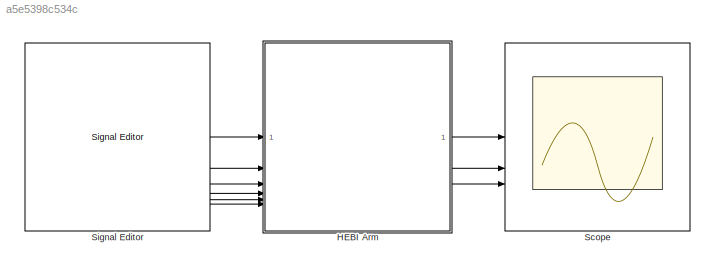
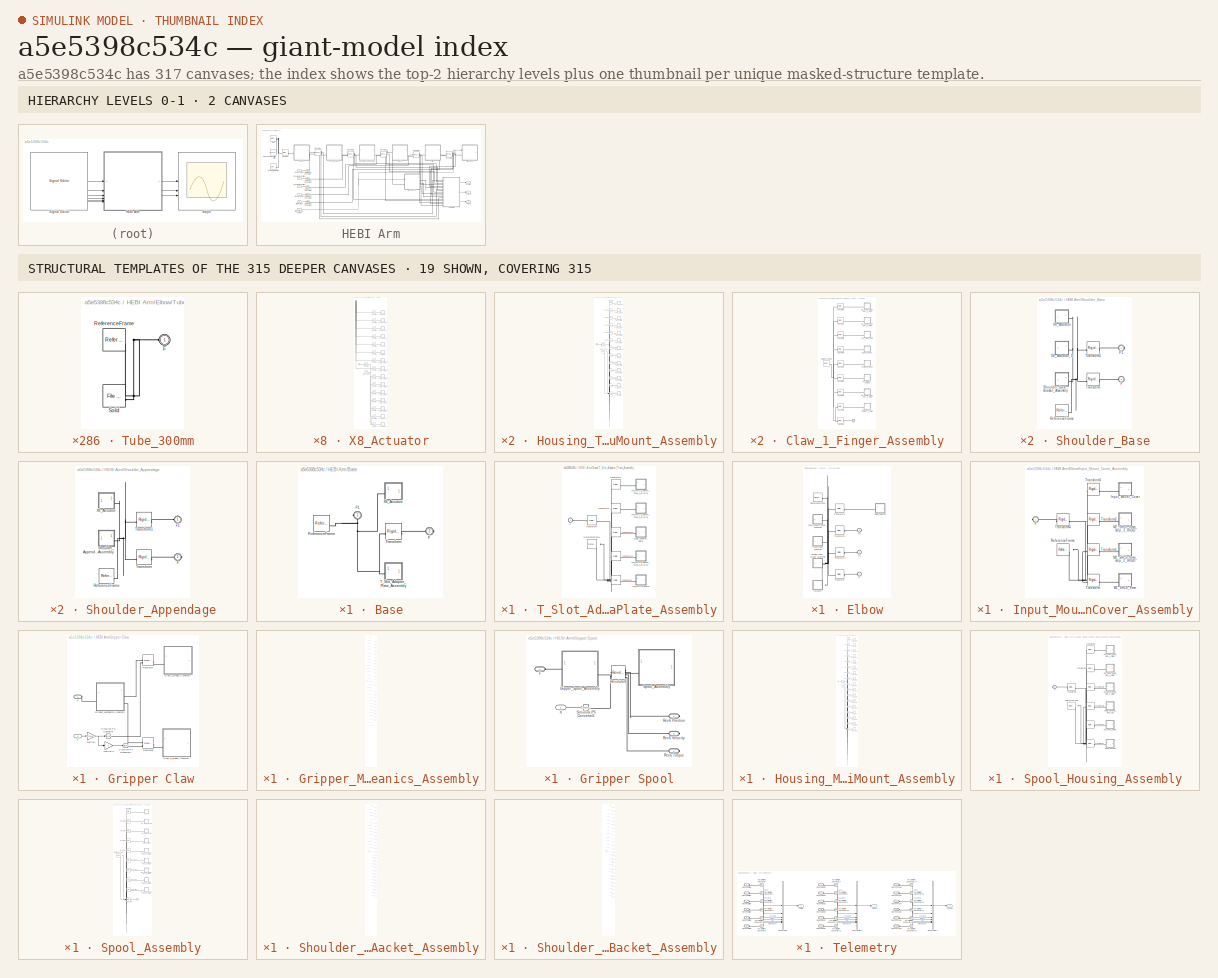
[diagram: thumbnail index - top-2 hierarchy levels (2 canvases) + 19 structural-template representatives of the remaining 315 canvases]
MODEL slx_a5e5398c534c
KIND model
CONFIG AbsTol = auto
CONFIG EnableMultiTasking = off
CONFIG FixedStep = auto
CONFIG MaxStep = 0.1
CONFIG MinStep = auto
CONFIG RelTol = 1e-3
CONFIG SampleTimeConstraint = Unconstrained
CONFIG SolverName = ode23t
CONFIG StartTime = 0.0
CONFIG StopTime = 80
WORKSPACE source: external: MATLAB File  (data not in archive)
BLOCK [SubSystem] HEBI Arm
  ShowPortLabels = none
BLOCK [SubSystem] HEBI Arm/Base
BLOCK [Inport] HEBI Arm/Base Position
  NameLocation = left
BLOCK [PMIOPort] HEBI Arm/Base/F
  Port = 2
  Side = Right
BLOCK [PMIOPort] HEBI Arm/Base/F1
  Side = Left
BLOCK [Reference] HEBI Arm/Base/ReferenceFrame  REF=sm_lib/Frames and
Transforms/Reference
Frame
  SourceBlock = sm_lib/Frames and\nTransforms/Reference\nFrame
  SourceType = Reference\nFrame
BLOCK [SubSystem] HEBI Arm/Base/T_Slot_Adapter_Plate_Assembly
BLOCK [PMIOPort] HEBI Arm/Base/T_Slot_Adapter_Plate_Assembly/F
  Side = Left
BLOCK [SubSystem] HEBI Arm/Base/T_Slot_Adapter_Plate_Assembly/M5_FHCS_10mm
BLOCK [PMIOPort] HEBI Arm/Base/T_Slot_Adapter_Plate_Assembly/M5_FHCS_10mm/F
  Side = Left
BLOCK [Reference] HEBI Arm/Base/T_Slot_Adapter_Plate_Assembly/M5_FHCS_10mm/ReferenceFrame  REF=sm_lib/Frames and
Transforms/Reference
Frame
  SourceBlock = sm_lib/Frames and\nTransforms/Reference\nFrame
  SourceType = Reference\nFrame
BLOCK [Reference] HEBI Arm/Base/T_Slot_Adapter_Plate_Assembly/M5_FHCS_10mm/Solid  REF=sm_lib/Body Elements/File Solid
  SourceBlock = sm_lib/Body Elements/File Solid
  SourceType = File Solid
BLOCK [SubSystem] HEBI Arm/Base/T_Slot_Adapter_Plate_Assembly/M5_FHCS_10mm_step_2_RIGID
BLOCK [PMIOPort] HEBI Arm/Base/T_Slot_Adapter_Plate_Assembly/M5_FHCS_10mm_step_2_RIGID/F
  Side = Left
BLOCK [Reference] HEBI Arm/Base/T_Slot_Adapter_Plate_Assembly/M5_FHCS_10mm_step_2_RIGID/ReferenceFrame  REF=sm_lib/Frames and
Transforms/Reference
Frame
  SourceBlock = sm_lib/Frames and\nTransforms/Reference\nFrame
  SourceType = Reference\nFrame
BLOCK [Reference] HEBI Arm/Base/T_Slot_Adapter_Plate_Assembly/M5_FHCS_10mm_step_2_RIGID/Solid  REF=sm_lib/Body Elements/File Solid
  SourceBlock = sm_lib/Body Elements/File Solid
  SourceType = File Solid
BLOCK [SubSystem] HEBI Arm/Base/T_Slot_Adapter_Plate_Assembly/M5_FHCS_10mm_step_3_RIGID
BLOCK [PMIOPort] HEBI Arm/Base/T_Slot_Adapter_Plate_Assembly/M5_FHCS_10mm_step_3_RIGID/F
  Side = Left
BLOCK [Reference] HEBI Arm/Base/T_Slot_Adapter_Plate_Assembly/M5_FHCS_10mm_step_3_RIGID/ReferenceFrame  REF=sm_lib/Frames and
Transforms/Reference
Frame
  SourceBlock = sm_lib/Frames and\nTransforms/Reference\nFrame
  SourceType = Reference\nFrame
BLOCK [Reference] HEBI Arm/Base/T_Slot_Adapter_Plate_Assembly/M5_FHCS_10mm_step_3_RIGID/Solid  REF=sm_lib/Body Elements/File Solid
  SourceBlock = sm_lib/Body Elements/File Solid
  SourceType = File Solid
BLOCK [SubSystem] HEBI Arm/Base/T_Slot_Adapter_Plate_Assembly/M5_FHCS_10mm_step_4_RIGID
BLOCK [PMIOPort] HEBI Arm/Base/T_Slot_Adapter_Plate_Assembly/M5_FHCS_10mm_step_4_RIGID/F
  Side = Left
BLOCK [Reference] HEBI Arm/Base/T_Slot_Adapter_Plate_Assembly/M5_FHCS_10mm_step_4_RIGID/ReferenceFrame  REF=sm_lib/Frames and
Transforms/Reference
Frame
  SourceBlock = sm_lib/Frames and\nTransforms/Reference\nFrame
  SourceType = Reference\nFrame
BLOCK [Reference] HEBI Arm/Base/T_Slot_Adapter_Plate_Assembly/M5_FHCS_10mm_step_4_RIGID/Solid  REF=sm_lib/Body Elements/File Solid
  SourceBlock = sm_lib/Body Elements/File Solid
  SourceType = File Solid
BLOCK [Reference] HEBI Arm/Base/T_Slot_Adapter_Plate_Assembly/ReferenceFrame  REF=sm_lib/Frames and
Transforms/Reference
Frame
  SourceBlock = sm_lib/Frames and\nTransforms/Reference\nFrame
  SourceType = Reference\nFrame
BLOCK [SubSystem] HEBI Arm/Base/T_Slot_Adapter_Plate_Assembly/T_Slot_Adapter_Plate
BLOCK [PMIOPort] HEBI Arm/Base/T_Slot_Adapter_Plate_Assembly/T_Slot_Adapter_Plate/F
  Side = Left
BLOCK [Reference] HEBI Arm/Base/T_Slot_Adapter_Plate_Assembly/T_Slot_Adapter_Plate/ReferenceFrame  REF=sm_lib/Frames and
Transforms/Reference
Frame
  SourceBlock = sm_lib/Frames and\nTransforms/Reference\nFrame
  SourceType = Reference\nFrame
BLOCK [Reference] HEBI Arm/Base/T_Slot_Adapter_Plate_Assembly/T_Slot_Adapter_Plate/Solid  REF=sm_lib/Body Elements/File Solid
  SourceBlock = sm_lib/Body Elements/File Solid
  SourceType = File Solid
BLOCK [Reference] HEBI Arm/Base/T_Slot_Adapter_Plate_Assembly/Transform  REF=sm_lib/Frames and
Transforms/Rigid
Transform
  SourceBlock = sm_lib/Frames and\nTransforms/Rigid\nTransform
  SourceType = Rigid\nTransform
BLOCK [Reference] HEBI Arm/Base/T_Slot_Adapter_Plate_Assembly/Transform1  REF=sm_lib/Frames and
Transforms/Rigid
Transform
  SourceBlock = sm_lib/Frames and\nTransforms/Rigid\nTransform
  SourceType = Rigid\nTransform
BLOCK [Reference] HEBI Arm/Base/T_Slot_Adapter_Plate_Assembly/Transform2  REF=sm_lib/Frames and
Transforms/Rigid
Transform
  SourceBlock = sm_lib/Frames and\nTransforms/Rigid\nTransform
  SourceType = Rigid\nTransform
BLOCK [Reference] HEBI Arm/Base/T_Slot_Adapter_Plate_Assembly/Transform3  REF=sm_lib/Frames and
Transforms/Rigid
Transform
  SourceBlock = sm_lib/Frames and\nTransforms/Rigid\nTransform
  SourceType = Rigid\nTransform
BLOCK [Reference] HEBI Arm/Base/T_Slot_Adapter_Plate_Assembly/Transform4  REF=sm_lib/Frames and
Transforms/Rigid
Transform
  SourceBlock = sm_lib/Frames and\nTransforms/Rigid\nTransform
  SourceType = Rigid\nTransform
BLOCK [Reference] HEBI Arm/Base/T_Slot_Adapter_Plate_Assembly/Transform5  REF=sm_lib/Frames and
Transforms/Rigid
Transform
  SourceBlock = sm_lib/Frames and\nTransforms/Rigid\nTransform
  SourceType = Rigid\nTransform
BLOCK [Reference] HEBI Arm/Base/Transform  REF=sm_lib/Frames and
Transforms/Rigid
Transform
  SourceBlock = sm_lib/Frames and\nTransforms/Rigid\nTransform
  SourceType = Rigid\nTransform
BLOCK [SubSystem] HEBI Arm/Base/X8_Actuator
BLOCK [PMIOPort] HEBI Arm/Base/X8_Actuator/F
  Side = Left
BLOCK [SubSystem] HEBI Arm/Base/X8_Actuator/M3_BHCS_40mm
BLOCK [PMIOPort] HEBI Arm/Base/X8_Actuator/M3_BHCS_40mm/F
  Side = Left
BLOCK [Reference] HEBI Arm/Base/X8_Actuator/M3_BHCS_40mm/ReferenceFrame  REF=sm_lib/Frames and
Transforms/Reference
Frame
  SourceBlock = sm_lib/Frames and\nTransforms/Reference\nFrame
  SourceType = Reference\nFrame
BLOCK [Reference] HEBI Arm/Base/X8_Actuator/M3_BHCS_40mm/Solid  REF=sm_lib/Body Elements/File Solid
  SourceBlock = sm_lib/Body Elements/File Solid
  SourceType = File Solid
BLOCK [SubSystem] HEBI Arm/Base/X8_Actuator/M3_BHCS_40mm_step_2_RIGID
BLOCK [PMIOPort] HEBI Arm/Base/X8_Actuator/M3_BHCS_40mm_step_2_RIGID/F
  Side = Left
BLOCK [Reference] HEBI Arm/Base/X8_Actuator/M3_BHCS_40mm_step_2_RIGID/ReferenceFrame  REF=sm_lib/Frames and
Transforms/Reference
Frame
  SourceBlock = sm_lib/Frames and\nTransforms/Reference\nFrame
  SourceType = Reference\nFrame
BLOCK [Reference] HEBI Arm/Base/X8_Actuator/M3_BHCS_40mm_step_2_RIGID/Solid  REF=sm_lib/Body Elements/File Solid
  SourceBlock = sm_lib/Body Elements/File Solid
  SourceType = File Solid
BLOCK [SubSystem] HEBI Arm/Base/X8_Actuator/M3_BHCS_40mm_step_3_RIGID
BLOCK [PMIOPort] HEBI Arm/Base/X8_Actuator/M3_BHCS_40mm_step_3_RIGID/F
  Side = Left
BLOCK [Reference] HEBI Arm/Base/X8_Actuator/M3_BHCS_40mm_step_3_RIGID/ReferenceFrame  REF=sm_lib/Frames and
Transforms/Reference
Frame
  SourceBlock = sm_lib/Frames and\nTransforms/Reference\nFrame
  SourceType = Reference\nFrame
BLOCK [Reference] HEBI Arm/Base/X8_Actuator/M3_BHCS_40mm_step_3_RIGID/Solid  REF=sm_lib/Body Elements/File Solid
  SourceBlock = sm_lib/Body Elements/File Solid
  SourceType = File Solid
BLOCK [SubSystem] HEBI Arm/Base/X8_Actuator/M3_BHCS_40mm_step_4_RIGID
BLOCK [PMIOPort] HEBI Arm/Base/X8_Actuator/M3_BHCS_40mm_step_4_RIGID/F
  Side = Left
BLOCK [Reference] HEBI Arm/Base/X8_Actuator/M3_BHCS_40mm_step_4_RIGID/ReferenceFrame  REF=sm_lib/Frames and
Transforms/Reference
Frame
  SourceBlock = sm_lib/Frames and\nTransforms/Reference\nFrame
  SourceType = Reference\nFrame
BLOCK [Reference] HEBI Arm/Base/X8_Actuator/M3_BHCS_40mm_step_4_RIGID/Solid  REF=sm_lib/Body Elements/File Solid
  SourceBlock = sm_lib/Body Elements/File Solid
  SourceType = File Solid
BLOCK [SubSystem] HEBI Arm/Base/X8_Actuator/M3_BHCS_40mm_step_5_RIGID
BLOCK [PMIOPort] HEBI Arm/Base/X8_Actuator/M3_BHCS_40mm_step_5_RIGID/F
  Side = Left
BLOCK [Reference] HEBI Arm/Base/X8_Actuator/M3_BHCS_40mm_step_5_RIGID/ReferenceFrame  REF=sm_lib/Frames and
Transforms/Reference
Frame
  SourceBlock = sm_lib/Frames and\nTransforms/Reference\nFrame
  SourceType = Reference\nFrame
BLOCK [Reference] HEBI Arm/Base/X8_Actuator/M3_BHCS_40mm_step_5_RIGID/Solid  REF=sm_lib/Body Elements/File Solid
  SourceBlock = sm_lib/Body Elements/File Solid
  SourceType = File Solid
BLOCK [SubSystem] HEBI Arm/Base/X8_Actuator/M3_BHCS_40mm_step_6_RIGID
BLOCK [PMIOPort] HEBI Arm/Base/X8_Actuator/M3_BHCS_40mm_step_6_RIGID/F
  Side = Left
BLOCK [Reference] HEBI Arm/Base/X8_Actuator/M3_BHCS_40mm_step_6_RIGID/ReferenceFrame  REF=sm_lib/Frames and
Transforms/Reference
Frame
  SourceBlock = sm_lib/Frames and\nTransforms/Reference\nFrame
  SourceType = Reference\nFrame
BLOCK [Reference] HEBI Arm/Base/X8_Actuator/M3_BHCS_40mm_step_6_RIGID/Solid  REF=sm_lib/Body Elements/File Solid
  SourceBlock = sm_lib/Body Elements/File Solid
  SourceType = File Solid
BLOCK [SubSystem] HEBI Arm/Base/X8_Actuator/M3_BHCS_40mm_step_7_RIGID
BLOCK [PMIOPort] HEBI Arm/Base/X8_Actuator/M3_BHCS_40mm_step_7_RIGID/F
  Side = Left
BLOCK [Reference] HEBI Arm/Base/X8_Actuator/M3_BHCS_40mm_step_7_RIGID/ReferenceFrame  REF=sm_lib/Frames and
Transforms/Reference
Frame
  SourceBlock = sm_lib/Frames and\nTransforms/Reference\nFrame
  SourceType = Reference\nFrame
BLOCK [Reference] HEBI Arm/Base/X8_Actuator/M3_BHCS_40mm_step_7_RIGID/Solid  REF=sm_lib/Body Elements/File Solid
  SourceBlock = sm_lib/Body Elements/File Solid
  SourceType = File Solid
BLOCK [SubSystem] HEBI Arm/Base/X8_Actuator/M3_BHCS_40mm_step_8_RIGID
BLOCK [PMIOPort] HEBI Arm/Base/X8_Actuator/M3_BHCS_40mm_step_8_RIGID/F
  Side = Left
BLOCK [Reference] HEBI Arm/Base/X8_Actuator/M3_BHCS_40mm_step_8_RIGID/ReferenceFrame  REF=sm_lib/Frames and
Transforms/Reference
Frame
  SourceBlock = sm_lib/Frames and\nTransforms/Reference\nFrame
  SourceType = Reference\nFrame
BLOCK [Reference] HEBI Arm/Base/X8_Actuator/M3_BHCS_40mm_step_8_RIGID/Solid  REF=sm_lib/Body Elements/File Solid
  SourceBlock = sm_lib/Body Elements/File Solid
  SourceType = File Solid
BLOCK [SubSystem] HEBI Arm/Base/X8_Actuator/Power_Port
BLOCK [PMIOPort] HEBI Arm/Base/X8_Actuator/Power_Port/F
  Side = Left
BLOCK [Reference] HEBI Arm/Base/X8_Actuator/Power_Port/ReferenceFrame  REF=sm_lib/Frames and
Transforms/Reference
Frame
  SourceBlock = sm_lib/Frames and\nTransforms/Reference\nFrame
  SourceType = Reference\nFrame
BLOCK [Reference] HEBI Arm/Base/X8_Actuator/Power_Port/Solid  REF=sm_lib/Body Elements/File Solid
  SourceBlock = sm_lib/Body Elements/File Solid
  SourceType = File Solid
BLOCK [SubSystem] HEBI Arm/Base/X8_Actuator/RJ45_Port
BLOCK [PMIOPort] HEBI Arm/Base/X8_Actuator/RJ45_Port/F
  Side = Left
BLOCK [Reference] HEBI Arm/Base/X8_Actuator/RJ45_Port/ReferenceFrame  REF=sm_lib/Frames and
Transforms/Reference
Frame
  SourceBlock = sm_lib/Frames and\nTransforms/Reference\nFrame
  SourceType = Reference\nFrame
BLOCK [Reference] HEBI Arm/Base/X8_Actuator/RJ45_Port/Solid  REF=sm_lib/Body Elements/File Solid
  SourceBlock = sm_lib/Body Elements/File Solid
  SourceType = File Solid
BLOCK [Reference] HEBI Arm/Base/X8_Actuator/ReferenceFrame  REF=sm_lib/Frames and
Transforms/Reference
Frame
  SourceBlock = sm_lib/Frames and\nTransforms/Reference\nFrame
  SourceType = Reference\nFrame
BLOCK [Reference] HEBI Arm/Base/X8_Actuator/Transform  REF=sm_lib/Frames and
Transforms/Rigid
Transform
  SourceBlock = sm_lib/Frames and\nTransforms/Rigid\nTransform
  SourceType = Rigid\nTransform
BLOCK [Reference] HEBI Arm/Base/X8_Actuator/Transform1  REF=sm_lib/Frames and
Transforms/Rigid
Transform
  SourceBlock = sm_lib/Frames and\nTransforms/Rigid\nTransform
  SourceType = Rigid\nTransform
BLOCK [Reference] HEBI Arm/Base/X8_Actuator/Transform10  REF=sm_lib/Frames and
Transforms/Rigid
Transform
  SourceBlock = sm_lib/Frames and\nTransforms/Rigid\nTransform
  SourceType = Rigid\nTransform
BLOCK [Reference] HEBI Arm/Base/X8_Actuator/Transform11  REF=sm_lib/Frames and
Transforms/Rigid
Transform
  SourceBlock = sm_lib/Frames and\nTransforms/Rigid\nTransform
  SourceType = Rigid\nTransform
BLOCK [Reference] HEBI Arm/Base/X8_Actuator/Transform12  REF=sm_lib/Frames and
Transforms/Rigid
Transform
  SourceBlock = sm_lib/Frames and\nTransforms/Rigid\nTransform
  SourceType = Rigid\nTransform
BLOCK [Reference] HEBI Arm/Base/X8_Actuator/Transform13  REF=sm_lib/Frames and
Transforms/Rigid
Transform
  SourceBlock = sm_lib/Frames and\nTransforms/Rigid\nTransform
  SourceType = Rigid\nTransform
BLOCK [Reference] HEBI Arm/Base/X8_Actuator/Transform14  REF=sm_lib/Frames and
Transforms/Rigid
Transform
  SourceBlock = sm_lib/Frames and\nTransforms/Rigid\nTransform
  SourceType = Rigid\nTransform
BLOCK [Reference] HEBI Arm/Base/X8_Actuator/Transform15  REF=sm_lib/Frames and
Transforms/Rigid
Transform
  SourceBlock = sm_lib/Frames and\nTransforms/Rigid\nTransform
  SourceType = Rigid\nTransform
BLOCK [Reference] HEBI Arm/Base/X8_Actuator/Transform2  REF=sm_lib/Frames and
Transforms/Rigid
Transform
  SourceBlock = sm_lib/Frames and\nTransforms/Rigid\nTransform
  SourceType = Rigid\nTransform
BLOCK [Reference] HEBI Arm/Base/X8_Actuator/Transform3  REF=sm_lib/Frames and
Transforms/Rigid
Transform
  SourceBlock = sm_lib/Frames and\nTransforms/Rigid\nTransform
  SourceType = Rigid\nTransform
BLOCK [Reference] HEBI Arm/Base/X8_Actuator/Transform4  REF=sm_lib/Frames and
Transforms/Rigid
Transform
  SourceBlock = sm_lib/Frames and\nTransforms/Rigid\nTransform
  SourceType = Rigid\nTransform
BLOCK [Reference] HEBI Arm/Base/X8_Actuator/Transform5  REF=sm_lib/Frames and
Transforms/Rigid
Transform
  SourceBlock = sm_lib/Frames and\nTransforms/Rigid\nTransform
  SourceType = Rigid\nTransform
BLOCK [Reference] HEBI Arm/Base/X8_Actuator/Transform6  REF=sm_lib/Frames and
Transforms/Rigid
Transform
  SourceBlock = sm_lib/Frames and\nTransforms/Rigid\nTransform
  SourceType = Rigid\nTransform
BLOCK [Reference] HEBI Arm/Base/X8_Actuator/Transform7  REF=sm_lib/Frames and
Transforms/Rigid
Transform
  SourceBlock = sm_lib/Frames and\nTransforms/Rigid\nTransform
  SourceType = Rigid\nTransform
BLOCK [Reference] HEBI Arm/Base/X8_Actuator/Transform8  REF=sm_lib/Frames and
Transforms/Rigid
Transform
  SourceBlock = sm_lib/Frames and\nTransforms/Rigid\nTransform
  SourceType = Rigid\nTransform
BLOCK [Reference] HEBI Arm/Base/X8_Actuator/Transform9  REF=sm_lib/Frames and
Transforms/Rigid
Transform
  SourceBlock = sm_lib/Frames and\nTransforms/Rigid\nTransform
  SourceType = Rigid\nTransform
BLOCK [SubSystem] HEBI Arm/Base/X8_Actuator/X8_Actuator_Body
BLOCK [PMIOPort] HEBI Arm/Base/X8_Actuator/X8_Actuator_Body/F
  Side = Left
BLOCK [Reference] HEBI Arm/Base/X8_Actuator/X8_Actuator_Body/ReferenceFrame  REF=sm_lib/Frames and
Transforms/Reference
Frame
  SourceBlock = sm_lib/Frames and\nTransforms/Reference\nFrame
  SourceType = Reference\nFrame
BLOCK [Reference] HEBI Arm/Base/X8_Actuator/X8_Actuator_Body/Solid  REF=sm_lib/Body Elements/File Solid
  SourceBlock = sm_lib/Body Elements/File Solid
  SourceType = File Solid
BLOCK [SubSystem] HEBI Arm/Base/X8_Actuator/X8_Actuator_Bottom
BLOCK [PMIOPort] HEBI Arm/Base/X8_Actuator/X8_Actuator_Bottom/F
  Side = Left
BLOCK [Reference] HEBI Arm/Base/X8_Actuator/X8_Actuator_Bottom/ReferenceFrame  REF=sm_lib/Frames and
Transforms/Reference
Frame
  SourceBlock = sm_lib/Frames and\nTransforms/Reference\nFrame
  SourceType = Reference\nFrame
BLOCK [Reference] HEBI Arm/Base/X8_Actuator/X8_Actuator_Bottom/Solid  REF=sm_lib/Body Elements/File Solid
  SourceBlock = sm_lib/Body Elements/File Solid
  SourceType = File Solid
BLOCK [SubSystem] HEBI Arm/Base/X8_Actuator/X8_Actuator_Joint
BLOCK [PMIOPort] HEBI Arm/Base/X8_Actuator/X8_Actuator_Joint/F
  Side = Left
BLOCK [Reference] HEBI Arm/Base/X8_Actuator/X8_Actuator_Joint/ReferenceFrame  REF=sm_lib/Frames and
Transforms/Reference
Frame
  SourceBlock = sm_lib/Frames and\nTransforms/Reference\nFrame
  SourceType = Reference\nFrame
BLOCK [Reference] HEBI Arm/Base/X8_Actuator/X8_Actuator_Joint/Solid  REF=sm_lib/Body Elements/File Solid
  SourceBlock = sm_lib/Body Elements/File Solid
  SourceType = File Solid
BLOCK [SubSystem] HEBI Arm/Base/X8_Actuator/X8_Actuator_Top
BLOCK [PMIOPort] HEBI Arm/Base/X8_Actuator/X8_Actuator_Top/F
  Side = Left
BLOCK [Reference] HEBI Arm/Base/X8_Actuator/X8_Actuator_Top/ReferenceFrame  REF=sm_lib/Frames and
Transforms/Reference
Frame
  SourceBlock = sm_lib/Frames and\nTransforms/Reference\nFrame
  SourceType = Reference\nFrame
BLOCK [Reference] HEBI Arm/Base/X8_Actuator/X8_Actuator_Top/Solid  REF=sm_lib/Body Elements/File Solid
  SourceBlock = sm_lib/Body Elements/File Solid
  SourceType = File Solid
BLOCK [SubSystem] HEBI Arm/Base/X8_Actuator/X8_Port_Cover
BLOCK [PMIOPort] HEBI Arm/Base/X8_Actuator/X8_Port_Cover/F
  Side = Left
BLOCK [Reference] HEBI Arm/Base/X8_Actuator/X8_Port_Cover/ReferenceFrame  REF=sm_lib/Frames and
Transforms/Reference
Frame
  SourceBlock = sm_lib/Frames and\nTransforms/Reference\nFrame
  SourceType = Reference\nFrame
BLOCK [Reference] HEBI Arm/Base/X8_Actuator/X8_Port_Cover/Solid  REF=sm_lib/Body Elements/File Solid
  SourceBlock = sm_lib/Body Elements/File Solid
  SourceType = File Solid
BLOCK [SubSystem] HEBI Arm/Elbow
BLOCK [Inport] HEBI Arm/Elbow Position
  NameLocation = left
  Port = 4
BLOCK [SubSystem] HEBI Arm/Elbow/Actuator
BLOCK [PMIOPort] HEBI Arm/Elbow/Actuator/F
  Side = Right
BLOCK [SubSystem] HEBI Arm/Elbow/Actuator/M3_BHCS_25mm
BLOCK [PMIOPort] HEBI Arm/Elbow/Actuator/M3_BHCS_25mm/F
  Side = Left
BLOCK [Reference] HEBI Arm/Elbow/Actuator/M3_BHCS_25mm/ReferenceFrame  REF=sm_lib/Frames and
Transforms/Reference
Frame
  SourceBlock = sm_lib/Frames and\nTransforms/Reference\nFrame
  SourceType = Reference\nFrame
BLOCK [Reference] HEBI Arm/Elbow/Actuator/M3_BHCS_25mm/Solid  REF=sm_lib/Body Elements/File Solid
  SourceBlock = sm_lib/Body Elements/File Solid
  SourceType = File Solid
BLOCK [SubSystem] HEBI Arm/Elbow/Actuator/M3_BHCS_25mm_step_2_RIGID
BLOCK [PMIOPort] HEBI Arm/Elbow/Actuator/M3_BHCS_25mm_step_2_RIGID/F
  Side = Left
BLOCK [Reference] HEBI Arm/Elbow/Actuator/M3_BHCS_25mm_step_2_RIGID/ReferenceFrame  REF=sm_lib/Frames and
Transforms/Reference
Frame
  SourceBlock = sm_lib/Frames and\nTransforms/Reference\nFrame
  SourceType = Reference\nFrame
BLOCK [Reference] HEBI Arm/Elbow/Actuator/M3_BHCS_25mm_step_2_RIGID/Solid  REF=sm_lib/Body Elements/File Solid
  SourceBlock = sm_lib/Body Elements/File Solid
  SourceType = File Solid
BLOCK [SubSystem] HEBI Arm/Elbow/Actuator/M3_BHCS_25mm_step_3_RIGID
BLOCK [PMIOPort] HEBI Arm/Elbow/Actuator/M3_BHCS_25mm_step_3_RIGID/F
  Side = Left
BLOCK [Reference] HEBI Arm/Elbow/Actuator/M3_BHCS_25mm_step_3_RIGID/ReferenceFrame  REF=sm_lib/Frames and
Transforms/Reference
Frame
  SourceBlock = sm_lib/Frames and\nTransforms/Reference\nFrame
  SourceType = Reference\nFrame
BLOCK [Reference] HEBI Arm/Elbow/Actuator/M3_BHCS_25mm_step_3_RIGID/Solid  REF=sm_lib/Body Elements/File Solid
  SourceBlock = sm_lib/Body Elements/File Solid
  SourceType = File Solid
BLOCK [SubSystem] HEBI Arm/Elbow/Actuator/M3_BHCS_25mm_step_4_RIGID
BLOCK [PMIOPort] HEBI Arm/Elbow/Actuator/M3_BHCS_25mm_step_4_RIGID/F
  Side = Left
BLOCK [Reference] HEBI Arm/Elbow/Actuator/M3_BHCS_25mm_step_4_RIGID/ReferenceFrame  REF=sm_lib/Frames and
Transforms/Reference
Frame
  SourceBlock = sm_lib/Frames and\nTransforms/Reference\nFrame
  SourceType = Reference\nFrame
BLOCK [Reference] HEBI Arm/Elbow/Actuator/M3_BHCS_25mm_step_4_RIGID/Solid  REF=sm_lib/Body Elements/File Solid
  SourceBlock = sm_lib/Body Elements/File Solid
  SourceType = File Solid
BLOCK [SubSystem] HEBI Arm/Elbow/Actuator/M3_BHCS_25mm_step_5_RIGID
BLOCK [PMIOPort] HEBI Arm/Elbow/Actuator/M3_BHCS_25mm_step_5_RIGID/F
  Side = Left
BLOCK [Reference] HEBI Arm/Elbow/Actuator/M3_BHCS_25mm_step_5_RIGID/ReferenceFrame  REF=sm_lib/Frames and
Transforms/Reference
Frame
  SourceBlock = sm_lib/Frames and\nTransforms/Reference\nFrame
  SourceType = Reference\nFrame
BLOCK [Reference] HEBI Arm/Elbow/Actuator/M3_BHCS_25mm_step_5_RIGID/Solid  REF=sm_lib/Body Elements/File Solid
  SourceBlock = sm_lib/Body Elements/File Solid
  SourceType = File Solid
BLOCK [SubSystem] HEBI Arm/Elbow/Actuator/M3_BHCS_25mm_step_6_RIGID
BLOCK [PMIOPort] HEBI Arm/Elbow/Actuator/M3_BHCS_25mm_step_6_RIGID/F
  Side = Left
BLOCK [Reference] HEBI Arm/Elbow/Actuator/M3_BHCS_25mm_step_6_RIGID/ReferenceFrame  REF=sm_lib/Frames and
Transforms/Reference
Frame
  SourceBlock = sm_lib/Frames and\nTransforms/Reference\nFrame
  SourceType = Reference\nFrame
BLOCK [Reference] HEBI Arm/Elbow/Actuator/M3_BHCS_25mm_step_6_RIGID/Solid  REF=sm_lib/Body Elements/File Solid
  SourceBlock = sm_lib/Body Elements/File Solid
  SourceType = File Solid
BLOCK [SubSystem] HEBI Arm/Elbow/Actuator/M3_BHCS_25mm_step_7_RIGID
BLOCK [PMIOPort] HEBI Arm/Elbow/Actuator/M3_BHCS_25mm_step_7_RIGID/F
  Side = Left
BLOCK [Reference] HEBI Arm/Elbow/Actuator/M3_BHCS_25mm_step_7_RIGID/ReferenceFrame  REF=sm_lib/Frames and
Transforms/Reference
Frame
  SourceBlock = sm_lib/Frames and\nTransforms/Reference\nFrame
  SourceType = Reference\nFrame
BLOCK [Reference] HEBI Arm/Elbow/Actuator/M3_BHCS_25mm_step_7_RIGID/Solid  REF=sm_lib/Body Elements/File Solid
  SourceBlock = sm_lib/Body Elements/File Solid
  SourceType = File Solid
BLOCK [SubSystem] HEBI Arm/Elbow/Actuator/M3_BHCS_25mm_step_8_RIGID
BLOCK [PMIOPort] HEBI Arm/Elbow/Actuator/M3_BHCS_25mm_step_8_RIGID/F
  Side = Left
BLOCK [Reference] HEBI Arm/Elbow/Actuator/M3_BHCS_25mm_step_8_RIGID/ReferenceFrame  REF=sm_lib/Frames and
Transforms/Reference
Frame
  SourceBlock = sm_lib/Frames and\nTransforms/Reference\nFrame
  SourceType = Reference\nFrame
BLOCK [Reference] HEBI Arm/Elbow/Actuator/M3_BHCS_25mm_step_8_RIGID/Solid  REF=sm_lib/Body Elements/File Solid
  SourceBlock = sm_lib/Body Elements/File Solid
  SourceType = File Solid
BLOCK [SubSystem] HEBI Arm/Elbow/Actuator/Power_Port
BLOCK [PMIOPort] HEBI Arm/Elbow/Actuator/Power_Port/F
  Side = Left
BLOCK [Reference] HEBI Arm/Elbow/Actuator/Power_Port/ReferenceFrame  REF=sm_lib/Frames and
Transforms/Reference
Frame
  SourceBlock = sm_lib/Frames and\nTransforms/Reference\nFrame
  SourceType = Reference\nFrame
BLOCK [Reference] HEBI Arm/Elbow/Actuator/Power_Port/Solid  REF=sm_lib/Body Elements/File Solid
  SourceBlock = sm_lib/Body Elements/File Solid
  SourceType = File Solid
BLOCK [SubSystem] HEBI Arm/Elbow/Actuator/RJ45_Port
BLOCK [PMIOPort] HEBI Arm/Elbow/Actuator/RJ45_Port/F
  Side = Left
BLOCK [Reference] HEBI Arm/Elbow/Actuator/RJ45_Port/ReferenceFrame  REF=sm_lib/Frames and
Transforms/Reference
Frame
  SourceBlock = sm_lib/Frames and\nTransforms/Reference\nFrame
  SourceType = Reference\nFrame
BLOCK [Reference] HEBI Arm/Elbow/Actuator/RJ45_Port/Solid  REF=sm_lib/Body Elements/File Solid
  SourceBlock = sm_lib/Body Elements/File Solid
  SourceType = File Solid
BLOCK [Reference] HEBI Arm/Elbow/Actuator/ReferenceFrame  REF=sm_lib/Frames and
Transforms/Reference
Frame
  SourceBlock = sm_lib/Frames and\nTransforms/Reference\nFrame
  SourceType = Reference\nFrame
BLOCK [Reference] HEBI Arm/Elbow/Actuator/Transform  REF=sm_lib/Frames and
Transforms/Rigid
Transform
  SourceBlock = sm_lib/Frames and\nTransforms/Rigid\nTransform
  SourceType = Rigid\nTransform
BLOCK [Reference] HEBI Arm/Elbow/Actuator/Transform1  REF=sm_lib/Frames and
Transforms/Rigid
Transform
  SourceBlock = sm_lib/Frames and\nTransforms/Rigid\nTransform
  SourceType = Rigid\nTransform
BLOCK [Reference] HEBI Arm/Elbow/Actuator/Transform10  REF=sm_lib/Frames and
Transforms/Rigid
Transform
  SourceBlock = sm_lib/Frames and\nTransforms/Rigid\nTransform
  SourceType = Rigid\nTransform
BLOCK [Reference] HEBI Arm/Elbow/Actuator/Transform11  REF=sm_lib/Frames and
Transforms/Rigid
Transform
  SourceBlock = sm_lib/Frames and\nTransforms/Rigid\nTransform
  SourceType = Rigid\nTransform
BLOCK [Reference] HEBI Arm/Elbow/Actuator/Transform12  REF=sm_lib/Frames and
Transforms/Rigid
Transform
  SourceBlock = sm_lib/Frames and\nTransforms/Rigid\nTransform
  SourceType = Rigid\nTransform
BLOCK [Reference] HEBI Arm/Elbow/Actuator/Transform13  REF=sm_lib/Frames and
Transforms/Rigid
Transform
  SourceBlock = sm_lib/Frames and\nTransforms/Rigid\nTransform
  SourceType = Rigid\nTransform
BLOCK [Reference] HEBI Arm/Elbow/Actuator/Transform14  REF=sm_lib/Frames and
Transforms/Rigid
Transform
  SourceBlock = sm_lib/Frames and\nTransforms/Rigid\nTransform
  SourceType = Rigid\nTransform
BLOCK [Reference] HEBI Arm/Elbow/Actuator/Transform15  REF=sm_lib/Frames and
Transforms/Rigid
Transform
  SourceBlock = sm_lib/Frames and\nTransforms/Rigid\nTransform
  SourceType = Rigid\nTransform
BLOCK [Reference] HEBI Arm/Elbow/Actuator/Transform2  REF=sm_lib/Frames and
Transforms/Rigid
Transform
  SourceBlock = sm_lib/Frames and\nTransforms/Rigid\nTransform
  SourceType = Rigid\nTransform
BLOCK [Reference] HEBI Arm/Elbow/Actuator/Transform3  REF=sm_lib/Frames and
Transforms/Rigid
Transform
  SourceBlock = sm_lib/Frames and\nTransforms/Rigid\nTransform
  SourceType = Rigid\nTransform
BLOCK [Reference] HEBI Arm/Elbow/Actuator/Transform4  REF=sm_lib/Frames and
Transforms/Rigid
Transform
  SourceBlock = sm_lib/Frames and\nTransforms/Rigid\nTransform
  SourceType = Rigid\nTransform
BLOCK [Reference] HEBI Arm/Elbow/Actuator/Transform5  REF=sm_lib/Frames and
Transforms/Rigid
Transform
  SourceBlock = sm_lib/Frames and\nTransforms/Rigid\nTransform
  SourceType = Rigid\nTransform
BLOCK [Reference] HEBI Arm/Elbow/Actuator/Transform6  REF=sm_lib/Frames and
Transforms/Rigid
Transform
  SourceBlock = sm_lib/Frames and\nTransforms/Rigid\nTransform
  SourceType = Rigid\nTransform
BLOCK [Reference] HEBI Arm/Elbow/Actuator/Transform7  REF=sm_lib/Frames and
Transforms/Rigid
Transform
  SourceBlock = sm_lib/Frames and\nTransforms/Rigid\nTransform
  SourceType = Rigid\nTransform
BLOCK [Reference] HEBI Arm/Elbow/Actuator/Transform8  REF=sm_lib/Frames and
Transforms/Rigid
Transform
  SourceBlock = sm_lib/Frames and\nTransforms/Rigid\nTransform
  SourceType = Rigid\nTransform
BLOCK [Reference] HEBI Arm/Elbow/Actuator/Transform9  REF=sm_lib/Frames and
Transforms/Rigid
Transform
  SourceBlock = sm_lib/Frames and\nTransforms/Rigid\nTransform
  SourceType = Rigid\nTransform
BLOCK [SubSystem] HEBI Arm/Elbow/Actuator/X5_Actuator_Body
BLOCK [PMIOPort] HEBI Arm/Elbow/Actuator/X5_Actuator_Body/F
  Side = Left
BLOCK [Reference] HEBI Arm/Elbow/Actuator/X5_Actuator_Body/ReferenceFrame  REF=sm_lib/Frames and
Transforms/Reference
Frame
  SourceBlock = sm_lib/Frames and\nTransforms/Reference\nFrame
  SourceType = Reference\nFrame
BLOCK [Reference] HEBI Arm/Elbow/Actuator/X5_Actuator_Body/Solid  REF=sm_lib/Body Elements/File Solid
  SourceBlock = sm_lib/Body Elements/File Solid
  SourceType = File Solid
BLOCK [SubSystem] HEBI Arm/Elbow/Actuator/X5_Actuator_Bottom
BLOCK [PMIOPort] HEBI Arm/Elbow/Actuator/X5_Actuator_Bottom/F
  Side = Left
BLOCK [Reference] HEBI Arm/Elbow/Actuator/X5_Actuator_Bottom/ReferenceFrame  REF=sm_lib/Frames and
Transforms/Reference
Frame
  SourceBlock = sm_lib/Frames and\nTransforms/Reference\nFrame
  SourceType = Reference\nFrame
BLOCK [Reference] HEBI Arm/Elbow/Actuator/X5_Actuator_Bottom/Solid  REF=sm_lib/Body Elements/File Solid
  SourceBlock = sm_lib/Body Elements/File Solid
  SourceType = File Solid
BLOCK [SubSystem] HEBI Arm/Elbow/Actuator/X5_Actuator_Joint
BLOCK [PMIOPort] HEBI Arm/Elbow/Actuator/X5_Actuator_Joint/F
  Side = Left
BLOCK [Reference] HEBI Arm/Elbow/Actuator/X5_Actuator_Joint/ReferenceFrame  REF=sm_lib/Frames and
Transforms/Reference
Frame
  SourceBlock = sm_lib/Frames and\nTransforms/Reference\nFrame
  SourceType = Reference\nFrame
BLOCK [Reference] HEBI Arm/Elbow/Actuator/X5_Actuator_Joint/Solid  REF=sm_lib/Body Elements/File Solid
  SourceBlock = sm_lib/Body Elements/File Solid
  SourceType = File Solid
BLOCK [SubSystem] HEBI Arm/Elbow/Actuator/X5_Actuator_Top
BLOCK [PMIOPort] HEBI Arm/Elbow/Actuator/X5_Actuator_Top/F
  Side = Left
BLOCK [Reference] HEBI Arm/Elbow/Actuator/X5_Actuator_Top/ReferenceFrame  REF=sm_lib/Frames and
Transforms/Reference
Frame
  SourceBlock = sm_lib/Frames and\nTransforms/Reference\nFrame
  SourceType = Reference\nFrame
BLOCK [Reference] HEBI Arm/Elbow/Actuator/X5_Actuator_Top/Solid  REF=sm_lib/Body Elements/File Solid
  SourceBlock = sm_lib/Body Elements/File Solid
  SourceType = File Solid
BLOCK [SubSystem] HEBI Arm/Elbow/Actuator/X5_Port_Cover
BLOCK [PMIOPort] HEBI Arm/Elbow/Actuator/X5_Port_Cover/F
  Side = Left
BLOCK [Reference] HEBI Arm/Elbow/Actuator/X5_Port_Cover/ReferenceFrame  REF=sm_lib/Frames and
Transforms/Reference
Frame
  SourceBlock = sm_lib/Frames and\nTransforms/Reference\nFrame
  SourceType = Reference\nFrame
BLOCK [Reference] HEBI Arm/Elbow/Actuator/X5_Port_Cover/Solid  REF=sm_lib/Body Elements/File Solid
  SourceBlock = sm_lib/Body Elements/File Solid
  SourceType = File Solid
BLOCK [PMIOPort] HEBI Arm/Elbow/F
  Port = 2
  Side = Left
BLOCK [PMIOPort] HEBI Arm/Elbow/F1
  Side = Left
BLOCK [PMIOPort] HEBI Arm/Elbow/F2
  Port = 3
  Side = Right
BLOCK [SubSystem] HEBI Arm/Elbow/Housing_Tube_Mount_Assembly
BLOCK [PMIOPort] HEBI Arm/Elbow/Housing_Tube_Mount_Assembly/F
  Side = Right
BLOCK [SubSystem] HEBI Arm/Elbow/Housing_Tube_Mount_Assembly/Housing_Tube_Mount
BLOCK [PMIOPort] HEBI Arm/Elbow/Housing_Tube_Mount_Assembly/Housing_Tube_Mount/F
  Side = Left
BLOCK [Reference] HEBI Arm/Elbow/Housing_Tube_Mount_Assembly/Housing_Tube_Mount/ReferenceFrame  REF=sm_lib/Frames and
Transforms/Reference
Frame
  SourceBlock = sm_lib/Frames and\nTransforms/Reference\nFrame
  SourceType = Reference\nFrame
BLOCK [Reference] HEBI Arm/Elbow/Housing_Tube_Mount_Assembly/Housing_Tube_Mount/Solid  REF=sm_lib/Body Elements/File Solid
  SourceBlock = sm_lib/Body Elements/File Solid
  SourceType = File Solid
BLOCK [SubSystem] HEBI Arm/Elbow/Housing_Tube_Mount_Assembly/M2_Dowel_Pin_6mm
BLOCK [PMIOPort] HEBI Arm/Elbow/Housing_Tube_Mount_Assembly/M2_Dowel_Pin_6mm/F
  Side = Left
BLOCK [Reference] HEBI Arm/Elbow/Housing_Tube_Mount_Assembly/M2_Dowel_Pin_6mm/ReferenceFrame  REF=sm_lib/Frames and
Transforms/Reference
Frame
  SourceBlock = sm_lib/Frames and\nTransforms/Reference\nFrame
  SourceType = Reference\nFrame
BLOCK [Reference] HEBI Arm/Elbow/Housing_Tube_Mount_Assembly/M2_Dowel_Pin_6mm/Solid  REF=sm_lib/Body Elements/File Solid
  SourceBlock = sm_lib/Body Elements/File Solid
  SourceType = File Solid
BLOCK [SubSystem] HEBI Arm/Elbow/Housing_Tube_Mount_Assembly/M5_SHCS_16mm
BLOCK [PMIOPort] HEBI Arm/Elbow/Housing_Tube_Mount_Assembly/M5_SHCS_16mm/F
  Side = Left
BLOCK [Reference] HEBI Arm/Elbow/Housing_Tube_Mount_Assembly/M5_SHCS_16mm/ReferenceFrame  REF=sm_lib/Frames and
Transforms/Reference
Frame
  SourceBlock = sm_lib/Frames and\nTransforms/Reference\nFrame
  SourceType = Reference\nFrame
BLOCK [Reference] HEBI Arm/Elbow/Housing_Tube_Mount_Assembly/M5_SHCS_16mm/Solid  REF=sm_lib/Body Elements/File Solid
  SourceBlock = sm_lib/Body Elements/File Solid
  SourceType = File Solid
BLOCK [SubSystem] HEBI Arm/Elbow/Housing_Tube_Mount_Assembly/M5_SHCS_16mm_step_2_RIGID
BLOCK [PMIOPort] HEBI Arm/Elbow/Housing_Tube_Mount_Assembly/M5_SHCS_16mm_step_2_RIGID/F
  Side = Left
BLOCK [Reference] HEBI Arm/Elbow/Housing_Tube_Mount_Assembly/M5_SHCS_16mm_step_2_RIGID/ReferenceFrame  REF=sm_lib/Frames and
Transforms/Reference
Frame
  SourceBlock = sm_lib/Frames and\nTransforms/Reference\nFrame
  SourceType = Reference\nFrame
BLOCK [Reference] HEBI Arm/Elbow/Housing_Tube_Mount_Assembly/M5_SHCS_16mm_step_2_RIGID/Solid  REF=sm_lib/Body Elements/File Solid
  SourceBlock = sm_lib/Body Elements/File Solid
  SourceType = File Solid
BLOCK [SubSystem] HEBI Arm/Elbow/Housing_Tube_Mount_Assembly/M5_SHCS_16mm_step_3_RIGID
BLOCK [PMIOPort] HEBI Arm/Elbow/Housing_Tube_Mount_Assembly/M5_SHCS_16mm_step_3_RIGID/F
  Side = Left
BLOCK [Reference] HEBI Arm/Elbow/Housing_Tube_Mount_Assembly/M5_SHCS_16mm_step_3_RIGID/ReferenceFrame  REF=sm_lib/Frames and
Transforms/Reference
Frame
  SourceBlock = sm_lib/Frames and\nTransforms/Reference\nFrame
  SourceType = Reference\nFrame
BLOCK [Reference] HEBI Arm/Elbow/Housing_Tube_Mount_Assembly/M5_SHCS_16mm_step_3_RIGID/Solid  REF=sm_lib/Body Elements/File Solid
  SourceBlock = sm_lib/Body Elements/File Solid
  SourceType = File Solid
BLOCK [SubSystem] HEBI Arm/Elbow/Housing_Tube_Mount_Assembly/M5_SHCS_16mm_step_4_RIGID
BLOCK [PMIOPort] HEBI Arm/Elbow/Housing_Tube_Mount_Assembly/M5_SHCS_16mm_step_4_RIGID/F
  Side = Left
BLOCK [Reference] HEBI Arm/Elbow/Housing_Tube_Mount_Assembly/M5_SHCS_16mm_step_4_RIGID/ReferenceFrame  REF=sm_lib/Frames and
Transforms/Reference
Frame
  SourceBlock = sm_lib/Frames and\nTransforms/Reference\nFrame
  SourceType = Reference\nFrame
BLOCK [Reference] HEBI Arm/Elbow/Housing_Tube_Mount_Assembly/M5_SHCS_16mm_step_4_RIGID/Solid  REF=sm_lib/Body Elements/File Solid
  SourceBlock = sm_lib/Body Elements/File Solid
  SourceType = File Solid
BLOCK [SubSystem] HEBI Arm/Elbow/Housing_Tube_Mount_Assembly/M5_SHCS_8mm
BLOCK [PMIOPort] HEBI Arm/Elbow/Housing_Tube_Mount_Assembly/M5_SHCS_8mm/F
  Side = Left
BLOCK [Reference] HEBI Arm/Elbow/Housing_Tube_Mount_Assembly/M5_SHCS_8mm/ReferenceFrame  REF=sm_lib/Frames and
Transforms/Reference
Frame
  SourceBlock = sm_lib/Frames and\nTransforms/Reference\nFrame
  SourceType = Reference\nFrame
BLOCK [Reference] HEBI Arm/Elbow/Housing_Tube_Mount_Assembly/M5_SHCS_8mm/Solid  REF=sm_lib/Body Elements/File Solid
  SourceBlock = sm_lib/Body Elements/File Solid
  SourceType = File Solid
BLOCK [SubSystem] HEBI Arm/Elbow/Housing_Tube_Mount_Assembly/M5_SHCS_8mm_step_2_RIGID
BLOCK [PMIOPort] HEBI Arm/Elbow/Housing_Tube_Mount_Assembly/M5_SHCS_8mm_step_2_RIGID/F
  Side = Left
BLOCK [Reference] HEBI Arm/Elbow/Housing_Tube_Mount_Assembly/M5_SHCS_8mm_step_2_RIGID/ReferenceFrame  REF=sm_lib/Frames and
Transforms/Reference
Frame
  SourceBlock = sm_lib/Frames and\nTransforms/Reference\nFrame
  SourceType = Reference\nFrame
BLOCK [Reference] HEBI Arm/Elbow/Housing_Tube_Mount_Assembly/M5_SHCS_8mm_step_2_RIGID/Solid  REF=sm_lib/Body Elements/File Solid
  SourceBlock = sm_lib/Body Elements/File Solid
  SourceType = File Solid
BLOCK [SubSystem] HEBI Arm/Elbow/Housing_Tube_Mount_Assembly/M5_SHCS_8mm_step_3_RIGID
BLOCK [PMIOPort] HEBI Arm/Elbow/Housing_Tube_Mount_Assembly/M5_SHCS_8mm_step_3_RIGID/F
  Side = Left
BLOCK [Reference] HEBI Arm/Elbow/Housing_Tube_Mount_Assembly/M5_SHCS_8mm_step_3_RIGID/ReferenceFrame  REF=sm_lib/Frames and
Transforms/Reference
Frame
  SourceBlock = sm_lib/Frames and\nTransforms/Reference\nFrame
  SourceType = Reference\nFrame
BLOCK [Reference] HEBI Arm/Elbow/Housing_Tube_Mount_Assembly/M5_SHCS_8mm_step_3_RIGID/Solid  REF=sm_lib/Body Elements/File Solid
  SourceBlock = sm_lib/Body Elements/File Solid
  SourceType = File Solid
BLOCK [SubSystem] HEBI Arm/Elbow/Housing_Tube_Mount_Assembly/M5_SHCS_8mm_step_4_RIGID
BLOCK [PMIOPort] HEBI Arm/Elbow/Housing_Tube_Mount_Assembly/M5_SHCS_8mm_step_4_RIGID/F
  Side = Left
BLOCK [Reference] HEBI Arm/Elbow/Housing_Tube_Mount_Assembly/M5_SHCS_8mm_step_4_RIGID/ReferenceFrame  REF=sm_lib/Frames and
Transforms/Reference
Frame
  SourceBlock = sm_lib/Frames and\nTransforms/Reference\nFrame
  SourceType = Reference\nFrame
BLOCK [Reference] HEBI Arm/Elbow/Housing_Tube_Mount_Assembly/M5_SHCS_8mm_step_4_RIGID/Solid  REF=sm_lib/Body Elements/File Solid
  SourceBlock = sm_lib/Body Elements/File Solid
  SourceType = File Solid
BLOCK [SubSystem] HEBI Arm/Elbow/Housing_Tube_Mount_Assembly/M5_SHCS_8mm_step_5_RIGID
BLOCK [PMIOPort] HEBI Arm/Elbow/Housing_Tube_Mount_Assembly/M5_SHCS_8mm_step_5_RIGID/F
  Side = Left
BLOCK [Reference] HEBI Arm/Elbow/Housing_Tube_Mount_Assembly/M5_SHCS_8mm_step_5_RIGID/ReferenceFrame  REF=sm_lib/Frames and
Transforms/Reference
Frame
  SourceBlock = sm_lib/Frames and\nTransforms/Reference\nFrame
  SourceType = Reference\nFrame
BLOCK [Reference] HEBI Arm/Elbow/Housing_Tube_Mount_Assembly/M5_SHCS_8mm_step_5_RIGID/Solid  REF=sm_lib/Body Elements/File Solid
  SourceBlock = sm_lib/Body Elements/File Solid
  SourceType = File Solid
BLOCK [SubSystem] HEBI Arm/Elbow/Housing_Tube_Mount_Assembly/M5_SHCS_8mm_step_6_RIGID
BLOCK [PMIOPort] HEBI Arm/Elbow/Housing_Tube_Mount_Assembly/M5_SHCS_8mm_step_6_RIGID/F
  Side = Left
BLOCK [Reference] HEBI Arm/Elbow/Housing_Tube_Mount_Assembly/M5_SHCS_8mm_step_6_RIGID/ReferenceFrame  REF=sm_lib/Frames and
Transforms/Reference
Frame
  SourceBlock = sm_lib/Frames and\nTransforms/Reference\nFrame
  SourceType = Reference\nFrame
BLOCK [Reference] HEBI Arm/Elbow/Housing_Tube_Mount_Assembly/M5_SHCS_8mm_step_6_RIGID/Solid  REF=sm_lib/Body Elements/File Solid
  SourceBlock = sm_lib/Body Elements/File Solid
  SourceType = File Solid
BLOCK [Reference] HEBI Arm/Elbow/Housing_Tube_Mount_Assembly/ReferenceFrame  REF=sm_lib/Frames and
Transforms/Reference
Frame
  SourceBlock = sm_lib/Frames and\nTransforms/Reference\nFrame
  SourceType = Reference\nFrame
BLOCK [Reference] HEBI Arm/Elbow/Housing_Tube_Mount_Assembly/Transform  REF=sm_lib/Frames and
Transforms/Rigid
Transform
  SourceBlock = sm_lib/Frames and\nTransforms/Rigid\nTransform
  SourceType = Rigid\nTransform
BLOCK [Reference] HEBI Arm/Elbow/Housing_Tube_Mount_Assembly/Transform1  REF=sm_lib/Frames and
Transforms/Rigid
Transform
  SourceBlock = sm_lib/Frames and\nTransforms/Rigid\nTransform
  SourceType = Rigid\nTransform
BLOCK [Reference] HEBI Arm/Elbow/Housing_Tube_Mount_Assembly/Transform10  REF=sm_lib/Frames and
Transforms/Rigid
Transform
  SourceBlock = sm_lib/Frames and\nTransforms/Rigid\nTransform
  SourceType = Rigid\nTransform
BLOCK [Reference] HEBI Arm/Elbow/Housing_Tube_Mount_Assembly/Transform11  REF=sm_lib/Frames and
Transforms/Rigid
Transform
  SourceBlock = sm_lib/Frames and\nTransforms/Rigid\nTransform
  SourceType = Rigid\nTransform
BLOCK [Reference] HEBI Arm/Elbow/Housing_Tube_Mount_Assembly/Transform12  REF=sm_lib/Frames and
Transforms/Rigid
Transform
  SourceBlock = sm_lib/Frames and\nTransforms/Rigid\nTransform
  SourceType = Rigid\nTransform
BLOCK [Reference] HEBI Arm/Elbow/Housing_Tube_Mount_Assembly/Transform13  REF=sm_lib/Frames and
Transforms/Rigid
Transform
  SourceBlock = sm_lib/Frames and\nTransforms/Rigid\nTransform
  SourceType = Rigid\nTransform
BLOCK [Reference] HEBI Arm/Elbow/Housing_Tube_Mount_Assembly/Transform2  REF=sm_lib/Frames and
Transforms/Rigid
Transform
  SourceBlock = sm_lib/Frames and\nTransforms/Rigid\nTransform
  SourceType = Rigid\nTransform
BLOCK [Reference] HEBI Arm/Elbow/Housing_Tube_Mount_Assembly/Transform3  REF=sm_lib/Frames and
Transforms/Rigid
Transform
  SourceBlock = sm_lib/Frames and\nTransforms/Rigid\nTransform
  SourceType = Rigid\nTransform
BLOCK [Reference] HEBI Arm/Elbow/Housing_Tube_Mount_Assembly/Transform4  REF=sm_lib/Frames and
Transforms/Rigid
Transform
  SourceBlock = sm_lib/Frames and\nTransforms/Rigid\nTransform
  SourceType = Rigid\nTransform
BLOCK [Reference] HEBI Arm/Elbow/Housing_Tube_Mount_Assembly/Transform5  REF=sm_lib/Frames and
Transforms/Rigid
Transform
  SourceBlock = sm_lib/Frames and\nTransforms/Rigid\nTransform
  SourceType = Rigid\nTransform
BLOCK [Reference] HEBI Arm/Elbow/Housing_Tube_Mount_Assembly/Transform6  REF=sm_lib/Frames and
Transforms/Rigid
Transform
  SourceBlock = sm_lib/Frames and\nTransforms/Rigid\nTransform
  SourceType = Rigid\nTransform
BLOCK [Reference] HEBI Arm/Elbow/Housing_Tube_Mount_Assembly/Transform7  REF=sm_lib/Frames and
Transforms/Rigid
Transform
  SourceBlock = sm_lib/Frames and\nTransforms/Rigid\nTransform
  SourceType = Rigid\nTransform
BLOCK [Reference] HEBI Arm/Elbow/Housing_Tube_Mount_Assembly/Transform8  REF=sm_lib/Frames and
Transforms/Rigid
Transform
  SourceBlock = sm_lib/Frames and\nTransforms/Rigid\nTransform
  SourceType = Rigid\nTransform
BLOCK [Reference] HEBI Arm/Elbow/Housing_Tube_Mount_Assembly/Transform9  REF=sm_lib/Frames and
Transforms/Rigid
Transform
  SourceBlock = sm_lib/Frames and\nTransforms/Rigid\nTransform
  SourceType = Rigid\nTransform
BLOCK [SubSystem] HEBI Arm/Elbow/Housing_Tube_Mount_Assembly/Tube_Clamp
BLOCK [PMIOPort] HEBI Arm/Elbow/Housing_Tube_Mount_Assembly/Tube_Clamp/F
  Side = Left
BLOCK [Reference] HEBI Arm/Elbow/Housing_Tube_Mount_Assembly/Tube_Clamp/ReferenceFrame  REF=sm_lib/Frames and
Transforms/Reference
Frame
  SourceBlock = sm_lib/Frames and\nTransforms/Reference\nFrame
  SourceType = Reference\nFrame
BLOCK [Reference] HEBI Arm/Elbow/Housing_Tube_Mount_Assembly/Tube_Clamp/Solid  REF=sm_lib/Body Elements/File Solid
  SourceBlock = sm_lib/Body Elements/File Solid
  SourceType = File Solid
BLOCK [SubSystem] HEBI Arm/Elbow/In_Line_Tube_Assembly
BLOCK [PMIOPort] HEBI Arm/Elbow/In_Line_Tube_Assembly/F
  Side = Right
BLOCK [SubSystem] HEBI Arm/Elbow/In_Line_Tube_Assembly/M2_Dowel_Pin_10mm
BLOCK [PMIOPort] HEBI Arm/Elbow/In_Line_Tube_Assembly/M2_Dowel_Pin_10mm/F
  Side = Left
BLOCK [Reference] HEBI Arm/Elbow/In_Line_Tube_Assembly/M2_Dowel_Pin_10mm/ReferenceFrame  REF=sm_lib/Frames and
Transforms/Reference
Frame
  SourceBlock = sm_lib/Frames and\nTransforms/Reference\nFrame
  SourceType = Reference\nFrame
BLOCK [Reference] HEBI Arm/Elbow/In_Line_Tube_Assembly/M2_Dowel_Pin_10mm/Solid  REF=sm_lib/Body Elements/File Solid
  SourceBlock = sm_lib/Body Elements/File Solid
  SourceType = File Solid
BLOCK [SubSystem] HEBI Arm/Elbow/In_Line_Tube_Assembly/M5_SHCS_10mm
BLOCK [PMIOPort] HEBI Arm/Elbow/In_Line_Tube_Assembly/M5_SHCS_10mm/F
  Side = Left
BLOCK [Reference] HEBI Arm/Elbow/In_Line_Tube_Assembly/M5_SHCS_10mm/ReferenceFrame  REF=sm_lib/Frames and
Transforms/Reference
Frame
  SourceBlock = sm_lib/Frames and\nTransforms/Reference\nFrame
  SourceType = Reference\nFrame
BLOCK [Reference] HEBI Arm/Elbow/In_Line_Tube_Assembly/M5_SHCS_10mm/Solid  REF=sm_lib/Body Elements/File Solid
  SourceBlock = sm_lib/Body Elements/File Solid
  SourceType = File Solid
BLOCK [SubSystem] HEBI Arm/Elbow/In_Line_Tube_Assembly/M5_SHCS_10mm_step_2_RIGID
BLOCK [PMIOPort] HEBI Arm/Elbow/In_Line_Tube_Assembly/M5_SHCS_10mm_step_2_RIGID/F
  Side = Left
BLOCK [Reference] HEBI Arm/Elbow/In_Line_Tube_Assembly/M5_SHCS_10mm_step_2_RIGID/ReferenceFrame  REF=sm_lib/Frames and
Transforms/Reference
Frame
  SourceBlock = sm_lib/Frames and\nTransforms/Reference\nFrame
  SourceType = Reference\nFrame
BLOCK [Reference] HEBI Arm/Elbow/In_Line_Tube_Assembly/M5_SHCS_10mm_step_2_RIGID/Solid  REF=sm_lib/Body Elements/File Solid
  SourceBlock = sm_lib/Body Elements/File Solid
  SourceType = File Solid
BLOCK [SubSystem] HEBI Arm/Elbow/In_Line_Tube_Assembly/M5_SHCS_10mm_step_3_RIGID
BLOCK [PMIOPort] HEBI Arm/Elbow/In_Line_Tube_Assembly/M5_SHCS_10mm_step_3_RIGID/F
  Side = Left
BLOCK [Reference] HEBI Arm/Elbow/In_Line_Tube_Assembly/M5_SHCS_10mm_step_3_RIGID/ReferenceFrame  REF=sm_lib/Frames and
Transforms/Reference
Frame
  SourceBlock = sm_lib/Frames and\nTransforms/Reference\nFrame
  SourceType = Reference\nFrame
BLOCK [Reference] HEBI Arm/Elbow/In_Line_Tube_Assembly/M5_SHCS_10mm_step_3_RIGID/Solid  REF=sm_lib/Body Elements/File Solid
  SourceBlock = sm_lib/Body Elements/File Solid
  SourceType = File Solid
BLOCK [SubSystem] HEBI Arm/Elbow/In_Line_Tube_Assembly/M5_SHCS_10mm_step_4_RIGID
BLOCK [PMIOPort] HEBI Arm/Elbow/In_Line_Tube_Assembly/M5_SHCS_10mm_step_4_RIGID/F
  Side = Left
BLOCK [Reference] HEBI Arm/Elbow/In_Line_Tube_Assembly/M5_SHCS_10mm_step_4_RIGID/ReferenceFrame  REF=sm_lib/Frames and
Transforms/Reference
Frame
  SourceBlock = sm_lib/Frames and\nTransforms/Reference\nFrame
  SourceType = Reference\nFrame
BLOCK [Reference] HEBI Arm/Elbow/In_Line_Tube_Assembly/M5_SHCS_10mm_step_4_RIGID/Solid  REF=sm_lib/Body Elements/File Solid
  SourceBlock = sm_lib/Body Elements/File Solid
  SourceType = File Solid
BLOCK [SubSystem] HEBI Arm/Elbow/In_Line_Tube_Assembly/M5_SHCS_10mm_step_5_RIGID
BLOCK [PMIOPort] HEBI Arm/Elbow/In_Line_Tube_Assembly/M5_SHCS_10mm_step_5_RIGID/F
  Side = Left
BLOCK [Reference] HEBI Arm/Elbow/In_Line_Tube_Assembly/M5_SHCS_10mm_step_5_RIGID/ReferenceFrame  REF=sm_lib/Frames and
Transforms/Reference
Frame
  SourceBlock = sm_lib/Frames and\nTransforms/Reference\nFrame
  SourceType = Reference\nFrame
BLOCK [Reference] HEBI Arm/Elbow/In_Line_Tube_Assembly/M5_SHCS_10mm_step_5_RIGID/Solid  REF=sm_lib/Body Elements/File Solid
  SourceBlock = sm_lib/Body Elements/File Solid
  SourceType = File Solid
BLOCK [SubSystem] HEBI Arm/Elbow/In_Line_Tube_Assembly/M5_SHCS_10mm_step_6_RIGID
BLOCK [PMIOPort] HEBI Arm/Elbow/In_Line_Tube_Assembly/M5_SHCS_10mm_step_6_RIGID/F
  Side = Left
BLOCK [Reference] HEBI Arm/Elbow/In_Line_Tube_Assembly/M5_SHCS_10mm_step_6_RIGID/ReferenceFrame  REF=sm_lib/Frames and
Transforms/Reference
Frame
  SourceBlock = sm_lib/Frames and\nTransforms/Reference\nFrame
  SourceType = Reference\nFrame
BLOCK [Reference] HEBI Arm/Elbow/In_Line_Tube_Assembly/M5_SHCS_10mm_step_6_RIGID/Solid  REF=sm_lib/Body Elements/File Solid
  SourceBlock = sm_lib/Body Elements/File Solid
  SourceType = File Solid
BLOCK [SubSystem] HEBI Arm/Elbow/In_Line_Tube_Assembly/M5_SHCS_16mm
BLOCK [PMIOPort] HEBI Arm/Elbow/In_Line_Tube_Assembly/M5_SHCS_16mm/F
  Side = Left
BLOCK [Reference] HEBI Arm/Elbow/In_Line_Tube_Assembly/M5_SHCS_16mm/ReferenceFrame  REF=sm_lib/Frames and
Transforms/Reference
Frame
  SourceBlock = sm_lib/Frames and\nTransforms/Reference\nFrame
  SourceType = Reference\nFrame
BLOCK [Reference] HEBI Arm/Elbow/In_Line_Tube_Assembly/M5_SHCS_16mm/Solid  REF=sm_lib/Body Elements/File Solid
  SourceBlock = sm_lib/Body Elements/File Solid
  SourceType = File Solid
BLOCK [SubSystem] HEBI Arm/Elbow/In_Line_Tube_Assembly/M5_SHCS_16mm_step_2_RIGID
BLOCK [PMIOPort] HEBI Arm/Elbow/In_Line_Tube_Assembly/M5_SHCS_16mm_step_2_RIGID/F
  Side = Left
BLOCK [Reference] HEBI Arm/Elbow/In_Line_Tube_Assembly/M5_SHCS_16mm_step_2_RIGID/ReferenceFrame  REF=sm_lib/Frames and
Transforms/Reference
Frame
  SourceBlock = sm_lib/Frames and\nTransforms/Reference\nFrame
  SourceType = Reference\nFrame
BLOCK [Reference] HEBI Arm/Elbow/In_Line_Tube_Assembly/M5_SHCS_16mm_step_2_RIGID/Solid  REF=sm_lib/Body Elements/File Solid
  SourceBlock = sm_lib/Body Elements/File Solid
  SourceType = File Solid
BLOCK [SubSystem] HEBI Arm/Elbow/In_Line_Tube_Assembly/M5_SHCS_16mm_step_3_RIGID
BLOCK [PMIOPort] HEBI Arm/Elbow/In_Line_Tube_Assembly/M5_SHCS_16mm_step_3_RIGID/F
  Side = Left
BLOCK [Reference] HEBI Arm/Elbow/In_Line_Tube_Assembly/M5_SHCS_16mm_step_3_RIGID/ReferenceFrame  REF=sm_lib/Frames and
Transforms/Reference
Frame
  SourceBlock = sm_lib/Frames and\nTransforms/Reference\nFrame
  SourceType = Reference\nFrame
BLOCK [Reference] HEBI Arm/Elbow/In_Line_Tube_Assembly/M5_SHCS_16mm_step_3_RIGID/Solid  REF=sm_lib/Body Elements/File Solid
  SourceBlock = sm_lib/Body Elements/File Solid
  SourceType = File Solid
BLOCK [SubSystem] HEBI Arm/Elbow/In_Line_Tube_Assembly/M5_SHCS_16mm_step_4_RIGID
BLOCK [PMIOPort] HEBI Arm/Elbow/In_Line_Tube_Assembly/M5_SHCS_16mm_step_4_RIGID/F
  Side = Left
BLOCK [Reference] HEBI Arm/Elbow/In_Line_Tube_Assembly/M5_SHCS_16mm_step_4_RIGID/ReferenceFrame  REF=sm_lib/Frames and
Transforms/Reference
Frame
  SourceBlock = sm_lib/Frames and\nTransforms/Reference\nFrame
  SourceType = Reference\nFrame
BLOCK [Reference] HEBI Arm/Elbow/In_Line_Tube_Assembly/M5_SHCS_16mm_step_4_RIGID/Solid  REF=sm_lib/Body Elements/File Solid
  SourceBlock = sm_lib/Body Elements/File Solid
  SourceType = File Solid
BLOCK [SubSystem] HEBI Arm/Elbow/In_Line_Tube_Assembly/Output_In_Line_Tube_Adapter
BLOCK [PMIOPort] HEBI Arm/Elbow/In_Line_Tube_Assembly/Output_In_Line_Tube_Adapter/F
  Side = Left
BLOCK [Reference] HEBI Arm/Elbow/In_Line_Tube_Assembly/Output_In_Line_Tube_Adapter/ReferenceFrame  REF=sm_lib/Frames and
Transforms/Reference
Frame
  SourceBlock = sm_lib/Frames and\nTransforms/Reference\nFrame
  SourceType = Reference\nFrame
BLOCK [Reference] HEBI Arm/Elbow/In_Line_Tube_Assembly/Output_In_Line_Tube_Adapter/Solid  REF=sm_lib/Body Elements/File Solid
  SourceBlock = sm_lib/Body Elements/File Solid
  SourceType = File Solid
BLOCK [Reference] HEBI Arm/Elbow/In_Line_Tube_Assembly/ReferenceFrame  REF=sm_lib/Frames and
Transforms/Reference
Frame
  SourceBlock = sm_lib/Frames and\nTransforms/Reference\nFrame
  SourceType = Reference\nFrame
BLOCK [Reference] HEBI Arm/Elbow/In_Line_Tube_Assembly/Transform  REF=sm_lib/Frames and
Transforms/Rigid
Transform
  SourceBlock = sm_lib/Frames and\nTransforms/Rigid\nTransform
  SourceType = Rigid\nTransform
BLOCK [Reference] HEBI Arm/Elbow/In_Line_Tube_Assembly/Transform1  REF=sm_lib/Frames and
Transforms/Rigid
Transform
  SourceBlock = sm_lib/Frames and\nTransforms/Rigid\nTransform
  SourceType = Rigid\nTransform
BLOCK [Reference] HEBI Arm/Elbow/In_Line_Tube_Assembly/Transform10  REF=sm_lib/Frames and
Transforms/Rigid
Transform
  SourceBlock = sm_lib/Frames and\nTransforms/Rigid\nTransform
  SourceType = Rigid\nTransform
BLOCK [Reference] HEBI Arm/Elbow/In_Line_Tube_Assembly/Transform11  REF=sm_lib/Frames and
Transforms/Rigid
Transform
  SourceBlock = sm_lib/Frames and\nTransforms/Rigid\nTransform
  SourceType = Rigid\nTransform
BLOCK [Reference] HEBI Arm/Elbow/In_Line_Tube_Assembly/Transform12  REF=sm_lib/Frames and
Transforms/Rigid
Transform
  SourceBlock = sm_lib/Frames and\nTransforms/Rigid\nTransform
  SourceType = Rigid\nTransform
BLOCK [Reference] HEBI Arm/Elbow/In_Line_Tube_Assembly/Transform13  REF=sm_lib/Frames and
Transforms/Rigid
Transform
  SourceBlock = sm_lib/Frames and\nTransforms/Rigid\nTransform
  SourceType = Rigid\nTransform
BLOCK [Reference] HEBI Arm/Elbow/In_Line_Tube_Assembly/Transform2  REF=sm_lib/Frames and
Transforms/Rigid
Transform
  SourceBlock = sm_lib/Frames and\nTransforms/Rigid\nTransform
  SourceType = Rigid\nTransform
BLOCK [Reference] HEBI Arm/Elbow/In_Line_Tube_Assembly/Transform3  REF=sm_lib/Frames and
Transforms/Rigid
Transform
  SourceBlock = sm_lib/Frames and\nTransforms/Rigid\nTransform
  SourceType = Rigid\nTransform
BLOCK [Reference] HEBI Arm/Elbow/In_Line_Tube_Assembly/Transform4  REF=sm_lib/Frames and
Transforms/Rigid
Transform
  SourceBlock = sm_lib/Frames and\nTransforms/Rigid\nTransform
  SourceType = Rigid\nTransform
BLOCK [Reference] HEBI Arm/Elbow/In_Line_Tube_Assembly/Transform5  REF=sm_lib/Frames and
Transforms/Rigid
Transform
  SourceBlock = sm_lib/Frames and\nTransforms/Rigid\nTransform
  SourceType = Rigid\nTransform
BLOCK [Reference] HEBI Arm/Elbow/In_Line_Tube_Assembly/Transform6  REF=sm_lib/Frames and
Transforms/Rigid
Transform
  SourceBlock = sm_lib/Frames and\nTransforms/Rigid\nTransform
  SourceType = Rigid\nTransform
BLOCK [Reference] HEBI Arm/Elbow/In_Line_Tube_Assembly/Transform7  REF=sm_lib/Frames and
Transforms/Rigid
Transform
  SourceBlock = sm_lib/Frames and\nTransforms/Rigid\nTransform
  SourceType = Rigid\nTransform
BLOCK [Reference] HEBI Arm/Elbow/In_Line_Tube_Assembly/Transform8  REF=sm_lib/Frames and
Transforms/Rigid
Transform
  SourceBlock = sm_lib/Frames and\nTransforms/Rigid\nTransform
  SourceType = Rigid\nTransform
BLOCK [Reference] HEBI Arm/Elbow/In_Line_Tube_Assembly/Transform9  REF=sm_lib/Frames and
Transforms/Rigid
Transform
  SourceBlock = sm_lib/Frames and\nTransforms/Rigid\nTransform
  SourceType = Rigid\nTransform
BLOCK [SubSystem] HEBI Arm/Elbow/In_Line_Tube_Assembly/Tube_Clamp
BLOCK [PMIOPort] HEBI Arm/Elbow/In_Line_Tube_Assembly/Tube_Clamp/F
  Side = Left
BLOCK [Reference] HEBI Arm/Elbow/In_Line_Tube_Assembly/Tube_Clamp/ReferenceFrame  REF=sm_lib/Frames and
Transforms/Reference
Frame
  SourceBlock = sm_lib/Frames and\nTransforms/Reference\nFrame
  SourceType = Reference\nFrame
BLOCK [Reference] HEBI Arm/Elbow/In_Line_Tube_Assembly/Tube_Clamp/Solid  REF=sm_lib/Body Elements/File Solid
  SourceBlock = sm_lib/Body Elements/File Solid
  SourceType = File Solid
BLOCK [SubSystem] HEBI Arm/Elbow/Input_Mount_Cover_Assembly
BLOCK [PMIOPort] HEBI Arm/Elbow/Input_Mount_Cover_Assembly/F
  Side = Right
BLOCK [SubSystem] HEBI Arm/Elbow/Input_Mount_Cover_Assembly/Input_Mount_Cover
BLOCK [PMIOPort] HEBI Arm/Elbow/Input_Mount_Cover_Assembly/Input_Mount_Cover/F
  Side = Left
BLOCK [Reference] HEBI Arm/Elbow/Input_Mount_Cover_Assembly/Input_Mount_Cover/ReferenceFrame  REF=sm_lib/Frames and
Transforms/Reference
Frame
  SourceBlock = sm_lib/Frames and\nTransforms/Reference\nFrame
  SourceType = Reference\nFrame
BLOCK [Reference] HEBI Arm/Elbow/Input_Mount_Cover_Assembly/Input_Mount_Cover/Solid  REF=sm_lib/Body Elements/File Solid
  SourceBlock = sm_lib/Body Elements/File Solid
  SourceType = File Solid
BLOCK [SubSystem] HEBI Arm/Elbow/Input_Mount_Cover_Assembly/M2_SHCS_8mm
BLOCK [PMIOPort] HEBI Arm/Elbow/Input_Mount_Cover_Assembly/M2_SHCS_8mm/F
  Side = Left
BLOCK [Reference] HEBI Arm/Elbow/Input_Mount_Cover_Assembly/M2_SHCS_8mm/ReferenceFrame  REF=sm_lib/Frames and
Transforms/Reference
Frame
  SourceBlock = sm_lib/Frames and\nTransforms/Reference\nFrame
  SourceType = Reference\nFrame
BLOCK [Reference] HEBI Arm/Elbow/Input_Mount_Cover_Assembly/M2_SHCS_8mm/Solid  REF=sm_lib/Body Elements/File Solid
  SourceBlock = sm_lib/Body Elements/File Solid
  SourceType = File Solid
BLOCK [SubSystem] HEBI Arm/Elbow/Input_Mount_Cover_Assembly/M2_SHCS_8mm_step_2_RIGID
BLOCK [PMIOPort] HEBI Arm/Elbow/Input_Mount_Cover_Assembly/M2_SHCS_8mm_step_2_RIGID/F
  Side = Left
BLOCK [Reference] HEBI Arm/Elbow/Input_Mount_Cover_Assembly/M2_SHCS_8mm_step_2_RIGID/ReferenceFrame  REF=sm_lib/Frames and
Transforms/Reference
Frame
  SourceBlock = sm_lib/Frames and\nTransforms/Reference\nFrame
  SourceType = Reference\nFrame
BLOCK [Reference] HEBI Arm/Elbow/Input_Mount_Cover_Assembly/M2_SHCS_8mm_step_2_RIGID/Solid  REF=sm_lib/Body Elements/File Solid
  SourceBlock = sm_lib/Body Elements/File Solid
  SourceType = File Solid
BLOCK [SubSystem] HEBI Arm/Elbow/Input_Mount_Cover_Assembly/M2_SHCS_8mm_step_3_RIGID
BLOCK [PMIOPort] HEBI Arm/Elbow/Input_Mount_Cover_Assembly/M2_SHCS_8mm_step_3_RIGID/F
  Side = Left
BLOCK [Reference] HEBI Arm/Elbow/Input_Mount_Cover_Assembly/M2_SHCS_8mm_step_3_RIGID/ReferenceFrame  REF=sm_lib/Frames and
Transforms/Reference
Frame
  SourceBlock = sm_lib/Frames and\nTransforms/Reference\nFrame
  SourceType = Reference\nFrame
BLOCK [Reference] HEBI Arm/Elbow/Input_Mount_Cover_Assembly/M2_SHCS_8mm_step_3_RIGID/Solid  REF=sm_lib/Body Elements/File Solid
  SourceBlock = sm_lib/Body Elements/File Solid
  SourceType = File Solid
BLOCK [Reference] HEBI Arm/Elbow/Input_Mount_Cover_Assembly/ReferenceFrame  REF=sm_lib/Frames and
Transforms/Reference
Frame
  SourceBlock = sm_lib/Frames and\nTransforms/Reference\nFrame
  SourceType = Reference\nFrame
BLOCK [Reference] HEBI Arm/Elbow/Input_Mount_Cover_Assembly/Transform  REF=sm_lib/Frames and
Transforms/Rigid
Transform
  SourceBlock = sm_lib/Frames and\nTransforms/Rigid\nTransform
  SourceType = Rigid\nTransform
BLOCK [Reference] HEBI Arm/Elbow/Input_Mount_Cover_Assembly/Transform1  REF=sm_lib/Frames and
Transforms/Rigid
Transform
  SourceBlock = sm_lib/Frames and\nTransforms/Rigid\nTransform
  SourceType = Rigid\nTransform
BLOCK [Reference] HEBI Arm/Elbow/Input_Mount_Cover_Assembly/Transform2  REF=sm_lib/Frames and
Transforms/Rigid
Transform
  SourceBlock = sm_lib/Frames and\nTransforms/Rigid\nTransform
  SourceType = Rigid\nTransform
BLOCK [Reference] HEBI Arm/Elbow/Input_Mount_Cover_Assembly/Transform3  REF=sm_lib/Frames and
Transforms/Rigid
Transform
  SourceBlock = sm_lib/Frames and\nTransforms/Rigid\nTransform
  SourceType = Rigid\nTransform
BLOCK [Reference] HEBI Arm/Elbow/Input_Mount_Cover_Assembly/Transform4  REF=sm_lib/Frames and
Transforms/Rigid
Transform
  SourceBlock = sm_lib/Frames and\nTransforms/Rigid\nTransform
  SourceType = Rigid\nTransform
BLOCK [Reference] HEBI Arm/Elbow/ReferenceFrame  REF=sm_lib/Frames and
Transforms/Reference
Frame
  SourceBlock = sm_lib/Frames and\nTransforms/Reference\nFrame
  SourceType = Reference\nFrame
BLOCK [Reference] HEBI Arm/Elbow/Transform  REF=sm_lib/Frames and
Transforms/Rigid
Transform
  SourceBlock = sm_lib/Frames and\nTransforms/Rigid\nTransform
  SourceType = Rigid\nTransform
BLOCK [Reference] HEBI Arm/Elbow/Transform1  REF=sm_lib/Frames and
Transforms/Rigid
Transform
  SourceBlock = sm_lib/Frames and\nTransforms/Rigid\nTransform
  SourceType = Rigid\nTransform
BLOCK [Reference] HEBI Arm/Elbow/Transform2  REF=sm_lib/Frames and
Transforms/Rigid
Transform
  SourceBlock = sm_lib/Frames and\nTransforms/Rigid\nTransform
  SourceType = Rigid\nTransform
BLOCK [Reference] HEBI Arm/Elbow/Transform3  REF=sm_lib/Frames and
Transforms/Rigid
Transform
  SourceBlock = sm_lib/Frames and\nTransforms/Rigid\nTransform
  SourceType = Rigid\nTransform
BLOCK [SubSystem] HEBI Arm/Elbow/Tube_300mm
BLOCK [PMIOPort] HEBI Arm/Elbow/Tube_300mm/F
  Side = Left
BLOCK [Reference] HEBI Arm/Elbow/Tube_300mm/ReferenceFrame  REF=sm_lib/Frames and
Transforms/Reference
Frame
  SourceBlock = sm_lib/Frames and\nTransforms/Reference\nFrame
  SourceType = Reference\nFrame
BLOCK [Reference] HEBI Arm/Elbow/Tube_300mm/Solid  REF=sm_lib/Body Elements/File Solid
  SourceBlock = sm_lib/Body Elements/File Solid
  SourceType = File Solid
BLOCK [SubSystem] HEBI Arm/Gripper Claw
  PortSchema = {"entries":[{"content":{"sides":[{"content":{"connectorIds":["LConn1","In1"]},"type":"ConnectorPlacement.EquallySpacedRectSide","uuid":"839b5a77-55c9-4c21-80c2-6ef9a5d79ce6"},{"content":{"connectorIds":[],"side":"RIGHT"},"type":"ConnectorPlacement.EquallySpacedRectSide","uuid":"c4981179-5c76-416b-a94d-0e125b3b887a"},{"content":{"connectorIds":[],"side":"TOP"},"type":"ConnectorPlacement.EquallySpac...<+243ch>
BLOCK [SubSystem] HEBI Arm/Gripper Claw/Claw_1_Finger_Assembly
BLOCK [SubSystem] HEBI Arm/Gripper Claw/Claw_1_Finger_Assembly/Claw_1_Finger
BLOCK [PMIOPort] HEBI Arm/Gripper Claw/Claw_1_Finger_Assembly/Claw_1_Finger/F
  Side = Left
BLOCK [Reference] HEBI Arm/Gripper Claw/Claw_1_Finger_Assembly/Claw_1_Finger/ReferenceFrame  REF=sm_lib/Frames and
Transforms/Reference
Frame
  SourceBlock = sm_lib/Frames and\nTransforms/Reference\nFrame
  SourceType = Reference\nFrame
BLOCK [Reference] HEBI Arm/Gripper Claw/Claw_1_Finger_Assembly/Claw_1_Finger/Solid  REF=sm_lib/Body Elements/File Solid
  SourceBlock = sm_lib/Body Elements/File Solid
  SourceType = File Solid
BLOCK [PMIOPort] HEBI Arm/Gripper Claw/Claw_1_Finger_Assembly/F
  Side = Left
BLOCK [SubSystem] HEBI Arm/Gripper Claw/Claw_1_Finger_Assembly/M3_SHCS_8mm
BLOCK [PMIOPort] HEBI Arm/Gripper Claw/Claw_1_Finger_Assembly/M3_SHCS_8mm/F
  Side = Left
BLOCK [Reference] HEBI Arm/Gripper Claw/Claw_1_Finger_Assembly/M3_SHCS_8mm/ReferenceFrame  REF=sm_lib/Frames and
Transforms/Reference
Frame
  SourceBlock = sm_lib/Frames and\nTransforms/Reference\nFrame
  SourceType = Reference\nFrame
BLOCK [Reference] HEBI Arm/Gripper Claw/Claw_1_Finger_Assembly/M3_SHCS_8mm/Solid  REF=sm_lib/Body Elements/File Solid
  SourceBlock = sm_lib/Body Elements/File Solid
  SourceType = File Solid
BLOCK [SubSystem] HEBI Arm/Gripper Claw/Claw_1_Finger_Assembly/M3_SHCS_8mm_step_2_RIGID
BLOCK [PMIOPort] HEBI Arm/Gripper Claw/Claw_1_Finger_Assembly/M3_SHCS_8mm_step_2_RIGID/F
  Side = Left
BLOCK [Reference] HEBI Arm/Gripper Claw/Claw_1_Finger_Assembly/M3_SHCS_8mm_step_2_RIGID/ReferenceFrame  REF=sm_lib/Frames and
Transforms/Reference
Frame
  SourceBlock = sm_lib/Frames and\nTransforms/Reference\nFrame
  SourceType = Reference\nFrame
BLOCK [Reference] HEBI Arm/Gripper Claw/Claw_1_Finger_Assembly/M3_SHCS_8mm_step_2_RIGID/Solid  REF=sm_lib/Body Elements/File Solid
  SourceBlock = sm_lib/Body Elements/File Solid
  SourceType = File Solid
BLOCK [SubSystem] HEBI Arm/Gripper Claw/Claw_1_Finger_Assembly/M3_SHCS_8mm_step_3_RIGID
BLOCK [PMIOPort] HEBI Arm/Gripper Claw/Claw_1_Finger_Assembly/M3_SHCS_8mm_step_3_RIGID/F
  Side = Left
BLOCK [Reference] HEBI Arm/Gripper Claw/Claw_1_Finger_Assembly/M3_SHCS_8mm_step_3_RIGID/ReferenceFrame  REF=sm_lib/Frames and
Transforms/Reference
Frame
  SourceBlock = sm_lib/Frames and\nTransforms/Reference\nFrame
  SourceType = Reference\nFrame
BLOCK [Reference] HEBI Arm/Gripper Claw/Claw_1_Finger_Assembly/M3_SHCS_8mm_step_3_RIGID/Solid  REF=sm_lib/Body Elements/File Solid
  SourceBlock = sm_lib/Body Elements/File Solid
  SourceType = File Solid
BLOCK [SubSystem] HEBI Arm/Gripper Claw/Claw_1_Finger_Assembly/M3_SHCS_8mm_step_4_RIGID
BLOCK [PMIOPort] HEBI Arm/Gripper Claw/Claw_1_Finger_Assembly/M3_SHCS_8mm_step_4_RIGID/F
  Side = Left
BLOCK [Reference] HEBI Arm/Gripper Claw/Claw_1_Finger_Assembly/M3_SHCS_8mm_step_4_RIGID/ReferenceFrame  REF=sm_lib/Frames and
Transforms/Reference
Frame
  SourceBlock = sm_lib/Frames and\nTransforms/Reference\nFrame
  SourceType = Reference\nFrame
BLOCK [Reference] HEBI Arm/Gripper Claw/Claw_1_Finger_Assembly/M3_SHCS_8mm_step_4_RIGID/Solid  REF=sm_lib/Body Elements/File Solid
  SourceBlock = sm_lib/Body Elements/File Solid
  SourceType = File Solid
BLOCK [SubSystem] HEBI Arm/Gripper Claw/Claw_1_Finger_Assembly/M4_Sleeve_Bearing
BLOCK [PMIOPort] HEBI Arm/Gripper Claw/Claw_1_Finger_Assembly/M4_Sleeve_Bearing/F
  Side = Left
BLOCK [Reference] HEBI Arm/Gripper Claw/Claw_1_Finger_Assembly/M4_Sleeve_Bearing/ReferenceFrame  REF=sm_lib/Frames and
Transforms/Reference
Frame
  SourceBlock = sm_lib/Frames and\nTransforms/Reference\nFrame
  SourceType = Reference\nFrame
BLOCK [Reference] HEBI Arm/Gripper Claw/Claw_1_Finger_Assembly/M4_Sleeve_Bearing/Solid  REF=sm_lib/Body Elements/File Solid
  SourceBlock = sm_lib/Body Elements/File Solid
  SourceType = File Solid
BLOCK [SubSystem] HEBI Arm/Gripper Claw/Claw_1_Finger_Assembly/M4_Sleeve_Bearing_step_2_RIGID
BLOCK [PMIOPort] HEBI Arm/Gripper Claw/Claw_1_Finger_Assembly/M4_Sleeve_Bearing_step_2_RIGID/F
  Side = Left
BLOCK [Reference] HEBI Arm/Gripper Claw/Claw_1_Finger_Assembly/M4_Sleeve_Bearing_step_2_RIGID/ReferenceFrame  REF=sm_lib/Frames and
Transforms/Reference
Frame
  SourceBlock = sm_lib/Frames and\nTransforms/Reference\nFrame
  SourceType = Reference\nFrame
BLOCK [Reference] HEBI Arm/Gripper Claw/Claw_1_Finger_Assembly/M4_Sleeve_Bearing_step_2_RIGID/Solid  REF=sm_lib/Body Elements/File Solid
  SourceBlock = sm_lib/Body Elements/File Solid
  SourceType = File Solid
BLOCK [Reference] HEBI Arm/Gripper Claw/Claw_1_Finger_Assembly/ReferenceFrame  REF=sm_lib/Frames and
Transforms/Reference
Frame
  SourceBlock = sm_lib/Frames and\nTransforms/Reference\nFrame
  SourceType = Reference\nFrame
BLOCK [SubSystem] HEBI Arm/Gripper Claw/Claw_1_Finger_Assembly/Toothed_Finger
BLOCK [PMIOPort] HEBI Arm/Gripper Claw/Claw_1_Finger_Assembly/Toothed_Finger/F
  Side = Left
BLOCK [Reference] HEBI Arm/Gripper Claw/Claw_1_Finger_Assembly/Toothed_Finger/ReferenceFrame  REF=sm_lib/Frames and
Transforms/Reference
Frame
  SourceBlock = sm_lib/Frames and\nTransforms/Reference\nFrame
  SourceType = Reference\nFrame
BLOCK [Reference] HEBI Arm/Gripper Claw/Claw_1_Finger_Assembly/Toothed_Finger/Solid  REF=sm_lib/Body Elements/File Solid
  SourceBlock = sm_lib/Body Elements/File Solid
  SourceType = File Solid
BLOCK [Reference] HEBI Arm/Gripper Claw/Claw_1_Finger_Assembly/Transform  REF=sm_lib/Frames and
Transforms/Rigid
Transform
  SourceBlock = sm_lib/Frames and\nTransforms/Rigid\nTransform
  SourceType = Rigid\nTransform
BLOCK [Reference] HEBI Arm/Gripper Claw/Claw_1_Finger_Assembly/Transform1  REF=sm_lib/Frames and
Transforms/Rigid
Transform
  SourceBlock = sm_lib/Frames and\nTransforms/Rigid\nTransform
  SourceType = Rigid\nTransform
BLOCK [Reference] HEBI Arm/Gripper Claw/Claw_1_Finger_Assembly/Transform2  REF=sm_lib/Frames and
Transforms/Rigid
Transform
  SourceBlock = sm_lib/Frames and\nTransforms/Rigid\nTransform
  SourceType = Rigid\nTransform
BLOCK [Reference] HEBI Arm/Gripper Claw/Claw_1_Finger_Assembly/Transform3  REF=sm_lib/Frames and
Transforms/Rigid
Transform
  SourceBlock = sm_lib/Frames and\nTransforms/Rigid\nTransform
  SourceType = Rigid\nTransform
BLOCK [Reference] HEBI Arm/Gripper Claw/Claw_1_Finger_Assembly/Transform4  REF=sm_lib/Frames and
Transforms/Rigid
Transform
  SourceBlock = sm_lib/Frames and\nTransforms/Rigid\nTransform
  SourceType = Rigid\nTransform
BLOCK [Reference] HEBI Arm/Gripper Claw/Claw_1_Finger_Assembly/Transform5  REF=sm_lib/Frames and
Transforms/Rigid
Transform
  SourceBlock = sm_lib/Frames and\nTransforms/Rigid\nTransform
  SourceType = Rigid\nTransform
BLOCK [Reference] HEBI Arm/Gripper Claw/Claw_1_Finger_Assembly/Transform6  REF=sm_lib/Frames and
Transforms/Rigid
Transform
  SourceBlock = sm_lib/Frames and\nTransforms/Rigid\nTransform
  SourceType = Rigid\nTransform
BLOCK [Reference] HEBI Arm/Gripper Claw/Claw_1_Finger_Assembly/Transform7  REF=sm_lib/Frames and
Transforms/Rigid
Transform
  SourceBlock = sm_lib/Frames and\nTransforms/Rigid\nTransform
  SourceType = Rigid\nTransform
BLOCK [Reference] HEBI Arm/Gripper Claw/Claw_1_Finger_Assembly/Transform8  REF=sm_lib/Frames and
Transforms/Rigid
Transform
  SourceBlock = sm_lib/Frames and\nTransforms/Rigid\nTransform
  SourceType = Rigid\nTransform
BLOCK [SubSystem] HEBI Arm/Gripper Claw/Claw_2_Finger_Assembly
BLOCK [SubSystem] HEBI Arm/Gripper Claw/Claw_2_Finger_Assembly/Claw_2_Finger
BLOCK [PMIOPort] HEBI Arm/Gripper Claw/Claw_2_Finger_Assembly/Claw_2_Finger/F
  Side = Left
BLOCK [Reference] HEBI Arm/Gripper Claw/Claw_2_Finger_Assembly/Claw_2_Finger/ReferenceFrame  REF=sm_lib/Frames and
Transforms/Reference
Frame
  SourceBlock = sm_lib/Frames and\nTransforms/Reference\nFrame
  SourceType = Reference\nFrame
BLOCK [Reference] HEBI Arm/Gripper Claw/Claw_2_Finger_Assembly/Claw_2_Finger/Solid  REF=sm_lib/Body Elements/File Solid
  SourceBlock = sm_lib/Body Elements/File Solid
  SourceType = File Solid
BLOCK [PMIOPort] HEBI Arm/Gripper Claw/Claw_2_Finger_Assembly/F
  Side = Left
BLOCK [SubSystem] HEBI Arm/Gripper Claw/Claw_2_Finger_Assembly/M3_SHCS_8mm
BLOCK [PMIOPort] HEBI Arm/Gripper Claw/Claw_2_Finger_Assembly/M3_SHCS_8mm/F
  Side = Left
BLOCK [Reference] HEBI Arm/Gripper Claw/Claw_2_Finger_Assembly/M3_SHCS_8mm/ReferenceFrame  REF=sm_lib/Frames and
Transforms/Reference
Frame
  SourceBlock = sm_lib/Frames and\nTransforms/Reference\nFrame
  SourceType = Reference\nFrame
BLOCK [Reference] HEBI Arm/Gripper Claw/Claw_2_Finger_Assembly/M3_SHCS_8mm/Solid  REF=sm_lib/Body Elements/File Solid
  SourceBlock = sm_lib/Body Elements/File Solid
  SourceType = File Solid
BLOCK [SubSystem] HEBI Arm/Gripper Claw/Claw_2_Finger_Assembly/M3_SHCS_8mm_step_2_RIGID
BLOCK [PMIOPort] HEBI Arm/Gripper Claw/Claw_2_Finger_Assembly/M3_SHCS_8mm_step_2_RIGID/F
  Side = Left
BLOCK [Reference] HEBI Arm/Gripper Claw/Claw_2_Finger_Assembly/M3_SHCS_8mm_step_2_RIGID/ReferenceFrame  REF=sm_lib/Frames and
Transforms/Reference
Frame
  SourceBlock = sm_lib/Frames and\nTransforms/Reference\nFrame
  SourceType = Reference\nFrame
BLOCK [Reference] HEBI Arm/Gripper Claw/Claw_2_Finger_Assembly/M3_SHCS_8mm_step_2_RIGID/Solid  REF=sm_lib/Body Elements/File Solid
  SourceBlock = sm_lib/Body Elements/File Solid
  SourceType = File Solid
BLOCK [SubSystem] HEBI Arm/Gripper Claw/Claw_2_Finger_Assembly/M3_SHCS_8mm_step_3_RIGID
BLOCK [PMIOPort] HEBI Arm/Gripper Claw/Claw_2_Finger_Assembly/M3_SHCS_8mm_step_3_RIGID/F
  Side = Left
BLOCK [Reference] HEBI Arm/Gripper Claw/Claw_2_Finger_Assembly/M3_SHCS_8mm_step_3_RIGID/ReferenceFrame  REF=sm_lib/Frames and
Transforms/Reference
Frame
  SourceBlock = sm_lib/Frames and\nTransforms/Reference\nFrame
  SourceType = Reference\nFrame
BLOCK [Reference] HEBI Arm/Gripper Claw/Claw_2_Finger_Assembly/M3_SHCS_8mm_step_3_RIGID/Solid  REF=sm_lib/Body Elements/File Solid
  SourceBlock = sm_lib/Body Elements/File Solid
  SourceType = File Solid
BLOCK [SubSystem] HEBI Arm/Gripper Claw/Claw_2_Finger_Assembly/M3_SHCS_8mm_step_4_RIGID
BLOCK [PMIOPort] HEBI Arm/Gripper Claw/Claw_2_Finger_Assembly/M3_SHCS_8mm_step_4_RIGID/F
  Side = Left
BLOCK [Reference] HEBI Arm/Gripper Claw/Claw_2_Finger_Assembly/M3_SHCS_8mm_step_4_RIGID/ReferenceFrame  REF=sm_lib/Frames and
Transforms/Reference
Frame
  SourceBlock = sm_lib/Frames and\nTransforms/Reference\nFrame
  SourceType = Reference\nFrame
BLOCK [Reference] HEBI Arm/Gripper Claw/Claw_2_Finger_Assembly/M3_SHCS_8mm_step_4_RIGID/Solid  REF=sm_lib/Body Elements/File Solid
  SourceBlock = sm_lib/Body Elements/File Solid
  SourceType = File Solid
BLOCK [SubSystem] HEBI Arm/Gripper Claw/Claw_2_Finger_Assembly/M4_Sleeve_Bearing
BLOCK [PMIOPort] HEBI Arm/Gripper Claw/Claw_2_Finger_Assembly/M4_Sleeve_Bearing/F
  Side = Left
BLOCK [Reference] HEBI Arm/Gripper Claw/Claw_2_Finger_Assembly/M4_Sleeve_Bearing/ReferenceFrame  REF=sm_lib/Frames and
Transforms/Reference
Frame
  SourceBlock = sm_lib/Frames and\nTransforms/Reference\nFrame
  SourceType = Reference\nFrame
BLOCK [Reference] HEBI Arm/Gripper Claw/Claw_2_Finger_Assembly/M4_Sleeve_Bearing/Solid  REF=sm_lib/Body Elements/File Solid
  SourceBlock = sm_lib/Body Elements/File Solid
  SourceType = File Solid
BLOCK [SubSystem] HEBI Arm/Gripper Claw/Claw_2_Finger_Assembly/M4_Sleeve_Bearing_step_2_RIGID
BLOCK [PMIOPort] HEBI Arm/Gripper Claw/Claw_2_Finger_Assembly/M4_Sleeve_Bearing_step_2_RIGID/F
  Side = Left
BLOCK [Reference] HEBI Arm/Gripper Claw/Claw_2_Finger_Assembly/M4_Sleeve_Bearing_step_2_RIGID/ReferenceFrame  REF=sm_lib/Frames and
Transforms/Reference
Frame
  SourceBlock = sm_lib/Frames and\nTransforms/Reference\nFrame
  SourceType = Reference\nFrame
BLOCK [Reference] HEBI Arm/Gripper Claw/Claw_2_Finger_Assembly/M4_Sleeve_Bearing_step_2_RIGID/Solid  REF=sm_lib/Body Elements/File Solid
  SourceBlock = sm_lib/Body Elements/File Solid
  SourceType = File Solid
BLOCK [Reference] HEBI Arm/Gripper Claw/Claw_2_Finger_Assembly/ReferenceFrame  REF=sm_lib/Frames and
Transforms/Reference
Frame
  SourceBlock = sm_lib/Frames and\nTransforms/Reference\nFrame
  SourceType = Reference\nFrame
BLOCK [SubSystem] HEBI Arm/Gripper Claw/Claw_2_Finger_Assembly/Toothed_Finger
BLOCK [PMIOPort] HEBI Arm/Gripper Claw/Claw_2_Finger_Assembly/Toothed_Finger/F
  Side = Left
BLOCK [Reference] HEBI Arm/Gripper Claw/Claw_2_Finger_Assembly/Toothed_Finger/ReferenceFrame  REF=sm_lib/Frames and
Transforms/Reference
Frame
  SourceBlock = sm_lib/Frames and\nTransforms/Reference\nFrame
  SourceType = Reference\nFrame
BLOCK [Reference] HEBI Arm/Gripper Claw/Claw_2_Finger_Assembly/Toothed_Finger/Solid  REF=sm_lib/Body Elements/File Solid
  SourceBlock = sm_lib/Body Elements/File Solid
  SourceType = File Solid
BLOCK [Reference] HEBI Arm/Gripper Claw/Claw_2_Finger_Assembly/Transform  REF=sm_lib/Frames and
Transforms/Rigid
Transform
  SourceBlock = sm_lib/Frames and\nTransforms/Rigid\nTransform
  SourceType = Rigid\nTransform
BLOCK [Reference] HEBI Arm/Gripper Claw/Claw_2_Finger_Assembly/Transform1  REF=sm_lib/Frames and
Transforms/Rigid
Transform
  SourceBlock = sm_lib/Frames and\nTransforms/Rigid\nTransform
  SourceType = Rigid\nTransform
BLOCK [Reference] HEBI Arm/Gripper Claw/Claw_2_Finger_Assembly/Transform2  REF=sm_lib/Frames and
Transforms/Rigid
Transform
  SourceBlock = sm_lib/Frames and\nTransforms/Rigid\nTransform
  SourceType = Rigid\nTransform
BLOCK [Reference] HEBI Arm/Gripper Claw/Claw_2_Finger_Assembly/Transform3  REF=sm_lib/Frames and
Transforms/Rigid
Transform
  SourceBlock = sm_lib/Frames and\nTransforms/Rigid\nTransform
  SourceType = Rigid\nTransform
BLOCK [Reference] HEBI Arm/Gripper Claw/Claw_2_Finger_Assembly/Transform4  REF=sm_lib/Frames and
Transforms/Rigid
Transform
  SourceBlock = sm_lib/Frames and\nTransforms/Rigid\nTransform
  SourceType = Rigid\nTransform
BLOCK [Reference] HEBI Arm/Gripper Claw/Claw_2_Finger_Assembly/Transform5  REF=sm_lib/Frames and
Transforms/Rigid
Transform
  SourceBlock = sm_lib/Frames and\nTransforms/Rigid\nTransform
  SourceType = Rigid\nTransform
BLOCK [Reference] HEBI Arm/Gripper Claw/Claw_2_Finger_Assembly/Transform6  REF=sm_lib/Frames and
Transforms/Rigid
Transform
  SourceBlock = sm_lib/Frames and\nTransforms/Rigid\nTransform
  SourceType = Rigid\nTransform
BLOCK [Reference] HEBI Arm/Gripper Claw/Claw_2_Finger_Assembly/Transform7  REF=sm_lib/Frames and
Transforms/Rigid
Transform
  SourceBlock = sm_lib/Frames and\nTransforms/Rigid\nTransform
  SourceType = Rigid\nTransform
BLOCK [Reference] HEBI Arm/Gripper Claw/Claw_2_Finger_Assembly/Transform8  REF=sm_lib/Frames and
Transforms/Rigid
Transform
  SourceBlock = sm_lib/Frames and\nTransforms/Rigid\nTransform
  SourceType = Rigid\nTransform
BLOCK [PMIOPort] HEBI Arm/Gripper Claw/F
  Side = Left
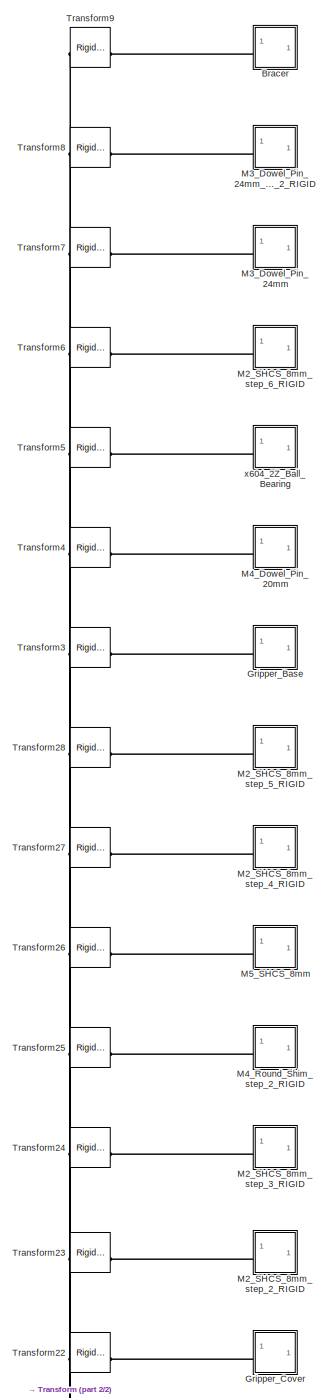
[diagram: HEBI Arm/Gripper Claw/Gripper_Mechanics_Assembly - part 1/2, full width, top band]
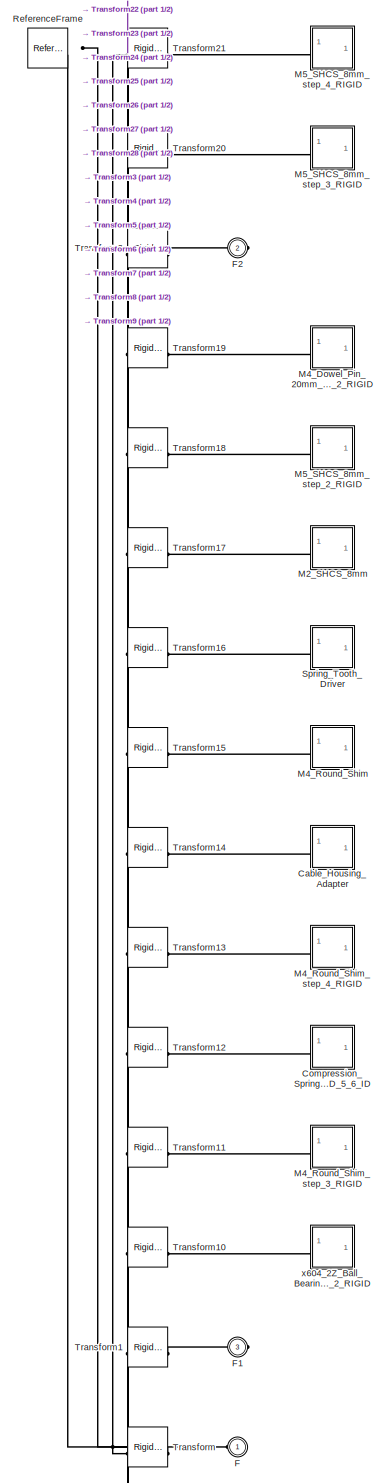
[diagram: HEBI Arm/Gripper Claw/Gripper_Mechanics_Assembly - part 2/2, full width, middle band]
BLOCK [SubSystem] HEBI Arm/Gripper Claw/Gripper_Mechanics_Assembly
BLOCK [SubSystem] HEBI Arm/Gripper Claw/Gripper_Mechanics_Assembly/Bracer
BLOCK [PMIOPort] HEBI Arm/Gripper Claw/Gripper_Mechanics_Assembly/Bracer/F
  Side = Left
BLOCK [Reference] HEBI Arm/Gripper Claw/Gripper_Mechanics_Assembly/Bracer/ReferenceFrame  REF=sm_lib/Frames and
Transforms/Reference
Frame
  SourceBlock = sm_lib/Frames and\nTransforms/Reference\nFrame
  SourceType = Reference\nFrame
BLOCK [Reference] HEBI Arm/Gripper Claw/Gripper_Mechanics_Assembly/Bracer/Solid  REF=sm_lib/Body Elements/File Solid
  SourceBlock = sm_lib/Body Elements/File Solid
  SourceType = File Solid
BLOCK [SubSystem] HEBI Arm/Gripper Claw/Gripper_Mechanics_Assembly/Cable_Housing_Adapter
BLOCK [PMIOPort] HEBI Arm/Gripper Claw/Gripper_Mechanics_Assembly/Cable_Housing_Adapter/F
  Side = Left
BLOCK [Reference] HEBI Arm/Gripper Claw/Gripper_Mechanics_Assembly/Cable_Housing_Adapter/ReferenceFrame  REF=sm_lib/Frames and
Transforms/Reference
Frame
  SourceBlock = sm_lib/Frames and\nTransforms/Reference\nFrame
  SourceType = Reference\nFrame
BLOCK [Reference] HEBI Arm/Gripper Claw/Gripper_Mechanics_Assembly/Cable_Housing_Adapter/Solid  REF=sm_lib/Body Elements/File Solid
  SourceBlock = sm_lib/Body Elements/File Solid
  SourceType = File Solid
BLOCK [SubSystem] HEBI Arm/Gripper Claw/Gripper_Mechanics_Assembly/Compression_Spring_19mm_7_5_OD_5_6_ID
BLOCK [PMIOPort] HEBI Arm/Gripper Claw/Gripper_Mechanics_Assembly/Compression_Spring_19mm_7_5_OD_5_6_ID/F
  Side = Left
BLOCK [Reference] HEBI Arm/Gripper Claw/Gripper_Mechanics_Assembly/Compression_Spring_19mm_7_5_OD_5_6_ID/ReferenceFrame  REF=sm_lib/Frames and
Transforms/Reference
Frame
  SourceBlock = sm_lib/Frames and\nTransforms/Reference\nFrame
  SourceType = Reference\nFrame
BLOCK [Reference] HEBI Arm/Gripper Claw/Gripper_Mechanics_Assembly/Compression_Spring_19mm_7_5_OD_5_6_ID/Solid  REF=sm_lib/Body Elements/File Solid
  SourceBlock = sm_lib/Body Elements/File Solid
  SourceType = File Solid
BLOCK [PMIOPort] HEBI Arm/Gripper Claw/Gripper_Mechanics_Assembly/F
  Side = Left
BLOCK [PMIOPort] HEBI Arm/Gripper Claw/Gripper_Mechanics_Assembly/F1
  Port = 3
  Side = Right
BLOCK [PMIOPort] HEBI Arm/Gripper Claw/Gripper_Mechanics_Assembly/F2
  Port = 2
  Side = Right
BLOCK [SubSystem] HEBI Arm/Gripper Claw/Gripper_Mechanics_Assembly/Gripper_Base
BLOCK [PMIOPort] HEBI Arm/Gripper Claw/Gripper_Mechanics_Assembly/Gripper_Base/F
  Side = Left
BLOCK [Reference] HEBI Arm/Gripper Claw/Gripper_Mechanics_Assembly/Gripper_Base/ReferenceFrame  REF=sm_lib/Frames and
Transforms/Reference
Frame
  SourceBlock = sm_lib/Frames and\nTransforms/Reference\nFrame
  SourceType = Reference\nFrame
BLOCK [Reference] HEBI Arm/Gripper Claw/Gripper_Mechanics_Assembly/Gripper_Base/Solid  REF=sm_lib/Body Elements/File Solid
  SourceBlock = sm_lib/Body Elements/File Solid
  SourceType = File Solid
BLOCK [SubSystem] HEBI Arm/Gripper Claw/Gripper_Mechanics_Assembly/Gripper_Cover
BLOCK [PMIOPort] HEBI Arm/Gripper Claw/Gripper_Mechanics_Assembly/Gripper_Cover/F
  Side = Left
BLOCK [Reference] HEBI Arm/Gripper Claw/Gripper_Mechanics_Assembly/Gripper_Cover/ReferenceFrame  REF=sm_lib/Frames and
Transforms/Reference
Frame
  SourceBlock = sm_lib/Frames and\nTransforms/Reference\nFrame
  SourceType = Reference\nFrame
BLOCK [Reference] HEBI Arm/Gripper Claw/Gripper_Mechanics_Assembly/Gripper_Cover/Solid  REF=sm_lib/Body Elements/File Solid
  SourceBlock = sm_lib/Body Elements/File Solid
  SourceType = File Solid
BLOCK [SubSystem] HEBI Arm/Gripper Claw/Gripper_Mechanics_Assembly/M2_SHCS_8mm
BLOCK [PMIOPort] HEBI Arm/Gripper Claw/Gripper_Mechanics_Assembly/M2_SHCS_8mm/F
  Side = Left
BLOCK [Reference] HEBI Arm/Gripper Claw/Gripper_Mechanics_Assembly/M2_SHCS_8mm/ReferenceFrame  REF=sm_lib/Frames and
Transforms/Reference
Frame
  SourceBlock = sm_lib/Frames and\nTransforms/Reference\nFrame
  SourceType = Reference\nFrame
BLOCK [Reference] HEBI Arm/Gripper Claw/Gripper_Mechanics_Assembly/M2_SHCS_8mm/Solid  REF=sm_lib/Body Elements/File Solid
  SourceBlock = sm_lib/Body Elements/File Solid
  SourceType = File Solid
BLOCK [SubSystem] HEBI Arm/Gripper Claw/Gripper_Mechanics_Assembly/M2_SHCS_8mm_step_2_RIGID
BLOCK [PMIOPort] HEBI Arm/Gripper Claw/Gripper_Mechanics_Assembly/M2_SHCS_8mm_step_2_RIGID/F
  Side = Left
BLOCK [Reference] HEBI Arm/Gripper Claw/Gripper_Mechanics_Assembly/M2_SHCS_8mm_step_2_RIGID/ReferenceFrame  REF=sm_lib/Frames and
Transforms/Reference
Frame
  SourceBlock = sm_lib/Frames and\nTransforms/Reference\nFrame
  SourceType = Reference\nFrame
BLOCK [Reference] HEBI Arm/Gripper Claw/Gripper_Mechanics_Assembly/M2_SHCS_8mm_step_2_RIGID/Solid  REF=sm_lib/Body Elements/File Solid
  SourceBlock = sm_lib/Body Elements/File Solid
  SourceType = File Solid
BLOCK [SubSystem] HEBI Arm/Gripper Claw/Gripper_Mechanics_Assembly/M2_SHCS_8mm_step_3_RIGID
BLOCK [PMIOPort] HEBI Arm/Gripper Claw/Gripper_Mechanics_Assembly/M2_SHCS_8mm_step_3_RIGID/F
  Side = Left
BLOCK [Reference] HEBI Arm/Gripper Claw/Gripper_Mechanics_Assembly/M2_SHCS_8mm_step_3_RIGID/ReferenceFrame  REF=sm_lib/Frames and
Transforms/Reference
Frame
  SourceBlock = sm_lib/Frames and\nTransforms/Reference\nFrame
  SourceType = Reference\nFrame
BLOCK [Reference] HEBI Arm/Gripper Claw/Gripper_Mechanics_Assembly/M2_SHCS_8mm_step_3_RIGID/Solid  REF=sm_lib/Body Elements/File Solid
  SourceBlock = sm_lib/Body Elements/File Solid
  SourceType = File Solid
BLOCK [SubSystem] HEBI Arm/Gripper Claw/Gripper_Mechanics_Assembly/M2_SHCS_8mm_step_4_RIGID
BLOCK [PMIOPort] HEBI Arm/Gripper Claw/Gripper_Mechanics_Assembly/M2_SHCS_8mm_step_4_RIGID/F
  Side = Left
BLOCK [Reference] HEBI Arm/Gripper Claw/Gripper_Mechanics_Assembly/M2_SHCS_8mm_step_4_RIGID/ReferenceFrame  REF=sm_lib/Frames and
Transforms/Reference
Frame
  SourceBlock = sm_lib/Frames and\nTransforms/Reference\nFrame
  SourceType = Reference\nFrame
BLOCK [Reference] HEBI Arm/Gripper Claw/Gripper_Mechanics_Assembly/M2_SHCS_8mm_step_4_RIGID/Solid  REF=sm_lib/Body Elements/File Solid
  SourceBlock = sm_lib/Body Elements/File Solid
  SourceType = File Solid
BLOCK [SubSystem] HEBI Arm/Gripper Claw/Gripper_Mechanics_Assembly/M2_SHCS_8mm_step_5_RIGID
BLOCK [PMIOPort] HEBI Arm/Gripper Claw/Gripper_Mechanics_Assembly/M2_SHCS_8mm_step_5_RIGID/F
  Side = Left
BLOCK [Reference] HEBI Arm/Gripper Claw/Gripper_Mechanics_Assembly/M2_SHCS_8mm_step_5_RIGID/ReferenceFrame  REF=sm_lib/Frames and
Transforms/Reference
Frame
  SourceBlock = sm_lib/Frames and\nTransforms/Reference\nFrame
  SourceType = Reference\nFrame
BLOCK [Reference] HEBI Arm/Gripper Claw/Gripper_Mechanics_Assembly/M2_SHCS_8mm_step_5_RIGID/Solid  REF=sm_lib/Body Elements/File Solid
  SourceBlock = sm_lib/Body Elements/File Solid
  SourceType = File Solid
BLOCK [SubSystem] HEBI Arm/Gripper Claw/Gripper_Mechanics_Assembly/M2_SHCS_8mm_step_6_RIGID
BLOCK [PMIOPort] HEBI Arm/Gripper Claw/Gripper_Mechanics_Assembly/M2_SHCS_8mm_step_6_RIGID/F
  Side = Left
BLOCK [Reference] HEBI Arm/Gripper Claw/Gripper_Mechanics_Assembly/M2_SHCS_8mm_step_6_RIGID/ReferenceFrame  REF=sm_lib/Frames and
Transforms/Reference
Frame
  SourceBlock = sm_lib/Frames and\nTransforms/Reference\nFrame
  SourceType = Reference\nFrame
BLOCK [Reference] HEBI Arm/Gripper Claw/Gripper_Mechanics_Assembly/M2_SHCS_8mm_step_6_RIGID/Solid  REF=sm_lib/Body Elements/File Solid
  SourceBlock = sm_lib/Body Elements/File Solid
  SourceType = File Solid
BLOCK [SubSystem] HEBI Arm/Gripper Claw/Gripper_Mechanics_Assembly/M3_Dowel_Pin_24mm
BLOCK [PMIOPort] HEBI Arm/Gripper Claw/Gripper_Mechanics_Assembly/M3_Dowel_Pin_24mm/F
  Side = Left
BLOCK [Reference] HEBI Arm/Gripper Claw/Gripper_Mechanics_Assembly/M3_Dowel_Pin_24mm/ReferenceFrame  REF=sm_lib/Frames and
Transforms/Reference
Frame
  SourceBlock = sm_lib/Frames and\nTransforms/Reference\nFrame
  SourceType = Reference\nFrame
BLOCK [Reference] HEBI Arm/Gripper Claw/Gripper_Mechanics_Assembly/M3_Dowel_Pin_24mm/Solid  REF=sm_lib/Body Elements/File Solid
  SourceBlock = sm_lib/Body Elements/File Solid
  SourceType = File Solid
BLOCK [SubSystem] HEBI Arm/Gripper Claw/Gripper_Mechanics_Assembly/M3_Dowel_Pin_24mm_step_2_RIGID
BLOCK [PMIOPort] HEBI Arm/Gripper Claw/Gripper_Mechanics_Assembly/M3_Dowel_Pin_24mm_step_2_RIGID/F
  Side = Left
BLOCK [Reference] HEBI Arm/Gripper Claw/Gripper_Mechanics_Assembly/M3_Dowel_Pin_24mm_step_2_RIGID/ReferenceFrame  REF=sm_lib/Frames and
Transforms/Reference
Frame
  SourceBlock = sm_lib/Frames and\nTransforms/Reference\nFrame
  SourceType = Reference\nFrame
BLOCK [Reference] HEBI Arm/Gripper Claw/Gripper_Mechanics_Assembly/M3_Dowel_Pin_24mm_step_2_RIGID/Solid  REF=sm_lib/Body Elements/File Solid
  SourceBlock = sm_lib/Body Elements/File Solid
  SourceType = File Solid
BLOCK [SubSystem] HEBI Arm/Gripper Claw/Gripper_Mechanics_Assembly/M4_Dowel_Pin_20mm
BLOCK [PMIOPort] HEBI Arm/Gripper Claw/Gripper_Mechanics_Assembly/M4_Dowel_Pin_20mm/F
  Side = Left
BLOCK [Reference] HEBI Arm/Gripper Claw/Gripper_Mechanics_Assembly/M4_Dowel_Pin_20mm/ReferenceFrame  REF=sm_lib/Frames and
Transforms/Reference
Frame
  SourceBlock = sm_lib/Frames and\nTransforms/Reference\nFrame
  SourceType = Reference\nFrame
BLOCK [Reference] HEBI Arm/Gripper Claw/Gripper_Mechanics_Assembly/M4_Dowel_Pin_20mm/Solid  REF=sm_lib/Body Elements/File Solid
  SourceBlock = sm_lib/Body Elements/File Solid
  SourceType = File Solid
BLOCK [SubSystem] HEBI Arm/Gripper Claw/Gripper_Mechanics_Assembly/M4_Dowel_Pin_20mm_step_2_RIGID
BLOCK [PMIOPort] HEBI Arm/Gripper Claw/Gripper_Mechanics_Assembly/M4_Dowel_Pin_20mm_step_2_RIGID/F
  Side = Left
BLOCK [Reference] HEBI Arm/Gripper Claw/Gripper_Mechanics_Assembly/M4_Dowel_Pin_20mm_step_2_RIGID/ReferenceFrame  REF=sm_lib/Frames and
Transforms/Reference
Frame
  SourceBlock = sm_lib/Frames and\nTransforms/Reference\nFrame
  SourceType = Reference\nFrame
BLOCK [Reference] HEBI Arm/Gripper Claw/Gripper_Mechanics_Assembly/M4_Dowel_Pin_20mm_step_2_RIGID/Solid  REF=sm_lib/Body Elements/File Solid
  SourceBlock = sm_lib/Body Elements/File Solid
  SourceType = File Solid
BLOCK [SubSystem] HEBI Arm/Gripper Claw/Gripper_Mechanics_Assembly/M4_Round_Shim
BLOCK [PMIOPort] HEBI Arm/Gripper Claw/Gripper_Mechanics_Assembly/M4_Round_Shim/F
  Side = Left
BLOCK [Reference] HEBI Arm/Gripper Claw/Gripper_Mechanics_Assembly/M4_Round_Shim/ReferenceFrame  REF=sm_lib/Frames and
Transforms/Reference
Frame
  SourceBlock = sm_lib/Frames and\nTransforms/Reference\nFrame
  SourceType = Reference\nFrame
BLOCK [Reference] HEBI Arm/Gripper Claw/Gripper_Mechanics_Assembly/M4_Round_Shim/Solid  REF=sm_lib/Body Elements/File Solid
  SourceBlock = sm_lib/Body Elements/File Solid
  SourceType = File Solid
BLOCK [SubSystem] HEBI Arm/Gripper Claw/Gripper_Mechanics_Assembly/M4_Round_Shim_step_2_RIGID
BLOCK [PMIOPort] HEBI Arm/Gripper Claw/Gripper_Mechanics_Assembly/M4_Round_Shim_step_2_RIGID/F
  Side = Left
BLOCK [Reference] HEBI Arm/Gripper Claw/Gripper_Mechanics_Assembly/M4_Round_Shim_step_2_RIGID/ReferenceFrame  REF=sm_lib/Frames and
Transforms/Reference
Frame
  SourceBlock = sm_lib/Frames and\nTransforms/Reference\nFrame
  SourceType = Reference\nFrame
BLOCK [Reference] HEBI Arm/Gripper Claw/Gripper_Mechanics_Assembly/M4_Round_Shim_step_2_RIGID/Solid  REF=sm_lib/Body Elements/File Solid
  SourceBlock = sm_lib/Body Elements/File Solid
  SourceType = File Solid
BLOCK [SubSystem] HEBI Arm/Gripper Claw/Gripper_Mechanics_Assembly/M4_Round_Shim_step_3_RIGID
BLOCK [PMIOPort] HEBI Arm/Gripper Claw/Gripper_Mechanics_Assembly/M4_Round_Shim_step_3_RIGID/F
  Side = Left
BLOCK [Reference] HEBI Arm/Gripper Claw/Gripper_Mechanics_Assembly/M4_Round_Shim_step_3_RIGID/ReferenceFrame  REF=sm_lib/Frames and
Transforms/Reference
Frame
  SourceBlock = sm_lib/Frames and\nTransforms/Reference\nFrame
  SourceType = Reference\nFrame
BLOCK [Reference] HEBI Arm/Gripper Claw/Gripper_Mechanics_Assembly/M4_Round_Shim_step_3_RIGID/Solid  REF=sm_lib/Body Elements/File Solid
  SourceBlock = sm_lib/Body Elements/File Solid
  SourceType = File Solid
BLOCK [SubSystem] HEBI Arm/Gripper Claw/Gripper_Mechanics_Assembly/M4_Round_Shim_step_4_RIGID
BLOCK [PMIOPort] HEBI Arm/Gripper Claw/Gripper_Mechanics_Assembly/M4_Round_Shim_step_4_RIGID/F
  Side = Left
BLOCK [Reference] HEBI Arm/Gripper Claw/Gripper_Mechanics_Assembly/M4_Round_Shim_step_4_RIGID/ReferenceFrame  REF=sm_lib/Frames and
Transforms/Reference
Frame
  SourceBlock = sm_lib/Frames and\nTransforms/Reference\nFrame
  SourceType = Reference\nFrame
BLOCK [Reference] HEBI Arm/Gripper Claw/Gripper_Mechanics_Assembly/M4_Round_Shim_step_4_RIGID/Solid  REF=sm_lib/Body Elements/File Solid
  SourceBlock = sm_lib/Body Elements/File Solid
  SourceType = File Solid
BLOCK [SubSystem] HEBI Arm/Gripper Claw/Gripper_Mechanics_Assembly/M5_SHCS_8mm
BLOCK [PMIOPort] HEBI Arm/Gripper Claw/Gripper_Mechanics_Assembly/M5_SHCS_8mm/F
  Side = Left
BLOCK [Reference] HEBI Arm/Gripper Claw/Gripper_Mechanics_Assembly/M5_SHCS_8mm/ReferenceFrame  REF=sm_lib/Frames and
Transforms/Reference
Frame
  SourceBlock = sm_lib/Frames and\nTransforms/Reference\nFrame
  SourceType = Reference\nFrame
BLOCK [Reference] HEBI Arm/Gripper Claw/Gripper_Mechanics_Assembly/M5_SHCS_8mm/Solid  REF=sm_lib/Body Elements/File Solid
  SourceBlock = sm_lib/Body Elements/File Solid
  SourceType = File Solid
BLOCK [SubSystem] HEBI Arm/Gripper Claw/Gripper_Mechanics_Assembly/M5_SHCS_8mm_step_2_RIGID
BLOCK [PMIOPort] HEBI Arm/Gripper Claw/Gripper_Mechanics_Assembly/M5_SHCS_8mm_step_2_RIGID/F
  Side = Left
BLOCK [Reference] HEBI Arm/Gripper Claw/Gripper_Mechanics_Assembly/M5_SHCS_8mm_step_2_RIGID/ReferenceFrame  REF=sm_lib/Frames and
Transforms/Reference
Frame
  SourceBlock = sm_lib/Frames and\nTransforms/Reference\nFrame
  SourceType = Reference\nFrame
BLOCK [Reference] HEBI Arm/Gripper Claw/Gripper_Mechanics_Assembly/M5_SHCS_8mm_step_2_RIGID/Solid  REF=sm_lib/Body Elements/File Solid
  SourceBlock = sm_lib/Body Elements/File Solid
  SourceType = File Solid
BLOCK [SubSystem] HEBI Arm/Gripper Claw/Gripper_Mechanics_Assembly/M5_SHCS_8mm_step_3_RIGID
BLOCK [PMIOPort] HEBI Arm/Gripper Claw/Gripper_Mechanics_Assembly/M5_SHCS_8mm_step_3_RIGID/F
  Side = Left
BLOCK [Reference] HEBI Arm/Gripper Claw/Gripper_Mechanics_Assembly/M5_SHCS_8mm_step_3_RIGID/ReferenceFrame  REF=sm_lib/Frames and
Transforms/Reference
Frame
  SourceBlock = sm_lib/Frames and\nTransforms/Reference\nFrame
  SourceType = Reference\nFrame
BLOCK [Reference] HEBI Arm/Gripper Claw/Gripper_Mechanics_Assembly/M5_SHCS_8mm_step_3_RIGID/Solid  REF=sm_lib/Body Elements/File Solid
  SourceBlock = sm_lib/Body Elements/File Solid
  SourceType = File Solid
BLOCK [SubSystem] HEBI Arm/Gripper Claw/Gripper_Mechanics_Assembly/M5_SHCS_8mm_step_4_RIGID
BLOCK [PMIOPort] HEBI Arm/Gripper Claw/Gripper_Mechanics_Assembly/M5_SHCS_8mm_step_4_RIGID/F
  Side = Left
BLOCK [Reference] HEBI Arm/Gripper Claw/Gripper_Mechanics_Assembly/M5_SHCS_8mm_step_4_RIGID/ReferenceFrame  REF=sm_lib/Frames and
Transforms/Reference
Frame
  SourceBlock = sm_lib/Frames and\nTransforms/Reference\nFrame
  SourceType = Reference\nFrame
BLOCK [Reference] HEBI Arm/Gripper Claw/Gripper_Mechanics_Assembly/M5_SHCS_8mm_step_4_RIGID/Solid  REF=sm_lib/Body Elements/File Solid
  SourceBlock = sm_lib/Body Elements/File Solid
  SourceType = File Solid
BLOCK [Reference] HEBI Arm/Gripper Claw/Gripper_Mechanics_Assembly/ReferenceFrame  REF=sm_lib/Frames and
Transforms/Reference
Frame
  SourceBlock = sm_lib/Frames and\nTransforms/Reference\nFrame
  SourceType = Reference\nFrame
BLOCK [SubSystem] HEBI Arm/Gripper Claw/Gripper_Mechanics_Assembly/Spring_Tooth_Driver
BLOCK [PMIOPort] HEBI Arm/Gripper Claw/Gripper_Mechanics_Assembly/Spring_Tooth_Driver/F
  Side = Left
BLOCK [Reference] HEBI Arm/Gripper Claw/Gripper_Mechanics_Assembly/Spring_Tooth_Driver/ReferenceFrame  REF=sm_lib/Frames and
Transforms/Reference
Frame
  SourceBlock = sm_lib/Frames and\nTransforms/Reference\nFrame
  SourceType = Reference\nFrame
BLOCK [Reference] HEBI Arm/Gripper Claw/Gripper_Mechanics_Assembly/Spring_Tooth_Driver/Solid  REF=sm_lib/Body Elements/File Solid
  SourceBlock = sm_lib/Body Elements/File Solid
  SourceType = File Solid
BLOCK [Reference] HEBI Arm/Gripper Claw/Gripper_Mechanics_Assembly/Transform  REF=sm_lib/Frames and
Transforms/Rigid
Transform
  SourceBlock = sm_lib/Frames and\nTransforms/Rigid\nTransform
  SourceType = Rigid\nTransform
BLOCK [Reference] HEBI Arm/Gripper Claw/Gripper_Mechanics_Assembly/Transform1  REF=sm_lib/Frames and
Transforms/Rigid
Transform
  SourceBlock = sm_lib/Frames and\nTransforms/Rigid\nTransform
  SourceType = Rigid\nTransform
BLOCK [Reference] HEBI Arm/Gripper Claw/Gripper_Mechanics_Assembly/Transform10  REF=sm_lib/Frames and
Transforms/Rigid
Transform
  SourceBlock = sm_lib/Frames and\nTransforms/Rigid\nTransform
  SourceType = Rigid\nTransform
BLOCK [Reference] HEBI Arm/Gripper Claw/Gripper_Mechanics_Assembly/Transform11  REF=sm_lib/Frames and
Transforms/Rigid
Transform
  SourceBlock = sm_lib/Frames and\nTransforms/Rigid\nTransform
  SourceType = Rigid\nTransform
BLOCK [Reference] HEBI Arm/Gripper Claw/Gripper_Mechanics_Assembly/Transform12  REF=sm_lib/Frames and
Transforms/Rigid
Transform
  SourceBlock = sm_lib/Frames and\nTransforms/Rigid\nTransform
  SourceType = Rigid\nTransform
BLOCK [Reference] HEBI Arm/Gripper Claw/Gripper_Mechanics_Assembly/Transform13  REF=sm_lib/Frames and
Transforms/Rigid
Transform
  SourceBlock = sm_lib/Frames and\nTransforms/Rigid\nTransform
  SourceType = Rigid\nTransform
BLOCK [Reference] HEBI Arm/Gripper Claw/Gripper_Mechanics_Assembly/Transform14  REF=sm_lib/Frames and
Transforms/Rigid
Transform
  SourceBlock = sm_lib/Frames and\nTransforms/Rigid\nTransform
  SourceType = Rigid\nTransform
BLOCK [Reference] HEBI Arm/Gripper Claw/Gripper_Mechanics_Assembly/Transform15  REF=sm_lib/Frames and
Transforms/Rigid
Transform
  SourceBlock = sm_lib/Frames and\nTransforms/Rigid\nTransform
  SourceType = Rigid\nTransform
BLOCK [Reference] HEBI Arm/Gripper Claw/Gripper_Mechanics_Assembly/Transform16  REF=sm_lib/Frames and
Transforms/Rigid
Transform
  SourceBlock = sm_lib/Frames and\nTransforms/Rigid\nTransform
  SourceType = Rigid\nTransform
BLOCK [Reference] HEBI Arm/Gripper Claw/Gripper_Mechanics_Assembly/Transform17  REF=sm_lib/Frames and
Transforms/Rigid
Transform
  SourceBlock = sm_lib/Frames and\nTransforms/Rigid\nTransform
  SourceType = Rigid\nTransform
BLOCK [Reference] HEBI Arm/Gripper Claw/Gripper_Mechanics_Assembly/Transform18  REF=sm_lib/Frames and
Transforms/Rigid
Transform
  SourceBlock = sm_lib/Frames and\nTransforms/Rigid\nTransform
  SourceType = Rigid\nTransform
BLOCK [Reference] HEBI Arm/Gripper Claw/Gripper_Mechanics_Assembly/Transform19  REF=sm_lib/Frames and
Transforms/Rigid
Transform
  SourceBlock = sm_lib/Frames and\nTransforms/Rigid\nTransform
  SourceType = Rigid\nTransform
BLOCK [Reference] HEBI Arm/Gripper Claw/Gripper_Mechanics_Assembly/Transform2  REF=sm_lib/Frames and
Transforms/Rigid
Transform
  SourceBlock = sm_lib/Frames and\nTransforms/Rigid\nTransform
  SourceType = Rigid\nTransform
BLOCK [Reference] HEBI Arm/Gripper Claw/Gripper_Mechanics_Assembly/Transform20  REF=sm_lib/Frames and
Transforms/Rigid
Transform
  SourceBlock = sm_lib/Frames and\nTransforms/Rigid\nTransform
  SourceType = Rigid\nTransform
BLOCK [Reference] HEBI Arm/Gripper Claw/Gripper_Mechanics_Assembly/Transform21  REF=sm_lib/Frames and
Transforms/Rigid
Transform
  SourceBlock = sm_lib/Frames and\nTransforms/Rigid\nTransform
  SourceType = Rigid\nTransform
BLOCK [Reference] HEBI Arm/Gripper Claw/Gripper_Mechanics_Assembly/Transform22  REF=sm_lib/Frames and
Transforms/Rigid
Transform
  SourceBlock = sm_lib/Frames and\nTransforms/Rigid\nTransform
  SourceType = Rigid\nTransform
BLOCK [Reference] HEBI Arm/Gripper Claw/Gripper_Mechanics_Assembly/Transform23  REF=sm_lib/Frames and
Transforms/Rigid
Transform
  SourceBlock = sm_lib/Frames and\nTransforms/Rigid\nTransform
  SourceType = Rigid\nTransform
BLOCK [Reference] HEBI Arm/Gripper Claw/Gripper_Mechanics_Assembly/Transform24  REF=sm_lib/Frames and
Transforms/Rigid
Transform
  SourceBlock = sm_lib/Frames and\nTransforms/Rigid\nTransform
  SourceType = Rigid\nTransform
BLOCK [Reference] HEBI Arm/Gripper Claw/Gripper_Mechanics_Assembly/Transform25  REF=sm_lib/Frames and
Transforms/Rigid
Transform
  SourceBlock = sm_lib/Frames and\nTransforms/Rigid\nTransform
  SourceType = Rigid\nTransform
BLOCK [Reference] HEBI Arm/Gripper Claw/Gripper_Mechanics_Assembly/Transform26  REF=sm_lib/Frames and
Transforms/Rigid
Transform
  SourceBlock = sm_lib/Frames and\nTransforms/Rigid\nTransform
  SourceType = Rigid\nTransform
BLOCK [Reference] HEBI Arm/Gripper Claw/Gripper_Mechanics_Assembly/Transform27  REF=sm_lib/Frames and
Transforms/Rigid
Transform
  SourceBlock = sm_lib/Frames and\nTransforms/Rigid\nTransform
  SourceType = Rigid\nTransform
BLOCK [Reference] HEBI Arm/Gripper Claw/Gripper_Mechanics_Assembly/Transform28  REF=sm_lib/Frames and
Transforms/Rigid
Transform
  SourceBlock = sm_lib/Frames and\nTransforms/Rigid\nTransform
  SourceType = Rigid\nTransform
BLOCK [Reference] HEBI Arm/Gripper Claw/Gripper_Mechanics_Assembly/Transform3  REF=sm_lib/Frames and
Transforms/Rigid
Transform
  SourceBlock = sm_lib/Frames and\nTransforms/Rigid\nTransform
  SourceType = Rigid\nTransform
BLOCK [Reference] HEBI Arm/Gripper Claw/Gripper_Mechanics_Assembly/Transform4  REF=sm_lib/Frames and
Transforms/Rigid
Transform
  SourceBlock = sm_lib/Frames and\nTransforms/Rigid\nTransform
  SourceType = Rigid\nTransform
BLOCK [Reference] HEBI Arm/Gripper Claw/Gripper_Mechanics_Assembly/Transform5  REF=sm_lib/Frames and
Transforms/Rigid
Transform
  SourceBlock = sm_lib/Frames and\nTransforms/Rigid\nTransform
  SourceType = Rigid\nTransform
BLOCK [Reference] HEBI Arm/Gripper Claw/Gripper_Mechanics_Assembly/Transform6  REF=sm_lib/Frames and
Transforms/Rigid
Transform
  SourceBlock = sm_lib/Frames and\nTransforms/Rigid\nTransform
  SourceType = Rigid\nTransform
BLOCK [Reference] HEBI Arm/Gripper Claw/Gripper_Mechanics_Assembly/Transform7  REF=sm_lib/Frames and
Transforms/Rigid
Transform
  SourceBlock = sm_lib/Frames and\nTransforms/Rigid\nTransform
  SourceType = Rigid\nTransform
BLOCK [Reference] HEBI Arm/Gripper Claw/Gripper_Mechanics_Assembly/Transform8  REF=sm_lib/Frames and
Transforms/Rigid
Transform
  SourceBlock = sm_lib/Frames and\nTransforms/Rigid\nTransform
  SourceType = Rigid\nTransform
BLOCK [Reference] HEBI Arm/Gripper Claw/Gripper_Mechanics_Assembly/Transform9  REF=sm_lib/Frames and
Transforms/Rigid
Transform
  SourceBlock = sm_lib/Frames and\nTransforms/Rigid\nTransform
  SourceType = Rigid\nTransform
BLOCK [SubSystem] HEBI Arm/Gripper Claw/Gripper_Mechanics_Assembly/x604_2Z_Ball_Bearing
BLOCK [PMIOPort] HEBI Arm/Gripper Claw/Gripper_Mechanics_Assembly/x604_2Z_Ball_Bearing/F
  Side = Left
BLOCK [Reference] HEBI Arm/Gripper Claw/Gripper_Mechanics_Assembly/x604_2Z_Ball_Bearing/ReferenceFrame  REF=sm_lib/Frames and
Transforms/Reference
Frame
  SourceBlock = sm_lib/Frames and\nTransforms/Reference\nFrame
  SourceType = Reference\nFrame
BLOCK [Reference] HEBI Arm/Gripper Claw/Gripper_Mechanics_Assembly/x604_2Z_Ball_Bearing/Solid  REF=sm_lib/Body Elements/File Solid
  SourceBlock = sm_lib/Body Elements/File Solid
  SourceType = File Solid
BLOCK [SubSystem] HEBI Arm/Gripper Claw/Gripper_Mechanics_Assembly/x604_2Z_Ball_Bearing_step_2_RIGID
BLOCK [PMIOPort] HEBI Arm/Gripper Claw/Gripper_Mechanics_Assembly/x604_2Z_Ball_Bearing_step_2_RIGID/F
  Side = Left
BLOCK [Reference] HEBI Arm/Gripper Claw/Gripper_Mechanics_Assembly/x604_2Z_Ball_Bearing_step_2_RIGID/ReferenceFrame  REF=sm_lib/Frames and
Transforms/Reference
Frame
  SourceBlock = sm_lib/Frames and\nTransforms/Reference\nFrame
  SourceType = Reference\nFrame
BLOCK [Reference] HEBI Arm/Gripper Claw/Gripper_Mechanics_Assembly/x604_2Z_Ball_Bearing_step_2_RIGID/Solid  REF=sm_lib/Body Elements/File Solid
  SourceBlock = sm_lib/Body Elements/File Solid
  SourceType = File Solid
BLOCK [Gain] HEBI Arm/Gripper Claw/Multiply
  Gain = 1.74444444
BLOCK [Gain] HEBI Arm/Gripper Claw/Multiply1
  Gain = -1
BLOCK [Reference] HEBI Arm/Gripper Claw/Revolute7  REF=sm_lib/Joints/Revolute Joint
  SourceBlock = sm_lib/Joints/Revolute Joint
  SourceType = Revolute Joint
BLOCK [Reference] HEBI Arm/Gripper Claw/Revolute8  REF=sm_lib/Joints/Revolute Joint
  SourceBlock = sm_lib/Joints/Revolute Joint
  SourceType = Revolute Joint
BLOCK [Reference] HEBI Arm/Gripper Claw/Simulink-PS Converter  REF=nesl_utility/Simulink-PS
Converter
  SourceBlock = nesl_utility/Simulink-PS\nConverter
  SourceType = Simulink-PS\nConverter
BLOCK [Reference] HEBI Arm/Gripper Claw/Simulink-PS Converter1  REF=nesl_utility/Simulink-PS
Converter
  SourceBlock = nesl_utility/Simulink-PS\nConverter
  SourceType = Simulink-PS\nConverter
BLOCK [Inport] HEBI Arm/Gripper Claw/q
BLOCK [SubSystem] HEBI Arm/Gripper Spool
  PortSchema = {"entries":[{"content":{"sides":[{"content":{"connectorIds":["LConn1","In1"]},"type":"ConnectorPlacement.EquallySpacedRectSide","uuid":"6dcdd755-b063-4b6c-b71b-2eecc84a90b4"},{"content":{"connectorIds":["RConn1","RConn2","RConn3"],"side":"RIGHT"},"type":"ConnectorPlacement.EquallySpacedRectSide","uuid":"212d9665-bc6d-4805-ac0a-51d4227e94bf"},{"content":{"side":"TOP"},"type":"ConnectorPlacement.Equ...<+251ch>
  ShowPortLabels = none
BLOCK [Inport] HEBI Arm/Gripper Spool Position
  NameLocation = left
  Port = 6
BLOCK [PMIOPort] HEBI Arm/Gripper Spool/F
  Side = Left
BLOCK [SubSystem] HEBI Arm/Gripper Spool/Gripper_Spool_Assembly
BLOCK [PMIOPort] HEBI Arm/Gripper Spool/Gripper_Spool_Assembly/F
  Side = Left
BLOCK [PMIOPort] HEBI Arm/Gripper Spool/Gripper_Spool_Assembly/F1
  Port = 2
  Side = Right
BLOCK [SubSystem] HEBI Arm/Gripper Spool/Gripper_Spool_Assembly/Housing_Mid_Tube_Mount_Assembly
BLOCK [PMIOPort] HEBI Arm/Gripper Spool/Gripper_Spool_Assembly/Housing_Mid_Tube_Mount_Assembly/F
  Side = Right
BLOCK [SubSystem] HEBI Arm/Gripper Spool/Gripper_Spool_Assembly/Housing_Mid_Tube_Mount_Assembly/Housing_Mid_Tube_Mount
BLOCK [PMIOPort] HEBI Arm/Gripper Spool/Gripper_Spool_Assembly/Housing_Mid_Tube_Mount_Assembly/Housing_Mid_Tube_Mount/F
  Side = Left
BLOCK [Reference] HEBI Arm/Gripper Spool/Gripper_Spool_Assembly/Housing_Mid_Tube_Mount_Assembly/Housing_Mid_Tube_Mount/ReferenceFrame  REF=sm_lib/Frames and
Transforms/Reference
Frame
  SourceBlock = sm_lib/Frames and\nTransforms/Reference\nFrame
  SourceType = Reference\nFrame
BLOCK [Reference] HEBI Arm/Gripper Spool/Gripper_Spool_Assembly/Housing_Mid_Tube_Mount_Assembly/Housing_Mid_Tube_Mount/Solid  REF=sm_lib/Body Elements/File Solid
  SourceBlock = sm_lib/Body Elements/File Solid
  SourceType = File Solid
BLOCK [SubSystem] HEBI Arm/Gripper Spool/Gripper_Spool_Assembly/Housing_Mid_Tube_Mount_Assembly/M2_Dowel_Pin_6mm
BLOCK [PMIOPort] HEBI Arm/Gripper Spool/Gripper_Spool_Assembly/Housing_Mid_Tube_Mount_Assembly/M2_Dowel_Pin_6mm/F
  Side = Left
BLOCK [Reference] HEBI Arm/Gripper Spool/Gripper_Spool_Assembly/Housing_Mid_Tube_Mount_Assembly/M2_Dowel_Pin_6mm/ReferenceFrame  REF=sm_lib/Frames and
Transforms/Reference
Frame
  SourceBlock = sm_lib/Frames and\nTransforms/Reference\nFrame
  SourceType = Reference\nFrame
BLOCK [Reference] HEBI Arm/Gripper Spool/Gripper_Spool_Assembly/Housing_Mid_Tube_Mount_Assembly/M2_Dowel_Pin_6mm/Solid  REF=sm_lib/Body Elements/File Solid
  SourceBlock = sm_lib/Body Elements/File Solid
  SourceType = File Solid
BLOCK [SubSystem] HEBI Arm/Gripper Spool/Gripper_Spool_Assembly/Housing_Mid_Tube_Mount_Assembly/M2_Dowel_Pin_6mm_step_2_RIGID
BLOCK [PMIOPort] HEBI Arm/Gripper Spool/Gripper_Spool_Assembly/Housing_Mid_Tube_Mount_Assembly/M2_Dowel_Pin_6mm_step_2_RIGID/F
  Side = Left
BLOCK [Reference] HEBI Arm/Gripper Spool/Gripper_Spool_Assembly/Housing_Mid_Tube_Mount_Assembly/M2_Dowel_Pin_6mm_step_2_RIGID/ReferenceFrame  REF=sm_lib/Frames and
Transforms/Reference
Frame
  SourceBlock = sm_lib/Frames and\nTransforms/Reference\nFrame
  SourceType = Reference\nFrame
BLOCK [Reference] HEBI Arm/Gripper Spool/Gripper_Spool_Assembly/Housing_Mid_Tube_Mount_Assembly/M2_Dowel_Pin_6mm_step_2_RIGID/Solid  REF=sm_lib/Body Elements/File Solid
  SourceBlock = sm_lib/Body Elements/File Solid
  SourceType = File Solid
BLOCK [SubSystem] HEBI Arm/Gripper Spool/Gripper_Spool_Assembly/Housing_Mid_Tube_Mount_Assembly/M5_SHCS_10mm
BLOCK [PMIOPort] HEBI Arm/Gripper Spool/Gripper_Spool_Assembly/Housing_Mid_Tube_Mount_Assembly/M5_SHCS_10mm/F
  Side = Left
BLOCK [Reference] HEBI Arm/Gripper Spool/Gripper_Spool_Assembly/Housing_Mid_Tube_Mount_Assembly/M5_SHCS_10mm/ReferenceFrame  REF=sm_lib/Frames and
Transforms/Reference
Frame
  SourceBlock = sm_lib/Frames and\nTransforms/Reference\nFrame
  SourceType = Reference\nFrame
BLOCK [Reference] HEBI Arm/Gripper Spool/Gripper_Spool_Assembly/Housing_Mid_Tube_Mount_Assembly/M5_SHCS_10mm/Solid  REF=sm_lib/Body Elements/File Solid
  SourceBlock = sm_lib/Body Elements/File Solid
  SourceType = File Solid
BLOCK [SubSystem] HEBI Arm/Gripper Spool/Gripper_Spool_Assembly/Housing_Mid_Tube_Mount_Assembly/M5_SHCS_10mm_step_2_RIGID
BLOCK [PMIOPort] HEBI Arm/Gripper Spool/Gripper_Spool_Assembly/Housing_Mid_Tube_Mount_Assembly/M5_SHCS_10mm_step_2_RIGID/F
  Side = Left
BLOCK [Reference] HEBI Arm/Gripper Spool/Gripper_Spool_Assembly/Housing_Mid_Tube_Mount_Assembly/M5_SHCS_10mm_step_2_RIGID/ReferenceFrame  REF=sm_lib/Frames and
Transforms/Reference
Frame
  SourceBlock = sm_lib/Frames and\nTransforms/Reference\nFrame
  SourceType = Reference\nFrame
BLOCK [Reference] HEBI Arm/Gripper Spool/Gripper_Spool_Assembly/Housing_Mid_Tube_Mount_Assembly/M5_SHCS_10mm_step_2_RIGID/Solid  REF=sm_lib/Body Elements/File Solid
  SourceBlock = sm_lib/Body Elements/File Solid
  SourceType = File Solid
BLOCK [SubSystem] HEBI Arm/Gripper Spool/Gripper_Spool_Assembly/Housing_Mid_Tube_Mount_Assembly/M5_SHCS_10mm_step_3_RIGID
BLOCK [PMIOPort] HEBI Arm/Gripper Spool/Gripper_Spool_Assembly/Housing_Mid_Tube_Mount_Assembly/M5_SHCS_10mm_step_3_RIGID/F
  Side = Left
BLOCK [Reference] HEBI Arm/Gripper Spool/Gripper_Spool_Assembly/Housing_Mid_Tube_Mount_Assembly/M5_SHCS_10mm_step_3_RIGID/ReferenceFrame  REF=sm_lib/Frames and
Transforms/Reference
Frame
  SourceBlock = sm_lib/Frames and\nTransforms/Reference\nFrame
  SourceType = Reference\nFrame
BLOCK [Reference] HEBI Arm/Gripper Spool/Gripper_Spool_Assembly/Housing_Mid_Tube_Mount_Assembly/M5_SHCS_10mm_step_3_RIGID/Solid  REF=sm_lib/Body Elements/File Solid
  SourceBlock = sm_lib/Body Elements/File Solid
  SourceType = File Solid
BLOCK [SubSystem] HEBI Arm/Gripper Spool/Gripper_Spool_Assembly/Housing_Mid_Tube_Mount_Assembly/M5_SHCS_10mm_step_4_RIGID
BLOCK [PMIOPort] HEBI Arm/Gripper Spool/Gripper_Spool_Assembly/Housing_Mid_Tube_Mount_Assembly/M5_SHCS_10mm_step_4_RIGID/F
  Side = Left
BLOCK [Reference] HEBI Arm/Gripper Spool/Gripper_Spool_Assembly/Housing_Mid_Tube_Mount_Assembly/M5_SHCS_10mm_step_4_RIGID/ReferenceFrame  REF=sm_lib/Frames and
Transforms/Reference
Frame
  SourceBlock = sm_lib/Frames and\nTransforms/Reference\nFrame
  SourceType = Reference\nFrame
BLOCK [Reference] HEBI Arm/Gripper Spool/Gripper_Spool_Assembly/Housing_Mid_Tube_Mount_Assembly/M5_SHCS_10mm_step_4_RIGID/Solid  REF=sm_lib/Body Elements/File Solid
  SourceBlock = sm_lib/Body Elements/File Solid
  SourceType = File Solid
BLOCK [SubSystem] HEBI Arm/Gripper Spool/Gripper_Spool_Assembly/Housing_Mid_Tube_Mount_Assembly/M5_SHCS_16mm
BLOCK [PMIOPort] HEBI Arm/Gripper Spool/Gripper_Spool_Assembly/Housing_Mid_Tube_Mount_Assembly/M5_SHCS_16mm/F
  Side = Left
BLOCK [Reference] HEBI Arm/Gripper Spool/Gripper_Spool_Assembly/Housing_Mid_Tube_Mount_Assembly/M5_SHCS_16mm/ReferenceFrame  REF=sm_lib/Frames and
Transforms/Reference
Frame
  SourceBlock = sm_lib/Frames and\nTransforms/Reference\nFrame
  SourceType = Reference\nFrame
BLOCK [Reference] HEBI Arm/Gripper Spool/Gripper_Spool_Assembly/Housing_Mid_Tube_Mount_Assembly/M5_SHCS_16mm/Solid  REF=sm_lib/Body Elements/File Solid
  SourceBlock = sm_lib/Body Elements/File Solid
  SourceType = File Solid
BLOCK [SubSystem] HEBI Arm/Gripper Spool/Gripper_Spool_Assembly/Housing_Mid_Tube_Mount_Assembly/M5_SHCS_16mm_step_2_RIGID
BLOCK [PMIOPort] HEBI Arm/Gripper Spool/Gripper_Spool_Assembly/Housing_Mid_Tube_Mount_Assembly/M5_SHCS_16mm_step_2_RIGID/F
  Side = Left
BLOCK [Reference] HEBI Arm/Gripper Spool/Gripper_Spool_Assembly/Housing_Mid_Tube_Mount_Assembly/M5_SHCS_16mm_step_2_RIGID/ReferenceFrame  REF=sm_lib/Frames and
Transforms/Reference
Frame
  SourceBlock = sm_lib/Frames and\nTransforms/Reference\nFrame
  SourceType = Reference\nFrame
BLOCK [Reference] HEBI Arm/Gripper Spool/Gripper_Spool_Assembly/Housing_Mid_Tube_Mount_Assembly/M5_SHCS_16mm_step_2_RIGID/Solid  REF=sm_lib/Body Elements/File Solid
  SourceBlock = sm_lib/Body Elements/File Solid
  SourceType = File Solid
BLOCK [SubSystem] HEBI Arm/Gripper Spool/Gripper_Spool_Assembly/Housing_Mid_Tube_Mount_Assembly/M5_SHCS_16mm_step_3_RIGID
BLOCK [PMIOPort] HEBI Arm/Gripper Spool/Gripper_Spool_Assembly/Housing_Mid_Tube_Mount_Assembly/M5_SHCS_16mm_step_3_RIGID/F
  Side = Left
BLOCK [Reference] HEBI Arm/Gripper Spool/Gripper_Spool_Assembly/Housing_Mid_Tube_Mount_Assembly/M5_SHCS_16mm_step_3_RIGID/ReferenceFrame  REF=sm_lib/Frames and
Transforms/Reference
Frame
  SourceBlock = sm_lib/Frames and\nTransforms/Reference\nFrame
  SourceType = Reference\nFrame
BLOCK [Reference] HEBI Arm/Gripper Spool/Gripper_Spool_Assembly/Housing_Mid_Tube_Mount_Assembly/M5_SHCS_16mm_step_3_RIGID/Solid  REF=sm_lib/Body Elements/File Solid
  SourceBlock = sm_lib/Body Elements/File Solid
  SourceType = File Solid
BLOCK [SubSystem] HEBI Arm/Gripper Spool/Gripper_Spool_Assembly/Housing_Mid_Tube_Mount_Assembly/M5_SHCS_16mm_step_4_RIGID
BLOCK [PMIOPort] HEBI Arm/Gripper Spool/Gripper_Spool_Assembly/Housing_Mid_Tube_Mount_Assembly/M5_SHCS_16mm_step_4_RIGID/F
  Side = Left
BLOCK [Reference] HEBI Arm/Gripper Spool/Gripper_Spool_Assembly/Housing_Mid_Tube_Mount_Assembly/M5_SHCS_16mm_step_4_RIGID/ReferenceFrame  REF=sm_lib/Frames and
Transforms/Reference
Frame
  SourceBlock = sm_lib/Frames and\nTransforms/Reference\nFrame
  SourceType = Reference\nFrame
BLOCK [Reference] HEBI Arm/Gripper Spool/Gripper_Spool_Assembly/Housing_Mid_Tube_Mount_Assembly/M5_SHCS_16mm_step_4_RIGID/Solid  REF=sm_lib/Body Elements/File Solid
  SourceBlock = sm_lib/Body Elements/File Solid
  SourceType = File Solid
BLOCK [SubSystem] HEBI Arm/Gripper Spool/Gripper_Spool_Assembly/Housing_Mid_Tube_Mount_Assembly/M5_SHCS_16mm_step_5_RIGID
BLOCK [PMIOPort] HEBI Arm/Gripper Spool/Gripper_Spool_Assembly/Housing_Mid_Tube_Mount_Assembly/M5_SHCS_16mm_step_5_RIGID/F
  Side = Left
BLOCK [Reference] HEBI Arm/Gripper Spool/Gripper_Spool_Assembly/Housing_Mid_Tube_Mount_Assembly/M5_SHCS_16mm_step_5_RIGID/ReferenceFrame  REF=sm_lib/Frames and
Transforms/Reference
Frame
  SourceBlock = sm_lib/Frames and\nTransforms/Reference\nFrame
  SourceType = Reference\nFrame
BLOCK [Reference] HEBI Arm/Gripper Spool/Gripper_Spool_Assembly/Housing_Mid_Tube_Mount_Assembly/M5_SHCS_16mm_step_5_RIGID/Solid  REF=sm_lib/Body Elements/File Solid
  SourceBlock = sm_lib/Body Elements/File Solid
  SourceType = File Solid
BLOCK [SubSystem] HEBI Arm/Gripper Spool/Gripper_Spool_Assembly/Housing_Mid_Tube_Mount_Assembly/M5_SHCS_16mm_step_6_RIGID
BLOCK [PMIOPort] HEBI Arm/Gripper Spool/Gripper_Spool_Assembly/Housing_Mid_Tube_Mount_Assembly/M5_SHCS_16mm_step_6_RIGID/F
  Side = Left
BLOCK [Reference] HEBI Arm/Gripper Spool/Gripper_Spool_Assembly/Housing_Mid_Tube_Mount_Assembly/M5_SHCS_16mm_step_6_RIGID/ReferenceFrame  REF=sm_lib/Frames and
Transforms/Reference
Frame
  SourceBlock = sm_lib/Frames and\nTransforms/Reference\nFrame
  SourceType = Reference\nFrame
BLOCK [Reference] HEBI Arm/Gripper Spool/Gripper_Spool_Assembly/Housing_Mid_Tube_Mount_Assembly/M5_SHCS_16mm_step_6_RIGID/Solid  REF=sm_lib/Body Elements/File Solid
  SourceBlock = sm_lib/Body Elements/File Solid
  SourceType = File Solid
BLOCK [SubSystem] HEBI Arm/Gripper Spool/Gripper_Spool_Assembly/Housing_Mid_Tube_Mount_Assembly/M5_SHCS_16mm_step_7_RIGID
BLOCK [PMIOPort] HEBI Arm/Gripper Spool/Gripper_Spool_Assembly/Housing_Mid_Tube_Mount_Assembly/M5_SHCS_16mm_step_7_RIGID/F
  Side = Left
BLOCK [Reference] HEBI Arm/Gripper Spool/Gripper_Spool_Assembly/Housing_Mid_Tube_Mount_Assembly/M5_SHCS_16mm_step_7_RIGID/ReferenceFrame  REF=sm_lib/Frames and
Transforms/Reference
Frame
  SourceBlock = sm_lib/Frames and\nTransforms/Reference\nFrame
  SourceType = Reference\nFrame
BLOCK [Reference] HEBI Arm/Gripper Spool/Gripper_Spool_Assembly/Housing_Mid_Tube_Mount_Assembly/M5_SHCS_16mm_step_7_RIGID/Solid  REF=sm_lib/Body Elements/File Solid
  SourceBlock = sm_lib/Body Elements/File Solid
  SourceType = File Solid
BLOCK [SubSystem] HEBI Arm/Gripper Spool/Gripper_Spool_Assembly/Housing_Mid_Tube_Mount_Assembly/M5_SHCS_16mm_step_8_RIGID
BLOCK [PMIOPort] HEBI Arm/Gripper Spool/Gripper_Spool_Assembly/Housing_Mid_Tube_Mount_Assembly/M5_SHCS_16mm_step_8_RIGID/F
  Side = Left
BLOCK [Reference] HEBI Arm/Gripper Spool/Gripper_Spool_Assembly/Housing_Mid_Tube_Mount_Assembly/M5_SHCS_16mm_step_8_RIGID/ReferenceFrame  REF=sm_lib/Frames and
Transforms/Reference
Frame
  SourceBlock = sm_lib/Frames and\nTransforms/Reference\nFrame
  SourceType = Reference\nFrame
BLOCK [Reference] HEBI Arm/Gripper Spool/Gripper_Spool_Assembly/Housing_Mid_Tube_Mount_Assembly/M5_SHCS_16mm_step_8_RIGID/Solid  REF=sm_lib/Body Elements/File Solid
  SourceBlock = sm_lib/Body Elements/File Solid
  SourceType = File Solid
BLOCK [Reference] HEBI Arm/Gripper Spool/Gripper_Spool_Assembly/Housing_Mid_Tube_Mount_Assembly/ReferenceFrame  REF=sm_lib/Frames and
Transforms/Reference
Frame
  SourceBlock = sm_lib/Frames and\nTransforms/Reference\nFrame
  SourceType = Reference\nFrame
BLOCK [Reference] HEBI Arm/Gripper Spool/Gripper_Spool_Assembly/Housing_Mid_Tube_Mount_Assembly/Transform  REF=sm_lib/Frames and
Transforms/Rigid
Transform
  SourceBlock = sm_lib/Frames and\nTransforms/Rigid\nTransform
  SourceType = Rigid\nTransform
BLOCK [Reference] HEBI Arm/Gripper Spool/Gripper_Spool_Assembly/Housing_Mid_Tube_Mount_Assembly/Transform1  REF=sm_lib/Frames and
Transforms/Rigid
Transform
  SourceBlock = sm_lib/Frames and\nTransforms/Rigid\nTransform
  SourceType = Rigid\nTransform
BLOCK [Reference] HEBI Arm/Gripper Spool/Gripper_Spool_Assembly/Housing_Mid_Tube_Mount_Assembly/Transform10  REF=sm_lib/Frames and
Transforms/Rigid
Transform
  SourceBlock = sm_lib/Frames and\nTransforms/Rigid\nTransform
  SourceType = Rigid\nTransform
BLOCK [Reference] HEBI Arm/Gripper Spool/Gripper_Spool_Assembly/Housing_Mid_Tube_Mount_Assembly/Transform11  REF=sm_lib/Frames and
Transforms/Rigid
Transform
  SourceBlock = sm_lib/Frames and\nTransforms/Rigid\nTransform
  SourceType = Rigid\nTransform
BLOCK [Reference] HEBI Arm/Gripper Spool/Gripper_Spool_Assembly/Housing_Mid_Tube_Mount_Assembly/Transform12  REF=sm_lib/Frames and
Transforms/Rigid
Transform
  SourceBlock = sm_lib/Frames and\nTransforms/Rigid\nTransform
  SourceType = Rigid\nTransform
BLOCK [Reference] HEBI Arm/Gripper Spool/Gripper_Spool_Assembly/Housing_Mid_Tube_Mount_Assembly/Transform13  REF=sm_lib/Frames and
Transforms/Rigid
Transform
  SourceBlock = sm_lib/Frames and\nTransforms/Rigid\nTransform
  SourceType = Rigid\nTransform
BLOCK [Reference] HEBI Arm/Gripper Spool/Gripper_Spool_Assembly/Housing_Mid_Tube_Mount_Assembly/Transform14  REF=sm_lib/Frames and
Transforms/Rigid
Transform
  SourceBlock = sm_lib/Frames and\nTransforms/Rigid\nTransform
  SourceType = Rigid\nTransform
BLOCK [Reference] HEBI Arm/Gripper Spool/Gripper_Spool_Assembly/Housing_Mid_Tube_Mount_Assembly/Transform15  REF=sm_lib/Frames and
Transforms/Rigid
Transform
  SourceBlock = sm_lib/Frames and\nTransforms/Rigid\nTransform
  SourceType = Rigid\nTransform
BLOCK [Reference] HEBI Arm/Gripper Spool/Gripper_Spool_Assembly/Housing_Mid_Tube_Mount_Assembly/Transform16  REF=sm_lib/Frames and
Transforms/Rigid
Transform
  SourceBlock = sm_lib/Frames and\nTransforms/Rigid\nTransform
  SourceType = Rigid\nTransform
BLOCK [Reference] HEBI Arm/Gripper Spool/Gripper_Spool_Assembly/Housing_Mid_Tube_Mount_Assembly/Transform17  REF=sm_lib/Frames and
Transforms/Rigid
Transform
  SourceBlock = sm_lib/Frames and\nTransforms/Rigid\nTransform
  SourceType = Rigid\nTransform
BLOCK [Reference] HEBI Arm/Gripper Spool/Gripper_Spool_Assembly/Housing_Mid_Tube_Mount_Assembly/Transform2  REF=sm_lib/Frames and
Transforms/Rigid
Transform
  SourceBlock = sm_lib/Frames and\nTransforms/Rigid\nTransform
  SourceType = Rigid\nTransform
BLOCK [Reference] HEBI Arm/Gripper Spool/Gripper_Spool_Assembly/Housing_Mid_Tube_Mount_Assembly/Transform3  REF=sm_lib/Frames and
Transforms/Rigid
Transform
  SourceBlock = sm_lib/Frames and\nTransforms/Rigid\nTransform
  SourceType = Rigid\nTransform
BLOCK [Reference] HEBI Arm/Gripper Spool/Gripper_Spool_Assembly/Housing_Mid_Tube_Mount_Assembly/Transform4  REF=sm_lib/Frames and
Transforms/Rigid
Transform
  SourceBlock = sm_lib/Frames and\nTransforms/Rigid\nTransform
  SourceType = Rigid\nTransform
BLOCK [Reference] HEBI Arm/Gripper Spool/Gripper_Spool_Assembly/Housing_Mid_Tube_Mount_Assembly/Transform5  REF=sm_lib/Frames and
Transforms/Rigid
Transform
  SourceBlock = sm_lib/Frames and\nTransforms/Rigid\nTransform
  SourceType = Rigid\nTransform
BLOCK [Reference] HEBI Arm/Gripper Spool/Gripper_Spool_Assembly/Housing_Mid_Tube_Mount_Assembly/Transform6  REF=sm_lib/Frames and
Transforms/Rigid
Transform
  SourceBlock = sm_lib/Frames and\nTransforms/Rigid\nTransform
  SourceType = Rigid\nTransform
BLOCK [Reference] HEBI Arm/Gripper Spool/Gripper_Spool_Assembly/Housing_Mid_Tube_Mount_Assembly/Transform7  REF=sm_lib/Frames and
Transforms/Rigid
Transform
  SourceBlock = sm_lib/Frames and\nTransforms/Rigid\nTransform
  SourceType = Rigid\nTransform
BLOCK [Reference] HEBI Arm/Gripper Spool/Gripper_Spool_Assembly/Housing_Mid_Tube_Mount_Assembly/Transform8  REF=sm_lib/Frames and
Transforms/Rigid
Transform
  SourceBlock = sm_lib/Frames and\nTransforms/Rigid\nTransform
  SourceType = Rigid\nTransform
BLOCK [Reference] HEBI Arm/Gripper Spool/Gripper_Spool_Assembly/Housing_Mid_Tube_Mount_Assembly/Transform9  REF=sm_lib/Frames and
Transforms/Rigid
Transform
  SourceBlock = sm_lib/Frames and\nTransforms/Rigid\nTransform
  SourceType = Rigid\nTransform
BLOCK [SubSystem] HEBI Arm/Gripper Spool/Gripper_Spool_Assembly/Housing_Mid_Tube_Mount_Assembly/Tube_Clamp
BLOCK [PMIOPort] HEBI Arm/Gripper Spool/Gripper_Spool_Assembly/Housing_Mid_Tube_Mount_Assembly/Tube_Clamp/F
  Side = Left
BLOCK [Reference] HEBI Arm/Gripper Spool/Gripper_Spool_Assembly/Housing_Mid_Tube_Mount_Assembly/Tube_Clamp/ReferenceFrame  REF=sm_lib/Frames and
Transforms/Reference
Frame
  SourceBlock = sm_lib/Frames and\nTransforms/Reference\nFrame
  SourceType = Reference\nFrame
BLOCK [Reference] HEBI Arm/Gripper Spool/Gripper_Spool_Assembly/Housing_Mid_Tube_Mount_Assembly/Tube_Clamp/Solid  REF=sm_lib/Body Elements/File Solid
  SourceBlock = sm_lib/Body Elements/File Solid
  SourceType = File Solid
BLOCK [SubSystem] HEBI Arm/Gripper Spool/Gripper_Spool_Assembly/Housing_Mid_Tube_Mount_Assembly/Tube_Clamp_step_2_RIGID
BLOCK [PMIOPort] HEBI Arm/Gripper Spool/Gripper_Spool_Assembly/Housing_Mid_Tube_Mount_Assembly/Tube_Clamp_step_2_RIGID/F
  Side = Left
BLOCK [Reference] HEBI Arm/Gripper Spool/Gripper_Spool_Assembly/Housing_Mid_Tube_Mount_Assembly/Tube_Clamp_step_2_RIGID/ReferenceFrame  REF=sm_lib/Frames and
Transforms/Reference
Frame
  SourceBlock = sm_lib/Frames and\nTransforms/Reference\nFrame
  SourceType = Reference\nFrame
BLOCK [Reference] HEBI Arm/Gripper Spool/Gripper_Spool_Assembly/Housing_Mid_Tube_Mount_Assembly/Tube_Clamp_step_2_RIGID/Solid  REF=sm_lib/Body Elements/File Solid
  SourceBlock = sm_lib/Body Elements/File Solid
  SourceType = File Solid
BLOCK [Reference] HEBI Arm/Gripper Spool/Gripper_Spool_Assembly/ReferenceFrame  REF=sm_lib/Frames and
Transforms/Reference
Frame
  SourceBlock = sm_lib/Frames and\nTransforms/Reference\nFrame
  SourceType = Reference\nFrame
BLOCK [SubSystem] HEBI Arm/Gripper Spool/Gripper_Spool_Assembly/Spool_Housing_Assembly
BLOCK [SubSystem] HEBI Arm/Gripper Spool/Gripper_Spool_Assembly/Spool_Housing_Assembly/Cable_Housing_End_Cap
BLOCK [PMIOPort] HEBI Arm/Gripper Spool/Gripper_Spool_Assembly/Spool_Housing_Assembly/Cable_Housing_End_Cap/F
  Side = Left
BLOCK [Reference] HEBI Arm/Gripper Spool/Gripper_Spool_Assembly/Spool_Housing_Assembly/Cable_Housing_End_Cap/ReferenceFrame  REF=sm_lib/Frames and
Transforms/Reference
Frame
  SourceBlock = sm_lib/Frames and\nTransforms/Reference\nFrame
  SourceType = Reference\nFrame
BLOCK [Reference] HEBI Arm/Gripper Spool/Gripper_Spool_Assembly/Spool_Housing_Assembly/Cable_Housing_End_Cap/Solid  REF=sm_lib/Body Elements/File Solid
  SourceBlock = sm_lib/Body Elements/File Solid
  SourceType = File Solid
BLOCK [PMIOPort] HEBI Arm/Gripper Spool/Gripper_Spool_Assembly/Spool_Housing_Assembly/F
  Side = Right
BLOCK [SubSystem] HEBI Arm/Gripper Spool/Gripper_Spool_Assembly/Spool_Housing_Assembly/M3_SHCS_35mm
BLOCK [PMIOPort] HEBI Arm/Gripper Spool/Gripper_Spool_Assembly/Spool_Housing_Assembly/M3_SHCS_35mm/F
  Side = Left
BLOCK [Reference] HEBI Arm/Gripper Spool/Gripper_Spool_Assembly/Spool_Housing_Assembly/M3_SHCS_35mm/ReferenceFrame  REF=sm_lib/Frames and
Transforms/Reference
Frame
  SourceBlock = sm_lib/Frames and\nTransforms/Reference\nFrame
  SourceType = Reference\nFrame
BLOCK [Reference] HEBI Arm/Gripper Spool/Gripper_Spool_Assembly/Spool_Housing_Assembly/M3_SHCS_35mm/Solid  REF=sm_lib/Body Elements/File Solid
  SourceBlock = sm_lib/Body Elements/File Solid
  SourceType = File Solid
BLOCK [SubSystem] HEBI Arm/Gripper Spool/Gripper_Spool_Assembly/Spool_Housing_Assembly/M3_SHCS_35mm_step_2_RIGID
BLOCK [PMIOPort] HEBI Arm/Gripper Spool/Gripper_Spool_Assembly/Spool_Housing_Assembly/M3_SHCS_35mm_step_2_RIGID/F
  Side = Left
BLOCK [Reference] HEBI Arm/Gripper Spool/Gripper_Spool_Assembly/Spool_Housing_Assembly/M3_SHCS_35mm_step_2_RIGID/ReferenceFrame  REF=sm_lib/Frames and
Transforms/Reference
Frame
  SourceBlock = sm_lib/Frames and\nTransforms/Reference\nFrame
  SourceType = Reference\nFrame
BLOCK [Reference] HEBI Arm/Gripper Spool/Gripper_Spool_Assembly/Spool_Housing_Assembly/M3_SHCS_35mm_step_2_RIGID/Solid  REF=sm_lib/Body Elements/File Solid
  SourceBlock = sm_lib/Body Elements/File Solid
  SourceType = File Solid
BLOCK [SubSystem] HEBI Arm/Gripper Spool/Gripper_Spool_Assembly/Spool_Housing_Assembly/M3_SHCS_35mm_step_3_RIGID
BLOCK [PMIOPort] HEBI Arm/Gripper Spool/Gripper_Spool_Assembly/Spool_Housing_Assembly/M3_SHCS_35mm_step_3_RIGID/F
  Side = Left
BLOCK [Reference] HEBI Arm/Gripper Spool/Gripper_Spool_Assembly/Spool_Housing_Assembly/M3_SHCS_35mm_step_3_RIGID/ReferenceFrame  REF=sm_lib/Frames and
Transforms/Reference
Frame
  SourceBlock = sm_lib/Frames and\nTransforms/Reference\nFrame
  SourceType = Reference\nFrame
BLOCK [Reference] HEBI Arm/Gripper Spool/Gripper_Spool_Assembly/Spool_Housing_Assembly/M3_SHCS_35mm_step_3_RIGID/Solid  REF=sm_lib/Body Elements/File Solid
  SourceBlock = sm_lib/Body Elements/File Solid
  SourceType = File Solid
BLOCK [SubSystem] HEBI Arm/Gripper Spool/Gripper_Spool_Assembly/Spool_Housing_Assembly/M3_SHCS_35mm_step_4_RIGID
BLOCK [PMIOPort] HEBI Arm/Gripper Spool/Gripper_Spool_Assembly/Spool_Housing_Assembly/M3_SHCS_35mm_step_4_RIGID/F
  Side = Left
BLOCK [Reference] HEBI Arm/Gripper Spool/Gripper_Spool_Assembly/Spool_Housing_Assembly/M3_SHCS_35mm_step_4_RIGID/ReferenceFrame  REF=sm_lib/Frames and
Transforms/Reference
Frame
  SourceBlock = sm_lib/Frames and\nTransforms/Reference\nFrame
  SourceType = Reference\nFrame
BLOCK [Reference] HEBI Arm/Gripper Spool/Gripper_Spool_Assembly/Spool_Housing_Assembly/M3_SHCS_35mm_step_4_RIGID/Solid  REF=sm_lib/Body Elements/File Solid
  SourceBlock = sm_lib/Body Elements/File Solid
  SourceType = File Solid
BLOCK [Reference] HEBI Arm/Gripper Spool/Gripper_Spool_Assembly/Spool_Housing_Assembly/ReferenceFrame  REF=sm_lib/Frames and
Transforms/Reference
Frame
  SourceBlock = sm_lib/Frames and\nTransforms/Reference\nFrame
  SourceType = Reference\nFrame
BLOCK [SubSystem] HEBI Arm/Gripper Spool/Gripper_Spool_Assembly/Spool_Housing_Assembly/Spool_Housing
BLOCK [PMIOPort] HEBI Arm/Gripper Spool/Gripper_Spool_Assembly/Spool_Housing_Assembly/Spool_Housing/F
  Side = Left
BLOCK [Reference] HEBI Arm/Gripper Spool/Gripper_Spool_Assembly/Spool_Housing_Assembly/Spool_Housing/ReferenceFrame  REF=sm_lib/Frames and
Transforms/Reference
Frame
  SourceBlock = sm_lib/Frames and\nTransforms/Reference\nFrame
  SourceType = Reference\nFrame
BLOCK [Reference] HEBI Arm/Gripper Spool/Gripper_Spool_Assembly/Spool_Housing_Assembly/Spool_Housing/Solid  REF=sm_lib/Body Elements/File Solid
  SourceBlock = sm_lib/Body Elements/File Solid
  SourceType = File Solid
BLOCK [Reference] HEBI Arm/Gripper Spool/Gripper_Spool_Assembly/Spool_Housing_Assembly/Transform  REF=sm_lib/Frames and
Transforms/Rigid
Transform
  SourceBlock = sm_lib/Frames and\nTransforms/Rigid\nTransform
  SourceType = Rigid\nTransform
BLOCK [Reference] HEBI Arm/Gripper Spool/Gripper_Spool_Assembly/Spool_Housing_Assembly/Transform1  REF=sm_lib/Frames and
Transforms/Rigid
Transform
  SourceBlock = sm_lib/Frames and\nTransforms/Rigid\nTransform
  SourceType = Rigid\nTransform
BLOCK [Reference] HEBI Arm/Gripper Spool/Gripper_Spool_Assembly/Spool_Housing_Assembly/Transform2  REF=sm_lib/Frames and
Transforms/Rigid
Transform
  SourceBlock = sm_lib/Frames and\nTransforms/Rigid\nTransform
  SourceType = Rigid\nTransform
BLOCK [Reference] HEBI Arm/Gripper Spool/Gripper_Spool_Assembly/Spool_Housing_Assembly/Transform3  REF=sm_lib/Frames and
Transforms/Rigid
Transform
  SourceBlock = sm_lib/Frames and\nTransforms/Rigid\nTransform
  SourceType = Rigid\nTransform
BLOCK [Reference] HEBI Arm/Gripper Spool/Gripper_Spool_Assembly/Spool_Housing_Assembly/Transform4  REF=sm_lib/Frames and
Transforms/Rigid
Transform
  SourceBlock = sm_lib/Frames and\nTransforms/Rigid\nTransform
  SourceType = Rigid\nTransform
BLOCK [Reference] HEBI Arm/Gripper Spool/Gripper_Spool_Assembly/Spool_Housing_Assembly/Transform5  REF=sm_lib/Frames and
Transforms/Rigid
Transform
  SourceBlock = sm_lib/Frames and\nTransforms/Rigid\nTransform
  SourceType = Rigid\nTransform
BLOCK [Reference] HEBI Arm/Gripper Spool/Gripper_Spool_Assembly/Spool_Housing_Assembly/Transform6  REF=sm_lib/Frames and
Transforms/Rigid
Transform
  SourceBlock = sm_lib/Frames and\nTransforms/Rigid\nTransform
  SourceType = Rigid\nTransform
BLOCK [Reference] HEBI Arm/Gripper Spool/Gripper_Spool_Assembly/Transform  REF=sm_lib/Frames and
Transforms/Rigid
Transform
  SourceBlock = sm_lib/Frames and\nTransforms/Rigid\nTransform
  SourceType = Rigid\nTransform
BLOCK [Reference] HEBI Arm/Gripper Spool/Gripper_Spool_Assembly/Transform1  REF=sm_lib/Frames and
Transforms/Rigid
Transform
  SourceBlock = sm_lib/Frames and\nTransforms/Rigid\nTransform
  SourceType = Rigid\nTransform
BLOCK [SubSystem] HEBI Arm/Gripper Spool/Gripper_Spool_Assembly/X5_Actuator
BLOCK [PMIOPort] HEBI Arm/Gripper Spool/Gripper_Spool_Assembly/X5_Actuator/F
  Side = Right
BLOCK [SubSystem] HEBI Arm/Gripper Spool/Gripper_Spool_Assembly/X5_Actuator/M3_BHCS_25mm
BLOCK [PMIOPort] HEBI Arm/Gripper Spool/Gripper_Spool_Assembly/X5_Actuator/M3_BHCS_25mm/F
  Side = Left
BLOCK [Reference] HEBI Arm/Gripper Spool/Gripper_Spool_Assembly/X5_Actuator/M3_BHCS_25mm/ReferenceFrame  REF=sm_lib/Frames and
Transforms/Reference
Frame
  SourceBlock = sm_lib/Frames and\nTransforms/Reference\nFrame
  SourceType = Reference\nFrame
BLOCK [Reference] HEBI Arm/Gripper Spool/Gripper_Spool_Assembly/X5_Actuator/M3_BHCS_25mm/Solid  REF=sm_lib/Body Elements/File Solid
  SourceBlock = sm_lib/Body Elements/File Solid
  SourceType = File Solid
BLOCK [SubSystem] HEBI Arm/Gripper Spool/Gripper_Spool_Assembly/X5_Actuator/M3_BHCS_25mm_step_2_RIGID
BLOCK [PMIOPort] HEBI Arm/Gripper Spool/Gripper_Spool_Assembly/X5_Actuator/M3_BHCS_25mm_step_2_RIGID/F
  Side = Left
BLOCK [Reference] HEBI Arm/Gripper Spool/Gripper_Spool_Assembly/X5_Actuator/M3_BHCS_25mm_step_2_RIGID/ReferenceFrame  REF=sm_lib/Frames and
Transforms/Reference
Frame
  SourceBlock = sm_lib/Frames and\nTransforms/Reference\nFrame
  SourceType = Reference\nFrame
BLOCK [Reference] HEBI Arm/Gripper Spool/Gripper_Spool_Assembly/X5_Actuator/M3_BHCS_25mm_step_2_RIGID/Solid  REF=sm_lib/Body Elements/File Solid
  SourceBlock = sm_lib/Body Elements/File Solid
  SourceType = File Solid
BLOCK [SubSystem] HEBI Arm/Gripper Spool/Gripper_Spool_Assembly/X5_Actuator/M3_BHCS_25mm_step_3_RIGID
BLOCK [PMIOPort] HEBI Arm/Gripper Spool/Gripper_Spool_Assembly/X5_Actuator/M3_BHCS_25mm_step_3_RIGID/F
  Side = Left
BLOCK [Reference] HEBI Arm/Gripper Spool/Gripper_Spool_Assembly/X5_Actuator/M3_BHCS_25mm_step_3_RIGID/ReferenceFrame  REF=sm_lib/Frames and
Transforms/Reference
Frame
  SourceBlock = sm_lib/Frames and\nTransforms/Reference\nFrame
  SourceType = Reference\nFrame
BLOCK [Reference] HEBI Arm/Gripper Spool/Gripper_Spool_Assembly/X5_Actuator/M3_BHCS_25mm_step_3_RIGID/Solid  REF=sm_lib/Body Elements/File Solid
  SourceBlock = sm_lib/Body Elements/File Solid
  SourceType = File Solid
BLOCK [SubSystem] HEBI Arm/Gripper Spool/Gripper_Spool_Assembly/X5_Actuator/M3_BHCS_25mm_step_4_RIGID
BLOCK [PMIOPort] HEBI Arm/Gripper Spool/Gripper_Spool_Assembly/X5_Actuator/M3_BHCS_25mm_step_4_RIGID/F
  Side = Left
BLOCK [Reference] HEBI Arm/Gripper Spool/Gripper_Spool_Assembly/X5_Actuator/M3_BHCS_25mm_step_4_RIGID/ReferenceFrame  REF=sm_lib/Frames and
Transforms/Reference
Frame
  SourceBlock = sm_lib/Frames and\nTransforms/Reference\nFrame
  SourceType = Reference\nFrame
BLOCK [Reference] HEBI Arm/Gripper Spool/Gripper_Spool_Assembly/X5_Actuator/M3_BHCS_25mm_step_4_RIGID/Solid  REF=sm_lib/Body Elements/File Solid
  SourceBlock = sm_lib/Body Elements/File Solid
  SourceType = File Solid
BLOCK [SubSystem] HEBI Arm/Gripper Spool/Gripper_Spool_Assembly/X5_Actuator/M3_BHCS_25mm_step_5_RIGID
BLOCK [PMIOPort] HEBI Arm/Gripper Spool/Gripper_Spool_Assembly/X5_Actuator/M3_BHCS_25mm_step_5_RIGID/F
  Side = Left
BLOCK [Reference] HEBI Arm/Gripper Spool/Gripper_Spool_Assembly/X5_Actuator/M3_BHCS_25mm_step_5_RIGID/ReferenceFrame  REF=sm_lib/Frames and
Transforms/Reference
Frame
  SourceBlock = sm_lib/Frames and\nTransforms/Reference\nFrame
  SourceType = Reference\nFrame
BLOCK [Reference] HEBI Arm/Gripper Spool/Gripper_Spool_Assembly/X5_Actuator/M3_BHCS_25mm_step_5_RIGID/Solid  REF=sm_lib/Body Elements/File Solid
  SourceBlock = sm_lib/Body Elements/File Solid
  SourceType = File Solid
BLOCK [SubSystem] HEBI Arm/Gripper Spool/Gripper_Spool_Assembly/X5_Actuator/M3_BHCS_25mm_step_6_RIGID
BLOCK [PMIOPort] HEBI Arm/Gripper Spool/Gripper_Spool_Assembly/X5_Actuator/M3_BHCS_25mm_step_6_RIGID/F
  Side = Left
BLOCK [Reference] HEBI Arm/Gripper Spool/Gripper_Spool_Assembly/X5_Actuator/M3_BHCS_25mm_step_6_RIGID/ReferenceFrame  REF=sm_lib/Frames and
Transforms/Reference
Frame
  SourceBlock = sm_lib/Frames and\nTransforms/Reference\nFrame
  SourceType = Reference\nFrame
BLOCK [Reference] HEBI Arm/Gripper Spool/Gripper_Spool_Assembly/X5_Actuator/M3_BHCS_25mm_step_6_RIGID/Solid  REF=sm_lib/Body Elements/File Solid
  SourceBlock = sm_lib/Body Elements/File Solid
  SourceType = File Solid
BLOCK [SubSystem] HEBI Arm/Gripper Spool/Gripper_Spool_Assembly/X5_Actuator/M3_BHCS_25mm_step_7_RIGID
BLOCK [PMIOPort] HEBI Arm/Gripper Spool/Gripper_Spool_Assembly/X5_Actuator/M3_BHCS_25mm_step_7_RIGID/F
  Side = Left
BLOCK [Reference] HEBI Arm/Gripper Spool/Gripper_Spool_Assembly/X5_Actuator/M3_BHCS_25mm_step_7_RIGID/ReferenceFrame  REF=sm_lib/Frames and
Transforms/Reference
Frame
  SourceBlock = sm_lib/Frames and\nTransforms/Reference\nFrame
  SourceType = Reference\nFrame
BLOCK [Reference] HEBI Arm/Gripper Spool/Gripper_Spool_Assembly/X5_Actuator/M3_BHCS_25mm_step_7_RIGID/Solid  REF=sm_lib/Body Elements/File Solid
  SourceBlock = sm_lib/Body Elements/File Solid
  SourceType = File Solid
BLOCK [SubSystem] HEBI Arm/Gripper Spool/Gripper_Spool_Assembly/X5_Actuator/M3_BHCS_25mm_step_8_RIGID
BLOCK [PMIOPort] HEBI Arm/Gripper Spool/Gripper_Spool_Assembly/X5_Actuator/M3_BHCS_25mm_step_8_RIGID/F
  Side = Left
BLOCK [Reference] HEBI Arm/Gripper Spool/Gripper_Spool_Assembly/X5_Actuator/M3_BHCS_25mm_step_8_RIGID/ReferenceFrame  REF=sm_lib/Frames and
Transforms/Reference
Frame
  SourceBlock = sm_lib/Frames and\nTransforms/Reference\nFrame
  SourceType = Reference\nFrame
BLOCK [Reference] HEBI Arm/Gripper Spool/Gripper_Spool_Assembly/X5_Actuator/M3_BHCS_25mm_step_8_RIGID/Solid  REF=sm_lib/Body Elements/File Solid
  SourceBlock = sm_lib/Body Elements/File Solid
  SourceType = File Solid
BLOCK [SubSystem] HEBI Arm/Gripper Spool/Gripper_Spool_Assembly/X5_Actuator/Power_Port
BLOCK [PMIOPort] HEBI Arm/Gripper Spool/Gripper_Spool_Assembly/X5_Actuator/Power_Port/F
  Side = Left
BLOCK [Reference] HEBI Arm/Gripper Spool/Gripper_Spool_Assembly/X5_Actuator/Power_Port/ReferenceFrame  REF=sm_lib/Frames and
Transforms/Reference
Frame
  SourceBlock = sm_lib/Frames and\nTransforms/Reference\nFrame
  SourceType = Reference\nFrame
BLOCK [Reference] HEBI Arm/Gripper Spool/Gripper_Spool_Assembly/X5_Actuator/Power_Port/Solid  REF=sm_lib/Body Elements/File Solid
  SourceBlock = sm_lib/Body Elements/File Solid
  SourceType = File Solid
BLOCK [SubSystem] HEBI Arm/Gripper Spool/Gripper_Spool_Assembly/X5_Actuator/RJ45_Port
BLOCK [PMIOPort] HEBI Arm/Gripper Spool/Gripper_Spool_Assembly/X5_Actuator/RJ45_Port/F
  Side = Left
BLOCK [Reference] HEBI Arm/Gripper Spool/Gripper_Spool_Assembly/X5_Actuator/RJ45_Port/ReferenceFrame  REF=sm_lib/Frames and
Transforms/Reference
Frame
  SourceBlock = sm_lib/Frames and\nTransforms/Reference\nFrame
  SourceType = Reference\nFrame
BLOCK [Reference] HEBI Arm/Gripper Spool/Gripper_Spool_Assembly/X5_Actuator/RJ45_Port/Solid  REF=sm_lib/Body Elements/File Solid
  SourceBlock = sm_lib/Body Elements/File Solid
  SourceType = File Solid
BLOCK [Reference] HEBI Arm/Gripper Spool/Gripper_Spool_Assembly/X5_Actuator/ReferenceFrame  REF=sm_lib/Frames and
Transforms/Reference
Frame
  SourceBlock = sm_lib/Frames and\nTransforms/Reference\nFrame
  SourceType = Reference\nFrame
BLOCK [Reference] HEBI Arm/Gripper Spool/Gripper_Spool_Assembly/X5_Actuator/Transform  REF=sm_lib/Frames and
Transforms/Rigid
Transform
  SourceBlock = sm_lib/Frames and\nTransforms/Rigid\nTransform
  SourceType = Rigid\nTransform
BLOCK [Reference] HEBI Arm/Gripper Spool/Gripper_Spool_Assembly/X5_Actuator/Transform1  REF=sm_lib/Frames and
Transforms/Rigid
Transform
  SourceBlock = sm_lib/Frames and\nTransforms/Rigid\nTransform
  SourceType = Rigid\nTransform
BLOCK [Reference] HEBI Arm/Gripper Spool/Gripper_Spool_Assembly/X5_Actuator/Transform10  REF=sm_lib/Frames and
Transforms/Rigid
Transform
  SourceBlock = sm_lib/Frames and\nTransforms/Rigid\nTransform
  SourceType = Rigid\nTransform
BLOCK [Reference] HEBI Arm/Gripper Spool/Gripper_Spool_Assembly/X5_Actuator/Transform11  REF=sm_lib/Frames and
Transforms/Rigid
Transform
  SourceBlock = sm_lib/Frames and\nTransforms/Rigid\nTransform
  SourceType = Rigid\nTransform
BLOCK [Reference] HEBI Arm/Gripper Spool/Gripper_Spool_Assembly/X5_Actuator/Transform12  REF=sm_lib/Frames and
Transforms/Rigid
Transform
  SourceBlock = sm_lib/Frames and\nTransforms/Rigid\nTransform
  SourceType = Rigid\nTransform
BLOCK [Reference] HEBI Arm/Gripper Spool/Gripper_Spool_Assembly/X5_Actuator/Transform13  REF=sm_lib/Frames and
Transforms/Rigid
Transform
  SourceBlock = sm_lib/Frames and\nTransforms/Rigid\nTransform
  SourceType = Rigid\nTransform
BLOCK [Reference] HEBI Arm/Gripper Spool/Gripper_Spool_Assembly/X5_Actuator/Transform14  REF=sm_lib/Frames and
Transforms/Rigid
Transform
  SourceBlock = sm_lib/Frames and\nTransforms/Rigid\nTransform
  SourceType = Rigid\nTransform
BLOCK [Reference] HEBI Arm/Gripper Spool/Gripper_Spool_Assembly/X5_Actuator/Transform15  REF=sm_lib/Frames and
Transforms/Rigid
Transform
  SourceBlock = sm_lib/Frames and\nTransforms/Rigid\nTransform
  SourceType = Rigid\nTransform
BLOCK [Reference] HEBI Arm/Gripper Spool/Gripper_Spool_Assembly/X5_Actuator/Transform2  REF=sm_lib/Frames and
Transforms/Rigid
Transform
  SourceBlock = sm_lib/Frames and\nTransforms/Rigid\nTransform
  SourceType = Rigid\nTransform
BLOCK [Reference] HEBI Arm/Gripper Spool/Gripper_Spool_Assembly/X5_Actuator/Transform3  REF=sm_lib/Frames and
Transforms/Rigid
Transform
  SourceBlock = sm_lib/Frames and\nTransforms/Rigid\nTransform
  SourceType = Rigid\nTransform
BLOCK [Reference] HEBI Arm/Gripper Spool/Gripper_Spool_Assembly/X5_Actuator/Transform4  REF=sm_lib/Frames and
Transforms/Rigid
Transform
  SourceBlock = sm_lib/Frames and\nTransforms/Rigid\nTransform
  SourceType = Rigid\nTransform
BLOCK [Reference] HEBI Arm/Gripper Spool/Gripper_Spool_Assembly/X5_Actuator/Transform5  REF=sm_lib/Frames and
Transforms/Rigid
Transform
  SourceBlock = sm_lib/Frames and\nTransforms/Rigid\nTransform
  SourceType = Rigid\nTransform
BLOCK [Reference] HEBI Arm/Gripper Spool/Gripper_Spool_Assembly/X5_Actuator/Transform6  REF=sm_lib/Frames and
Transforms/Rigid
Transform
  SourceBlock = sm_lib/Frames and\nTransforms/Rigid\nTransform
  SourceType = Rigid\nTransform
BLOCK [Reference] HEBI Arm/Gripper Spool/Gripper_Spool_Assembly/X5_Actuator/Transform7  REF=sm_lib/Frames and
Transforms/Rigid
Transform
  SourceBlock = sm_lib/Frames and\nTransforms/Rigid\nTransform
  SourceType = Rigid\nTransform
BLOCK [Reference] HEBI Arm/Gripper Spool/Gripper_Spool_Assembly/X5_Actuator/Transform8  REF=sm_lib/Frames and
Transforms/Rigid
Transform
  SourceBlock = sm_lib/Frames and\nTransforms/Rigid\nTransform
  SourceType = Rigid\nTransform
BLOCK [Reference] HEBI Arm/Gripper Spool/Gripper_Spool_Assembly/X5_Actuator/Transform9  REF=sm_lib/Frames and
Transforms/Rigid
Transform
  SourceBlock = sm_lib/Frames and\nTransforms/Rigid\nTransform
  SourceType = Rigid\nTransform
BLOCK [SubSystem] HEBI Arm/Gripper Spool/Gripper_Spool_Assembly/X5_Actuator/X5_Actuator_Body
BLOCK [PMIOPort] HEBI Arm/Gripper Spool/Gripper_Spool_Assembly/X5_Actuator/X5_Actuator_Body/F
  Side = Left
BLOCK [Reference] HEBI Arm/Gripper Spool/Gripper_Spool_Assembly/X5_Actuator/X5_Actuator_Body/ReferenceFrame  REF=sm_lib/Frames and
Transforms/Reference
Frame
  SourceBlock = sm_lib/Frames and\nTransforms/Reference\nFrame
  SourceType = Reference\nFrame
BLOCK [Reference] HEBI Arm/Gripper Spool/Gripper_Spool_Assembly/X5_Actuator/X5_Actuator_Body/Solid  REF=sm_lib/Body Elements/File Solid
  SourceBlock = sm_lib/Body Elements/File Solid
  SourceType = File Solid
BLOCK [SubSystem] HEBI Arm/Gripper Spool/Gripper_Spool_Assembly/X5_Actuator/X5_Actuator_Bottom
BLOCK [PMIOPort] HEBI Arm/Gripper Spool/Gripper_Spool_Assembly/X5_Actuator/X5_Actuator_Bottom/F
  Side = Left
BLOCK [Reference] HEBI Arm/Gripper Spool/Gripper_Spool_Assembly/X5_Actuator/X5_Actuator_Bottom/ReferenceFrame  REF=sm_lib/Frames and
Transforms/Reference
Frame
  SourceBlock = sm_lib/Frames and\nTransforms/Reference\nFrame
  SourceType = Reference\nFrame
BLOCK [Reference] HEBI Arm/Gripper Spool/Gripper_Spool_Assembly/X5_Actuator/X5_Actuator_Bottom/Solid  REF=sm_lib/Body Elements/File Solid
  SourceBlock = sm_lib/Body Elements/File Solid
  SourceType = File Solid
BLOCK [SubSystem] HEBI Arm/Gripper Spool/Gripper_Spool_Assembly/X5_Actuator/X5_Actuator_Joint
BLOCK [PMIOPort] HEBI Arm/Gripper Spool/Gripper_Spool_Assembly/X5_Actuator/X5_Actuator_Joint/F
  Side = Left
BLOCK [Reference] HEBI Arm/Gripper Spool/Gripper_Spool_Assembly/X5_Actuator/X5_Actuator_Joint/ReferenceFrame  REF=sm_lib/Frames and
Transforms/Reference
Frame
  SourceBlock = sm_lib/Frames and\nTransforms/Reference\nFrame
  SourceType = Reference\nFrame
BLOCK [Reference] HEBI Arm/Gripper Spool/Gripper_Spool_Assembly/X5_Actuator/X5_Actuator_Joint/Solid  REF=sm_lib/Body Elements/File Solid
  SourceBlock = sm_lib/Body Elements/File Solid
  SourceType = File Solid
BLOCK [SubSystem] HEBI Arm/Gripper Spool/Gripper_Spool_Assembly/X5_Actuator/X5_Actuator_Top
BLOCK [PMIOPort] HEBI Arm/Gripper Spool/Gripper_Spool_Assembly/X5_Actuator/X5_Actuator_Top/F
  Side = Left
BLOCK [Reference] HEBI Arm/Gripper Spool/Gripper_Spool_Assembly/X5_Actuator/X5_Actuator_Top/ReferenceFrame  REF=sm_lib/Frames and
Transforms/Reference
Frame
  SourceBlock = sm_lib/Frames and\nTransforms/Reference\nFrame
  SourceType = Reference\nFrame
BLOCK [Reference] HEBI Arm/Gripper Spool/Gripper_Spool_Assembly/X5_Actuator/X5_Actuator_Top/Solid  REF=sm_lib/Body Elements/File Solid
  SourceBlock = sm_lib/Body Elements/File Solid
  SourceType = File Solid
BLOCK [SubSystem] HEBI Arm/Gripper Spool/Gripper_Spool_Assembly/X5_Actuator/X5_Port_Cover
BLOCK [PMIOPort] HEBI Arm/Gripper Spool/Gripper_Spool_Assembly/X5_Actuator/X5_Port_Cover/F
  Side = Left
BLOCK [Reference] HEBI Arm/Gripper Spool/Gripper_Spool_Assembly/X5_Actuator/X5_Port_Cover/ReferenceFrame  REF=sm_lib/Frames and
Transforms/Reference
Frame
  SourceBlock = sm_lib/Frames and\nTransforms/Reference\nFrame
  SourceType = Reference\nFrame
BLOCK [Reference] HEBI Arm/Gripper Spool/Gripper_Spool_Assembly/X5_Actuator/X5_Port_Cover/Solid  REF=sm_lib/Body Elements/File Solid
  SourceBlock = sm_lib/Body Elements/File Solid
  SourceType = File Solid
BLOCK [PMIOPort] HEBI Arm/Gripper Spool/Rev6 Position
  Port = 2
  Side = Right
BLOCK [PMIOPort] HEBI Arm/Gripper Spool/Rev6 Torque
  Port = 4
  Side = Right
BLOCK [PMIOPort] HEBI Arm/Gripper Spool/Rev6 Velocity
  Port = 3
  Side = Right
BLOCK [Reference] HEBI Arm/Gripper Spool/Revolute6  REF=sm_lib/Joints/Revolute Joint
  SourceBlock = sm_lib/Joints/Revolute Joint
  SourceType = Revolute Joint
BLOCK [Reference] HEBI Arm/Gripper Spool/Simulink-PS Converter5  REF=nesl_utility/Simulink-PS
Converter
  SourceBlock = nesl_utility/Simulink-PS\nConverter
  SourceType = Simulink-PS\nConverter
BLOCK [SubSystem] HEBI Arm/Gripper Spool/Spool_Assembly
BLOCK [SubSystem] HEBI Arm/Gripper Spool/Spool_Assembly/Cable_Clamp
BLOCK [PMIOPort] HEBI Arm/Gripper Spool/Spool_Assembly/Cable_Clamp/F
  Side = Left
BLOCK [Reference] HEBI Arm/Gripper Spool/Spool_Assembly/Cable_Clamp/ReferenceFrame  REF=sm_lib/Frames and
Transforms/Reference
Frame
  SourceBlock = sm_lib/Frames and\nTransforms/Reference\nFrame
  SourceType = Reference\nFrame
BLOCK [Reference] HEBI Arm/Gripper Spool/Spool_Assembly/Cable_Clamp/Solid  REF=sm_lib/Body Elements/File Solid
  SourceBlock = sm_lib/Body Elements/File Solid
  SourceType = File Solid
BLOCK [PMIOPort] HEBI Arm/Gripper Spool/Spool_Assembly/F
  Side = Left
BLOCK [SubSystem] HEBI Arm/Gripper Spool/Spool_Assembly/M3_SHCS_8mm
BLOCK [PMIOPort] HEBI Arm/Gripper Spool/Spool_Assembly/M3_SHCS_8mm/F
  Side = Left
BLOCK [Reference] HEBI Arm/Gripper Spool/Spool_Assembly/M3_SHCS_8mm/ReferenceFrame  REF=sm_lib/Frames and
Transforms/Reference
Frame
  SourceBlock = sm_lib/Frames and\nTransforms/Reference\nFrame
  SourceType = Reference\nFrame
BLOCK [Reference] HEBI Arm/Gripper Spool/Spool_Assembly/M3_SHCS_8mm/Solid  REF=sm_lib/Body Elements/File Solid
  SourceBlock = sm_lib/Body Elements/File Solid
  SourceType = File Solid
BLOCK [SubSystem] HEBI Arm/Gripper Spool/Spool_Assembly/M3_SHCS_8mm_step_2_RIGID
BLOCK [PMIOPort] HEBI Arm/Gripper Spool/Spool_Assembly/M3_SHCS_8mm_step_2_RIGID/F
  Side = Left
BLOCK [Reference] HEBI Arm/Gripper Spool/Spool_Assembly/M3_SHCS_8mm_step_2_RIGID/ReferenceFrame  REF=sm_lib/Frames and
Transforms/Reference
Frame
  SourceBlock = sm_lib/Frames and\nTransforms/Reference\nFrame
  SourceType = Reference\nFrame
BLOCK [Reference] HEBI Arm/Gripper Spool/Spool_Assembly/M3_SHCS_8mm_step_2_RIGID/Solid  REF=sm_lib/Body Elements/File Solid
  SourceBlock = sm_lib/Body Elements/File Solid
  SourceType = File Solid
BLOCK [SubSystem] HEBI Arm/Gripper Spool/Spool_Assembly/M3_SHCS_8mm_step_3_RIGID
BLOCK [PMIOPort] HEBI Arm/Gripper Spool/Spool_Assembly/M3_SHCS_8mm_step_3_RIGID/F
  Side = Left
BLOCK [Reference] HEBI Arm/Gripper Spool/Spool_Assembly/M3_SHCS_8mm_step_3_RIGID/ReferenceFrame  REF=sm_lib/Frames and
Transforms/Reference
Frame
  SourceBlock = sm_lib/Frames and\nTransforms/Reference\nFrame
  SourceType = Reference\nFrame
BLOCK [Reference] HEBI Arm/Gripper Spool/Spool_Assembly/M3_SHCS_8mm_step_3_RIGID/Solid  REF=sm_lib/Body Elements/File Solid
  SourceBlock = sm_lib/Body Elements/File Solid
  SourceType = File Solid
BLOCK [SubSystem] HEBI Arm/Gripper Spool/Spool_Assembly/M5_SHCS_12mm
BLOCK [PMIOPort] HEBI Arm/Gripper Spool/Spool_Assembly/M5_SHCS_12mm/F
  Side = Left
BLOCK [Reference] HEBI Arm/Gripper Spool/Spool_Assembly/M5_SHCS_12mm/ReferenceFrame  REF=sm_lib/Frames and
Transforms/Reference
Frame
  SourceBlock = sm_lib/Frames and\nTransforms/Reference\nFrame
  SourceType = Reference\nFrame
BLOCK [Reference] HEBI Arm/Gripper Spool/Spool_Assembly/M5_SHCS_12mm/Solid  REF=sm_lib/Body Elements/File Solid
  SourceBlock = sm_lib/Body Elements/File Solid
  SourceType = File Solid
BLOCK [SubSystem] HEBI Arm/Gripper Spool/Spool_Assembly/M5_SHCS_12mm_step_2_RIGID
BLOCK [PMIOPort] HEBI Arm/Gripper Spool/Spool_Assembly/M5_SHCS_12mm_step_2_RIGID/F
  Side = Left
BLOCK [Reference] HEBI Arm/Gripper Spool/Spool_Assembly/M5_SHCS_12mm_step_2_RIGID/ReferenceFrame  REF=sm_lib/Frames and
Transforms/Reference
Frame
  SourceBlock = sm_lib/Frames and\nTransforms/Reference\nFrame
  SourceType = Reference\nFrame
BLOCK [Reference] HEBI Arm/Gripper Spool/Spool_Assembly/M5_SHCS_12mm_step_2_RIGID/Solid  REF=sm_lib/Body Elements/File Solid
  SourceBlock = sm_lib/Body Elements/File Solid
  SourceType = File Solid
BLOCK [SubSystem] HEBI Arm/Gripper Spool/Spool_Assembly/M5_SHCS_12mm_step_3_RIGID
BLOCK [PMIOPort] HEBI Arm/Gripper Spool/Spool_Assembly/M5_SHCS_12mm_step_3_RIGID/F
  Side = Left
BLOCK [Reference] HEBI Arm/Gripper Spool/Spool_Assembly/M5_SHCS_12mm_step_3_RIGID/ReferenceFrame  REF=sm_lib/Frames and
Transforms/Reference
Frame
  SourceBlock = sm_lib/Frames and\nTransforms/Reference\nFrame
  SourceType = Reference\nFrame
BLOCK [Reference] HEBI Arm/Gripper Spool/Spool_Assembly/M5_SHCS_12mm_step_3_RIGID/Solid  REF=sm_lib/Body Elements/File Solid
  SourceBlock = sm_lib/Body Elements/File Solid
  SourceType = File Solid
BLOCK [SubSystem] HEBI Arm/Gripper Spool/Spool_Assembly/M5_SHCS_12mm_step_4_RIGID
BLOCK [PMIOPort] HEBI Arm/Gripper Spool/Spool_Assembly/M5_SHCS_12mm_step_4_RIGID/F
  Side = Left
BLOCK [Reference] HEBI Arm/Gripper Spool/Spool_Assembly/M5_SHCS_12mm_step_4_RIGID/ReferenceFrame  REF=sm_lib/Frames and
Transforms/Reference
Frame
  SourceBlock = sm_lib/Frames and\nTransforms/Reference\nFrame
  SourceType = Reference\nFrame
BLOCK [Reference] HEBI Arm/Gripper Spool/Spool_Assembly/M5_SHCS_12mm_step_4_RIGID/Solid  REF=sm_lib/Body Elements/File Solid
  SourceBlock = sm_lib/Body Elements/File Solid
  SourceType = File Solid
BLOCK [Reference] HEBI Arm/Gripper Spool/Spool_Assembly/ReferenceFrame  REF=sm_lib/Frames and
Transforms/Reference
Frame
  SourceBlock = sm_lib/Frames and\nTransforms/Reference\nFrame
  SourceType = Reference\nFrame
BLOCK [SubSystem] HEBI Arm/Gripper Spool/Spool_Assembly/Spool
BLOCK [PMIOPort] HEBI Arm/Gripper Spool/Spool_Assembly/Spool/F
  Side = Left
BLOCK [Reference] HEBI Arm/Gripper Spool/Spool_Assembly/Spool/ReferenceFrame  REF=sm_lib/Frames and
Transforms/Reference
Frame
  SourceBlock = sm_lib/Frames and\nTransforms/Reference\nFrame
  SourceType = Reference\nFrame
BLOCK [Reference] HEBI Arm/Gripper Spool/Spool_Assembly/Spool/Solid  REF=sm_lib/Body Elements/File Solid
  SourceBlock = sm_lib/Body Elements/File Solid
  SourceType = File Solid
BLOCK [Reference] HEBI Arm/Gripper Spool/Spool_Assembly/Transform  REF=sm_lib/Frames and
Transforms/Rigid
Transform
  SourceBlock = sm_lib/Frames and\nTransforms/Rigid\nTransform
  SourceType = Rigid\nTransform
BLOCK [Reference] HEBI Arm/Gripper Spool/Spool_Assembly/Transform1  REF=sm_lib/Frames and
Transforms/Rigid
Transform
  SourceBlock = sm_lib/Frames and\nTransforms/Rigid\nTransform
  SourceType = Rigid\nTransform
BLOCK [Reference] HEBI Arm/Gripper Spool/Spool_Assembly/Transform2  REF=sm_lib/Frames and
Transforms/Rigid
Transform
  SourceBlock = sm_lib/Frames and\nTransforms/Rigid\nTransform
  SourceType = Rigid\nTransform
BLOCK [Reference] HEBI Arm/Gripper Spool/Spool_Assembly/Transform3  REF=sm_lib/Frames and
Transforms/Rigid
Transform
  SourceBlock = sm_lib/Frames and\nTransforms/Rigid\nTransform
  SourceType = Rigid\nTransform
BLOCK [Reference] HEBI Arm/Gripper Spool/Spool_Assembly/Transform4  REF=sm_lib/Frames and
Transforms/Rigid
Transform
  SourceBlock = sm_lib/Frames and\nTransforms/Rigid\nTransform
  SourceType = Rigid\nTransform
BLOCK [Reference] HEBI Arm/Gripper Spool/Spool_Assembly/Transform5  REF=sm_lib/Frames and
Transforms/Rigid
Transform
  SourceBlock = sm_lib/Frames and\nTransforms/Rigid\nTransform
  SourceType = Rigid\nTransform
BLOCK [Reference] HEBI Arm/Gripper Spool/Spool_Assembly/Transform6  REF=sm_lib/Frames and
Transforms/Rigid
Transform
  SourceBlock = sm_lib/Frames and\nTransforms/Rigid\nTransform
  SourceType = Rigid\nTransform
BLOCK [Reference] HEBI Arm/Gripper Spool/Spool_Assembly/Transform7  REF=sm_lib/Frames and
Transforms/Rigid
Transform
  SourceBlock = sm_lib/Frames and\nTransforms/Rigid\nTransform
  SourceType = Rigid\nTransform
BLOCK [Reference] HEBI Arm/Gripper Spool/Spool_Assembly/Transform8  REF=sm_lib/Frames and
Transforms/Rigid
Transform
  SourceBlock = sm_lib/Frames and\nTransforms/Rigid\nTransform
  SourceType = Rigid\nTransform
BLOCK [Reference] HEBI Arm/Gripper Spool/Spool_Assembly/Transform9  REF=sm_lib/Frames and
Transforms/Rigid
Transform
  SourceBlock = sm_lib/Frames and\nTransforms/Rigid\nTransform
  SourceType = Rigid\nTransform
BLOCK [Inport] HEBI Arm/Gripper Spool/q
BLOCK [Reference] HEBI Arm/MechanismConfiguration  REF=sm_lib/Utilities/Mechanism
Configuration
  SourceBlock = sm_lib/Utilities/Mechanism\nConfiguration
  SourceType = Mechanism\nConfiguration
BLOCK [Outport] HEBI Arm/Position
BLOCK [Reference] HEBI Arm/Revolute1  REF=sm_lib/Joints/Revolute Joint
  SourceBlock = sm_lib/Joints/Revolute Joint
  SourceType = Revolute Joint
BLOCK [Reference] HEBI Arm/Revolute2  REF=sm_lib/Joints/Revolute Joint
  SourceBlock = sm_lib/Joints/Revolute Joint
  SourceType = Revolute Joint
BLOCK [Reference] HEBI Arm/Revolute3  REF=sm_lib/Joints/Revolute Joint
  SourceBlock = sm_lib/Joints/Revolute Joint
  SourceType = Revolute Joint
BLOCK [Reference] HEBI Arm/Revolute4  REF=sm_lib/Joints/Revolute Joint
  SourceBlock = sm_lib/Joints/Revolute Joint
  SourceType = Revolute Joint
BLOCK [Reference] HEBI Arm/Revolute5  REF=sm_lib/Joints/Revolute Joint
  SourceBlock = sm_lib/Joints/Revolute Joint
  SourceType = Revolute Joint
BLOCK [Inport] HEBI Arm/Shoulder 1 Position
  NameLocation = left
  Port = 2
BLOCK [Inport] HEBI Arm/Shoulder 2 Position
  NameLocation = left
  Port = 3
BLOCK [SubSystem] HEBI Arm/Shoulder_Appendage
BLOCK [PMIOPort] HEBI Arm/Shoulder_Appendage/F
  Port = 2
  Side = Right
BLOCK [PMIOPort] HEBI Arm/Shoulder_Appendage/F1
  Side = Left
BLOCK [Reference] HEBI Arm/Shoulder_Appendage/ReferenceFrame  REF=sm_lib/Frames and
Transforms/Reference
Frame
  SourceBlock = sm_lib/Frames and\nTransforms/Reference\nFrame
  SourceType = Reference\nFrame
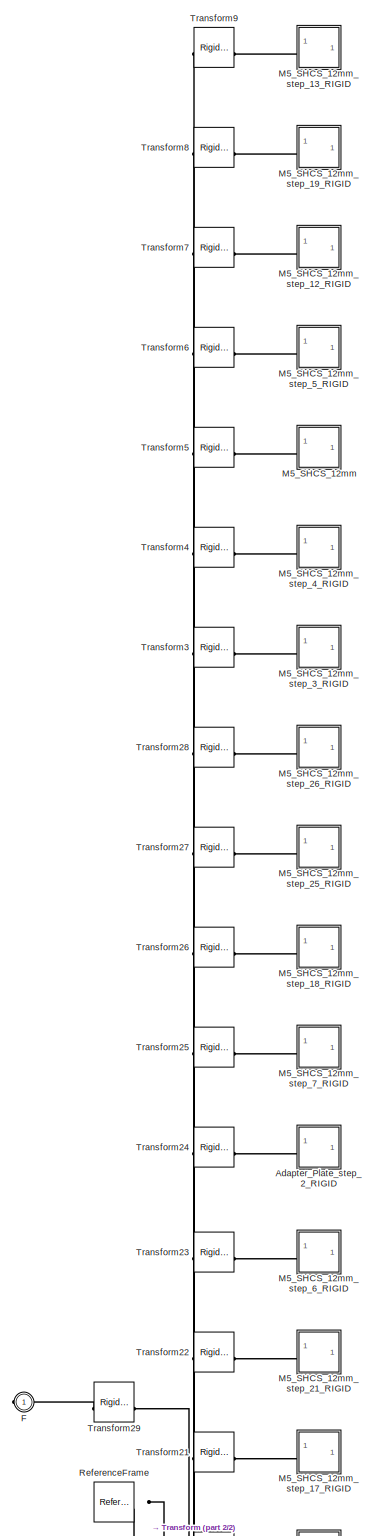
[diagram: HEBI Arm/Shoulder_Appendage/Shoulder_Appendage_Bracket_Assembly - part 1/2, full width, top band]
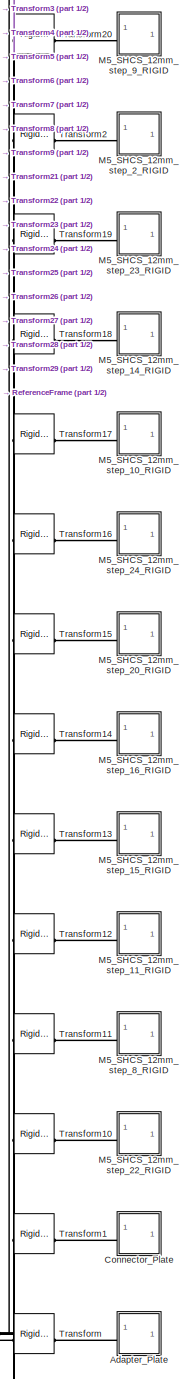
[diagram: HEBI Arm/Shoulder_Appendage/Shoulder_Appendage_Bracket_Assembly - part 2/2, middle right region]
BLOCK [SubSystem] HEBI Arm/Shoulder_Appendage/Shoulder_Appendage_Bracket_Assembly
BLOCK [SubSystem] HEBI Arm/Shoulder_Appendage/Shoulder_Appendage_Bracket_Assembly/Adapter_Plate
BLOCK [PMIOPort] HEBI Arm/Shoulder_Appendage/Shoulder_Appendage_Bracket_Assembly/Adapter_Plate/F
  Side = Left
BLOCK [Reference] HEBI Arm/Shoulder_Appendage/Shoulder_Appendage_Bracket_Assembly/Adapter_Plate/ReferenceFrame  REF=sm_lib/Frames and
Transforms/Reference
Frame
  SourceBlock = sm_lib/Frames and\nTransforms/Reference\nFrame
  SourceType = Reference\nFrame
BLOCK [Reference] HEBI Arm/Shoulder_Appendage/Shoulder_Appendage_Bracket_Assembly/Adapter_Plate/Solid  REF=sm_lib/Body Elements/File Solid
  SourceBlock = sm_lib/Body Elements/File Solid
  SourceType = File Solid
BLOCK [SubSystem] HEBI Arm/Shoulder_Appendage/Shoulder_Appendage_Bracket_Assembly/Adapter_Plate_step_2_RIGID
BLOCK [PMIOPort] HEBI Arm/Shoulder_Appendage/Shoulder_Appendage_Bracket_Assembly/Adapter_Plate_step_2_RIGID/F
  Side = Left
BLOCK [Reference] HEBI Arm/Shoulder_Appendage/Shoulder_Appendage_Bracket_Assembly/Adapter_Plate_step_2_RIGID/ReferenceFrame  REF=sm_lib/Frames and
Transforms/Reference
Frame
  SourceBlock = sm_lib/Frames and\nTransforms/Reference\nFrame
  SourceType = Reference\nFrame
BLOCK [Reference] HEBI Arm/Shoulder_Appendage/Shoulder_Appendage_Bracket_Assembly/Adapter_Plate_step_2_RIGID/Solid  REF=sm_lib/Body Elements/File Solid
  SourceBlock = sm_lib/Body Elements/File Solid
  SourceType = File Solid
BLOCK [SubSystem] HEBI Arm/Shoulder_Appendage/Shoulder_Appendage_Bracket_Assembly/Connector_Plate
BLOCK [PMIOPort] HEBI Arm/Shoulder_Appendage/Shoulder_Appendage_Bracket_Assembly/Connector_Plate/F
  Side = Left
BLOCK [Reference] HEBI Arm/Shoulder_Appendage/Shoulder_Appendage_Bracket_Assembly/Connector_Plate/ReferenceFrame  REF=sm_lib/Frames and
Transforms/Reference
Frame
  SourceBlock = sm_lib/Frames and\nTransforms/Reference\nFrame
  SourceType = Reference\nFrame
BLOCK [Reference] HEBI Arm/Shoulder_Appendage/Shoulder_Appendage_Bracket_Assembly/Connector_Plate/Solid  REF=sm_lib/Body Elements/File Solid
  SourceBlock = sm_lib/Body Elements/File Solid
  SourceType = File Solid
BLOCK [PMIOPort] HEBI Arm/Shoulder_Appendage/Shoulder_Appendage_Bracket_Assembly/F
  Side = Right
BLOCK [SubSystem] HEBI Arm/Shoulder_Appendage/Shoulder_Appendage_Bracket_Assembly/M5_SHCS_12mm
BLOCK [PMIOPort] HEBI Arm/Shoulder_Appendage/Shoulder_Appendage_Bracket_Assembly/M5_SHCS_12mm/F
  Side = Left
BLOCK [Reference] HEBI Arm/Shoulder_Appendage/Shoulder_Appendage_Bracket_Assembly/M5_SHCS_12mm/ReferenceFrame  REF=sm_lib/Frames and
Transforms/Reference
Frame
  SourceBlock = sm_lib/Frames and\nTransforms/Reference\nFrame
  SourceType = Reference\nFrame
BLOCK [Reference] HEBI Arm/Shoulder_Appendage/Shoulder_Appendage_Bracket_Assembly/M5_SHCS_12mm/Solid  REF=sm_lib/Body Elements/File Solid
  SourceBlock = sm_lib/Body Elements/File Solid
  SourceType = File Solid
BLOCK [SubSystem] HEBI Arm/Shoulder_Appendage/Shoulder_Appendage_Bracket_Assembly/M5_SHCS_12mm_step_10_RIGID
BLOCK [PMIOPort] HEBI Arm/Shoulder_Appendage/Shoulder_Appendage_Bracket_Assembly/M5_SHCS_12mm_step_10_RIGID/F
  Side = Left
BLOCK [Reference] HEBI Arm/Shoulder_Appendage/Shoulder_Appendage_Bracket_Assembly/M5_SHCS_12mm_step_10_RIGID/ReferenceFrame  REF=sm_lib/Frames and
Transforms/Reference
Frame
  SourceBlock = sm_lib/Frames and\nTransforms/Reference\nFrame
  SourceType = Reference\nFrame
BLOCK [Reference] HEBI Arm/Shoulder_Appendage/Shoulder_Appendage_Bracket_Assembly/M5_SHCS_12mm_step_10_RIGID/Solid  REF=sm_lib/Body Elements/File Solid
  SourceBlock = sm_lib/Body Elements/File Solid
  SourceType = File Solid
BLOCK [SubSystem] HEBI Arm/Shoulder_Appendage/Shoulder_Appendage_Bracket_Assembly/M5_SHCS_12mm_step_11_RIGID
BLOCK [PMIOPort] HEBI Arm/Shoulder_Appendage/Shoulder_Appendage_Bracket_Assembly/M5_SHCS_12mm_step_11_RIGID/F
  Side = Left
BLOCK [Reference] HEBI Arm/Shoulder_Appendage/Shoulder_Appendage_Bracket_Assembly/M5_SHCS_12mm_step_11_RIGID/ReferenceFrame  REF=sm_lib/Frames and
Transforms/Reference
Frame
  SourceBlock = sm_lib/Frames and\nTransforms/Reference\nFrame
  SourceType = Reference\nFrame
BLOCK [Reference] HEBI Arm/Shoulder_Appendage/Shoulder_Appendage_Bracket_Assembly/M5_SHCS_12mm_step_11_RIGID/Solid  REF=sm_lib/Body Elements/File Solid
  SourceBlock = sm_lib/Body Elements/File Solid
  SourceType = File Solid
BLOCK [SubSystem] HEBI Arm/Shoulder_Appendage/Shoulder_Appendage_Bracket_Assembly/M5_SHCS_12mm_step_12_RIGID
BLOCK [PMIOPort] HEBI Arm/Shoulder_Appendage/Shoulder_Appendage_Bracket_Assembly/M5_SHCS_12mm_step_12_RIGID/F
  Side = Left
BLOCK [Reference] HEBI Arm/Shoulder_Appendage/Shoulder_Appendage_Bracket_Assembly/M5_SHCS_12mm_step_12_RIGID/ReferenceFrame  REF=sm_lib/Frames and
Transforms/Reference
Frame
  SourceBlock = sm_lib/Frames and\nTransforms/Reference\nFrame
  SourceType = Reference\nFrame
BLOCK [Reference] HEBI Arm/Shoulder_Appendage/Shoulder_Appendage_Bracket_Assembly/M5_SHCS_12mm_step_12_RIGID/Solid  REF=sm_lib/Body Elements/File Solid
  SourceBlock = sm_lib/Body Elements/File Solid
  SourceType = File Solid
BLOCK [SubSystem] HEBI Arm/Shoulder_Appendage/Shoulder_Appendage_Bracket_Assembly/M5_SHCS_12mm_step_13_RIGID
BLOCK [PMIOPort] HEBI Arm/Shoulder_Appendage/Shoulder_Appendage_Bracket_Assembly/M5_SHCS_12mm_step_13_RIGID/F
  Side = Left
BLOCK [Reference] HEBI Arm/Shoulder_Appendage/Shoulder_Appendage_Bracket_Assembly/M5_SHCS_12mm_step_13_RIGID/ReferenceFrame  REF=sm_lib/Frames and
Transforms/Reference
Frame
  SourceBlock = sm_lib/Frames and\nTransforms/Reference\nFrame
  SourceType = Reference\nFrame
BLOCK [Reference] HEBI Arm/Shoulder_Appendage/Shoulder_Appendage_Bracket_Assembly/M5_SHCS_12mm_step_13_RIGID/Solid  REF=sm_lib/Body Elements/File Solid
  SourceBlock = sm_lib/Body Elements/File Solid
  SourceType = File Solid
BLOCK [SubSystem] HEBI Arm/Shoulder_Appendage/Shoulder_Appendage_Bracket_Assembly/M5_SHCS_12mm_step_14_RIGID
BLOCK [PMIOPort] HEBI Arm/Shoulder_Appendage/Shoulder_Appendage_Bracket_Assembly/M5_SHCS_12mm_step_14_RIGID/F
  Side = Left
BLOCK [Reference] HEBI Arm/Shoulder_Appendage/Shoulder_Appendage_Bracket_Assembly/M5_SHCS_12mm_step_14_RIGID/ReferenceFrame  REF=sm_lib/Frames and
Transforms/Reference
Frame
  SourceBlock = sm_lib/Frames and\nTransforms/Reference\nFrame
  SourceType = Reference\nFrame
BLOCK [Reference] HEBI Arm/Shoulder_Appendage/Shoulder_Appendage_Bracket_Assembly/M5_SHCS_12mm_step_14_RIGID/Solid  REF=sm_lib/Body Elements/File Solid
  SourceBlock = sm_lib/Body Elements/File Solid
  SourceType = File Solid
BLOCK [SubSystem] HEBI Arm/Shoulder_Appendage/Shoulder_Appendage_Bracket_Assembly/M5_SHCS_12mm_step_15_RIGID
BLOCK [PMIOPort] HEBI Arm/Shoulder_Appendage/Shoulder_Appendage_Bracket_Assembly/M5_SHCS_12mm_step_15_RIGID/F
  Side = Left
BLOCK [Reference] HEBI Arm/Shoulder_Appendage/Shoulder_Appendage_Bracket_Assembly/M5_SHCS_12mm_step_15_RIGID/ReferenceFrame  REF=sm_lib/Frames and
Transforms/Reference
Frame
  SourceBlock = sm_lib/Frames and\nTransforms/Reference\nFrame
  SourceType = Reference\nFrame
BLOCK [Reference] HEBI Arm/Shoulder_Appendage/Shoulder_Appendage_Bracket_Assembly/M5_SHCS_12mm_step_15_RIGID/Solid  REF=sm_lib/Body Elements/File Solid
  SourceBlock = sm_lib/Body Elements/File Solid
  SourceType = File Solid
BLOCK [SubSystem] HEBI Arm/Shoulder_Appendage/Shoulder_Appendage_Bracket_Assembly/M5_SHCS_12mm_step_16_RIGID
BLOCK [PMIOPort] HEBI Arm/Shoulder_Appendage/Shoulder_Appendage_Bracket_Assembly/M5_SHCS_12mm_step_16_RIGID/F
  Side = Left
BLOCK [Reference] HEBI Arm/Shoulder_Appendage/Shoulder_Appendage_Bracket_Assembly/M5_SHCS_12mm_step_16_RIGID/ReferenceFrame  REF=sm_lib/Frames and
Transforms/Reference
Frame
  SourceBlock = sm_lib/Frames and\nTransforms/Reference\nFrame
  SourceType = Reference\nFrame
BLOCK [Reference] HEBI Arm/Shoulder_Appendage/Shoulder_Appendage_Bracket_Assembly/M5_SHCS_12mm_step_16_RIGID/Solid  REF=sm_lib/Body Elements/File Solid
  SourceBlock = sm_lib/Body Elements/File Solid
  SourceType = File Solid
BLOCK [SubSystem] HEBI Arm/Shoulder_Appendage/Shoulder_Appendage_Bracket_Assembly/M5_SHCS_12mm_step_17_RIGID
BLOCK [PMIOPort] HEBI Arm/Shoulder_Appendage/Shoulder_Appendage_Bracket_Assembly/M5_SHCS_12mm_step_17_RIGID/F
  Side = Left
BLOCK [Reference] HEBI Arm/Shoulder_Appendage/Shoulder_Appendage_Bracket_Assembly/M5_SHCS_12mm_step_17_RIGID/ReferenceFrame  REF=sm_lib/Frames and
Transforms/Reference
Frame
  SourceBlock = sm_lib/Frames and\nTransforms/Reference\nFrame
  SourceType = Reference\nFrame
BLOCK [Reference] HEBI Arm/Shoulder_Appendage/Shoulder_Appendage_Bracket_Assembly/M5_SHCS_12mm_step_17_RIGID/Solid  REF=sm_lib/Body Elements/File Solid
  SourceBlock = sm_lib/Body Elements/File Solid
  SourceType = File Solid
BLOCK [SubSystem] HEBI Arm/Shoulder_Appendage/Shoulder_Appendage_Bracket_Assembly/M5_SHCS_12mm_step_18_RIGID
BLOCK [PMIOPort] HEBI Arm/Shoulder_Appendage/Shoulder_Appendage_Bracket_Assembly/M5_SHCS_12mm_step_18_RIGID/F
  Side = Left
BLOCK [Reference] HEBI Arm/Shoulder_Appendage/Shoulder_Appendage_Bracket_Assembly/M5_SHCS_12mm_step_18_RIGID/ReferenceFrame  REF=sm_lib/Frames and
Transforms/Reference
Frame
  SourceBlock = sm_lib/Frames and\nTransforms/Reference\nFrame
  SourceType = Reference\nFrame
BLOCK [Reference] HEBI Arm/Shoulder_Appendage/Shoulder_Appendage_Bracket_Assembly/M5_SHCS_12mm_step_18_RIGID/Solid  REF=sm_lib/Body Elements/File Solid
  SourceBlock = sm_lib/Body Elements/File Solid
  SourceType = File Solid
BLOCK [SubSystem] HEBI Arm/Shoulder_Appendage/Shoulder_Appendage_Bracket_Assembly/M5_SHCS_12mm_step_19_RIGID
BLOCK [PMIOPort] HEBI Arm/Shoulder_Appendage/Shoulder_Appendage_Bracket_Assembly/M5_SHCS_12mm_step_19_RIGID/F
  Side = Left
BLOCK [Reference] HEBI Arm/Shoulder_Appendage/Shoulder_Appendage_Bracket_Assembly/M5_SHCS_12mm_step_19_RIGID/ReferenceFrame  REF=sm_lib/Frames and
Transforms/Reference
Frame
  SourceBlock = sm_lib/Frames and\nTransforms/Reference\nFrame
  SourceType = Reference\nFrame
BLOCK [Reference] HEBI Arm/Shoulder_Appendage/Shoulder_Appendage_Bracket_Assembly/M5_SHCS_12mm_step_19_RIGID/Solid  REF=sm_lib/Body Elements/File Solid
  SourceBlock = sm_lib/Body Elements/File Solid
  SourceType = File Solid
BLOCK [SubSystem] HEBI Arm/Shoulder_Appendage/Shoulder_Appendage_Bracket_Assembly/M5_SHCS_12mm_step_20_RIGID
BLOCK [PMIOPort] HEBI Arm/Shoulder_Appendage/Shoulder_Appendage_Bracket_Assembly/M5_SHCS_12mm_step_20_RIGID/F
  Side = Left
BLOCK [Reference] HEBI Arm/Shoulder_Appendage/Shoulder_Appendage_Bracket_Assembly/M5_SHCS_12mm_step_20_RIGID/ReferenceFrame  REF=sm_lib/Frames and
Transforms/Reference
Frame
  SourceBlock = sm_lib/Frames and\nTransforms/Reference\nFrame
  SourceType = Reference\nFrame
BLOCK [Reference] HEBI Arm/Shoulder_Appendage/Shoulder_Appendage_Bracket_Assembly/M5_SHCS_12mm_step_20_RIGID/Solid  REF=sm_lib/Body Elements/File Solid
  SourceBlock = sm_lib/Body Elements/File Solid
  SourceType = File Solid
BLOCK [SubSystem] HEBI Arm/Shoulder_Appendage/Shoulder_Appendage_Bracket_Assembly/M5_SHCS_12mm_step_21_RIGID
BLOCK [PMIOPort] HEBI Arm/Shoulder_Appendage/Shoulder_Appendage_Bracket_Assembly/M5_SHCS_12mm_step_21_RIGID/F
  Side = Left
BLOCK [Reference] HEBI Arm/Shoulder_Appendage/Shoulder_Appendage_Bracket_Assembly/M5_SHCS_12mm_step_21_RIGID/ReferenceFrame  REF=sm_lib/Frames and
Transforms/Reference
Frame
  SourceBlock = sm_lib/Frames and\nTransforms/Reference\nFrame
  SourceType = Reference\nFrame
BLOCK [Reference] HEBI Arm/Shoulder_Appendage/Shoulder_Appendage_Bracket_Assembly/M5_SHCS_12mm_step_21_RIGID/Solid  REF=sm_lib/Body Elements/File Solid
  SourceBlock = sm_lib/Body Elements/File Solid
  SourceType = File Solid
BLOCK [SubSystem] HEBI Arm/Shoulder_Appendage/Shoulder_Appendage_Bracket_Assembly/M5_SHCS_12mm_step_22_RIGID
BLOCK [PMIOPort] HEBI Arm/Shoulder_Appendage/Shoulder_Appendage_Bracket_Assembly/M5_SHCS_12mm_step_22_RIGID/F
  Side = Left
BLOCK [Reference] HEBI Arm/Shoulder_Appendage/Shoulder_Appendage_Bracket_Assembly/M5_SHCS_12mm_step_22_RIGID/ReferenceFrame  REF=sm_lib/Frames and
Transforms/Reference
Frame
  SourceBlock = sm_lib/Frames and\nTransforms/Reference\nFrame
  SourceType = Reference\nFrame
BLOCK [Reference] HEBI Arm/Shoulder_Appendage/Shoulder_Appendage_Bracket_Assembly/M5_SHCS_12mm_step_22_RIGID/Solid  REF=sm_lib/Body Elements/File Solid
  SourceBlock = sm_lib/Body Elements/File Solid
  SourceType = File Solid
BLOCK [SubSystem] HEBI Arm/Shoulder_Appendage/Shoulder_Appendage_Bracket_Assembly/M5_SHCS_12mm_step_23_RIGID
BLOCK [PMIOPort] HEBI Arm/Shoulder_Appendage/Shoulder_Appendage_Bracket_Assembly/M5_SHCS_12mm_step_23_RIGID/F
  Side = Left
BLOCK [Reference] HEBI Arm/Shoulder_Appendage/Shoulder_Appendage_Bracket_Assembly/M5_SHCS_12mm_step_23_RIGID/ReferenceFrame  REF=sm_lib/Frames and
Transforms/Reference
Frame
  SourceBlock = sm_lib/Frames and\nTransforms/Reference\nFrame
  SourceType = Reference\nFrame
BLOCK [Reference] HEBI Arm/Shoulder_Appendage/Shoulder_Appendage_Bracket_Assembly/M5_SHCS_12mm_step_23_RIGID/Solid  REF=sm_lib/Body Elements/File Solid
  SourceBlock = sm_lib/Body Elements/File Solid
  SourceType = File Solid
BLOCK [SubSystem] HEBI Arm/Shoulder_Appendage/Shoulder_Appendage_Bracket_Assembly/M5_SHCS_12mm_step_24_RIGID
BLOCK [PMIOPort] HEBI Arm/Shoulder_Appendage/Shoulder_Appendage_Bracket_Assembly/M5_SHCS_12mm_step_24_RIGID/F
  Side = Left
BLOCK [Reference] HEBI Arm/Shoulder_Appendage/Shoulder_Appendage_Bracket_Assembly/M5_SHCS_12mm_step_24_RIGID/ReferenceFrame  REF=sm_lib/Frames and
Transforms/Reference
Frame
  SourceBlock = sm_lib/Frames and\nTransforms/Reference\nFrame
  SourceType = Reference\nFrame
BLOCK [Reference] HEBI Arm/Shoulder_Appendage/Shoulder_Appendage_Bracket_Assembly/M5_SHCS_12mm_step_24_RIGID/Solid  REF=sm_lib/Body Elements/File Solid
  SourceBlock = sm_lib/Body Elements/File Solid
  SourceType = File Solid
BLOCK [SubSystem] HEBI Arm/Shoulder_Appendage/Shoulder_Appendage_Bracket_Assembly/M5_SHCS_12mm_step_25_RIGID
BLOCK [PMIOPort] HEBI Arm/Shoulder_Appendage/Shoulder_Appendage_Bracket_Assembly/M5_SHCS_12mm_step_25_RIGID/F
  Side = Left
BLOCK [Reference] HEBI Arm/Shoulder_Appendage/Shoulder_Appendage_Bracket_Assembly/M5_SHCS_12mm_step_25_RIGID/ReferenceFrame  REF=sm_lib/Frames and
Transforms/Reference
Frame
  SourceBlock = sm_lib/Frames and\nTransforms/Reference\nFrame
  SourceType = Reference\nFrame
BLOCK [Reference] HEBI Arm/Shoulder_Appendage/Shoulder_Appendage_Bracket_Assembly/M5_SHCS_12mm_step_25_RIGID/Solid  REF=sm_lib/Body Elements/File Solid
  SourceBlock = sm_lib/Body Elements/File Solid
  SourceType = File Solid
BLOCK [SubSystem] HEBI Arm/Shoulder_Appendage/Shoulder_Appendage_Bracket_Assembly/M5_SHCS_12mm_step_26_RIGID
BLOCK [PMIOPort] HEBI Arm/Shoulder_Appendage/Shoulder_Appendage_Bracket_Assembly/M5_SHCS_12mm_step_26_RIGID/F
  Side = Left
BLOCK [Reference] HEBI Arm/Shoulder_Appendage/Shoulder_Appendage_Bracket_Assembly/M5_SHCS_12mm_step_26_RIGID/ReferenceFrame  REF=sm_lib/Frames and
Transforms/Reference
Frame
  SourceBlock = sm_lib/Frames and\nTransforms/Reference\nFrame
  SourceType = Reference\nFrame
BLOCK [Reference] HEBI Arm/Shoulder_Appendage/Shoulder_Appendage_Bracket_Assembly/M5_SHCS_12mm_step_26_RIGID/Solid  REF=sm_lib/Body Elements/File Solid
  SourceBlock = sm_lib/Body Elements/File Solid
  SourceType = File Solid
BLOCK [SubSystem] HEBI Arm/Shoulder_Appendage/Shoulder_Appendage_Bracket_Assembly/M5_SHCS_12mm_step_2_RIGID
BLOCK [PMIOPort] HEBI Arm/Shoulder_Appendage/Shoulder_Appendage_Bracket_Assembly/M5_SHCS_12mm_step_2_RIGID/F
  Side = Left
BLOCK [Reference] HEBI Arm/Shoulder_Appendage/Shoulder_Appendage_Bracket_Assembly/M5_SHCS_12mm_step_2_RIGID/ReferenceFrame  REF=sm_lib/Frames and
Transforms/Reference
Frame
  SourceBlock = sm_lib/Frames and\nTransforms/Reference\nFrame
  SourceType = Reference\nFrame
BLOCK [Reference] HEBI Arm/Shoulder_Appendage/Shoulder_Appendage_Bracket_Assembly/M5_SHCS_12mm_step_2_RIGID/Solid  REF=sm_lib/Body Elements/File Solid
  SourceBlock = sm_lib/Body Elements/File Solid
  SourceType = File Solid
BLOCK [SubSystem] HEBI Arm/Shoulder_Appendage/Shoulder_Appendage_Bracket_Assembly/M5_SHCS_12mm_step_3_RIGID
BLOCK [PMIOPort] HEBI Arm/Shoulder_Appendage/Shoulder_Appendage_Bracket_Assembly/M5_SHCS_12mm_step_3_RIGID/F
  Side = Left
BLOCK [Reference] HEBI Arm/Shoulder_Appendage/Shoulder_Appendage_Bracket_Assembly/M5_SHCS_12mm_step_3_RIGID/ReferenceFrame  REF=sm_lib/Frames and
Transforms/Reference
Frame
  SourceBlock = sm_lib/Frames and\nTransforms/Reference\nFrame
  SourceType = Reference\nFrame
BLOCK [Reference] HEBI Arm/Shoulder_Appendage/Shoulder_Appendage_Bracket_Assembly/M5_SHCS_12mm_step_3_RIGID/Solid  REF=sm_lib/Body Elements/File Solid
  SourceBlock = sm_lib/Body Elements/File Solid
  SourceType = File Solid
BLOCK [SubSystem] HEBI Arm/Shoulder_Appendage/Shoulder_Appendage_Bracket_Assembly/M5_SHCS_12mm_step_4_RIGID
BLOCK [PMIOPort] HEBI Arm/Shoulder_Appendage/Shoulder_Appendage_Bracket_Assembly/M5_SHCS_12mm_step_4_RIGID/F
  Side = Left
BLOCK [Reference] HEBI Arm/Shoulder_Appendage/Shoulder_Appendage_Bracket_Assembly/M5_SHCS_12mm_step_4_RIGID/ReferenceFrame  REF=sm_lib/Frames and
Transforms/Reference
Frame
  SourceBlock = sm_lib/Frames and\nTransforms/Reference\nFrame
  SourceType = Reference\nFrame
BLOCK [Reference] HEBI Arm/Shoulder_Appendage/Shoulder_Appendage_Bracket_Assembly/M5_SHCS_12mm_step_4_RIGID/Solid  REF=sm_lib/Body Elements/File Solid
  SourceBlock = sm_lib/Body Elements/File Solid
  SourceType = File Solid
BLOCK [SubSystem] HEBI Arm/Shoulder_Appendage/Shoulder_Appendage_Bracket_Assembly/M5_SHCS_12mm_step_5_RIGID
BLOCK [PMIOPort] HEBI Arm/Shoulder_Appendage/Shoulder_Appendage_Bracket_Assembly/M5_SHCS_12mm_step_5_RIGID/F
  Side = Left
BLOCK [Reference] HEBI Arm/Shoulder_Appendage/Shoulder_Appendage_Bracket_Assembly/M5_SHCS_12mm_step_5_RIGID/ReferenceFrame  REF=sm_lib/Frames and
Transforms/Reference
Frame
  SourceBlock = sm_lib/Frames and\nTransforms/Reference\nFrame
  SourceType = Reference\nFrame
BLOCK [Reference] HEBI Arm/Shoulder_Appendage/Shoulder_Appendage_Bracket_Assembly/M5_SHCS_12mm_step_5_RIGID/Solid  REF=sm_lib/Body Elements/File Solid
  SourceBlock = sm_lib/Body Elements/File Solid
  SourceType = File Solid
BLOCK [SubSystem] HEBI Arm/Shoulder_Appendage/Shoulder_Appendage_Bracket_Assembly/M5_SHCS_12mm_step_6_RIGID
BLOCK [PMIOPort] HEBI Arm/Shoulder_Appendage/Shoulder_Appendage_Bracket_Assembly/M5_SHCS_12mm_step_6_RIGID/F
  Side = Left
BLOCK [Reference] HEBI Arm/Shoulder_Appendage/Shoulder_Appendage_Bracket_Assembly/M5_SHCS_12mm_step_6_RIGID/ReferenceFrame  REF=sm_lib/Frames and
Transforms/Reference
Frame
  SourceBlock = sm_lib/Frames and\nTransforms/Reference\nFrame
  SourceType = Reference\nFrame
BLOCK [Reference] HEBI Arm/Shoulder_Appendage/Shoulder_Appendage_Bracket_Assembly/M5_SHCS_12mm_step_6_RIGID/Solid  REF=sm_lib/Body Elements/File Solid
  SourceBlock = sm_lib/Body Elements/File Solid
  SourceType = File Solid
BLOCK [SubSystem] HEBI Arm/Shoulder_Appendage/Shoulder_Appendage_Bracket_Assembly/M5_SHCS_12mm_step_7_RIGID
BLOCK [PMIOPort] HEBI Arm/Shoulder_Appendage/Shoulder_Appendage_Bracket_Assembly/M5_SHCS_12mm_step_7_RIGID/F
  Side = Left
BLOCK [Reference] HEBI Arm/Shoulder_Appendage/Shoulder_Appendage_Bracket_Assembly/M5_SHCS_12mm_step_7_RIGID/ReferenceFrame  REF=sm_lib/Frames and
Transforms/Reference
Frame
  SourceBlock = sm_lib/Frames and\nTransforms/Reference\nFrame
  SourceType = Reference\nFrame
BLOCK [Reference] HEBI Arm/Shoulder_Appendage/Shoulder_Appendage_Bracket_Assembly/M5_SHCS_12mm_step_7_RIGID/Solid  REF=sm_lib/Body Elements/File Solid
  SourceBlock = sm_lib/Body Elements/File Solid
  SourceType = File Solid
BLOCK [SubSystem] HEBI Arm/Shoulder_Appendage/Shoulder_Appendage_Bracket_Assembly/M5_SHCS_12mm_step_8_RIGID
BLOCK [PMIOPort] HEBI Arm/Shoulder_Appendage/Shoulder_Appendage_Bracket_Assembly/M5_SHCS_12mm_step_8_RIGID/F
  Side = Left
BLOCK [Reference] HEBI Arm/Shoulder_Appendage/Shoulder_Appendage_Bracket_Assembly/M5_SHCS_12mm_step_8_RIGID/ReferenceFrame  REF=sm_lib/Frames and
Transforms/Reference
Frame
  SourceBlock = sm_lib/Frames and\nTransforms/Reference\nFrame
  SourceType = Reference\nFrame
BLOCK [Reference] HEBI Arm/Shoulder_Appendage/Shoulder_Appendage_Bracket_Assembly/M5_SHCS_12mm_step_8_RIGID/Solid  REF=sm_lib/Body Elements/File Solid
  SourceBlock = sm_lib/Body Elements/File Solid
  SourceType = File Solid
BLOCK [SubSystem] HEBI Arm/Shoulder_Appendage/Shoulder_Appendage_Bracket_Assembly/M5_SHCS_12mm_step_9_RIGID
BLOCK [PMIOPort] HEBI Arm/Shoulder_Appendage/Shoulder_Appendage_Bracket_Assembly/M5_SHCS_12mm_step_9_RIGID/F
  Side = Left
BLOCK [Reference] HEBI Arm/Shoulder_Appendage/Shoulder_Appendage_Bracket_Assembly/M5_SHCS_12mm_step_9_RIGID/ReferenceFrame  REF=sm_lib/Frames and
Transforms/Reference
Frame
  SourceBlock = sm_lib/Frames and\nTransforms/Reference\nFrame
  SourceType = Reference\nFrame
BLOCK [Reference] HEBI Arm/Shoulder_Appendage/Shoulder_Appendage_Bracket_Assembly/M5_SHCS_12mm_step_9_RIGID/Solid  REF=sm_lib/Body Elements/File Solid
  SourceBlock = sm_lib/Body Elements/File Solid
  SourceType = File Solid
BLOCK [Reference] HEBI Arm/Shoulder_Appendage/Shoulder_Appendage_Bracket_Assembly/ReferenceFrame  REF=sm_lib/Frames and
Transforms/Reference
Frame
  SourceBlock = sm_lib/Frames and\nTransforms/Reference\nFrame
  SourceType = Reference\nFrame
BLOCK [Reference] HEBI Arm/Shoulder_Appendage/Shoulder_Appendage_Bracket_Assembly/Transform  REF=sm_lib/Frames and
Transforms/Rigid
Transform
  SourceBlock = sm_lib/Frames and\nTransforms/Rigid\nTransform
  SourceType = Rigid\nTransform
BLOCK [Reference] HEBI Arm/Shoulder_Appendage/Shoulder_Appendage_Bracket_Assembly/Transform1  REF=sm_lib/Frames and
Transforms/Rigid
Transform
  SourceBlock = sm_lib/Frames and\nTransforms/Rigid\nTransform
  SourceType = Rigid\nTransform
BLOCK [Reference] HEBI Arm/Shoulder_Appendage/Shoulder_Appendage_Bracket_Assembly/Transform10  REF=sm_lib/Frames and
Transforms/Rigid
Transform
  SourceBlock = sm_lib/Frames and\nTransforms/Rigid\nTransform
  SourceType = Rigid\nTransform
BLOCK [Reference] HEBI Arm/Shoulder_Appendage/Shoulder_Appendage_Bracket_Assembly/Transform11  REF=sm_lib/Frames and
Transforms/Rigid
Transform
  SourceBlock = sm_lib/Frames and\nTransforms/Rigid\nTransform
  SourceType = Rigid\nTransform
BLOCK [Reference] HEBI Arm/Shoulder_Appendage/Shoulder_Appendage_Bracket_Assembly/Transform12  REF=sm_lib/Frames and
Transforms/Rigid
Transform
  SourceBlock = sm_lib/Frames and\nTransforms/Rigid\nTransform
  SourceType = Rigid\nTransform
BLOCK [Reference] HEBI Arm/Shoulder_Appendage/Shoulder_Appendage_Bracket_Assembly/Transform13  REF=sm_lib/Frames and
Transforms/Rigid
Transform
  SourceBlock = sm_lib/Frames and\nTransforms/Rigid\nTransform
  SourceType = Rigid\nTransform
BLOCK [Reference] HEBI Arm/Shoulder_Appendage/Shoulder_Appendage_Bracket_Assembly/Transform14  REF=sm_lib/Frames and
Transforms/Rigid
Transform
  SourceBlock = sm_lib/Frames and\nTransforms/Rigid\nTransform
  SourceType = Rigid\nTransform
BLOCK [Reference] HEBI Arm/Shoulder_Appendage/Shoulder_Appendage_Bracket_Assembly/Transform15  REF=sm_lib/Frames and
Transforms/Rigid
Transform
  SourceBlock = sm_lib/Frames and\nTransforms/Rigid\nTransform
  SourceType = Rigid\nTransform
BLOCK [Reference] HEBI Arm/Shoulder_Appendage/Shoulder_Appendage_Bracket_Assembly/Transform16  REF=sm_lib/Frames and
Transforms/Rigid
Transform
  SourceBlock = sm_lib/Frames and\nTransforms/Rigid\nTransform
  SourceType = Rigid\nTransform
BLOCK [Reference] HEBI Arm/Shoulder_Appendage/Shoulder_Appendage_Bracket_Assembly/Transform17  REF=sm_lib/Frames and
Transforms/Rigid
Transform
  SourceBlock = sm_lib/Frames and\nTransforms/Rigid\nTransform
  SourceType = Rigid\nTransform
BLOCK [Reference] HEBI Arm/Shoulder_Appendage/Shoulder_Appendage_Bracket_Assembly/Transform18  REF=sm_lib/Frames and
Transforms/Rigid
Transform
  SourceBlock = sm_lib/Frames and\nTransforms/Rigid\nTransform
  SourceType = Rigid\nTransform
BLOCK [Reference] HEBI Arm/Shoulder_Appendage/Shoulder_Appendage_Bracket_Assembly/Transform19  REF=sm_lib/Frames and
Transforms/Rigid
Transform
  SourceBlock = sm_lib/Frames and\nTransforms/Rigid\nTransform
  SourceType = Rigid\nTransform
BLOCK [Reference] HEBI Arm/Shoulder_Appendage/Shoulder_Appendage_Bracket_Assembly/Transform2  REF=sm_lib/Frames and
Transforms/Rigid
Transform
  SourceBlock = sm_lib/Frames and\nTransforms/Rigid\nTransform
  SourceType = Rigid\nTransform
BLOCK [Reference] HEBI Arm/Shoulder_Appendage/Shoulder_Appendage_Bracket_Assembly/Transform20  REF=sm_lib/Frames and
Transforms/Rigid
Transform
  SourceBlock = sm_lib/Frames and\nTransforms/Rigid\nTransform
  SourceType = Rigid\nTransform
BLOCK [Reference] HEBI Arm/Shoulder_Appendage/Shoulder_Appendage_Bracket_Assembly/Transform21  REF=sm_lib/Frames and
Transforms/Rigid
Transform
  SourceBlock = sm_lib/Frames and\nTransforms/Rigid\nTransform
  SourceType = Rigid\nTransform
BLOCK [Reference] HEBI Arm/Shoulder_Appendage/Shoulder_Appendage_Bracket_Assembly/Transform22  REF=sm_lib/Frames and
Transforms/Rigid
Transform
  SourceBlock = sm_lib/Frames and\nTransforms/Rigid\nTransform
  SourceType = Rigid\nTransform
BLOCK [Reference] HEBI Arm/Shoulder_Appendage/Shoulder_Appendage_Bracket_Assembly/Transform23  REF=sm_lib/Frames and
Transforms/Rigid
Transform
  SourceBlock = sm_lib/Frames and\nTransforms/Rigid\nTransform
  SourceType = Rigid\nTransform
BLOCK [Reference] HEBI Arm/Shoulder_Appendage/Shoulder_Appendage_Bracket_Assembly/Transform24  REF=sm_lib/Frames and
Transforms/Rigid
Transform
  SourceBlock = sm_lib/Frames and\nTransforms/Rigid\nTransform
  SourceType = Rigid\nTransform
BLOCK [Reference] HEBI Arm/Shoulder_Appendage/Shoulder_Appendage_Bracket_Assembly/Transform25  REF=sm_lib/Frames and
Transforms/Rigid
Transform
  SourceBlock = sm_lib/Frames and\nTransforms/Rigid\nTransform
  SourceType = Rigid\nTransform
BLOCK [Reference] HEBI Arm/Shoulder_Appendage/Shoulder_Appendage_Bracket_Assembly/Transform26  REF=sm_lib/Frames and
Transforms/Rigid
Transform
  SourceBlock = sm_lib/Frames and\nTransforms/Rigid\nTransform
  SourceType = Rigid\nTransform
BLOCK [Reference] HEBI Arm/Shoulder_Appendage/Shoulder_Appendage_Bracket_Assembly/Transform27  REF=sm_lib/Frames and
Transforms/Rigid
Transform
  SourceBlock = sm_lib/Frames and\nTransforms/Rigid\nTransform
  SourceType = Rigid\nTransform
BLOCK [Reference] HEBI Arm/Shoulder_Appendage/Shoulder_Appendage_Bracket_Assembly/Transform28  REF=sm_lib/Frames and
Transforms/Rigid
Transform
  SourceBlock = sm_lib/Frames and\nTransforms/Rigid\nTransform
  SourceType = Rigid\nTransform
BLOCK [Reference] HEBI Arm/Shoulder_Appendage/Shoulder_Appendage_Bracket_Assembly/Transform29  REF=sm_lib/Frames and
Transforms/Rigid
Transform
  SourceBlock = sm_lib/Frames and\nTransforms/Rigid\nTransform
  SourceType = Rigid\nTransform
BLOCK [Reference] HEBI Arm/Shoulder_Appendage/Shoulder_Appendage_Bracket_Assembly/Transform3  REF=sm_lib/Frames and
Transforms/Rigid
Transform
  SourceBlock = sm_lib/Frames and\nTransforms/Rigid\nTransform
  SourceType = Rigid\nTransform
BLOCK [Reference] HEBI Arm/Shoulder_Appendage/Shoulder_Appendage_Bracket_Assembly/Transform4  REF=sm_lib/Frames and
Transforms/Rigid
Transform
  SourceBlock = sm_lib/Frames and\nTransforms/Rigid\nTransform
  SourceType = Rigid\nTransform
BLOCK [Reference] HEBI Arm/Shoulder_Appendage/Shoulder_Appendage_Bracket_Assembly/Transform5  REF=sm_lib/Frames and
Transforms/Rigid
Transform
  SourceBlock = sm_lib/Frames and\nTransforms/Rigid\nTransform
  SourceType = Rigid\nTransform
BLOCK [Reference] HEBI Arm/Shoulder_Appendage/Shoulder_Appendage_Bracket_Assembly/Transform6  REF=sm_lib/Frames and
Transforms/Rigid
Transform
  SourceBlock = sm_lib/Frames and\nTransforms/Rigid\nTransform
  SourceType = Rigid\nTransform
BLOCK [Reference] HEBI Arm/Shoulder_Appendage/Shoulder_Appendage_Bracket_Assembly/Transform7  REF=sm_lib/Frames and
Transforms/Rigid
Transform
  SourceBlock = sm_lib/Frames and\nTransforms/Rigid\nTransform
  SourceType = Rigid\nTransform
BLOCK [Reference] HEBI Arm/Shoulder_Appendage/Shoulder_Appendage_Bracket_Assembly/Transform8  REF=sm_lib/Frames and
Transforms/Rigid
Transform
  SourceBlock = sm_lib/Frames and\nTransforms/Rigid\nTransform
  SourceType = Rigid\nTransform
BLOCK [Reference] HEBI Arm/Shoulder_Appendage/Shoulder_Appendage_Bracket_Assembly/Transform9  REF=sm_lib/Frames and
Transforms/Rigid
Transform
  SourceBlock = sm_lib/Frames and\nTransforms/Rigid\nTransform
  SourceType = Rigid\nTransform
BLOCK [Reference] HEBI Arm/Shoulder_Appendage/Transform  REF=sm_lib/Frames and
Transforms/Rigid
Transform
  SourceBlock = sm_lib/Frames and\nTransforms/Rigid\nTransform
  SourceType = Rigid\nTransform
BLOCK [Reference] HEBI Arm/Shoulder_Appendage/Transform1  REF=sm_lib/Frames and
Transforms/Rigid
Transform
  SourceBlock = sm_lib/Frames and\nTransforms/Rigid\nTransform
  SourceType = Rigid\nTransform
BLOCK [SubSystem] HEBI Arm/Shoulder_Appendage/X8_Actuator
BLOCK [PMIOPort] HEBI Arm/Shoulder_Appendage/X8_Actuator/F
  Side = Right
BLOCK [SubSystem] HEBI Arm/Shoulder_Appendage/X8_Actuator/M3_BHCS_40mm
BLOCK [PMIOPort] HEBI Arm/Shoulder_Appendage/X8_Actuator/M3_BHCS_40mm/F
  Side = Left
BLOCK [Reference] HEBI Arm/Shoulder_Appendage/X8_Actuator/M3_BHCS_40mm/ReferenceFrame  REF=sm_lib/Frames and
Transforms/Reference
Frame
  SourceBlock = sm_lib/Frames and\nTransforms/Reference\nFrame
  SourceType = Reference\nFrame
BLOCK [Reference] HEBI Arm/Shoulder_Appendage/X8_Actuator/M3_BHCS_40mm/Solid  REF=sm_lib/Body Elements/File Solid
  SourceBlock = sm_lib/Body Elements/File Solid
  SourceType = File Solid
BLOCK [SubSystem] HEBI Arm/Shoulder_Appendage/X8_Actuator/M3_BHCS_40mm_step_2_RIGID
BLOCK [PMIOPort] HEBI Arm/Shoulder_Appendage/X8_Actuator/M3_BHCS_40mm_step_2_RIGID/F
  Side = Left
BLOCK [Reference] HEBI Arm/Shoulder_Appendage/X8_Actuator/M3_BHCS_40mm_step_2_RIGID/ReferenceFrame  REF=sm_lib/Frames and
Transforms/Reference
Frame
  SourceBlock = sm_lib/Frames and\nTransforms/Reference\nFrame
  SourceType = Reference\nFrame
BLOCK [Reference] HEBI Arm/Shoulder_Appendage/X8_Actuator/M3_BHCS_40mm_step_2_RIGID/Solid  REF=sm_lib/Body Elements/File Solid
  SourceBlock = sm_lib/Body Elements/File Solid
  SourceType = File Solid
BLOCK [SubSystem] HEBI Arm/Shoulder_Appendage/X8_Actuator/M3_BHCS_40mm_step_3_RIGID
BLOCK [PMIOPort] HEBI Arm/Shoulder_Appendage/X8_Actuator/M3_BHCS_40mm_step_3_RIGID/F
  Side = Left
BLOCK [Reference] HEBI Arm/Shoulder_Appendage/X8_Actuator/M3_BHCS_40mm_step_3_RIGID/ReferenceFrame  REF=sm_lib/Frames and
Transforms/Reference
Frame
  SourceBlock = sm_lib/Frames and\nTransforms/Reference\nFrame
  SourceType = Reference\nFrame
BLOCK [Reference] HEBI Arm/Shoulder_Appendage/X8_Actuator/M3_BHCS_40mm_step_3_RIGID/Solid  REF=sm_lib/Body Elements/File Solid
  SourceBlock = sm_lib/Body Elements/File Solid
  SourceType = File Solid
BLOCK [SubSystem] HEBI Arm/Shoulder_Appendage/X8_Actuator/M3_BHCS_40mm_step_4_RIGID
BLOCK [PMIOPort] HEBI Arm/Shoulder_Appendage/X8_Actuator/M3_BHCS_40mm_step_4_RIGID/F
  Side = Left
BLOCK [Reference] HEBI Arm/Shoulder_Appendage/X8_Actuator/M3_BHCS_40mm_step_4_RIGID/ReferenceFrame  REF=sm_lib/Frames and
Transforms/Reference
Frame
  SourceBlock = sm_lib/Frames and\nTransforms/Reference\nFrame
  SourceType = Reference\nFrame
BLOCK [Reference] HEBI Arm/Shoulder_Appendage/X8_Actuator/M3_BHCS_40mm_step_4_RIGID/Solid  REF=sm_lib/Body Elements/File Solid
  SourceBlock = sm_lib/Body Elements/File Solid
  SourceType = File Solid
BLOCK [SubSystem] HEBI Arm/Shoulder_Appendage/X8_Actuator/M3_BHCS_40mm_step_5_RIGID
BLOCK [PMIOPort] HEBI Arm/Shoulder_Appendage/X8_Actuator/M3_BHCS_40mm_step_5_RIGID/F
  Side = Left
BLOCK [Reference] HEBI Arm/Shoulder_Appendage/X8_Actuator/M3_BHCS_40mm_step_5_RIGID/ReferenceFrame  REF=sm_lib/Frames and
Transforms/Reference
Frame
  SourceBlock = sm_lib/Frames and\nTransforms/Reference\nFrame
  SourceType = Reference\nFrame
BLOCK [Reference] HEBI Arm/Shoulder_Appendage/X8_Actuator/M3_BHCS_40mm_step_5_RIGID/Solid  REF=sm_lib/Body Elements/File Solid
  SourceBlock = sm_lib/Body Elements/File Solid
  SourceType = File Solid
BLOCK [SubSystem] HEBI Arm/Shoulder_Appendage/X8_Actuator/M3_BHCS_40mm_step_6_RIGID
BLOCK [PMIOPort] HEBI Arm/Shoulder_Appendage/X8_Actuator/M3_BHCS_40mm_step_6_RIGID/F
  Side = Left
BLOCK [Reference] HEBI Arm/Shoulder_Appendage/X8_Actuator/M3_BHCS_40mm_step_6_RIGID/ReferenceFrame  REF=sm_lib/Frames and
Transforms/Reference
Frame
  SourceBlock = sm_lib/Frames and\nTransforms/Reference\nFrame
  SourceType = Reference\nFrame
BLOCK [Reference] HEBI Arm/Shoulder_Appendage/X8_Actuator/M3_BHCS_40mm_step_6_RIGID/Solid  REF=sm_lib/Body Elements/File Solid
  SourceBlock = sm_lib/Body Elements/File Solid
  SourceType = File Solid
BLOCK [SubSystem] HEBI Arm/Shoulder_Appendage/X8_Actuator/M3_BHCS_40mm_step_7_RIGID
BLOCK [PMIOPort] HEBI Arm/Shoulder_Appendage/X8_Actuator/M3_BHCS_40mm_step_7_RIGID/F
  Side = Left
BLOCK [Reference] HEBI Arm/Shoulder_Appendage/X8_Actuator/M3_BHCS_40mm_step_7_RIGID/ReferenceFrame  REF=sm_lib/Frames and
Transforms/Reference
Frame
  SourceBlock = sm_lib/Frames and\nTransforms/Reference\nFrame
  SourceType = Reference\nFrame
BLOCK [Reference] HEBI Arm/Shoulder_Appendage/X8_Actuator/M3_BHCS_40mm_step_7_RIGID/Solid  REF=sm_lib/Body Elements/File Solid
  SourceBlock = sm_lib/Body Elements/File Solid
  SourceType = File Solid
BLOCK [SubSystem] HEBI Arm/Shoulder_Appendage/X8_Actuator/M3_BHCS_40mm_step_8_RIGID
BLOCK [PMIOPort] HEBI Arm/Shoulder_Appendage/X8_Actuator/M3_BHCS_40mm_step_8_RIGID/F
  Side = Left
BLOCK [Reference] HEBI Arm/Shoulder_Appendage/X8_Actuator/M3_BHCS_40mm_step_8_RIGID/ReferenceFrame  REF=sm_lib/Frames and
Transforms/Reference
Frame
  SourceBlock = sm_lib/Frames and\nTransforms/Reference\nFrame
  SourceType = Reference\nFrame
BLOCK [Reference] HEBI Arm/Shoulder_Appendage/X8_Actuator/M3_BHCS_40mm_step_8_RIGID/Solid  REF=sm_lib/Body Elements/File Solid
  SourceBlock = sm_lib/Body Elements/File Solid
  SourceType = File Solid
BLOCK [SubSystem] HEBI Arm/Shoulder_Appendage/X8_Actuator/Power_Port
BLOCK [PMIOPort] HEBI Arm/Shoulder_Appendage/X8_Actuator/Power_Port/F
  Side = Left
BLOCK [Reference] HEBI Arm/Shoulder_Appendage/X8_Actuator/Power_Port/ReferenceFrame  REF=sm_lib/Frames and
Transforms/Reference
Frame
  SourceBlock = sm_lib/Frames and\nTransforms/Reference\nFrame
  SourceType = Reference\nFrame
BLOCK [Reference] HEBI Arm/Shoulder_Appendage/X8_Actuator/Power_Port/Solid  REF=sm_lib/Body Elements/File Solid
  SourceBlock = sm_lib/Body Elements/File Solid
  SourceType = File Solid
BLOCK [SubSystem] HEBI Arm/Shoulder_Appendage/X8_Actuator/RJ45_Port
BLOCK [PMIOPort] HEBI Arm/Shoulder_Appendage/X8_Actuator/RJ45_Port/F
  Side = Left
BLOCK [Reference] HEBI Arm/Shoulder_Appendage/X8_Actuator/RJ45_Port/ReferenceFrame  REF=sm_lib/Frames and
Transforms/Reference
Frame
  SourceBlock = sm_lib/Frames and\nTransforms/Reference\nFrame
  SourceType = Reference\nFrame
BLOCK [Reference] HEBI Arm/Shoulder_Appendage/X8_Actuator/RJ45_Port/Solid  REF=sm_lib/Body Elements/File Solid
  SourceBlock = sm_lib/Body Elements/File Solid
  SourceType = File Solid
BLOCK [Reference] HEBI Arm/Shoulder_Appendage/X8_Actuator/ReferenceFrame  REF=sm_lib/Frames and
Transforms/Reference
Frame
  SourceBlock = sm_lib/Frames and\nTransforms/Reference\nFrame
  SourceType = Reference\nFrame
BLOCK [Reference] HEBI Arm/Shoulder_Appendage/X8_Actuator/Transform  REF=sm_lib/Frames and
Transforms/Rigid
Transform
  SourceBlock = sm_lib/Frames and\nTransforms/Rigid\nTransform
  SourceType = Rigid\nTransform
BLOCK [Reference] HEBI Arm/Shoulder_Appendage/X8_Actuator/Transform1  REF=sm_lib/Frames and
Transforms/Rigid
Transform
  SourceBlock = sm_lib/Frames and\nTransforms/Rigid\nTransform
  SourceType = Rigid\nTransform
BLOCK [Reference] HEBI Arm/Shoulder_Appendage/X8_Actuator/Transform10  REF=sm_lib/Frames and
Transforms/Rigid
Transform
  SourceBlock = sm_lib/Frames and\nTransforms/Rigid\nTransform
  SourceType = Rigid\nTransform
BLOCK [Reference] HEBI Arm/Shoulder_Appendage/X8_Actuator/Transform11  REF=sm_lib/Frames and
Transforms/Rigid
Transform
  SourceBlock = sm_lib/Frames and\nTransforms/Rigid\nTransform
  SourceType = Rigid\nTransform
BLOCK [Reference] HEBI Arm/Shoulder_Appendage/X8_Actuator/Transform12  REF=sm_lib/Frames and
Transforms/Rigid
Transform
  SourceBlock = sm_lib/Frames and\nTransforms/Rigid\nTransform
  SourceType = Rigid\nTransform
BLOCK [Reference] HEBI Arm/Shoulder_Appendage/X8_Actuator/Transform13  REF=sm_lib/Frames and
Transforms/Rigid
Transform
  SourceBlock = sm_lib/Frames and\nTransforms/Rigid\nTransform
  SourceType = Rigid\nTransform
BLOCK [Reference] HEBI Arm/Shoulder_Appendage/X8_Actuator/Transform14  REF=sm_lib/Frames and
Transforms/Rigid
Transform
  SourceBlock = sm_lib/Frames and\nTransforms/Rigid\nTransform
  SourceType = Rigid\nTransform
BLOCK [Reference] HEBI Arm/Shoulder_Appendage/X8_Actuator/Transform15  REF=sm_lib/Frames and
Transforms/Rigid
Transform
  SourceBlock = sm_lib/Frames and\nTransforms/Rigid\nTransform
  SourceType = Rigid\nTransform
BLOCK [Reference] HEBI Arm/Shoulder_Appendage/X8_Actuator/Transform2  REF=sm_lib/Frames and
Transforms/Rigid
Transform
  SourceBlock = sm_lib/Frames and\nTransforms/Rigid\nTransform
  SourceType = Rigid\nTransform
BLOCK [Reference] HEBI Arm/Shoulder_Appendage/X8_Actuator/Transform3  REF=sm_lib/Frames and
Transforms/Rigid
Transform
  SourceBlock = sm_lib/Frames and\nTransforms/Rigid\nTransform
  SourceType = Rigid\nTransform
BLOCK [Reference] HEBI Arm/Shoulder_Appendage/X8_Actuator/Transform4  REF=sm_lib/Frames and
Transforms/Rigid
Transform
  SourceBlock = sm_lib/Frames and\nTransforms/Rigid\nTransform
  SourceType = Rigid\nTransform
BLOCK [Reference] HEBI Arm/Shoulder_Appendage/X8_Actuator/Transform5  REF=sm_lib/Frames and
Transforms/Rigid
Transform
  SourceBlock = sm_lib/Frames and\nTransforms/Rigid\nTransform
  SourceType = Rigid\nTransform
BLOCK [Reference] HEBI Arm/Shoulder_Appendage/X8_Actuator/Transform6  REF=sm_lib/Frames and
Transforms/Rigid
Transform
  SourceBlock = sm_lib/Frames and\nTransforms/Rigid\nTransform
  SourceType = Rigid\nTransform
BLOCK [Reference] HEBI Arm/Shoulder_Appendage/X8_Actuator/Transform7  REF=sm_lib/Frames and
Transforms/Rigid
Transform
  SourceBlock = sm_lib/Frames and\nTransforms/Rigid\nTransform
  SourceType = Rigid\nTransform
BLOCK [Reference] HEBI Arm/Shoulder_Appendage/X8_Actuator/Transform8  REF=sm_lib/Frames and
Transforms/Rigid
Transform
  SourceBlock = sm_lib/Frames and\nTransforms/Rigid\nTransform
  SourceType = Rigid\nTransform
BLOCK [Reference] HEBI Arm/Shoulder_Appendage/X8_Actuator/Transform9  REF=sm_lib/Frames and
Transforms/Rigid
Transform
  SourceBlock = sm_lib/Frames and\nTransforms/Rigid\nTransform
  SourceType = Rigid\nTransform
BLOCK [SubSystem] HEBI Arm/Shoulder_Appendage/X8_Actuator/X8_Actuator_Body
BLOCK [PMIOPort] HEBI Arm/Shoulder_Appendage/X8_Actuator/X8_Actuator_Body/F
  Side = Left
BLOCK [Reference] HEBI Arm/Shoulder_Appendage/X8_Actuator/X8_Actuator_Body/ReferenceFrame  REF=sm_lib/Frames and
Transforms/Reference
Frame
  SourceBlock = sm_lib/Frames and\nTransforms/Reference\nFrame
  SourceType = Reference\nFrame
BLOCK [Reference] HEBI Arm/Shoulder_Appendage/X8_Actuator/X8_Actuator_Body/Solid  REF=sm_lib/Body Elements/File Solid
  SourceBlock = sm_lib/Body Elements/File Solid
  SourceType = File Solid
BLOCK [SubSystem] HEBI Arm/Shoulder_Appendage/X8_Actuator/X8_Actuator_Bottom
BLOCK [PMIOPort] HEBI Arm/Shoulder_Appendage/X8_Actuator/X8_Actuator_Bottom/F
  Side = Left
BLOCK [Reference] HEBI Arm/Shoulder_Appendage/X8_Actuator/X8_Actuator_Bottom/ReferenceFrame  REF=sm_lib/Frames and
Transforms/Reference
Frame
  SourceBlock = sm_lib/Frames and\nTransforms/Reference\nFrame
  SourceType = Reference\nFrame
BLOCK [Reference] HEBI Arm/Shoulder_Appendage/X8_Actuator/X8_Actuator_Bottom/Solid  REF=sm_lib/Body Elements/File Solid
  SourceBlock = sm_lib/Body Elements/File Solid
  SourceType = File Solid
BLOCK [SubSystem] HEBI Arm/Shoulder_Appendage/X8_Actuator/X8_Actuator_Joint
BLOCK [PMIOPort] HEBI Arm/Shoulder_Appendage/X8_Actuator/X8_Actuator_Joint/F
  Side = Left
BLOCK [Reference] HEBI Arm/Shoulder_Appendage/X8_Actuator/X8_Actuator_Joint/ReferenceFrame  REF=sm_lib/Frames and
Transforms/Reference
Frame
  SourceBlock = sm_lib/Frames and\nTransforms/Reference\nFrame
  SourceType = Reference\nFrame
BLOCK [Reference] HEBI Arm/Shoulder_Appendage/X8_Actuator/X8_Actuator_Joint/Solid  REF=sm_lib/Body Elements/File Solid
  SourceBlock = sm_lib/Body Elements/File Solid
  SourceType = File Solid
BLOCK [SubSystem] HEBI Arm/Shoulder_Appendage/X8_Actuator/X8_Actuator_Top
BLOCK [PMIOPort] HEBI Arm/Shoulder_Appendage/X8_Actuator/X8_Actuator_Top/F
  Side = Left
BLOCK [Reference] HEBI Arm/Shoulder_Appendage/X8_Actuator/X8_Actuator_Top/ReferenceFrame  REF=sm_lib/Frames and
Transforms/Reference
Frame
  SourceBlock = sm_lib/Frames and\nTransforms/Reference\nFrame
  SourceType = Reference\nFrame
BLOCK [Reference] HEBI Arm/Shoulder_Appendage/X8_Actuator/X8_Actuator_Top/Solid  REF=sm_lib/Body Elements/File Solid
  SourceBlock = sm_lib/Body Elements/File Solid
  SourceType = File Solid
BLOCK [SubSystem] HEBI Arm/Shoulder_Appendage/X8_Actuator/X8_Port_Cover
BLOCK [PMIOPort] HEBI Arm/Shoulder_Appendage/X8_Actuator/X8_Port_Cover/F
  Side = Left
BLOCK [Reference] HEBI Arm/Shoulder_Appendage/X8_Actuator/X8_Port_Cover/ReferenceFrame  REF=sm_lib/Frames and
Transforms/Reference
Frame
  SourceBlock = sm_lib/Frames and\nTransforms/Reference\nFrame
  SourceType = Reference\nFrame
BLOCK [Reference] HEBI Arm/Shoulder_Appendage/X8_Actuator/X8_Port_Cover/Solid  REF=sm_lib/Body Elements/File Solid
  SourceBlock = sm_lib/Body Elements/File Solid
  SourceType = File Solid
BLOCK [SubSystem] HEBI Arm/Shoulder_Base
BLOCK [PMIOPort] HEBI Arm/Shoulder_Base/F
  Side = Left
BLOCK [PMIOPort] HEBI Arm/Shoulder_Base/F1
  Port = 2
  Side = Right
BLOCK [Reference] HEBI Arm/Shoulder_Base/ReferenceFrame  REF=sm_lib/Frames and
Transforms/Reference
Frame
  SourceBlock = sm_lib/Frames and\nTransforms/Reference\nFrame
  SourceType = Reference\nFrame
BLOCK [SubSystem] HEBI Arm/Shoulder_Base/Shoulder_Base_Bracket_Assembly
BLOCK [SubSystem] HEBI Arm/Shoulder_Base/Shoulder_Base_Bracket_Assembly/Double_Heavy_Bracket_Bottom
BLOCK [PMIOPort] HEBI Arm/Shoulder_Base/Shoulder_Base_Bracket_Assembly/Double_Heavy_Bracket_Bottom/F
  Side = Left
BLOCK [Reference] HEBI Arm/Shoulder_Base/Shoulder_Base_Bracket_Assembly/Double_Heavy_Bracket_Bottom/ReferenceFrame  REF=sm_lib/Frames and
Transforms/Reference
Frame
  SourceBlock = sm_lib/Frames and\nTransforms/Reference\nFrame
  SourceType = Reference\nFrame
BLOCK [Reference] HEBI Arm/Shoulder_Base/Shoulder_Base_Bracket_Assembly/Double_Heavy_Bracket_Bottom/Solid  REF=sm_lib/Body Elements/File Solid
  SourceBlock = sm_lib/Body Elements/File Solid
  SourceType = File Solid
BLOCK [PMIOPort] HEBI Arm/Shoulder_Base/Shoulder_Base_Bracket_Assembly/F
  Side = Right
BLOCK [SubSystem] HEBI Arm/Shoulder_Base/Shoulder_Base_Bracket_Assembly/M5_SHCS_12mm
BLOCK [PMIOPort] HEBI Arm/Shoulder_Base/Shoulder_Base_Bracket_Assembly/M5_SHCS_12mm/F
  Side = Left
BLOCK [Reference] HEBI Arm/Shoulder_Base/Shoulder_Base_Bracket_Assembly/M5_SHCS_12mm/ReferenceFrame  REF=sm_lib/Frames and
Transforms/Reference
Frame
  SourceBlock = sm_lib/Frames and\nTransforms/Reference\nFrame
  SourceType = Reference\nFrame
BLOCK [Reference] HEBI Arm/Shoulder_Base/Shoulder_Base_Bracket_Assembly/M5_SHCS_12mm/Solid  REF=sm_lib/Body Elements/File Solid
  SourceBlock = sm_lib/Body Elements/File Solid
  SourceType = File Solid
BLOCK [SubSystem] HEBI Arm/Shoulder_Base/Shoulder_Base_Bracket_Assembly/M5_SHCS_12mm_step_2_RIGID
BLOCK [PMIOPort] HEBI Arm/Shoulder_Base/Shoulder_Base_Bracket_Assembly/M5_SHCS_12mm_step_2_RIGID/F
  Side = Left
BLOCK [Reference] HEBI Arm/Shoulder_Base/Shoulder_Base_Bracket_Assembly/M5_SHCS_12mm_step_2_RIGID/ReferenceFrame  REF=sm_lib/Frames and
Transforms/Reference
Frame
  SourceBlock = sm_lib/Frames and\nTransforms/Reference\nFrame
  SourceType = Reference\nFrame
BLOCK [Reference] HEBI Arm/Shoulder_Base/Shoulder_Base_Bracket_Assembly/M5_SHCS_12mm_step_2_RIGID/Solid  REF=sm_lib/Body Elements/File Solid
  SourceBlock = sm_lib/Body Elements/File Solid
  SourceType = File Solid
BLOCK [SubSystem] HEBI Arm/Shoulder_Base/Shoulder_Base_Bracket_Assembly/M5_SHCS_12mm_step_3_RIGID
BLOCK [PMIOPort] HEBI Arm/Shoulder_Base/Shoulder_Base_Bracket_Assembly/M5_SHCS_12mm_step_3_RIGID/F
  Side = Left
BLOCK [Reference] HEBI Arm/Shoulder_Base/Shoulder_Base_Bracket_Assembly/M5_SHCS_12mm_step_3_RIGID/ReferenceFrame  REF=sm_lib/Frames and
Transforms/Reference
Frame
  SourceBlock = sm_lib/Frames and\nTransforms/Reference\nFrame
  SourceType = Reference\nFrame
BLOCK [Reference] HEBI Arm/Shoulder_Base/Shoulder_Base_Bracket_Assembly/M5_SHCS_12mm_step_3_RIGID/Solid  REF=sm_lib/Body Elements/File Solid
  SourceBlock = sm_lib/Body Elements/File Solid
  SourceType = File Solid
BLOCK [SubSystem] HEBI Arm/Shoulder_Base/Shoulder_Base_Bracket_Assembly/M5_SHCS_12mm_step_4_RIGID
BLOCK [PMIOPort] HEBI Arm/Shoulder_Base/Shoulder_Base_Bracket_Assembly/M5_SHCS_12mm_step_4_RIGID/F
  Side = Left
BLOCK [Reference] HEBI Arm/Shoulder_Base/Shoulder_Base_Bracket_Assembly/M5_SHCS_12mm_step_4_RIGID/ReferenceFrame  REF=sm_lib/Frames and
Transforms/Reference
Frame
  SourceBlock = sm_lib/Frames and\nTransforms/Reference\nFrame
  SourceType = Reference\nFrame
BLOCK [Reference] HEBI Arm/Shoulder_Base/Shoulder_Base_Bracket_Assembly/M5_SHCS_12mm_step_4_RIGID/Solid  REF=sm_lib/Body Elements/File Solid
  SourceBlock = sm_lib/Body Elements/File Solid
  SourceType = File Solid
BLOCK [SubSystem] HEBI Arm/Shoulder_Base/Shoulder_Base_Bracket_Assembly/M5_SHCS_12mm_step_5_RIGID
BLOCK [PMIOPort] HEBI Arm/Shoulder_Base/Shoulder_Base_Bracket_Assembly/M5_SHCS_12mm_step_5_RIGID/F
  Side = Left
BLOCK [Reference] HEBI Arm/Shoulder_Base/Shoulder_Base_Bracket_Assembly/M5_SHCS_12mm_step_5_RIGID/ReferenceFrame  REF=sm_lib/Frames and
Transforms/Reference
Frame
  SourceBlock = sm_lib/Frames and\nTransforms/Reference\nFrame
  SourceType = Reference\nFrame
BLOCK [Reference] HEBI Arm/Shoulder_Base/Shoulder_Base_Bracket_Assembly/M5_SHCS_12mm_step_5_RIGID/Solid  REF=sm_lib/Body Elements/File Solid
  SourceBlock = sm_lib/Body Elements/File Solid
  SourceType = File Solid
BLOCK [SubSystem] HEBI Arm/Shoulder_Base/Shoulder_Base_Bracket_Assembly/M5_SHCS_12mm_step_6_RIGID
BLOCK [PMIOPort] HEBI Arm/Shoulder_Base/Shoulder_Base_Bracket_Assembly/M5_SHCS_12mm_step_6_RIGID/F
  Side = Left
BLOCK [Reference] HEBI Arm/Shoulder_Base/Shoulder_Base_Bracket_Assembly/M5_SHCS_12mm_step_6_RIGID/ReferenceFrame  REF=sm_lib/Frames and
Transforms/Reference
Frame
  SourceBlock = sm_lib/Frames and\nTransforms/Reference\nFrame
  SourceType = Reference\nFrame
BLOCK [Reference] HEBI Arm/Shoulder_Base/Shoulder_Base_Bracket_Assembly/M5_SHCS_12mm_step_6_RIGID/Solid  REF=sm_lib/Body Elements/File Solid
  SourceBlock = sm_lib/Body Elements/File Solid
  SourceType = File Solid
BLOCK [SubSystem] HEBI Arm/Shoulder_Base/Shoulder_Base_Bracket_Assembly/M5_SHCS_12mm_step_7_RIGID
BLOCK [PMIOPort] HEBI Arm/Shoulder_Base/Shoulder_Base_Bracket_Assembly/M5_SHCS_12mm_step_7_RIGID/F
  Side = Left
BLOCK [Reference] HEBI Arm/Shoulder_Base/Shoulder_Base_Bracket_Assembly/M5_SHCS_12mm_step_7_RIGID/ReferenceFrame  REF=sm_lib/Frames and
Transforms/Reference
Frame
  SourceBlock = sm_lib/Frames and\nTransforms/Reference\nFrame
  SourceType = Reference\nFrame
BLOCK [Reference] HEBI Arm/Shoulder_Base/Shoulder_Base_Bracket_Assembly/M5_SHCS_12mm_step_7_RIGID/Solid  REF=sm_lib/Body Elements/File Solid
  SourceBlock = sm_lib/Body Elements/File Solid
  SourceType = File Solid
BLOCK [SubSystem] HEBI Arm/Shoulder_Base/Shoulder_Base_Bracket_Assembly/M5_SHCS_12mm_step_8_RIGID
BLOCK [PMIOPort] HEBI Arm/Shoulder_Base/Shoulder_Base_Bracket_Assembly/M5_SHCS_12mm_step_8_RIGID/F
  Side = Left
BLOCK [Reference] HEBI Arm/Shoulder_Base/Shoulder_Base_Bracket_Assembly/M5_SHCS_12mm_step_8_RIGID/ReferenceFrame  REF=sm_lib/Frames and
Transforms/Reference
Frame
  SourceBlock = sm_lib/Frames and\nTransforms/Reference\nFrame
  SourceType = Reference\nFrame
BLOCK [Reference] HEBI Arm/Shoulder_Base/Shoulder_Base_Bracket_Assembly/M5_SHCS_12mm_step_8_RIGID/Solid  REF=sm_lib/Body Elements/File Solid
  SourceBlock = sm_lib/Body Elements/File Solid
  SourceType = File Solid
BLOCK [SubSystem] HEBI Arm/Shoulder_Base/Shoulder_Base_Bracket_Assembly/M5_SHCS_14mm
BLOCK [PMIOPort] HEBI Arm/Shoulder_Base/Shoulder_Base_Bracket_Assembly/M5_SHCS_14mm/F
  Side = Left
BLOCK [Reference] HEBI Arm/Shoulder_Base/Shoulder_Base_Bracket_Assembly/M5_SHCS_14mm/ReferenceFrame  REF=sm_lib/Frames and
Transforms/Reference
Frame
  SourceBlock = sm_lib/Frames and\nTransforms/Reference\nFrame
  SourceType = Reference\nFrame
BLOCK [Reference] HEBI Arm/Shoulder_Base/Shoulder_Base_Bracket_Assembly/M5_SHCS_14mm/Solid  REF=sm_lib/Body Elements/File Solid
  SourceBlock = sm_lib/Body Elements/File Solid
  SourceType = File Solid
BLOCK [SubSystem] HEBI Arm/Shoulder_Base/Shoulder_Base_Bracket_Assembly/M5_SHCS_14mm_step_10_RIGID
BLOCK [PMIOPort] HEBI Arm/Shoulder_Base/Shoulder_Base_Bracket_Assembly/M5_SHCS_14mm_step_10_RIGID/F
  Side = Left
BLOCK [Reference] HEBI Arm/Shoulder_Base/Shoulder_Base_Bracket_Assembly/M5_SHCS_14mm_step_10_RIGID/ReferenceFrame  REF=sm_lib/Frames and
Transforms/Reference
Frame
  SourceBlock = sm_lib/Frames and\nTransforms/Reference\nFrame
  SourceType = Reference\nFrame
BLOCK [Reference] HEBI Arm/Shoulder_Base/Shoulder_Base_Bracket_Assembly/M5_SHCS_14mm_step_10_RIGID/Solid  REF=sm_lib/Body Elements/File Solid
  SourceBlock = sm_lib/Body Elements/File Solid
  SourceType = File Solid
BLOCK [SubSystem] HEBI Arm/Shoulder_Base/Shoulder_Base_Bracket_Assembly/M5_SHCS_14mm_step_11_RIGID
BLOCK [PMIOPort] HEBI Arm/Shoulder_Base/Shoulder_Base_Bracket_Assembly/M5_SHCS_14mm_step_11_RIGID/F
  Side = Left
BLOCK [Reference] HEBI Arm/Shoulder_Base/Shoulder_Base_Bracket_Assembly/M5_SHCS_14mm_step_11_RIGID/ReferenceFrame  REF=sm_lib/Frames and
Transforms/Reference
Frame
  SourceBlock = sm_lib/Frames and\nTransforms/Reference\nFrame
  SourceType = Reference\nFrame
BLOCK [Reference] HEBI Arm/Shoulder_Base/Shoulder_Base_Bracket_Assembly/M5_SHCS_14mm_step_11_RIGID/Solid  REF=sm_lib/Body Elements/File Solid
  SourceBlock = sm_lib/Body Elements/File Solid
  SourceType = File Solid
BLOCK [SubSystem] HEBI Arm/Shoulder_Base/Shoulder_Base_Bracket_Assembly/M5_SHCS_14mm_step_12_RIGID
BLOCK [PMIOPort] HEBI Arm/Shoulder_Base/Shoulder_Base_Bracket_Assembly/M5_SHCS_14mm_step_12_RIGID/F
  Side = Left
BLOCK [Reference] HEBI Arm/Shoulder_Base/Shoulder_Base_Bracket_Assembly/M5_SHCS_14mm_step_12_RIGID/ReferenceFrame  REF=sm_lib/Frames and
Transforms/Reference
Frame
  SourceBlock = sm_lib/Frames and\nTransforms/Reference\nFrame
  SourceType = Reference\nFrame
BLOCK [Reference] HEBI Arm/Shoulder_Base/Shoulder_Base_Bracket_Assembly/M5_SHCS_14mm_step_12_RIGID/Solid  REF=sm_lib/Body Elements/File Solid
  SourceBlock = sm_lib/Body Elements/File Solid
  SourceType = File Solid
BLOCK [SubSystem] HEBI Arm/Shoulder_Base/Shoulder_Base_Bracket_Assembly/M5_SHCS_14mm_step_2_RIGID
BLOCK [PMIOPort] HEBI Arm/Shoulder_Base/Shoulder_Base_Bracket_Assembly/M5_SHCS_14mm_step_2_RIGID/F
  Side = Left
BLOCK [Reference] HEBI Arm/Shoulder_Base/Shoulder_Base_Bracket_Assembly/M5_SHCS_14mm_step_2_RIGID/ReferenceFrame  REF=sm_lib/Frames and
Transforms/Reference
Frame
  SourceBlock = sm_lib/Frames and\nTransforms/Reference\nFrame
  SourceType = Reference\nFrame
BLOCK [Reference] HEBI Arm/Shoulder_Base/Shoulder_Base_Bracket_Assembly/M5_SHCS_14mm_step_2_RIGID/Solid  REF=sm_lib/Body Elements/File Solid
  SourceBlock = sm_lib/Body Elements/File Solid
  SourceType = File Solid
BLOCK [SubSystem] HEBI Arm/Shoulder_Base/Shoulder_Base_Bracket_Assembly/M5_SHCS_14mm_step_3_RIGID
BLOCK [PMIOPort] HEBI Arm/Shoulder_Base/Shoulder_Base_Bracket_Assembly/M5_SHCS_14mm_step_3_RIGID/F
  Side = Left
BLOCK [Reference] HEBI Arm/Shoulder_Base/Shoulder_Base_Bracket_Assembly/M5_SHCS_14mm_step_3_RIGID/ReferenceFrame  REF=sm_lib/Frames and
Transforms/Reference
Frame
  SourceBlock = sm_lib/Frames and\nTransforms/Reference\nFrame
  SourceType = Reference\nFrame
BLOCK [Reference] HEBI Arm/Shoulder_Base/Shoulder_Base_Bracket_Assembly/M5_SHCS_14mm_step_3_RIGID/Solid  REF=sm_lib/Body Elements/File Solid
  SourceBlock = sm_lib/Body Elements/File Solid
  SourceType = File Solid
BLOCK [SubSystem] HEBI Arm/Shoulder_Base/Shoulder_Base_Bracket_Assembly/M5_SHCS_14mm_step_4_RIGID
BLOCK [PMIOPort] HEBI Arm/Shoulder_Base/Shoulder_Base_Bracket_Assembly/M5_SHCS_14mm_step_4_RIGID/F
  Side = Left
BLOCK [Reference] HEBI Arm/Shoulder_Base/Shoulder_Base_Bracket_Assembly/M5_SHCS_14mm_step_4_RIGID/ReferenceFrame  REF=sm_lib/Frames and
Transforms/Reference
Frame
  SourceBlock = sm_lib/Frames and\nTransforms/Reference\nFrame
  SourceType = Reference\nFrame
BLOCK [Reference] HEBI Arm/Shoulder_Base/Shoulder_Base_Bracket_Assembly/M5_SHCS_14mm_step_4_RIGID/Solid  REF=sm_lib/Body Elements/File Solid
  SourceBlock = sm_lib/Body Elements/File Solid
  SourceType = File Solid
BLOCK [SubSystem] HEBI Arm/Shoulder_Base/Shoulder_Base_Bracket_Assembly/M5_SHCS_14mm_step_5_RIGID
BLOCK [PMIOPort] HEBI Arm/Shoulder_Base/Shoulder_Base_Bracket_Assembly/M5_SHCS_14mm_step_5_RIGID/F
  Side = Left
BLOCK [Reference] HEBI Arm/Shoulder_Base/Shoulder_Base_Bracket_Assembly/M5_SHCS_14mm_step_5_RIGID/ReferenceFrame  REF=sm_lib/Frames and
Transforms/Reference
Frame
  SourceBlock = sm_lib/Frames and\nTransforms/Reference\nFrame
  SourceType = Reference\nFrame
BLOCK [Reference] HEBI Arm/Shoulder_Base/Shoulder_Base_Bracket_Assembly/M5_SHCS_14mm_step_5_RIGID/Solid  REF=sm_lib/Body Elements/File Solid
  SourceBlock = sm_lib/Body Elements/File Solid
  SourceType = File Solid
BLOCK [SubSystem] HEBI Arm/Shoulder_Base/Shoulder_Base_Bracket_Assembly/M5_SHCS_14mm_step_6_RIGID
BLOCK [PMIOPort] HEBI Arm/Shoulder_Base/Shoulder_Base_Bracket_Assembly/M5_SHCS_14mm_step_6_RIGID/F
  Side = Left
BLOCK [Reference] HEBI Arm/Shoulder_Base/Shoulder_Base_Bracket_Assembly/M5_SHCS_14mm_step_6_RIGID/ReferenceFrame  REF=sm_lib/Frames and
Transforms/Reference
Frame
  SourceBlock = sm_lib/Frames and\nTransforms/Reference\nFrame
  SourceType = Reference\nFrame
BLOCK [Reference] HEBI Arm/Shoulder_Base/Shoulder_Base_Bracket_Assembly/M5_SHCS_14mm_step_6_RIGID/Solid  REF=sm_lib/Body Elements/File Solid
  SourceBlock = sm_lib/Body Elements/File Solid
  SourceType = File Solid
BLOCK [SubSystem] HEBI Arm/Shoulder_Base/Shoulder_Base_Bracket_Assembly/M5_SHCS_14mm_step_7_RIGID
BLOCK [PMIOPort] HEBI Arm/Shoulder_Base/Shoulder_Base_Bracket_Assembly/M5_SHCS_14mm_step_7_RIGID/F
  Side = Left
BLOCK [Reference] HEBI Arm/Shoulder_Base/Shoulder_Base_Bracket_Assembly/M5_SHCS_14mm_step_7_RIGID/ReferenceFrame  REF=sm_lib/Frames and
Transforms/Reference
Frame
  SourceBlock = sm_lib/Frames and\nTransforms/Reference\nFrame
  SourceType = Reference\nFrame
BLOCK [Reference] HEBI Arm/Shoulder_Base/Shoulder_Base_Bracket_Assembly/M5_SHCS_14mm_step_7_RIGID/Solid  REF=sm_lib/Body Elements/File Solid
  SourceBlock = sm_lib/Body Elements/File Solid
  SourceType = File Solid
BLOCK [SubSystem] HEBI Arm/Shoulder_Base/Shoulder_Base_Bracket_Assembly/M5_SHCS_14mm_step_8_RIGID
BLOCK [PMIOPort] HEBI Arm/Shoulder_Base/Shoulder_Base_Bracket_Assembly/M5_SHCS_14mm_step_8_RIGID/F
  Side = Left
BLOCK [Reference] HEBI Arm/Shoulder_Base/Shoulder_Base_Bracket_Assembly/M5_SHCS_14mm_step_8_RIGID/ReferenceFrame  REF=sm_lib/Frames and
Transforms/Reference
Frame
  SourceBlock = sm_lib/Frames and\nTransforms/Reference\nFrame
  SourceType = Reference\nFrame
BLOCK [Reference] HEBI Arm/Shoulder_Base/Shoulder_Base_Bracket_Assembly/M5_SHCS_14mm_step_8_RIGID/Solid  REF=sm_lib/Body Elements/File Solid
  SourceBlock = sm_lib/Body Elements/File Solid
  SourceType = File Solid
BLOCK [SubSystem] HEBI Arm/Shoulder_Base/Shoulder_Base_Bracket_Assembly/M5_SHCS_14mm_step_9_RIGID
BLOCK [PMIOPort] HEBI Arm/Shoulder_Base/Shoulder_Base_Bracket_Assembly/M5_SHCS_14mm_step_9_RIGID/F
  Side = Left
BLOCK [Reference] HEBI Arm/Shoulder_Base/Shoulder_Base_Bracket_Assembly/M5_SHCS_14mm_step_9_RIGID/ReferenceFrame  REF=sm_lib/Frames and
Transforms/Reference
Frame
  SourceBlock = sm_lib/Frames and\nTransforms/Reference\nFrame
  SourceType = Reference\nFrame
BLOCK [Reference] HEBI Arm/Shoulder_Base/Shoulder_Base_Bracket_Assembly/M5_SHCS_14mm_step_9_RIGID/Solid  REF=sm_lib/Body Elements/File Solid
  SourceBlock = sm_lib/Body Elements/File Solid
  SourceType = File Solid
BLOCK [SubSystem] HEBI Arm/Shoulder_Base/Shoulder_Base_Bracket_Assembly/M6_SHCS_12mm
BLOCK [PMIOPort] HEBI Arm/Shoulder_Base/Shoulder_Base_Bracket_Assembly/M6_SHCS_12mm/F
  Side = Left
BLOCK [Reference] HEBI Arm/Shoulder_Base/Shoulder_Base_Bracket_Assembly/M6_SHCS_12mm/ReferenceFrame  REF=sm_lib/Frames and
Transforms/Reference
Frame
  SourceBlock = sm_lib/Frames and\nTransforms/Reference\nFrame
  SourceType = Reference\nFrame
BLOCK [Reference] HEBI Arm/Shoulder_Base/Shoulder_Base_Bracket_Assembly/M6_SHCS_12mm/Solid  REF=sm_lib/Body Elements/File Solid
  SourceBlock = sm_lib/Body Elements/File Solid
  SourceType = File Solid
BLOCK [SubSystem] HEBI Arm/Shoulder_Base/Shoulder_Base_Bracket_Assembly/M6_SHCS_12mm_step_2_RIGID
BLOCK [PMIOPort] HEBI Arm/Shoulder_Base/Shoulder_Base_Bracket_Assembly/M6_SHCS_12mm_step_2_RIGID/F
  Side = Left
BLOCK [Reference] HEBI Arm/Shoulder_Base/Shoulder_Base_Bracket_Assembly/M6_SHCS_12mm_step_2_RIGID/ReferenceFrame  REF=sm_lib/Frames and
Transforms/Reference
Frame
  SourceBlock = sm_lib/Frames and\nTransforms/Reference\nFrame
  SourceType = Reference\nFrame
BLOCK [Reference] HEBI Arm/Shoulder_Base/Shoulder_Base_Bracket_Assembly/M6_SHCS_12mm_step_2_RIGID/Solid  REF=sm_lib/Body Elements/File Solid
  SourceBlock = sm_lib/Body Elements/File Solid
  SourceType = File Solid
BLOCK [SubSystem] HEBI Arm/Shoulder_Base/Shoulder_Base_Bracket_Assembly/M6_SHCS_12mm_step_3_RIGID
BLOCK [PMIOPort] HEBI Arm/Shoulder_Base/Shoulder_Base_Bracket_Assembly/M6_SHCS_12mm_step_3_RIGID/F
  Side = Left
BLOCK [Reference] HEBI Arm/Shoulder_Base/Shoulder_Base_Bracket_Assembly/M6_SHCS_12mm_step_3_RIGID/ReferenceFrame  REF=sm_lib/Frames and
Transforms/Reference
Frame
  SourceBlock = sm_lib/Frames and\nTransforms/Reference\nFrame
  SourceType = Reference\nFrame
BLOCK [Reference] HEBI Arm/Shoulder_Base/Shoulder_Base_Bracket_Assembly/M6_SHCS_12mm_step_3_RIGID/Solid  REF=sm_lib/Body Elements/File Solid
  SourceBlock = sm_lib/Body Elements/File Solid
  SourceType = File Solid
BLOCK [SubSystem] HEBI Arm/Shoulder_Base/Shoulder_Base_Bracket_Assembly/M6_SHCS_12mm_step_4_RIGID
BLOCK [PMIOPort] HEBI Arm/Shoulder_Base/Shoulder_Base_Bracket_Assembly/M6_SHCS_12mm_step_4_RIGID/F
  Side = Left
BLOCK [Reference] HEBI Arm/Shoulder_Base/Shoulder_Base_Bracket_Assembly/M6_SHCS_12mm_step_4_RIGID/ReferenceFrame  REF=sm_lib/Frames and
Transforms/Reference
Frame
  SourceBlock = sm_lib/Frames and\nTransforms/Reference\nFrame
  SourceType = Reference\nFrame
BLOCK [Reference] HEBI Arm/Shoulder_Base/Shoulder_Base_Bracket_Assembly/M6_SHCS_12mm_step_4_RIGID/Solid  REF=sm_lib/Body Elements/File Solid
  SourceBlock = sm_lib/Body Elements/File Solid
  SourceType = File Solid
BLOCK [Reference] HEBI Arm/Shoulder_Base/Shoulder_Base_Bracket_Assembly/ReferenceFrame  REF=sm_lib/Frames and
Transforms/Reference
Frame
  SourceBlock = sm_lib/Frames and\nTransforms/Reference\nFrame
  SourceType = Reference\nFrame
BLOCK [Reference] HEBI Arm/Shoulder_Base/Shoulder_Base_Bracket_Assembly/Transform  REF=sm_lib/Frames and
Transforms/Rigid
Transform
  SourceBlock = sm_lib/Frames and\nTransforms/Rigid\nTransform
  SourceType = Rigid\nTransform
BLOCK [Reference] HEBI Arm/Shoulder_Base/Shoulder_Base_Bracket_Assembly/Transform1  REF=sm_lib/Frames and
Transforms/Rigid
Transform
  SourceBlock = sm_lib/Frames and\nTransforms/Rigid\nTransform
  SourceType = Rigid\nTransform
BLOCK [Reference] HEBI Arm/Shoulder_Base/Shoulder_Base_Bracket_Assembly/Transform10  REF=sm_lib/Frames and
Transforms/Rigid
Transform
  SourceBlock = sm_lib/Frames and\nTransforms/Rigid\nTransform
  SourceType = Rigid\nTransform
BLOCK [Reference] HEBI Arm/Shoulder_Base/Shoulder_Base_Bracket_Assembly/Transform11  REF=sm_lib/Frames and
Transforms/Rigid
Transform
  SourceBlock = sm_lib/Frames and\nTransforms/Rigid\nTransform
  SourceType = Rigid\nTransform
BLOCK [Reference] HEBI Arm/Shoulder_Base/Shoulder_Base_Bracket_Assembly/Transform12  REF=sm_lib/Frames and
Transforms/Rigid
Transform
  SourceBlock = sm_lib/Frames and\nTransforms/Rigid\nTransform
  SourceType = Rigid\nTransform
BLOCK [Reference] HEBI Arm/Shoulder_Base/Shoulder_Base_Bracket_Assembly/Transform13  REF=sm_lib/Frames and
Transforms/Rigid
Transform
  SourceBlock = sm_lib/Frames and\nTransforms/Rigid\nTransform
  SourceType = Rigid\nTransform
BLOCK [Reference] HEBI Arm/Shoulder_Base/Shoulder_Base_Bracket_Assembly/Transform14  REF=sm_lib/Frames and
Transforms/Rigid
Transform
  SourceBlock = sm_lib/Frames and\nTransforms/Rigid\nTransform
  SourceType = Rigid\nTransform
BLOCK [Reference] HEBI Arm/Shoulder_Base/Shoulder_Base_Bracket_Assembly/Transform15  REF=sm_lib/Frames and
Transforms/Rigid
Transform
  SourceBlock = sm_lib/Frames and\nTransforms/Rigid\nTransform
  SourceType = Rigid\nTransform
BLOCK [Reference] HEBI Arm/Shoulder_Base/Shoulder_Base_Bracket_Assembly/Transform16  REF=sm_lib/Frames and
Transforms/Rigid
Transform
  SourceBlock = sm_lib/Frames and\nTransforms/Rigid\nTransform
  SourceType = Rigid\nTransform
BLOCK [Reference] HEBI Arm/Shoulder_Base/Shoulder_Base_Bracket_Assembly/Transform17  REF=sm_lib/Frames and
Transforms/Rigid
Transform
  SourceBlock = sm_lib/Frames and\nTransforms/Rigid\nTransform
  SourceType = Rigid\nTransform
BLOCK [Reference] HEBI Arm/Shoulder_Base/Shoulder_Base_Bracket_Assembly/Transform18  REF=sm_lib/Frames and
Transforms/Rigid
Transform
  SourceBlock = sm_lib/Frames and\nTransforms/Rigid\nTransform
  SourceType = Rigid\nTransform
BLOCK [Reference] HEBI Arm/Shoulder_Base/Shoulder_Base_Bracket_Assembly/Transform19  REF=sm_lib/Frames and
Transforms/Rigid
Transform
  SourceBlock = sm_lib/Frames and\nTransforms/Rigid\nTransform
  SourceType = Rigid\nTransform
BLOCK [Reference] HEBI Arm/Shoulder_Base/Shoulder_Base_Bracket_Assembly/Transform2  REF=sm_lib/Frames and
Transforms/Rigid
Transform
  SourceBlock = sm_lib/Frames and\nTransforms/Rigid\nTransform
  SourceType = Rigid\nTransform
BLOCK [Reference] HEBI Arm/Shoulder_Base/Shoulder_Base_Bracket_Assembly/Transform20  REF=sm_lib/Frames and
Transforms/Rigid
Transform
  SourceBlock = sm_lib/Frames and\nTransforms/Rigid\nTransform
  SourceType = Rigid\nTransform
BLOCK [Reference] HEBI Arm/Shoulder_Base/Shoulder_Base_Bracket_Assembly/Transform21  REF=sm_lib/Frames and
Transforms/Rigid
Transform
  SourceBlock = sm_lib/Frames and\nTransforms/Rigid\nTransform
  SourceType = Rigid\nTransform
BLOCK [Reference] HEBI Arm/Shoulder_Base/Shoulder_Base_Bracket_Assembly/Transform22  REF=sm_lib/Frames and
Transforms/Rigid
Transform
  SourceBlock = sm_lib/Frames and\nTransforms/Rigid\nTransform
  SourceType = Rigid\nTransform
BLOCK [Reference] HEBI Arm/Shoulder_Base/Shoulder_Base_Bracket_Assembly/Transform23  REF=sm_lib/Frames and
Transforms/Rigid
Transform
  SourceBlock = sm_lib/Frames and\nTransforms/Rigid\nTransform
  SourceType = Rigid\nTransform
BLOCK [Reference] HEBI Arm/Shoulder_Base/Shoulder_Base_Bracket_Assembly/Transform24  REF=sm_lib/Frames and
Transforms/Rigid
Transform
  SourceBlock = sm_lib/Frames and\nTransforms/Rigid\nTransform
  SourceType = Rigid\nTransform
BLOCK [Reference] HEBI Arm/Shoulder_Base/Shoulder_Base_Bracket_Assembly/Transform25  REF=sm_lib/Frames and
Transforms/Rigid
Transform
  SourceBlock = sm_lib/Frames and\nTransforms/Rigid\nTransform
  SourceType = Rigid\nTransform
BLOCK [Reference] HEBI Arm/Shoulder_Base/Shoulder_Base_Bracket_Assembly/Transform26  REF=sm_lib/Frames and
Transforms/Rigid
Transform
  SourceBlock = sm_lib/Frames and\nTransforms/Rigid\nTransform
  SourceType = Rigid\nTransform
BLOCK [Reference] HEBI Arm/Shoulder_Base/Shoulder_Base_Bracket_Assembly/Transform27  REF=sm_lib/Frames and
Transforms/Rigid
Transform
  SourceBlock = sm_lib/Frames and\nTransforms/Rigid\nTransform
  SourceType = Rigid\nTransform
BLOCK [Reference] HEBI Arm/Shoulder_Base/Shoulder_Base_Bracket_Assembly/Transform3  REF=sm_lib/Frames and
Transforms/Rigid
Transform
  SourceBlock = sm_lib/Frames and\nTransforms/Rigid\nTransform
  SourceType = Rigid\nTransform
BLOCK [Reference] HEBI Arm/Shoulder_Base/Shoulder_Base_Bracket_Assembly/Transform4  REF=sm_lib/Frames and
Transforms/Rigid
Transform
  SourceBlock = sm_lib/Frames and\nTransforms/Rigid\nTransform
  SourceType = Rigid\nTransform
BLOCK [Reference] HEBI Arm/Shoulder_Base/Shoulder_Base_Bracket_Assembly/Transform5  REF=sm_lib/Frames and
Transforms/Rigid
Transform
  SourceBlock = sm_lib/Frames and\nTransforms/Rigid\nTransform
  SourceType = Rigid\nTransform
BLOCK [Reference] HEBI Arm/Shoulder_Base/Shoulder_Base_Bracket_Assembly/Transform6  REF=sm_lib/Frames and
Transforms/Rigid
Transform
  SourceBlock = sm_lib/Frames and\nTransforms/Rigid\nTransform
  SourceType = Rigid\nTransform
BLOCK [Reference] HEBI Arm/Shoulder_Base/Shoulder_Base_Bracket_Assembly/Transform7  REF=sm_lib/Frames and
Transforms/Rigid
Transform
  SourceBlock = sm_lib/Frames and\nTransforms/Rigid\nTransform
  SourceType = Rigid\nTransform
BLOCK [Reference] HEBI Arm/Shoulder_Base/Shoulder_Base_Bracket_Assembly/Transform8  REF=sm_lib/Frames and
Transforms/Rigid
Transform
  SourceBlock = sm_lib/Frames and\nTransforms/Rigid\nTransform
  SourceType = Rigid\nTransform
BLOCK [Reference] HEBI Arm/Shoulder_Base/Shoulder_Base_Bracket_Assembly/Transform9  REF=sm_lib/Frames and
Transforms/Rigid
Transform
  SourceBlock = sm_lib/Frames and\nTransforms/Rigid\nTransform
  SourceType = Rigid\nTransform
BLOCK [SubSystem] HEBI Arm/Shoulder_Base/Shoulder_Base_Bracket_Assembly/X_Series_Heavy_Bracket_Left
BLOCK [PMIOPort] HEBI Arm/Shoulder_Base/Shoulder_Base_Bracket_Assembly/X_Series_Heavy_Bracket_Left/F
  Side = Left
BLOCK [Reference] HEBI Arm/Shoulder_Base/Shoulder_Base_Bracket_Assembly/X_Series_Heavy_Bracket_Left/ReferenceFrame  REF=sm_lib/Frames and
Transforms/Reference
Frame
  SourceBlock = sm_lib/Frames and\nTransforms/Reference\nFrame
  SourceType = Reference\nFrame
BLOCK [Reference] HEBI Arm/Shoulder_Base/Shoulder_Base_Bracket_Assembly/X_Series_Heavy_Bracket_Left/Solid  REF=sm_lib/Body Elements/File Solid
  SourceBlock = sm_lib/Body Elements/File Solid
  SourceType = File Solid
BLOCK [SubSystem] HEBI Arm/Shoulder_Base/Shoulder_Base_Bracket_Assembly/X_Series_Heavy_Bracket_Right
BLOCK [PMIOPort] HEBI Arm/Shoulder_Base/Shoulder_Base_Bracket_Assembly/X_Series_Heavy_Bracket_Right/F
  Side = Left
BLOCK [Reference] HEBI Arm/Shoulder_Base/Shoulder_Base_Bracket_Assembly/X_Series_Heavy_Bracket_Right/ReferenceFrame  REF=sm_lib/Frames and
Transforms/Reference
Frame
  SourceBlock = sm_lib/Frames and\nTransforms/Reference\nFrame
  SourceType = Reference\nFrame
BLOCK [Reference] HEBI Arm/Shoulder_Base/Shoulder_Base_Bracket_Assembly/X_Series_Heavy_Bracket_Right/Solid  REF=sm_lib/Body Elements/File Solid
  SourceBlock = sm_lib/Body Elements/File Solid
  SourceType = File Solid
BLOCK [Reference] HEBI Arm/Shoulder_Base/Transform  REF=sm_lib/Frames and
Transforms/Rigid
Transform
  SourceBlock = sm_lib/Frames and\nTransforms/Rigid\nTransform
  SourceType = Rigid\nTransform
BLOCK [Reference] HEBI Arm/Shoulder_Base/Transform1  REF=sm_lib/Frames and
Transforms/Rigid
Transform
  SourceBlock = sm_lib/Frames and\nTransforms/Rigid\nTransform
  SourceType = Rigid\nTransform
BLOCK [SubSystem] HEBI Arm/Shoulder_Base/X8_Actuator
BLOCK [PMIOPort] HEBI Arm/Shoulder_Base/X8_Actuator/F
  Side = Right
BLOCK [SubSystem] HEBI Arm/Shoulder_Base/X8_Actuator/M3_BHCS_40mm
BLOCK [PMIOPort] HEBI Arm/Shoulder_Base/X8_Actuator/M3_BHCS_40mm/F
  Side = Left
BLOCK [Reference] HEBI Arm/Shoulder_Base/X8_Actuator/M3_BHCS_40mm/ReferenceFrame  REF=sm_lib/Frames and
Transforms/Reference
Frame
  SourceBlock = sm_lib/Frames and\nTransforms/Reference\nFrame
  SourceType = Reference\nFrame
BLOCK [Reference] HEBI Arm/Shoulder_Base/X8_Actuator/M3_BHCS_40mm/Solid  REF=sm_lib/Body Elements/File Solid
  SourceBlock = sm_lib/Body Elements/File Solid
  SourceType = File Solid
BLOCK [SubSystem] HEBI Arm/Shoulder_Base/X8_Actuator/M3_BHCS_40mm_step_2_RIGID
BLOCK [PMIOPort] HEBI Arm/Shoulder_Base/X8_Actuator/M3_BHCS_40mm_step_2_RIGID/F
  Side = Left
BLOCK [Reference] HEBI Arm/Shoulder_Base/X8_Actuator/M3_BHCS_40mm_step_2_RIGID/ReferenceFrame  REF=sm_lib/Frames and
Transforms/Reference
Frame
  SourceBlock = sm_lib/Frames and\nTransforms/Reference\nFrame
  SourceType = Reference\nFrame
BLOCK [Reference] HEBI Arm/Shoulder_Base/X8_Actuator/M3_BHCS_40mm_step_2_RIGID/Solid  REF=sm_lib/Body Elements/File Solid
  SourceBlock = sm_lib/Body Elements/File Solid
  SourceType = File Solid
BLOCK [SubSystem] HEBI Arm/Shoulder_Base/X8_Actuator/M3_BHCS_40mm_step_3_RIGID
BLOCK [PMIOPort] HEBI Arm/Shoulder_Base/X8_Actuator/M3_BHCS_40mm_step_3_RIGID/F
  Side = Left
BLOCK [Reference] HEBI Arm/Shoulder_Base/X8_Actuator/M3_BHCS_40mm_step_3_RIGID/ReferenceFrame  REF=sm_lib/Frames and
Transforms/Reference
Frame
  SourceBlock = sm_lib/Frames and\nTransforms/Reference\nFrame
  SourceType = Reference\nFrame
BLOCK [Reference] HEBI Arm/Shoulder_Base/X8_Actuator/M3_BHCS_40mm_step_3_RIGID/Solid  REF=sm_lib/Body Elements/File Solid
  SourceBlock = sm_lib/Body Elements/File Solid
  SourceType = File Solid
BLOCK [SubSystem] HEBI Arm/Shoulder_Base/X8_Actuator/M3_BHCS_40mm_step_4_RIGID
BLOCK [PMIOPort] HEBI Arm/Shoulder_Base/X8_Actuator/M3_BHCS_40mm_step_4_RIGID/F
  Side = Left
BLOCK [Reference] HEBI Arm/Shoulder_Base/X8_Actuator/M3_BHCS_40mm_step_4_RIGID/ReferenceFrame  REF=sm_lib/Frames and
Transforms/Reference
Frame
  SourceBlock = sm_lib/Frames and\nTransforms/Reference\nFrame
  SourceType = Reference\nFrame
BLOCK [Reference] HEBI Arm/Shoulder_Base/X8_Actuator/M3_BHCS_40mm_step_4_RIGID/Solid  REF=sm_lib/Body Elements/File Solid
  SourceBlock = sm_lib/Body Elements/File Solid
  SourceType = File Solid
BLOCK [SubSystem] HEBI Arm/Shoulder_Base/X8_Actuator/M3_BHCS_40mm_step_5_RIGID
BLOCK [PMIOPort] HEBI Arm/Shoulder_Base/X8_Actuator/M3_BHCS_40mm_step_5_RIGID/F
  Side = Left
BLOCK [Reference] HEBI Arm/Shoulder_Base/X8_Actuator/M3_BHCS_40mm_step_5_RIGID/ReferenceFrame  REF=sm_lib/Frames and
Transforms/Reference
Frame
  SourceBlock = sm_lib/Frames and\nTransforms/Reference\nFrame
  SourceType = Reference\nFrame
BLOCK [Reference] HEBI Arm/Shoulder_Base/X8_Actuator/M3_BHCS_40mm_step_5_RIGID/Solid  REF=sm_lib/Body Elements/File Solid
  SourceBlock = sm_lib/Body Elements/File Solid
  SourceType = File Solid
BLOCK [SubSystem] HEBI Arm/Shoulder_Base/X8_Actuator/M3_BHCS_40mm_step_6_RIGID
BLOCK [PMIOPort] HEBI Arm/Shoulder_Base/X8_Actuator/M3_BHCS_40mm_step_6_RIGID/F
  Side = Left
BLOCK [Reference] HEBI Arm/Shoulder_Base/X8_Actuator/M3_BHCS_40mm_step_6_RIGID/ReferenceFrame  REF=sm_lib/Frames and
Transforms/Reference
Frame
  SourceBlock = sm_lib/Frames and\nTransforms/Reference\nFrame
  SourceType = Reference\nFrame
BLOCK [Reference] HEBI Arm/Shoulder_Base/X8_Actuator/M3_BHCS_40mm_step_6_RIGID/Solid  REF=sm_lib/Body Elements/File Solid
  SourceBlock = sm_lib/Body Elements/File Solid
  SourceType = File Solid
BLOCK [SubSystem] HEBI Arm/Shoulder_Base/X8_Actuator/M3_BHCS_40mm_step_7_RIGID
BLOCK [PMIOPort] HEBI Arm/Shoulder_Base/X8_Actuator/M3_BHCS_40mm_step_7_RIGID/F
  Side = Left
BLOCK [Reference] HEBI Arm/Shoulder_Base/X8_Actuator/M3_BHCS_40mm_step_7_RIGID/ReferenceFrame  REF=sm_lib/Frames and
Transforms/Reference
Frame
  SourceBlock = sm_lib/Frames and\nTransforms/Reference\nFrame
  SourceType = Reference\nFrame
BLOCK [Reference] HEBI Arm/Shoulder_Base/X8_Actuator/M3_BHCS_40mm_step_7_RIGID/Solid  REF=sm_lib/Body Elements/File Solid
  SourceBlock = sm_lib/Body Elements/File Solid
  SourceType = File Solid
BLOCK [SubSystem] HEBI Arm/Shoulder_Base/X8_Actuator/M3_BHCS_40mm_step_8_RIGID
BLOCK [PMIOPort] HEBI Arm/Shoulder_Base/X8_Actuator/M3_BHCS_40mm_step_8_RIGID/F
  Side = Left
BLOCK [Reference] HEBI Arm/Shoulder_Base/X8_Actuator/M3_BHCS_40mm_step_8_RIGID/ReferenceFrame  REF=sm_lib/Frames and
Transforms/Reference
Frame
  SourceBlock = sm_lib/Frames and\nTransforms/Reference\nFrame
  SourceType = Reference\nFrame
BLOCK [Reference] HEBI Arm/Shoulder_Base/X8_Actuator/M3_BHCS_40mm_step_8_RIGID/Solid  REF=sm_lib/Body Elements/File Solid
  SourceBlock = sm_lib/Body Elements/File Solid
  SourceType = File Solid
BLOCK [SubSystem] HEBI Arm/Shoulder_Base/X8_Actuator/Power_Port
BLOCK [PMIOPort] HEBI Arm/Shoulder_Base/X8_Actuator/Power_Port/F
  Side = Left
BLOCK [Reference] HEBI Arm/Shoulder_Base/X8_Actuator/Power_Port/ReferenceFrame  REF=sm_lib/Frames and
Transforms/Reference
Frame
  SourceBlock = sm_lib/Frames and\nTransforms/Reference\nFrame
  SourceType = Reference\nFrame
BLOCK [Reference] HEBI Arm/Shoulder_Base/X8_Actuator/Power_Port/Solid  REF=sm_lib/Body Elements/File Solid
  SourceBlock = sm_lib/Body Elements/File Solid
  SourceType = File Solid
BLOCK [SubSystem] HEBI Arm/Shoulder_Base/X8_Actuator/RJ45_Port
BLOCK [PMIOPort] HEBI Arm/Shoulder_Base/X8_Actuator/RJ45_Port/F
  Side = Left
BLOCK [Reference] HEBI Arm/Shoulder_Base/X8_Actuator/RJ45_Port/ReferenceFrame  REF=sm_lib/Frames and
Transforms/Reference
Frame
  SourceBlock = sm_lib/Frames and\nTransforms/Reference\nFrame
  SourceType = Reference\nFrame
BLOCK [Reference] HEBI Arm/Shoulder_Base/X8_Actuator/RJ45_Port/Solid  REF=sm_lib/Body Elements/File Solid
  SourceBlock = sm_lib/Body Elements/File Solid
  SourceType = File Solid
BLOCK [Reference] HEBI Arm/Shoulder_Base/X8_Actuator/ReferenceFrame  REF=sm_lib/Frames and
Transforms/Reference
Frame
  SourceBlock = sm_lib/Frames and\nTransforms/Reference\nFrame
  SourceType = Reference\nFrame
BLOCK [Reference] HEBI Arm/Shoulder_Base/X8_Actuator/Transform  REF=sm_lib/Frames and
Transforms/Rigid
Transform
  SourceBlock = sm_lib/Frames and\nTransforms/Rigid\nTransform
  SourceType = Rigid\nTransform
BLOCK [Reference] HEBI Arm/Shoulder_Base/X8_Actuator/Transform1  REF=sm_lib/Frames and
Transforms/Rigid
Transform
  SourceBlock = sm_lib/Frames and\nTransforms/Rigid\nTransform
  SourceType = Rigid\nTransform
BLOCK [Reference] HEBI Arm/Shoulder_Base/X8_Actuator/Transform10  REF=sm_lib/Frames and
Transforms/Rigid
Transform
  SourceBlock = sm_lib/Frames and\nTransforms/Rigid\nTransform
  SourceType = Rigid\nTransform
BLOCK [Reference] HEBI Arm/Shoulder_Base/X8_Actuator/Transform11  REF=sm_lib/Frames and
Transforms/Rigid
Transform
  SourceBlock = sm_lib/Frames and\nTransforms/Rigid\nTransform
  SourceType = Rigid\nTransform
BLOCK [Reference] HEBI Arm/Shoulder_Base/X8_Actuator/Transform12  REF=sm_lib/Frames and
Transforms/Rigid
Transform
  SourceBlock = sm_lib/Frames and\nTransforms/Rigid\nTransform
  SourceType = Rigid\nTransform
BLOCK [Reference] HEBI Arm/Shoulder_Base/X8_Actuator/Transform13  REF=sm_lib/Frames and
Transforms/Rigid
Transform
  SourceBlock = sm_lib/Frames and\nTransforms/Rigid\nTransform
  SourceType = Rigid\nTransform
BLOCK [Reference] HEBI Arm/Shoulder_Base/X8_Actuator/Transform14  REF=sm_lib/Frames and
Transforms/Rigid
Transform
  SourceBlock = sm_lib/Frames and\nTransforms/Rigid\nTransform
  SourceType = Rigid\nTransform
BLOCK [Reference] HEBI Arm/Shoulder_Base/X8_Actuator/Transform15  REF=sm_lib/Frames and
Transforms/Rigid
Transform
  SourceBlock = sm_lib/Frames and\nTransforms/Rigid\nTransform
  SourceType = Rigid\nTransform
BLOCK [Reference] HEBI Arm/Shoulder_Base/X8_Actuator/Transform2  REF=sm_lib/Frames and
Transforms/Rigid
Transform
  SourceBlock = sm_lib/Frames and\nTransforms/Rigid\nTransform
  SourceType = Rigid\nTransform
BLOCK [Reference] HEBI Arm/Shoulder_Base/X8_Actuator/Transform3  REF=sm_lib/Frames and
Transforms/Rigid
Transform
  SourceBlock = sm_lib/Frames and\nTransforms/Rigid\nTransform
  SourceType = Rigid\nTransform
BLOCK [Reference] HEBI Arm/Shoulder_Base/X8_Actuator/Transform4  REF=sm_lib/Frames and
Transforms/Rigid
Transform
  SourceBlock = sm_lib/Frames and\nTransforms/Rigid\nTransform
  SourceType = Rigid\nTransform
BLOCK [Reference] HEBI Arm/Shoulder_Base/X8_Actuator/Transform5  REF=sm_lib/Frames and
Transforms/Rigid
Transform
  SourceBlock = sm_lib/Frames and\nTransforms/Rigid\nTransform
  SourceType = Rigid\nTransform
BLOCK [Reference] HEBI Arm/Shoulder_Base/X8_Actuator/Transform6  REF=sm_lib/Frames and
Transforms/Rigid
Transform
  SourceBlock = sm_lib/Frames and\nTransforms/Rigid\nTransform
  SourceType = Rigid\nTransform
BLOCK [Reference] HEBI Arm/Shoulder_Base/X8_Actuator/Transform7  REF=sm_lib/Frames and
Transforms/Rigid
Transform
  SourceBlock = sm_lib/Frames and\nTransforms/Rigid\nTransform
  SourceType = Rigid\nTransform
BLOCK [Reference] HEBI Arm/Shoulder_Base/X8_Actuator/Transform8  REF=sm_lib/Frames and
Transforms/Rigid
Transform
  SourceBlock = sm_lib/Frames and\nTransforms/Rigid\nTransform
  SourceType = Rigid\nTransform
BLOCK [Reference] HEBI Arm/Shoulder_Base/X8_Actuator/Transform9  REF=sm_lib/Frames and
Transforms/Rigid
Transform
  SourceBlock = sm_lib/Frames and\nTransforms/Rigid\nTransform
  SourceType = Rigid\nTransform
BLOCK [SubSystem] HEBI Arm/Shoulder_Base/X8_Actuator/X8_Actuator_Body
BLOCK [PMIOPort] HEBI Arm/Shoulder_Base/X8_Actuator/X8_Actuator_Body/F
  Side = Left
BLOCK [Reference] HEBI Arm/Shoulder_Base/X8_Actuator/X8_Actuator_Body/ReferenceFrame  REF=sm_lib/Frames and
Transforms/Reference
Frame
  SourceBlock = sm_lib/Frames and\nTransforms/Reference\nFrame
  SourceType = Reference\nFrame
BLOCK [Reference] HEBI Arm/Shoulder_Base/X8_Actuator/X8_Actuator_Body/Solid  REF=sm_lib/Body Elements/File Solid
  SourceBlock = sm_lib/Body Elements/File Solid
  SourceType = File Solid
BLOCK [SubSystem] HEBI Arm/Shoulder_Base/X8_Actuator/X8_Actuator_Bottom
BLOCK [PMIOPort] HEBI Arm/Shoulder_Base/X8_Actuator/X8_Actuator_Bottom/F
  Side = Left
BLOCK [Reference] HEBI Arm/Shoulder_Base/X8_Actuator/X8_Actuator_Bottom/ReferenceFrame  REF=sm_lib/Frames and
Transforms/Reference
Frame
  SourceBlock = sm_lib/Frames and\nTransforms/Reference\nFrame
  SourceType = Reference\nFrame
BLOCK [Reference] HEBI Arm/Shoulder_Base/X8_Actuator/X8_Actuator_Bottom/Solid  REF=sm_lib/Body Elements/File Solid
  SourceBlock = sm_lib/Body Elements/File Solid
  SourceType = File Solid
BLOCK [SubSystem] HEBI Arm/Shoulder_Base/X8_Actuator/X8_Actuator_Joint
BLOCK [PMIOPort] HEBI Arm/Shoulder_Base/X8_Actuator/X8_Actuator_Joint/F
  Side = Left
BLOCK [Reference] HEBI Arm/Shoulder_Base/X8_Actuator/X8_Actuator_Joint/ReferenceFrame  REF=sm_lib/Frames and
Transforms/Reference
Frame
  SourceBlock = sm_lib/Frames and\nTransforms/Reference\nFrame
  SourceType = Reference\nFrame
BLOCK [Reference] HEBI Arm/Shoulder_Base/X8_Actuator/X8_Actuator_Joint/Solid  REF=sm_lib/Body Elements/File Solid
  SourceBlock = sm_lib/Body Elements/File Solid
  SourceType = File Solid
BLOCK [SubSystem] HEBI Arm/Shoulder_Base/X8_Actuator/X8_Actuator_Top
BLOCK [PMIOPort] HEBI Arm/Shoulder_Base/X8_Actuator/X8_Actuator_Top/F
  Side = Left
BLOCK [Reference] HEBI Arm/Shoulder_Base/X8_Actuator/X8_Actuator_Top/ReferenceFrame  REF=sm_lib/Frames and
Transforms/Reference
Frame
  SourceBlock = sm_lib/Frames and\nTransforms/Reference\nFrame
  SourceType = Reference\nFrame
BLOCK [Reference] HEBI Arm/Shoulder_Base/X8_Actuator/X8_Actuator_Top/Solid  REF=sm_lib/Body Elements/File Solid
  SourceBlock = sm_lib/Body Elements/File Solid
  SourceType = File Solid
BLOCK [SubSystem] HEBI Arm/Shoulder_Base/X8_Actuator/X8_Port_Cover
BLOCK [PMIOPort] HEBI Arm/Shoulder_Base/X8_Actuator/X8_Port_Cover/F
  Side = Left
BLOCK [Reference] HEBI Arm/Shoulder_Base/X8_Actuator/X8_Port_Cover/ReferenceFrame  REF=sm_lib/Frames and
Transforms/Reference
Frame
  SourceBlock = sm_lib/Frames and\nTransforms/Reference\nFrame
  SourceType = Reference\nFrame
BLOCK [Reference] HEBI Arm/Shoulder_Base/X8_Actuator/X8_Port_Cover/Solid  REF=sm_lib/Body Elements/File Solid
  SourceBlock = sm_lib/Body Elements/File Solid
  SourceType = File Solid
BLOCK [SubSystem] HEBI Arm/Shoulder_Base/X8_Actuator_1
BLOCK [PMIOPort] HEBI Arm/Shoulder_Base/X8_Actuator_1/F
  Side = Right
BLOCK [SubSystem] HEBI Arm/Shoulder_Base/X8_Actuator_1/M3_BHCS_40mm
BLOCK [PMIOPort] HEBI Arm/Shoulder_Base/X8_Actuator_1/M3_BHCS_40mm/F
  Side = Left
BLOCK [Reference] HEBI Arm/Shoulder_Base/X8_Actuator_1/M3_BHCS_40mm/ReferenceFrame  REF=sm_lib/Frames and
Transforms/Reference
Frame
  SourceBlock = sm_lib/Frames and\nTransforms/Reference\nFrame
  SourceType = Reference\nFrame
BLOCK [Reference] HEBI Arm/Shoulder_Base/X8_Actuator_1/M3_BHCS_40mm/Solid  REF=sm_lib/Body Elements/File Solid
  SourceBlock = sm_lib/Body Elements/File Solid
  SourceType = File Solid
BLOCK [SubSystem] HEBI Arm/Shoulder_Base/X8_Actuator_1/M3_BHCS_40mm_step_2_RIGID
BLOCK [PMIOPort] HEBI Arm/Shoulder_Base/X8_Actuator_1/M3_BHCS_40mm_step_2_RIGID/F
  Side = Left
BLOCK [Reference] HEBI Arm/Shoulder_Base/X8_Actuator_1/M3_BHCS_40mm_step_2_RIGID/ReferenceFrame  REF=sm_lib/Frames and
Transforms/Reference
Frame
  SourceBlock = sm_lib/Frames and\nTransforms/Reference\nFrame
  SourceType = Reference\nFrame
BLOCK [Reference] HEBI Arm/Shoulder_Base/X8_Actuator_1/M3_BHCS_40mm_step_2_RIGID/Solid  REF=sm_lib/Body Elements/File Solid
  SourceBlock = sm_lib/Body Elements/File Solid
  SourceType = File Solid
BLOCK [SubSystem] HEBI Arm/Shoulder_Base/X8_Actuator_1/M3_BHCS_40mm_step_3_RIGID
BLOCK [PMIOPort] HEBI Arm/Shoulder_Base/X8_Actuator_1/M3_BHCS_40mm_step_3_RIGID/F
  Side = Left
BLOCK [Reference] HEBI Arm/Shoulder_Base/X8_Actuator_1/M3_BHCS_40mm_step_3_RIGID/ReferenceFrame  REF=sm_lib/Frames and
Transforms/Reference
Frame
  SourceBlock = sm_lib/Frames and\nTransforms/Reference\nFrame
  SourceType = Reference\nFrame
BLOCK [Reference] HEBI Arm/Shoulder_Base/X8_Actuator_1/M3_BHCS_40mm_step_3_RIGID/Solid  REF=sm_lib/Body Elements/File Solid
  SourceBlock = sm_lib/Body Elements/File Solid
  SourceType = File Solid
BLOCK [SubSystem] HEBI Arm/Shoulder_Base/X8_Actuator_1/M3_BHCS_40mm_step_4_RIGID
BLOCK [PMIOPort] HEBI Arm/Shoulder_Base/X8_Actuator_1/M3_BHCS_40mm_step_4_RIGID/F
  Side = Left
BLOCK [Reference] HEBI Arm/Shoulder_Base/X8_Actuator_1/M3_BHCS_40mm_step_4_RIGID/ReferenceFrame  REF=sm_lib/Frames and
Transforms/Reference
Frame
  SourceBlock = sm_lib/Frames and\nTransforms/Reference\nFrame
  SourceType = Reference\nFrame
BLOCK [Reference] HEBI Arm/Shoulder_Base/X8_Actuator_1/M3_BHCS_40mm_step_4_RIGID/Solid  REF=sm_lib/Body Elements/File Solid
  SourceBlock = sm_lib/Body Elements/File Solid
  SourceType = File Solid
BLOCK [SubSystem] HEBI Arm/Shoulder_Base/X8_Actuator_1/M3_BHCS_40mm_step_5_RIGID
BLOCK [PMIOPort] HEBI Arm/Shoulder_Base/X8_Actuator_1/M3_BHCS_40mm_step_5_RIGID/F
  Side = Left
BLOCK [Reference] HEBI Arm/Shoulder_Base/X8_Actuator_1/M3_BHCS_40mm_step_5_RIGID/ReferenceFrame  REF=sm_lib/Frames and
Transforms/Reference
Frame
  SourceBlock = sm_lib/Frames and\nTransforms/Reference\nFrame
  SourceType = Reference\nFrame
BLOCK [Reference] HEBI Arm/Shoulder_Base/X8_Actuator_1/M3_BHCS_40mm_step_5_RIGID/Solid  REF=sm_lib/Body Elements/File Solid
  SourceBlock = sm_lib/Body Elements/File Solid
  SourceType = File Solid
BLOCK [SubSystem] HEBI Arm/Shoulder_Base/X8_Actuator_1/M3_BHCS_40mm_step_6_RIGID
BLOCK [PMIOPort] HEBI Arm/Shoulder_Base/X8_Actuator_1/M3_BHCS_40mm_step_6_RIGID/F
  Side = Left
BLOCK [Reference] HEBI Arm/Shoulder_Base/X8_Actuator_1/M3_BHCS_40mm_step_6_RIGID/ReferenceFrame  REF=sm_lib/Frames and
Transforms/Reference
Frame
  SourceBlock = sm_lib/Frames and\nTransforms/Reference\nFrame
  SourceType = Reference\nFrame
BLOCK [Reference] HEBI Arm/Shoulder_Base/X8_Actuator_1/M3_BHCS_40mm_step_6_RIGID/Solid  REF=sm_lib/Body Elements/File Solid
  SourceBlock = sm_lib/Body Elements/File Solid
  SourceType = File Solid
BLOCK [SubSystem] HEBI Arm/Shoulder_Base/X8_Actuator_1/M3_BHCS_40mm_step_7_RIGID
BLOCK [PMIOPort] HEBI Arm/Shoulder_Base/X8_Actuator_1/M3_BHCS_40mm_step_7_RIGID/F
  Side = Left
BLOCK [Reference] HEBI Arm/Shoulder_Base/X8_Actuator_1/M3_BHCS_40mm_step_7_RIGID/ReferenceFrame  REF=sm_lib/Frames and
Transforms/Reference
Frame
  SourceBlock = sm_lib/Frames and\nTransforms/Reference\nFrame
  SourceType = Reference\nFrame
BLOCK [Reference] HEBI Arm/Shoulder_Base/X8_Actuator_1/M3_BHCS_40mm_step_7_RIGID/Solid  REF=sm_lib/Body Elements/File Solid
  SourceBlock = sm_lib/Body Elements/File Solid
  SourceType = File Solid
BLOCK [SubSystem] HEBI Arm/Shoulder_Base/X8_Actuator_1/M3_BHCS_40mm_step_8_RIGID
BLOCK [PMIOPort] HEBI Arm/Shoulder_Base/X8_Actuator_1/M3_BHCS_40mm_step_8_RIGID/F
  Side = Left
BLOCK [Reference] HEBI Arm/Shoulder_Base/X8_Actuator_1/M3_BHCS_40mm_step_8_RIGID/ReferenceFrame  REF=sm_lib/Frames and
Transforms/Reference
Frame
  SourceBlock = sm_lib/Frames and\nTransforms/Reference\nFrame
  SourceType = Reference\nFrame
BLOCK [Reference] HEBI Arm/Shoulder_Base/X8_Actuator_1/M3_BHCS_40mm_step_8_RIGID/Solid  REF=sm_lib/Body Elements/File Solid
  SourceBlock = sm_lib/Body Elements/File Solid
  SourceType = File Solid
BLOCK [SubSystem] HEBI Arm/Shoulder_Base/X8_Actuator_1/Power_Port
BLOCK [PMIOPort] HEBI Arm/Shoulder_Base/X8_Actuator_1/Power_Port/F
  Side = Left
BLOCK [Reference] HEBI Arm/Shoulder_Base/X8_Actuator_1/Power_Port/ReferenceFrame  REF=sm_lib/Frames and
Transforms/Reference
Frame
  SourceBlock = sm_lib/Frames and\nTransforms/Reference\nFrame
  SourceType = Reference\nFrame
BLOCK [Reference] HEBI Arm/Shoulder_Base/X8_Actuator_1/Power_Port/Solid  REF=sm_lib/Body Elements/File Solid
  SourceBlock = sm_lib/Body Elements/File Solid
  SourceType = File Solid
BLOCK [SubSystem] HEBI Arm/Shoulder_Base/X8_Actuator_1/RJ45_Port
BLOCK [PMIOPort] HEBI Arm/Shoulder_Base/X8_Actuator_1/RJ45_Port/F
  Side = Left
BLOCK [Reference] HEBI Arm/Shoulder_Base/X8_Actuator_1/RJ45_Port/ReferenceFrame  REF=sm_lib/Frames and
Transforms/Reference
Frame
  SourceBlock = sm_lib/Frames and\nTransforms/Reference\nFrame
  SourceType = Reference\nFrame
BLOCK [Reference] HEBI Arm/Shoulder_Base/X8_Actuator_1/RJ45_Port/Solid  REF=sm_lib/Body Elements/File Solid
  SourceBlock = sm_lib/Body Elements/File Solid
  SourceType = File Solid
BLOCK [Reference] HEBI Arm/Shoulder_Base/X8_Actuator_1/ReferenceFrame  REF=sm_lib/Frames and
Transforms/Reference
Frame
  SourceBlock = sm_lib/Frames and\nTransforms/Reference\nFrame
  SourceType = Reference\nFrame
BLOCK [Reference] HEBI Arm/Shoulder_Base/X8_Actuator_1/Transform  REF=sm_lib/Frames and
Transforms/Rigid
Transform
  SourceBlock = sm_lib/Frames and\nTransforms/Rigid\nTransform
  SourceType = Rigid\nTransform
BLOCK [Reference] HEBI Arm/Shoulder_Base/X8_Actuator_1/Transform1  REF=sm_lib/Frames and
Transforms/Rigid
Transform
  SourceBlock = sm_lib/Frames and\nTransforms/Rigid\nTransform
  SourceType = Rigid\nTransform
BLOCK [Reference] HEBI Arm/Shoulder_Base/X8_Actuator_1/Transform10  REF=sm_lib/Frames and
Transforms/Rigid
Transform
  SourceBlock = sm_lib/Frames and\nTransforms/Rigid\nTransform
  SourceType = Rigid\nTransform
BLOCK [Reference] HEBI Arm/Shoulder_Base/X8_Actuator_1/Transform11  REF=sm_lib/Frames and
Transforms/Rigid
Transform
  SourceBlock = sm_lib/Frames and\nTransforms/Rigid\nTransform
  SourceType = Rigid\nTransform
BLOCK [Reference] HEBI Arm/Shoulder_Base/X8_Actuator_1/Transform12  REF=sm_lib/Frames and
Transforms/Rigid
Transform
  SourceBlock = sm_lib/Frames and\nTransforms/Rigid\nTransform
  SourceType = Rigid\nTransform
BLOCK [Reference] HEBI Arm/Shoulder_Base/X8_Actuator_1/Transform13  REF=sm_lib/Frames and
Transforms/Rigid
Transform
  SourceBlock = sm_lib/Frames and\nTransforms/Rigid\nTransform
  SourceType = Rigid\nTransform
BLOCK [Reference] HEBI Arm/Shoulder_Base/X8_Actuator_1/Transform14  REF=sm_lib/Frames and
Transforms/Rigid
Transform
  SourceBlock = sm_lib/Frames and\nTransforms/Rigid\nTransform
  SourceType = Rigid\nTransform
BLOCK [Reference] HEBI Arm/Shoulder_Base/X8_Actuator_1/Transform15  REF=sm_lib/Frames and
Transforms/Rigid
Transform
  SourceBlock = sm_lib/Frames and\nTransforms/Rigid\nTransform
  SourceType = Rigid\nTransform
BLOCK [Reference] HEBI Arm/Shoulder_Base/X8_Actuator_1/Transform2  REF=sm_lib/Frames and
Transforms/Rigid
Transform
  SourceBlock = sm_lib/Frames and\nTransforms/Rigid\nTransform
  SourceType = Rigid\nTransform
BLOCK [Reference] HEBI Arm/Shoulder_Base/X8_Actuator_1/Transform3  REF=sm_lib/Frames and
Transforms/Rigid
Transform
  SourceBlock = sm_lib/Frames and\nTransforms/Rigid\nTransform
  SourceType = Rigid\nTransform
BLOCK [Reference] HEBI Arm/Shoulder_Base/X8_Actuator_1/Transform4  REF=sm_lib/Frames and
Transforms/Rigid
Transform
  SourceBlock = sm_lib/Frames and\nTransforms/Rigid\nTransform
  SourceType = Rigid\nTransform
BLOCK [Reference] HEBI Arm/Shoulder_Base/X8_Actuator_1/Transform5  REF=sm_lib/Frames and
Transforms/Rigid
Transform
  SourceBlock = sm_lib/Frames and\nTransforms/Rigid\nTransform
  SourceType = Rigid\nTransform
BLOCK [Reference] HEBI Arm/Shoulder_Base/X8_Actuator_1/Transform6  REF=sm_lib/Frames and
Transforms/Rigid
Transform
  SourceBlock = sm_lib/Frames and\nTransforms/Rigid\nTransform
  SourceType = Rigid\nTransform
BLOCK [Reference] HEBI Arm/Shoulder_Base/X8_Actuator_1/Transform7  REF=sm_lib/Frames and
Transforms/Rigid
Transform
  SourceBlock = sm_lib/Frames and\nTransforms/Rigid\nTransform
  SourceType = Rigid\nTransform
BLOCK [Reference] HEBI Arm/Shoulder_Base/X8_Actuator_1/Transform8  REF=sm_lib/Frames and
Transforms/Rigid
Transform
  SourceBlock = sm_lib/Frames and\nTransforms/Rigid\nTransform
  SourceType = Rigid\nTransform
BLOCK [Reference] HEBI Arm/Shoulder_Base/X8_Actuator_1/Transform9  REF=sm_lib/Frames and
Transforms/Rigid
Transform
  SourceBlock = sm_lib/Frames and\nTransforms/Rigid\nTransform
  SourceType = Rigid\nTransform
BLOCK [SubSystem] HEBI Arm/Shoulder_Base/X8_Actuator_1/X8_Actuator_Body
BLOCK [PMIOPort] HEBI Arm/Shoulder_Base/X8_Actuator_1/X8_Actuator_Body/F
  Side = Left
BLOCK [Reference] HEBI Arm/Shoulder_Base/X8_Actuator_1/X8_Actuator_Body/ReferenceFrame  REF=sm_lib/Frames and
Transforms/Reference
Frame
  SourceBlock = sm_lib/Frames and\nTransforms/Reference\nFrame
  SourceType = Reference\nFrame
BLOCK [Reference] HEBI Arm/Shoulder_Base/X8_Actuator_1/X8_Actuator_Body/Solid  REF=sm_lib/Body Elements/File Solid
  SourceBlock = sm_lib/Body Elements/File Solid
  SourceType = File Solid
BLOCK [SubSystem] HEBI Arm/Shoulder_Base/X8_Actuator_1/X8_Actuator_Bottom
BLOCK [PMIOPort] HEBI Arm/Shoulder_Base/X8_Actuator_1/X8_Actuator_Bottom/F
  Side = Left
BLOCK [Reference] HEBI Arm/Shoulder_Base/X8_Actuator_1/X8_Actuator_Bottom/ReferenceFrame  REF=sm_lib/Frames and
Transforms/Reference
Frame
  SourceBlock = sm_lib/Frames and\nTransforms/Reference\nFrame
  SourceType = Reference\nFrame
BLOCK [Reference] HEBI Arm/Shoulder_Base/X8_Actuator_1/X8_Actuator_Bottom/Solid  REF=sm_lib/Body Elements/File Solid
  SourceBlock = sm_lib/Body Elements/File Solid
  SourceType = File Solid
BLOCK [SubSystem] HEBI Arm/Shoulder_Base/X8_Actuator_1/X8_Actuator_Joint
BLOCK [PMIOPort] HEBI Arm/Shoulder_Base/X8_Actuator_1/X8_Actuator_Joint/F
  Side = Left
BLOCK [Reference] HEBI Arm/Shoulder_Base/X8_Actuator_1/X8_Actuator_Joint/ReferenceFrame  REF=sm_lib/Frames and
Transforms/Reference
Frame
  SourceBlock = sm_lib/Frames and\nTransforms/Reference\nFrame
  SourceType = Reference\nFrame
BLOCK [Reference] HEBI Arm/Shoulder_Base/X8_Actuator_1/X8_Actuator_Joint/Solid  REF=sm_lib/Body Elements/File Solid
  SourceBlock = sm_lib/Body Elements/File Solid
  SourceType = File Solid
BLOCK [SubSystem] HEBI Arm/Shoulder_Base/X8_Actuator_1/X8_Actuator_Top
BLOCK [PMIOPort] HEBI Arm/Shoulder_Base/X8_Actuator_1/X8_Actuator_Top/F
  Side = Left
BLOCK [Reference] HEBI Arm/Shoulder_Base/X8_Actuator_1/X8_Actuator_Top/ReferenceFrame  REF=sm_lib/Frames and
Transforms/Reference
Frame
  SourceBlock = sm_lib/Frames and\nTransforms/Reference\nFrame
  SourceType = Reference\nFrame
BLOCK [Reference] HEBI Arm/Shoulder_Base/X8_Actuator_1/X8_Actuator_Top/Solid  REF=sm_lib/Body Elements/File Solid
  SourceBlock = sm_lib/Body Elements/File Solid
  SourceType = File Solid
BLOCK [SubSystem] HEBI Arm/Shoulder_Base/X8_Actuator_1/X8_Port_Cover
BLOCK [PMIOPort] HEBI Arm/Shoulder_Base/X8_Actuator_1/X8_Port_Cover/F
  Side = Left
BLOCK [Reference] HEBI Arm/Shoulder_Base/X8_Actuator_1/X8_Port_Cover/ReferenceFrame  REF=sm_lib/Frames and
Transforms/Reference
Frame
  SourceBlock = sm_lib/Frames and\nTransforms/Reference\nFrame
  SourceType = Reference\nFrame
BLOCK [Reference] HEBI Arm/Shoulder_Base/X8_Actuator_1/X8_Port_Cover/Solid  REF=sm_lib/Body Elements/File Solid
  SourceBlock = sm_lib/Body Elements/File Solid
  SourceType = File Solid
BLOCK [Reference] HEBI Arm/Simulink-PS Converter  REF=nesl_utility/Simulink-PS
Converter
  SourceBlock = nesl_utility/Simulink-PS\nConverter
  SourceType = Simulink-PS\nConverter
BLOCK [Reference] HEBI Arm/Simulink-PS Converter1  REF=nesl_utility/Simulink-PS
Converter
  SourceBlock = nesl_utility/Simulink-PS\nConverter
  SourceType = Simulink-PS\nConverter
BLOCK [Reference] HEBI Arm/Simulink-PS Converter2  REF=nesl_utility/Simulink-PS
Converter
  SourceBlock = nesl_utility/Simulink-PS\nConverter
  SourceType = Simulink-PS\nConverter
BLOCK [Reference] HEBI Arm/Simulink-PS Converter3  REF=nesl_utility/Simulink-PS
Converter
  SourceBlock = nesl_utility/Simulink-PS\nConverter
  SourceType = Simulink-PS\nConverter
BLOCK [Reference] HEBI Arm/Simulink-PS Converter4  REF=nesl_utility/Simulink-PS
Converter
  SourceBlock = nesl_utility/Simulink-PS\nConverter
  SourceType = Simulink-PS\nConverter
BLOCK [Reference] HEBI Arm/Solver Configuration  REF=nesl_utility/Solver
Configuration
  SourceBlock = nesl_utility/Solver\nConfiguration
  SourceType = Solver\nConfiguration
BLOCK [SubSystem] HEBI Arm/Telemetry
BLOCK [BusCreator] HEBI Arm/Telemetry/Bus Creator
  DisplayOption = bar
  InheritFromInputs = on
  Inputs = 6
BLOCK [BusCreator] HEBI Arm/Telemetry/Bus Creator1
  DisplayOption = bar
  InheritFromInputs = on
  Inputs = 6
BLOCK [BusCreator] HEBI Arm/Telemetry/Bus Creator2
  DisplayOption = bar
  InheritFromInputs = on
  Inputs = 6
BLOCK [Reference] HEBI Arm/Telemetry/PS-Simulink Converter  REF=nesl_utility/PS-Simulink
Converter
  SourceBlock = nesl_utility/PS-Simulink\nConverter
  SourceType = PS-Simulink\nConverter
BLOCK [Reference] HEBI Arm/Telemetry/PS-Simulink Converter1  REF=nesl_utility/PS-Simulink
Converter
  SourceBlock = nesl_utility/PS-Simulink\nConverter
  SourceType = PS-Simulink\nConverter
BLOCK [Reference] HEBI Arm/Telemetry/PS-Simulink Converter10  REF=nesl_utility/PS-Simulink
Converter
  SourceBlock = nesl_utility/PS-Simulink\nConverter
  SourceType = PS-Simulink\nConverter
BLOCK [Reference] HEBI Arm/Telemetry/PS-Simulink Converter11  REF=nesl_utility/PS-Simulink
Converter
  SourceBlock = nesl_utility/PS-Simulink\nConverter
  SourceType = PS-Simulink\nConverter
BLOCK [Reference] HEBI Arm/Telemetry/PS-Simulink Converter12  REF=nesl_utility/PS-Simulink
Converter
  SourceBlock = nesl_utility/PS-Simulink\nConverter
  SourceType = PS-Simulink\nConverter
BLOCK [Reference] HEBI Arm/Telemetry/PS-Simulink Converter14  REF=nesl_utility/PS-Simulink
Converter
  SourceBlock = nesl_utility/PS-Simulink\nConverter
  SourceType = PS-Simulink\nConverter
BLOCK [Reference] HEBI Arm/Telemetry/PS-Simulink Converter15  REF=nesl_utility/PS-Simulink
Converter
  SourceBlock = nesl_utility/PS-Simulink\nConverter
  SourceType = PS-Simulink\nConverter
BLOCK [Reference] HEBI Arm/Telemetry/PS-Simulink Converter16  REF=nesl_utility/PS-Simulink
Converter
  SourceBlock = nesl_utility/PS-Simulink\nConverter
  SourceType = PS-Simulink\nConverter
BLOCK [Reference] HEBI Arm/Telemetry/PS-Simulink Converter17  REF=nesl_utility/PS-Simulink
Converter
  SourceBlock = nesl_utility/PS-Simulink\nConverter
  SourceType = PS-Simulink\nConverter
BLOCK [Reference] HEBI Arm/Telemetry/PS-Simulink Converter18  REF=nesl_utility/PS-Simulink
Converter
  SourceBlock = nesl_utility/PS-Simulink\nConverter
  SourceType = PS-Simulink\nConverter
BLOCK [Reference] HEBI Arm/Telemetry/PS-Simulink Converter19  REF=nesl_utility/PS-Simulink
Converter
  SourceBlock = nesl_utility/PS-Simulink\nConverter
  SourceType = PS-Simulink\nConverter
BLOCK [Reference] HEBI Arm/Telemetry/PS-Simulink Converter2  REF=nesl_utility/PS-Simulink
Converter
  SourceBlock = nesl_utility/PS-Simulink\nConverter
  SourceType = PS-Simulink\nConverter
BLOCK [Reference] HEBI Arm/Telemetry/PS-Simulink Converter3  REF=nesl_utility/PS-Simulink
Converter
  SourceBlock = nesl_utility/PS-Simulink\nConverter
  SourceType = PS-Simulink\nConverter
BLOCK [Reference] HEBI Arm/Telemetry/PS-Simulink Converter4  REF=nesl_utility/PS-Simulink
Converter
  SourceBlock = nesl_utility/PS-Simulink\nConverter
  SourceType = PS-Simulink\nConverter
BLOCK [Reference] HEBI Arm/Telemetry/PS-Simulink Converter5  REF=nesl_utility/PS-Simulink
Converter
  SourceBlock = nesl_utility/PS-Simulink\nConverter
  SourceType = PS-Simulink\nConverter
BLOCK [Reference] HEBI Arm/Telemetry/PS-Simulink Converter7  REF=nesl_utility/PS-Simulink
Converter
  SourceBlock = nesl_utility/PS-Simulink\nConverter
  SourceType = PS-Simulink\nConverter
BLOCK [Reference] HEBI Arm/Telemetry/PS-Simulink Converter8  REF=nesl_utility/PS-Simulink
Converter
  SourceBlock = nesl_utility/PS-Simulink\nConverter
  SourceType = PS-Simulink\nConverter
BLOCK [Reference] HEBI Arm/Telemetry/PS-Simulink Converter9  REF=nesl_utility/PS-Simulink
Converter
  SourceBlock = nesl_utility/PS-Simulink\nConverter
  SourceType = PS-Simulink\nConverter
BLOCK [Outport] HEBI Arm/Telemetry/Position
BLOCK [PMIOPort] HEBI Arm/Telemetry/Rev1 Position
  Side = Left
BLOCK [PMIOPort] HEBI Arm/Telemetry/Rev1 Torque
  Port = 13
  Side = Left
BLOCK [PMIOPort] HEBI Arm/Telemetry/Rev1 Velocity
  Port = 7
  Side = Left
BLOCK [PMIOPort] HEBI Arm/Telemetry/Rev2 Position
  Port = 2
  Side = Left
BLOCK [PMIOPort] HEBI Arm/Telemetry/Rev2 Torque
  Port = 14
  Side = Left
BLOCK [PMIOPort] HEBI Arm/Telemetry/Rev2 Velocity
  Port = 8
  Side = Left
BLOCK [PMIOPort] HEBI Arm/Telemetry/Rev3 Position
  Port = 3
  Side = Left
BLOCK [PMIOPort] HEBI Arm/Telemetry/Rev3 Torque
  Port = 15
  Side = Left
BLOCK [PMIOPort] HEBI Arm/Telemetry/Rev3 Velocity
  Port = 9
  Side = Left
BLOCK [PMIOPort] HEBI Arm/Telemetry/Rev4 Position
  Port = 4
  Side = Left
BLOCK [PMIOPort] HEBI Arm/Telemetry/Rev4 Torque
  Port = 16
  Side = Left
BLOCK [PMIOPort] HEBI Arm/Telemetry/Rev4 Velocity
  Port = 10
  Side = Left
BLOCK [PMIOPort] HEBI Arm/Telemetry/Rev5 Position
  Port = 5
  Side = Left
BLOCK [PMIOPort] HEBI Arm/Telemetry/Rev5 Torque
  Port = 17
  Side = Left
BLOCK [PMIOPort] HEBI Arm/Telemetry/Rev5 Velocity
  Port = 11
  Side = Left
BLOCK [PMIOPort] HEBI Arm/Telemetry/Rev6 Position
  Port = 6
  Side = Left
BLOCK [PMIOPort] HEBI Arm/Telemetry/Rev6 Torque
  Port = 18
  Side = Left
BLOCK [PMIOPort] HEBI Arm/Telemetry/Rev6 Velocity
  Port = 12
  Side = Left
BLOCK [Outport] HEBI Arm/Telemetry/Torque
  Port = 3
BLOCK [Outport] HEBI Arm/Telemetry/Velocity
  Port = 2
BLOCK [Outport] HEBI Arm/Torque
  Port = 3
BLOCK [Reference] HEBI Arm/Transform  REF=sm_lib/Frames and
Transforms/Rigid
Transform
  SourceBlock = sm_lib/Frames and\nTransforms/Rigid\nTransform
  SourceType = Rigid\nTransform
BLOCK [Outport] HEBI Arm/Velocity
  Port = 2
BLOCK [Reference] HEBI Arm/World  REF=sm_lib/Frames and
Transforms/World Frame
  SourceBlock = sm_lib/Frames and\nTransforms/World Frame
  SourceType = World Frame
BLOCK [SubSystem] HEBI Arm/Wrist
BLOCK [Inport] HEBI Arm/Wrist Position
  NameLocation = left
  Port = 5
BLOCK [PMIOPort] HEBI Arm/Wrist/F
  Side = Left
BLOCK [PMIOPort] HEBI Arm/Wrist/F1
  Port = 2
  Side = Right
BLOCK [SubSystem] HEBI Arm/Wrist/LD_90_Deg_Bracket_Left_Assembly
BLOCK [PMIOPort] HEBI Arm/Wrist/LD_90_Deg_Bracket_Left_Assembly/F
  Side = Right
BLOCK [SubSystem] HEBI Arm/Wrist/LD_90_Deg_Bracket_Left_Assembly/Light_Duty_90_Deg_Bracket_Left
BLOCK [PMIOPort] HEBI Arm/Wrist/LD_90_Deg_Bracket_Left_Assembly/Light_Duty_90_Deg_Bracket_Left/F
  Side = Left
BLOCK [Reference] HEBI Arm/Wrist/LD_90_Deg_Bracket_Left_Assembly/Light_Duty_90_Deg_Bracket_Left/ReferenceFrame  REF=sm_lib/Frames and
Transforms/Reference
Frame
  SourceBlock = sm_lib/Frames and\nTransforms/Reference\nFrame
  SourceType = Reference\nFrame
BLOCK [Reference] HEBI Arm/Wrist/LD_90_Deg_Bracket_Left_Assembly/Light_Duty_90_Deg_Bracket_Left/Solid  REF=sm_lib/Body Elements/File Solid
  SourceBlock = sm_lib/Body Elements/File Solid
  SourceType = File Solid
BLOCK [SubSystem] HEBI Arm/Wrist/LD_90_Deg_Bracket_Left_Assembly/M5_SHCS_10mm
BLOCK [PMIOPort] HEBI Arm/Wrist/LD_90_Deg_Bracket_Left_Assembly/M5_SHCS_10mm/F
  Side = Left
BLOCK [Reference] HEBI Arm/Wrist/LD_90_Deg_Bracket_Left_Assembly/M5_SHCS_10mm/ReferenceFrame  REF=sm_lib/Frames and
Transforms/Reference
Frame
  SourceBlock = sm_lib/Frames and\nTransforms/Reference\nFrame
  SourceType = Reference\nFrame
BLOCK [Reference] HEBI Arm/Wrist/LD_90_Deg_Bracket_Left_Assembly/M5_SHCS_10mm/Solid  REF=sm_lib/Body Elements/File Solid
  SourceBlock = sm_lib/Body Elements/File Solid
  SourceType = File Solid
BLOCK [SubSystem] HEBI Arm/Wrist/LD_90_Deg_Bracket_Left_Assembly/M5_SHCS_10mm_step_2_RIGID
BLOCK [PMIOPort] HEBI Arm/Wrist/LD_90_Deg_Bracket_Left_Assembly/M5_SHCS_10mm_step_2_RIGID/F
  Side = Left
BLOCK [Reference] HEBI Arm/Wrist/LD_90_Deg_Bracket_Left_Assembly/M5_SHCS_10mm_step_2_RIGID/ReferenceFrame  REF=sm_lib/Frames and
Transforms/Reference
Frame
  SourceBlock = sm_lib/Frames and\nTransforms/Reference\nFrame
  SourceType = Reference\nFrame
BLOCK [Reference] HEBI Arm/Wrist/LD_90_Deg_Bracket_Left_Assembly/M5_SHCS_10mm_step_2_RIGID/Solid  REF=sm_lib/Body Elements/File Solid
  SourceBlock = sm_lib/Body Elements/File Solid
  SourceType = File Solid
BLOCK [SubSystem] HEBI Arm/Wrist/LD_90_Deg_Bracket_Left_Assembly/M5_SHCS_10mm_step_3_RIGID
BLOCK [PMIOPort] HEBI Arm/Wrist/LD_90_Deg_Bracket_Left_Assembly/M5_SHCS_10mm_step_3_RIGID/F
  Side = Left
BLOCK [Reference] HEBI Arm/Wrist/LD_90_Deg_Bracket_Left_Assembly/M5_SHCS_10mm_step_3_RIGID/ReferenceFrame  REF=sm_lib/Frames and
Transforms/Reference
Frame
  SourceBlock = sm_lib/Frames and\nTransforms/Reference\nFrame
  SourceType = Reference\nFrame
BLOCK [Reference] HEBI Arm/Wrist/LD_90_Deg_Bracket_Left_Assembly/M5_SHCS_10mm_step_3_RIGID/Solid  REF=sm_lib/Body Elements/File Solid
  SourceBlock = sm_lib/Body Elements/File Solid
  SourceType = File Solid
BLOCK [SubSystem] HEBI Arm/Wrist/LD_90_Deg_Bracket_Left_Assembly/M5_SHCS_10mm_step_4_RIGID
BLOCK [PMIOPort] HEBI Arm/Wrist/LD_90_Deg_Bracket_Left_Assembly/M5_SHCS_10mm_step_4_RIGID/F
  Side = Left
BLOCK [Reference] HEBI Arm/Wrist/LD_90_Deg_Bracket_Left_Assembly/M5_SHCS_10mm_step_4_RIGID/ReferenceFrame  REF=sm_lib/Frames and
Transforms/Reference
Frame
  SourceBlock = sm_lib/Frames and\nTransforms/Reference\nFrame
  SourceType = Reference\nFrame
BLOCK [Reference] HEBI Arm/Wrist/LD_90_Deg_Bracket_Left_Assembly/M5_SHCS_10mm_step_4_RIGID/Solid  REF=sm_lib/Body Elements/File Solid
  SourceBlock = sm_lib/Body Elements/File Solid
  SourceType = File Solid
BLOCK [SubSystem] HEBI Arm/Wrist/LD_90_Deg_Bracket_Left_Assembly/M5_SHCS_10mm_step_5_RIGID
BLOCK [PMIOPort] HEBI Arm/Wrist/LD_90_Deg_Bracket_Left_Assembly/M5_SHCS_10mm_step_5_RIGID/F
  Side = Left
BLOCK [Reference] HEBI Arm/Wrist/LD_90_Deg_Bracket_Left_Assembly/M5_SHCS_10mm_step_5_RIGID/ReferenceFrame  REF=sm_lib/Frames and
Transforms/Reference
Frame
  SourceBlock = sm_lib/Frames and\nTransforms/Reference\nFrame
  SourceType = Reference\nFrame
BLOCK [Reference] HEBI Arm/Wrist/LD_90_Deg_Bracket_Left_Assembly/M5_SHCS_10mm_step_5_RIGID/Solid  REF=sm_lib/Body Elements/File Solid
  SourceBlock = sm_lib/Body Elements/File Solid
  SourceType = File Solid
BLOCK [SubSystem] HEBI Arm/Wrist/LD_90_Deg_Bracket_Left_Assembly/M5_SHCS_10mm_step_6_RIGID
BLOCK [PMIOPort] HEBI Arm/Wrist/LD_90_Deg_Bracket_Left_Assembly/M5_SHCS_10mm_step_6_RIGID/F
  Side = Left
BLOCK [Reference] HEBI Arm/Wrist/LD_90_Deg_Bracket_Left_Assembly/M5_SHCS_10mm_step_6_RIGID/ReferenceFrame  REF=sm_lib/Frames and
Transforms/Reference
Frame
  SourceBlock = sm_lib/Frames and\nTransforms/Reference\nFrame
  SourceType = Reference\nFrame
BLOCK [Reference] HEBI Arm/Wrist/LD_90_Deg_Bracket_Left_Assembly/M5_SHCS_10mm_step_6_RIGID/Solid  REF=sm_lib/Body Elements/File Solid
  SourceBlock = sm_lib/Body Elements/File Solid
  SourceType = File Solid
BLOCK [SubSystem] HEBI Arm/Wrist/LD_90_Deg_Bracket_Left_Assembly/M5_SHCS_12mm
BLOCK [PMIOPort] HEBI Arm/Wrist/LD_90_Deg_Bracket_Left_Assembly/M5_SHCS_12mm/F
  Side = Left
BLOCK [Reference] HEBI Arm/Wrist/LD_90_Deg_Bracket_Left_Assembly/M5_SHCS_12mm/ReferenceFrame  REF=sm_lib/Frames and
Transforms/Reference
Frame
  SourceBlock = sm_lib/Frames and\nTransforms/Reference\nFrame
  SourceType = Reference\nFrame
BLOCK [Reference] HEBI Arm/Wrist/LD_90_Deg_Bracket_Left_Assembly/M5_SHCS_12mm/Solid  REF=sm_lib/Body Elements/File Solid
  SourceBlock = sm_lib/Body Elements/File Solid
  SourceType = File Solid
BLOCK [SubSystem] HEBI Arm/Wrist/LD_90_Deg_Bracket_Left_Assembly/M5_SHCS_12mm_step_2_RIGID
BLOCK [PMIOPort] HEBI Arm/Wrist/LD_90_Deg_Bracket_Left_Assembly/M5_SHCS_12mm_step_2_RIGID/F
  Side = Left
BLOCK [Reference] HEBI Arm/Wrist/LD_90_Deg_Bracket_Left_Assembly/M5_SHCS_12mm_step_2_RIGID/ReferenceFrame  REF=sm_lib/Frames and
Transforms/Reference
Frame
  SourceBlock = sm_lib/Frames and\nTransforms/Reference\nFrame
  SourceType = Reference\nFrame
BLOCK [Reference] HEBI Arm/Wrist/LD_90_Deg_Bracket_Left_Assembly/M5_SHCS_12mm_step_2_RIGID/Solid  REF=sm_lib/Body Elements/File Solid
  SourceBlock = sm_lib/Body Elements/File Solid
  SourceType = File Solid
BLOCK [SubSystem] HEBI Arm/Wrist/LD_90_Deg_Bracket_Left_Assembly/M5_SHCS_12mm_step_3_RIGID
BLOCK [PMIOPort] HEBI Arm/Wrist/LD_90_Deg_Bracket_Left_Assembly/M5_SHCS_12mm_step_3_RIGID/F
  Side = Left
BLOCK [Reference] HEBI Arm/Wrist/LD_90_Deg_Bracket_Left_Assembly/M5_SHCS_12mm_step_3_RIGID/ReferenceFrame  REF=sm_lib/Frames and
Transforms/Reference
Frame
  SourceBlock = sm_lib/Frames and\nTransforms/Reference\nFrame
  SourceType = Reference\nFrame
BLOCK [Reference] HEBI Arm/Wrist/LD_90_Deg_Bracket_Left_Assembly/M5_SHCS_12mm_step_3_RIGID/Solid  REF=sm_lib/Body Elements/File Solid
  SourceBlock = sm_lib/Body Elements/File Solid
  SourceType = File Solid
BLOCK [SubSystem] HEBI Arm/Wrist/LD_90_Deg_Bracket_Left_Assembly/M5_SHCS_12mm_step_4_RIGID
BLOCK [PMIOPort] HEBI Arm/Wrist/LD_90_Deg_Bracket_Left_Assembly/M5_SHCS_12mm_step_4_RIGID/F
  Side = Left
BLOCK [Reference] HEBI Arm/Wrist/LD_90_Deg_Bracket_Left_Assembly/M5_SHCS_12mm_step_4_RIGID/ReferenceFrame  REF=sm_lib/Frames and
Transforms/Reference
Frame
  SourceBlock = sm_lib/Frames and\nTransforms/Reference\nFrame
  SourceType = Reference\nFrame
BLOCK [Reference] HEBI Arm/Wrist/LD_90_Deg_Bracket_Left_Assembly/M5_SHCS_12mm_step_4_RIGID/Solid  REF=sm_lib/Body Elements/File Solid
  SourceBlock = sm_lib/Body Elements/File Solid
  SourceType = File Solid
BLOCK [SubSystem] HEBI Arm/Wrist/LD_90_Deg_Bracket_Left_Assembly/M5_SHCS_12mm_step_5_RIGID
BLOCK [PMIOPort] HEBI Arm/Wrist/LD_90_Deg_Bracket_Left_Assembly/M5_SHCS_12mm_step_5_RIGID/F
  Side = Left
BLOCK [Reference] HEBI Arm/Wrist/LD_90_Deg_Bracket_Left_Assembly/M5_SHCS_12mm_step_5_RIGID/ReferenceFrame  REF=sm_lib/Frames and
Transforms/Reference
Frame
  SourceBlock = sm_lib/Frames and\nTransforms/Reference\nFrame
  SourceType = Reference\nFrame
BLOCK [Reference] HEBI Arm/Wrist/LD_90_Deg_Bracket_Left_Assembly/M5_SHCS_12mm_step_5_RIGID/Solid  REF=sm_lib/Body Elements/File Solid
  SourceBlock = sm_lib/Body Elements/File Solid
  SourceType = File Solid
BLOCK [SubSystem] HEBI Arm/Wrist/LD_90_Deg_Bracket_Left_Assembly/M5_SHCS_12mm_step_6_RIGID
BLOCK [PMIOPort] HEBI Arm/Wrist/LD_90_Deg_Bracket_Left_Assembly/M5_SHCS_12mm_step_6_RIGID/F
  Side = Left
BLOCK [Reference] HEBI Arm/Wrist/LD_90_Deg_Bracket_Left_Assembly/M5_SHCS_12mm_step_6_RIGID/ReferenceFrame  REF=sm_lib/Frames and
Transforms/Reference
Frame
  SourceBlock = sm_lib/Frames and\nTransforms/Reference\nFrame
  SourceType = Reference\nFrame
BLOCK [Reference] HEBI Arm/Wrist/LD_90_Deg_Bracket_Left_Assembly/M5_SHCS_12mm_step_6_RIGID/Solid  REF=sm_lib/Body Elements/File Solid
  SourceBlock = sm_lib/Body Elements/File Solid
  SourceType = File Solid
BLOCK [SubSystem] HEBI Arm/Wrist/LD_90_Deg_Bracket_Left_Assembly/M5_SHCS_12mm_step_7_RIGID
BLOCK [PMIOPort] HEBI Arm/Wrist/LD_90_Deg_Bracket_Left_Assembly/M5_SHCS_12mm_step_7_RIGID/F
  Side = Left
BLOCK [Reference] HEBI Arm/Wrist/LD_90_Deg_Bracket_Left_Assembly/M5_SHCS_12mm_step_7_RIGID/ReferenceFrame  REF=sm_lib/Frames and
Transforms/Reference
Frame
  SourceBlock = sm_lib/Frames and\nTransforms/Reference\nFrame
  SourceType = Reference\nFrame
BLOCK [Reference] HEBI Arm/Wrist/LD_90_Deg_Bracket_Left_Assembly/M5_SHCS_12mm_step_7_RIGID/Solid  REF=sm_lib/Body Elements/File Solid
  SourceBlock = sm_lib/Body Elements/File Solid
  SourceType = File Solid
BLOCK [SubSystem] HEBI Arm/Wrist/LD_90_Deg_Bracket_Left_Assembly/M5_SHCS_12mm_step_8_RIGID
BLOCK [PMIOPort] HEBI Arm/Wrist/LD_90_Deg_Bracket_Left_Assembly/M5_SHCS_12mm_step_8_RIGID/F
  Side = Left
BLOCK [Reference] HEBI Arm/Wrist/LD_90_Deg_Bracket_Left_Assembly/M5_SHCS_12mm_step_8_RIGID/ReferenceFrame  REF=sm_lib/Frames and
Transforms/Reference
Frame
  SourceBlock = sm_lib/Frames and\nTransforms/Reference\nFrame
  SourceType = Reference\nFrame
BLOCK [Reference] HEBI Arm/Wrist/LD_90_Deg_Bracket_Left_Assembly/M5_SHCS_12mm_step_8_RIGID/Solid  REF=sm_lib/Body Elements/File Solid
  SourceBlock = sm_lib/Body Elements/File Solid
  SourceType = File Solid
BLOCK [Reference] HEBI Arm/Wrist/LD_90_Deg_Bracket_Left_Assembly/ReferenceFrame  REF=sm_lib/Frames and
Transforms/Reference
Frame
  SourceBlock = sm_lib/Frames and\nTransforms/Reference\nFrame
  SourceType = Reference\nFrame
BLOCK [Reference] HEBI Arm/Wrist/LD_90_Deg_Bracket_Left_Assembly/Transform  REF=sm_lib/Frames and
Transforms/Rigid
Transform
  SourceBlock = sm_lib/Frames and\nTransforms/Rigid\nTransform
  SourceType = Rigid\nTransform
BLOCK [Reference] HEBI Arm/Wrist/LD_90_Deg_Bracket_Left_Assembly/Transform1  REF=sm_lib/Frames and
Transforms/Rigid
Transform
  SourceBlock = sm_lib/Frames and\nTransforms/Rigid\nTransform
  SourceType = Rigid\nTransform
BLOCK [Reference] HEBI Arm/Wrist/LD_90_Deg_Bracket_Left_Assembly/Transform10  REF=sm_lib/Frames and
Transforms/Rigid
Transform
  SourceBlock = sm_lib/Frames and\nTransforms/Rigid\nTransform
  SourceType = Rigid\nTransform
BLOCK [Reference] HEBI Arm/Wrist/LD_90_Deg_Bracket_Left_Assembly/Transform11  REF=sm_lib/Frames and
Transforms/Rigid
Transform
  SourceBlock = sm_lib/Frames and\nTransforms/Rigid\nTransform
  SourceType = Rigid\nTransform
BLOCK [Reference] HEBI Arm/Wrist/LD_90_Deg_Bracket_Left_Assembly/Transform12  REF=sm_lib/Frames and
Transforms/Rigid
Transform
  SourceBlock = sm_lib/Frames and\nTransforms/Rigid\nTransform
  SourceType = Rigid\nTransform
BLOCK [Reference] HEBI Arm/Wrist/LD_90_Deg_Bracket_Left_Assembly/Transform13  REF=sm_lib/Frames and
Transforms/Rigid
Transform
  SourceBlock = sm_lib/Frames and\nTransforms/Rigid\nTransform
  SourceType = Rigid\nTransform
BLOCK [Reference] HEBI Arm/Wrist/LD_90_Deg_Bracket_Left_Assembly/Transform14  REF=sm_lib/Frames and
Transforms/Rigid
Transform
  SourceBlock = sm_lib/Frames and\nTransforms/Rigid\nTransform
  SourceType = Rigid\nTransform
BLOCK [Reference] HEBI Arm/Wrist/LD_90_Deg_Bracket_Left_Assembly/Transform15  REF=sm_lib/Frames and
Transforms/Rigid
Transform
  SourceBlock = sm_lib/Frames and\nTransforms/Rigid\nTransform
  SourceType = Rigid\nTransform
BLOCK [Reference] HEBI Arm/Wrist/LD_90_Deg_Bracket_Left_Assembly/Transform2  REF=sm_lib/Frames and
Transforms/Rigid
Transform
  SourceBlock = sm_lib/Frames and\nTransforms/Rigid\nTransform
  SourceType = Rigid\nTransform
BLOCK [Reference] HEBI Arm/Wrist/LD_90_Deg_Bracket_Left_Assembly/Transform3  REF=sm_lib/Frames and
Transforms/Rigid
Transform
  SourceBlock = sm_lib/Frames and\nTransforms/Rigid\nTransform
  SourceType = Rigid\nTransform
BLOCK [Reference] HEBI Arm/Wrist/LD_90_Deg_Bracket_Left_Assembly/Transform4  REF=sm_lib/Frames and
Transforms/Rigid
Transform
  SourceBlock = sm_lib/Frames and\nTransforms/Rigid\nTransform
  SourceType = Rigid\nTransform
BLOCK [Reference] HEBI Arm/Wrist/LD_90_Deg_Bracket_Left_Assembly/Transform5  REF=sm_lib/Frames and
Transforms/Rigid
Transform
  SourceBlock = sm_lib/Frames and\nTransforms/Rigid\nTransform
  SourceType = Rigid\nTransform
BLOCK [Reference] HEBI Arm/Wrist/LD_90_Deg_Bracket_Left_Assembly/Transform6  REF=sm_lib/Frames and
Transforms/Rigid
Transform
  SourceBlock = sm_lib/Frames and\nTransforms/Rigid\nTransform
  SourceType = Rigid\nTransform
BLOCK [Reference] HEBI Arm/Wrist/LD_90_Deg_Bracket_Left_Assembly/Transform7  REF=sm_lib/Frames and
Transforms/Rigid
Transform
  SourceBlock = sm_lib/Frames and\nTransforms/Rigid\nTransform
  SourceType = Rigid\nTransform
BLOCK [Reference] HEBI Arm/Wrist/LD_90_Deg_Bracket_Left_Assembly/Transform8  REF=sm_lib/Frames and
Transforms/Rigid
Transform
  SourceBlock = sm_lib/Frames and\nTransforms/Rigid\nTransform
  SourceType = Rigid\nTransform
BLOCK [Reference] HEBI Arm/Wrist/LD_90_Deg_Bracket_Left_Assembly/Transform9  REF=sm_lib/Frames and
Transforms/Rigid
Transform
  SourceBlock = sm_lib/Frames and\nTransforms/Rigid\nTransform
  SourceType = Rigid\nTransform
BLOCK [Reference] HEBI Arm/Wrist/ReferenceFrame  REF=sm_lib/Frames and
Transforms/Reference
Frame
  SourceBlock = sm_lib/Frames and\nTransforms/Reference\nFrame
  SourceType = Reference\nFrame
BLOCK [Reference] HEBI Arm/Wrist/Transform  REF=sm_lib/Frames and
Transforms/Rigid
Transform
  SourceBlock = sm_lib/Frames and\nTransforms/Rigid\nTransform
  SourceType = Rigid\nTransform
BLOCK [Reference] HEBI Arm/Wrist/Transform1  REF=sm_lib/Frames and
Transforms/Rigid
Transform
  SourceBlock = sm_lib/Frames and\nTransforms/Rigid\nTransform
  SourceType = Rigid\nTransform
BLOCK [SubSystem] HEBI Arm/Wrist/X5_Actuator
BLOCK [PMIOPort] HEBI Arm/Wrist/X5_Actuator/F
  Side = Right
BLOCK [SubSystem] HEBI Arm/Wrist/X5_Actuator/M3_BHCS_25mm
BLOCK [PMIOPort] HEBI Arm/Wrist/X5_Actuator/M3_BHCS_25mm/F
  Side = Left
BLOCK [Reference] HEBI Arm/Wrist/X5_Actuator/M3_BHCS_25mm/ReferenceFrame  REF=sm_lib/Frames and
Transforms/Reference
Frame
  SourceBlock = sm_lib/Frames and\nTransforms/Reference\nFrame
  SourceType = Reference\nFrame
BLOCK [Reference] HEBI Arm/Wrist/X5_Actuator/M3_BHCS_25mm/Solid  REF=sm_lib/Body Elements/File Solid
  SourceBlock = sm_lib/Body Elements/File Solid
  SourceType = File Solid
BLOCK [SubSystem] HEBI Arm/Wrist/X5_Actuator/M3_BHCS_25mm_step_2_RIGID
BLOCK [PMIOPort] HEBI Arm/Wrist/X5_Actuator/M3_BHCS_25mm_step_2_RIGID/F
  Side = Left
BLOCK [Reference] HEBI Arm/Wrist/X5_Actuator/M3_BHCS_25mm_step_2_RIGID/ReferenceFrame  REF=sm_lib/Frames and
Transforms/Reference
Frame
  SourceBlock = sm_lib/Frames and\nTransforms/Reference\nFrame
  SourceType = Reference\nFrame
BLOCK [Reference] HEBI Arm/Wrist/X5_Actuator/M3_BHCS_25mm_step_2_RIGID/Solid  REF=sm_lib/Body Elements/File Solid
  SourceBlock = sm_lib/Body Elements/File Solid
  SourceType = File Solid
BLOCK [SubSystem] HEBI Arm/Wrist/X5_Actuator/M3_BHCS_25mm_step_3_RIGID
BLOCK [PMIOPort] HEBI Arm/Wrist/X5_Actuator/M3_BHCS_25mm_step_3_RIGID/F
  Side = Left
BLOCK [Reference] HEBI Arm/Wrist/X5_Actuator/M3_BHCS_25mm_step_3_RIGID/ReferenceFrame  REF=sm_lib/Frames and
Transforms/Reference
Frame
  SourceBlock = sm_lib/Frames and\nTransforms/Reference\nFrame
  SourceType = Reference\nFrame
BLOCK [Reference] HEBI Arm/Wrist/X5_Actuator/M3_BHCS_25mm_step_3_RIGID/Solid  REF=sm_lib/Body Elements/File Solid
  SourceBlock = sm_lib/Body Elements/File Solid
  SourceType = File Solid
BLOCK [SubSystem] HEBI Arm/Wrist/X5_Actuator/M3_BHCS_25mm_step_4_RIGID
BLOCK [PMIOPort] HEBI Arm/Wrist/X5_Actuator/M3_BHCS_25mm_step_4_RIGID/F
  Side = Left
BLOCK [Reference] HEBI Arm/Wrist/X5_Actuator/M3_BHCS_25mm_step_4_RIGID/ReferenceFrame  REF=sm_lib/Frames and
Transforms/Reference
Frame
  SourceBlock = sm_lib/Frames and\nTransforms/Reference\nFrame
  SourceType = Reference\nFrame
BLOCK [Reference] HEBI Arm/Wrist/X5_Actuator/M3_BHCS_25mm_step_4_RIGID/Solid  REF=sm_lib/Body Elements/File Solid
  SourceBlock = sm_lib/Body Elements/File Solid
  SourceType = File Solid
BLOCK [SubSystem] HEBI Arm/Wrist/X5_Actuator/M3_BHCS_25mm_step_5_RIGID
BLOCK [PMIOPort] HEBI Arm/Wrist/X5_Actuator/M3_BHCS_25mm_step_5_RIGID/F
  Side = Left
BLOCK [Reference] HEBI Arm/Wrist/X5_Actuator/M3_BHCS_25mm_step_5_RIGID/ReferenceFrame  REF=sm_lib/Frames and
Transforms/Reference
Frame
  SourceBlock = sm_lib/Frames and\nTransforms/Reference\nFrame
  SourceType = Reference\nFrame
BLOCK [Reference] HEBI Arm/Wrist/X5_Actuator/M3_BHCS_25mm_step_5_RIGID/Solid  REF=sm_lib/Body Elements/File Solid
  SourceBlock = sm_lib/Body Elements/File Solid
  SourceType = File Solid
BLOCK [SubSystem] HEBI Arm/Wrist/X5_Actuator/M3_BHCS_25mm_step_6_RIGID
BLOCK [PMIOPort] HEBI Arm/Wrist/X5_Actuator/M3_BHCS_25mm_step_6_RIGID/F
  Side = Left
BLOCK [Reference] HEBI Arm/Wrist/X5_Actuator/M3_BHCS_25mm_step_6_RIGID/ReferenceFrame  REF=sm_lib/Frames and
Transforms/Reference
Frame
  SourceBlock = sm_lib/Frames and\nTransforms/Reference\nFrame
  SourceType = Reference\nFrame
BLOCK [Reference] HEBI Arm/Wrist/X5_Actuator/M3_BHCS_25mm_step_6_RIGID/Solid  REF=sm_lib/Body Elements/File Solid
  SourceBlock = sm_lib/Body Elements/File Solid
  SourceType = File Solid
BLOCK [SubSystem] HEBI Arm/Wrist/X5_Actuator/M3_BHCS_25mm_step_7_RIGID
BLOCK [PMIOPort] HEBI Arm/Wrist/X5_Actuator/M3_BHCS_25mm_step_7_RIGID/F
  Side = Left
BLOCK [Reference] HEBI Arm/Wrist/X5_Actuator/M3_BHCS_25mm_step_7_RIGID/ReferenceFrame  REF=sm_lib/Frames and
Transforms/Reference
Frame
  SourceBlock = sm_lib/Frames and\nTransforms/Reference\nFrame
  SourceType = Reference\nFrame
BLOCK [Reference] HEBI Arm/Wrist/X5_Actuator/M3_BHCS_25mm_step_7_RIGID/Solid  REF=sm_lib/Body Elements/File Solid
  SourceBlock = sm_lib/Body Elements/File Solid
  SourceType = File Solid
BLOCK [SubSystem] HEBI Arm/Wrist/X5_Actuator/M3_BHCS_25mm_step_8_RIGID
BLOCK [PMIOPort] HEBI Arm/Wrist/X5_Actuator/M3_BHCS_25mm_step_8_RIGID/F
  Side = Left
BLOCK [Reference] HEBI Arm/Wrist/X5_Actuator/M3_BHCS_25mm_step_8_RIGID/ReferenceFrame  REF=sm_lib/Frames and
Transforms/Reference
Frame
  SourceBlock = sm_lib/Frames and\nTransforms/Reference\nFrame
  SourceType = Reference\nFrame
BLOCK [Reference] HEBI Arm/Wrist/X5_Actuator/M3_BHCS_25mm_step_8_RIGID/Solid  REF=sm_lib/Body Elements/File Solid
  SourceBlock = sm_lib/Body Elements/File Solid
  SourceType = File Solid
BLOCK [SubSystem] HEBI Arm/Wrist/X5_Actuator/Power_Port
BLOCK [PMIOPort] HEBI Arm/Wrist/X5_Actuator/Power_Port/F
  Side = Left
BLOCK [Reference] HEBI Arm/Wrist/X5_Actuator/Power_Port/ReferenceFrame  REF=sm_lib/Frames and
Transforms/Reference
Frame
  SourceBlock = sm_lib/Frames and\nTransforms/Reference\nFrame
  SourceType = Reference\nFrame
BLOCK [Reference] HEBI Arm/Wrist/X5_Actuator/Power_Port/Solid  REF=sm_lib/Body Elements/File Solid
  SourceBlock = sm_lib/Body Elements/File Solid
  SourceType = File Solid
BLOCK [SubSystem] HEBI Arm/Wrist/X5_Actuator/RJ45_Port
BLOCK [PMIOPort] HEBI Arm/Wrist/X5_Actuator/RJ45_Port/F
  Side = Left
BLOCK [Reference] HEBI Arm/Wrist/X5_Actuator/RJ45_Port/ReferenceFrame  REF=sm_lib/Frames and
Transforms/Reference
Frame
  SourceBlock = sm_lib/Frames and\nTransforms/Reference\nFrame
  SourceType = Reference\nFrame
BLOCK [Reference] HEBI Arm/Wrist/X5_Actuator/RJ45_Port/Solid  REF=sm_lib/Body Elements/File Solid
  SourceBlock = sm_lib/Body Elements/File Solid
  SourceType = File Solid
BLOCK [Reference] HEBI Arm/Wrist/X5_Actuator/ReferenceFrame  REF=sm_lib/Frames and
Transforms/Reference
Frame
  SourceBlock = sm_lib/Frames and\nTransforms/Reference\nFrame
  SourceType = Reference\nFrame
BLOCK [Reference] HEBI Arm/Wrist/X5_Actuator/Transform  REF=sm_lib/Frames and
Transforms/Rigid
Transform
  SourceBlock = sm_lib/Frames and\nTransforms/Rigid\nTransform
  SourceType = Rigid\nTransform
BLOCK [Reference] HEBI Arm/Wrist/X5_Actuator/Transform1  REF=sm_lib/Frames and
Transforms/Rigid
Transform
  SourceBlock = sm_lib/Frames and\nTransforms/Rigid\nTransform
  SourceType = Rigid\nTransform
BLOCK [Reference] HEBI Arm/Wrist/X5_Actuator/Transform10  REF=sm_lib/Frames and
Transforms/Rigid
Transform
  SourceBlock = sm_lib/Frames and\nTransforms/Rigid\nTransform
  SourceType = Rigid\nTransform
BLOCK [Reference] HEBI Arm/Wrist/X5_Actuator/Transform11  REF=sm_lib/Frames and
Transforms/Rigid
Transform
  SourceBlock = sm_lib/Frames and\nTransforms/Rigid\nTransform
  SourceType = Rigid\nTransform
BLOCK [Reference] HEBI Arm/Wrist/X5_Actuator/Transform12  REF=sm_lib/Frames and
Transforms/Rigid
Transform
  SourceBlock = sm_lib/Frames and\nTransforms/Rigid\nTransform
  SourceType = Rigid\nTransform
BLOCK [Reference] HEBI Arm/Wrist/X5_Actuator/Transform13  REF=sm_lib/Frames and
Transforms/Rigid
Transform
  SourceBlock = sm_lib/Frames and\nTransforms/Rigid\nTransform
  SourceType = Rigid\nTransform
BLOCK [Reference] HEBI Arm/Wrist/X5_Actuator/Transform14  REF=sm_lib/Frames and
Transforms/Rigid
Transform
  SourceBlock = sm_lib/Frames and\nTransforms/Rigid\nTransform
  SourceType = Rigid\nTransform
BLOCK [Reference] HEBI Arm/Wrist/X5_Actuator/Transform15  REF=sm_lib/Frames and
Transforms/Rigid
Transform
  SourceBlock = sm_lib/Frames and\nTransforms/Rigid\nTransform
  SourceType = Rigid\nTransform
BLOCK [Reference] HEBI Arm/Wrist/X5_Actuator/Transform2  REF=sm_lib/Frames and
Transforms/Rigid
Transform
  SourceBlock = sm_lib/Frames and\nTransforms/Rigid\nTransform
  SourceType = Rigid\nTransform
BLOCK [Reference] HEBI Arm/Wrist/X5_Actuator/Transform3  REF=sm_lib/Frames and
Transforms/Rigid
Transform
  SourceBlock = sm_lib/Frames and\nTransforms/Rigid\nTransform
  SourceType = Rigid\nTransform
BLOCK [Reference] HEBI Arm/Wrist/X5_Actuator/Transform4  REF=sm_lib/Frames and
Transforms/Rigid
Transform
  SourceBlock = sm_lib/Frames and\nTransforms/Rigid\nTransform
  SourceType = Rigid\nTransform
BLOCK [Reference] HEBI Arm/Wrist/X5_Actuator/Transform5  REF=sm_lib/Frames and
Transforms/Rigid
Transform
  SourceBlock = sm_lib/Frames and\nTransforms/Rigid\nTransform
  SourceType = Rigid\nTransform
BLOCK [Reference] HEBI Arm/Wrist/X5_Actuator/Transform6  REF=sm_lib/Frames and
Transforms/Rigid
Transform
  SourceBlock = sm_lib/Frames and\nTransforms/Rigid\nTransform
  SourceType = Rigid\nTransform
BLOCK [Reference] HEBI Arm/Wrist/X5_Actuator/Transform7  REF=sm_lib/Frames and
Transforms/Rigid
Transform
  SourceBlock = sm_lib/Frames and\nTransforms/Rigid\nTransform
  SourceType = Rigid\nTransform
BLOCK [Reference] HEBI Arm/Wrist/X5_Actuator/Transform8  REF=sm_lib/Frames and
Transforms/Rigid
Transform
  SourceBlock = sm_lib/Frames and\nTransforms/Rigid\nTransform
  SourceType = Rigid\nTransform
BLOCK [Reference] HEBI Arm/Wrist/X5_Actuator/Transform9  REF=sm_lib/Frames and
Transforms/Rigid
Transform
  SourceBlock = sm_lib/Frames and\nTransforms/Rigid\nTransform
  SourceType = Rigid\nTransform
BLOCK [SubSystem] HEBI Arm/Wrist/X5_Actuator/X5_Actuator_Body
BLOCK [PMIOPort] HEBI Arm/Wrist/X5_Actuator/X5_Actuator_Body/F
  Side = Left
BLOCK [Reference] HEBI Arm/Wrist/X5_Actuator/X5_Actuator_Body/ReferenceFrame  REF=sm_lib/Frames and
Transforms/Reference
Frame
  SourceBlock = sm_lib/Frames and\nTransforms/Reference\nFrame
  SourceType = Reference\nFrame
BLOCK [Reference] HEBI Arm/Wrist/X5_Actuator/X5_Actuator_Body/Solid  REF=sm_lib/Body Elements/File Solid
  SourceBlock = sm_lib/Body Elements/File Solid
  SourceType = File Solid
BLOCK [SubSystem] HEBI Arm/Wrist/X5_Actuator/X5_Actuator_Bottom
BLOCK [PMIOPort] HEBI Arm/Wrist/X5_Actuator/X5_Actuator_Bottom/F
  Side = Left
BLOCK [Reference] HEBI Arm/Wrist/X5_Actuator/X5_Actuator_Bottom/ReferenceFrame  REF=sm_lib/Frames and
Transforms/Reference
Frame
  SourceBlock = sm_lib/Frames and\nTransforms/Reference\nFrame
  SourceType = Reference\nFrame
BLOCK [Reference] HEBI Arm/Wrist/X5_Actuator/X5_Actuator_Bottom/Solid  REF=sm_lib/Body Elements/File Solid
  SourceBlock = sm_lib/Body Elements/File Solid
  SourceType = File Solid
BLOCK [SubSystem] HEBI Arm/Wrist/X5_Actuator/X5_Actuator_Joint
BLOCK [PMIOPort] HEBI Arm/Wrist/X5_Actuator/X5_Actuator_Joint/F
  Side = Left
BLOCK [Reference] HEBI Arm/Wrist/X5_Actuator/X5_Actuator_Joint/ReferenceFrame  REF=sm_lib/Frames and
Transforms/Reference
Frame
  SourceBlock = sm_lib/Frames and\nTransforms/Reference\nFrame
  SourceType = Reference\nFrame
BLOCK [Reference] HEBI Arm/Wrist/X5_Actuator/X5_Actuator_Joint/Solid  REF=sm_lib/Body Elements/File Solid
  SourceBlock = sm_lib/Body Elements/File Solid
  SourceType = File Solid
BLOCK [SubSystem] HEBI Arm/Wrist/X5_Actuator/X5_Actuator_Top
BLOCK [PMIOPort] HEBI Arm/Wrist/X5_Actuator/X5_Actuator_Top/F
  Side = Left
BLOCK [Reference] HEBI Arm/Wrist/X5_Actuator/X5_Actuator_Top/ReferenceFrame  REF=sm_lib/Frames and
Transforms/Reference
Frame
  SourceBlock = sm_lib/Frames and\nTransforms/Reference\nFrame
  SourceType = Reference\nFrame
BLOCK [Reference] HEBI Arm/Wrist/X5_Actuator/X5_Actuator_Top/Solid  REF=sm_lib/Body Elements/File Solid
  SourceBlock = sm_lib/Body Elements/File Solid
  SourceType = File Solid
BLOCK [SubSystem] HEBI Arm/Wrist/X5_Actuator/X5_Port_Cover
BLOCK [PMIOPort] HEBI Arm/Wrist/X5_Actuator/X5_Port_Cover/F
  Side = Left
BLOCK [Reference] HEBI Arm/Wrist/X5_Actuator/X5_Port_Cover/ReferenceFrame  REF=sm_lib/Frames and
Transforms/Reference
Frame
  SourceBlock = sm_lib/Frames and\nTransforms/Reference\nFrame
  SourceType = Reference\nFrame
BLOCK [Reference] HEBI Arm/Wrist/X5_Actuator/X5_Port_Cover/Solid  REF=sm_lib/Body Elements/File Solid
  SourceBlock = sm_lib/Body Elements/File Solid
  SourceType = File Solid
BLOCK [Scope] Scope
  Floating = off
  NumInputPorts = 3
  ScopeSpecificationString = Simulink.scopes.TimeScopeBlockCfg('CurrentConfiguration', extmgr.ConfigurationSet(extmgr.Configuration('Core','General UI',true,'FigureColor',[1 1 1]),extmgr.Configuration('Core','Source UI',true),extmgr.Configuration('Sources','WiredSimulink',true),extmgr.Configuration('Visuals','Time Domain',true,'SerializedDisplays',{struct('MinYLimReal','-8','MaxYLimReal','4','YLabelReal','Angular Position (ra...<+4334ch>
BLOCK [Reference] Signal Editor  REF=SignalEditorBlockLib/Signal Editor
  LibrarySourceBlock = simulink/Sources/Signal Editor
  SourceBlock = SignalEditorBlockLib/Signal Editor
  SourceType = SignalEditor
  UserDataPersistent = on
LINE HEBI Arm/Base Position:1 -> HEBI Arm/Simulink-PS Converter:1
LINE HEBI Arm/Elbow Position:1 -> HEBI Arm/Simulink-PS Converter3:1
LINE HEBI Arm/Gripper Claw/Multiply1:1 -> HEBI Arm/Gripper Claw/Simulink-PS Converter1:1
NET HEBI Arm/Gripper Claw/Multiply:1 -> HEBI Arm/Gripper Claw/Multiply1:1, HEBI Arm/Gripper Claw/Simulink-PS Converter:1
LINE HEBI Arm/Gripper Claw/q:1 -> HEBI Arm/Gripper Claw/Multiply:1
NET HEBI Arm/Gripper Spool Position:1 -> HEBI Arm/Gripper Claw:1, HEBI Arm/Gripper Spool:1
LINE HEBI Arm/Gripper Spool/q:1 -> HEBI Arm/Gripper Spool/Simulink-PS Converter5:1
LINE HEBI Arm/Shoulder 1 Position:1 -> HEBI Arm/Simulink-PS Converter1:1
LINE HEBI Arm/Shoulder 2 Position:1 -> HEBI Arm/Simulink-PS Converter2:1
LINE HEBI Arm/Telemetry/Bus Creator1:1 -> HEBI Arm/Telemetry/Velocity:1
LINE HEBI Arm/Telemetry/Bus Creator2:1 -> HEBI Arm/Telemetry/Torque:1
LINE HEBI Arm/Telemetry/Bus Creator:1 -> HEBI Arm/Telemetry/Position:1
LINE HEBI Arm/Telemetry/PS-Simulink Converter10:1 -> HEBI Arm/Telemetry/Bus Creator1:4
LINE HEBI Arm/Telemetry/PS-Simulink Converter11:1 -> HEBI Arm/Telemetry/Bus Creator1:5
LINE HEBI Arm/Telemetry/PS-Simulink Converter12:1 -> HEBI Arm/Telemetry/Bus Creator1:6
LINE HEBI Arm/Telemetry/PS-Simulink Converter14:1 -> HEBI Arm/Telemetry/Bus Creator2:1
LINE HEBI Arm/Telemetry/PS-Simulink Converter15:1 -> HEBI Arm/Telemetry/Bus Creator2:2
LINE HEBI Arm/Telemetry/PS-Simulink Converter16:1 -> HEBI Arm/Telemetry/Bus Creator2:3
LINE HEBI Arm/Telemetry/PS-Simulink Converter17:1 -> HEBI Arm/Telemetry/Bus Creator2:4
LINE HEBI Arm/Telemetry/PS-Simulink Converter18:1 -> HEBI Arm/Telemetry/Bus Creator2:5
LINE HEBI Arm/Telemetry/PS-Simulink Converter19:1 -> HEBI Arm/Telemetry/Bus Creator2:6
LINE HEBI Arm/Telemetry/PS-Simulink Converter1:1 -> HEBI Arm/Telemetry/Bus Creator:2
LINE HEBI Arm/Telemetry/PS-Simulink Converter2:1 -> HEBI Arm/Telemetry/Bus Creator:3
LINE HEBI Arm/Telemetry/PS-Simulink Converter3:1 -> HEBI Arm/Telemetry/Bus Creator:4
LINE HEBI Arm/Telemetry/PS-Simulink Converter4:1 -> HEBI Arm/Telemetry/Bus Creator:5
LINE HEBI Arm/Telemetry/PS-Simulink Converter5:1 -> HEBI Arm/Telemetry/Bus Creator:6
LINE HEBI Arm/Telemetry/PS-Simulink Converter7:1 -> HEBI Arm/Telemetry/Bus Creator1:1
LINE HEBI Arm/Telemetry/PS-Simulink Converter8:1 -> HEBI Arm/Telemetry/Bus Creator1:2
LINE HEBI Arm/Telemetry/PS-Simulink Converter9:1 -> HEBI Arm/Telemetry/Bus Creator1:3
LINE HEBI Arm/Telemetry/PS-Simulink Converter:1 -> HEBI Arm/Telemetry/Bus Creator:1
LINE HEBI Arm/Telemetry:1 -> HEBI Arm/Position:1
LINE HEBI Arm/Telemetry:2 -> HEBI Arm/Velocity:1
LINE HEBI Arm/Telemetry:3 -> HEBI Arm/Torque:1
LINE HEBI Arm/Wrist Position:1 -> HEBI Arm/Simulink-PS Converter4:1
LINE HEBI Arm:1 -> Scope:1
LINE HEBI Arm:2 -> Scope:2
LINE HEBI Arm:3 -> Scope:3
LINE Signal Editor:1 -> HEBI Arm:1
LINE Signal Editor:2 -> HEBI Arm:2
LINE Signal Editor:3 -> HEBI Arm:3
LINE Signal Editor:4 -> HEBI Arm:4
LINE Signal Editor:5 -> HEBI Arm:5
LINE Signal Editor:6 -> HEBI Arm:6
PNET net1: HEBI Arm/Base/F1:RConn1 -- HEBI Arm/Base/ReferenceFrame:RConn1 -- HEBI Arm/Base/T_Slot_Adapter_Plate_Assembly:LConn1 -- HEBI Arm/Base/Transform:LConn1 -- HEBI Arm/Base/X8_Actuator:LConn1
PLINE HEBI Arm/Base/F:RConn1 -- HEBI Arm/Base/Transform:RConn1
PLINE HEBI Arm/Base/T_Slot_Adapter_Plate_Assembly/F:RConn1 -- HEBI Arm/Base/T_Slot_Adapter_Plate_Assembly/Transform5:LConn1
PNET net2: HEBI Arm/Base/T_Slot_Adapter_Plate_Assembly/M5_FHCS_10mm/F:RConn1 -- HEBI Arm/Base/T_Slot_Adapter_Plate_Assembly/M5_FHCS_10mm/ReferenceFrame:RConn1 -- HEBI Arm/Base/T_Slot_Adapter_Plate_Assembly/M5_FHCS_10mm/Solid:RConn1
PLINE HEBI Arm/Base/T_Slot_Adapter_Plate_Assembly/M5_FHCS_10mm:LConn1 -- HEBI Arm/Base/T_Slot_Adapter_Plate_Assembly/Transform:RConn1
PNET net3: HEBI Arm/Base/T_Slot_Adapter_Plate_Assembly/M5_FHCS_10mm_step_2_RIGID/F:RConn1 -- HEBI Arm/Base/T_Slot_Adapter_Plate_Assembly/M5_FHCS_10mm_step_2_RIGID/ReferenceFrame:RConn1 -- HEBI Arm/Base/T_Slot_Adapter_Plate_Assembly/M5_FHCS_10mm_step_2_RIGID/Solid:RConn1
PLINE HEBI Arm/Base/T_Slot_Adapter_Plate_Assembly/M5_FHCS_10mm_step_2_RIGID:LConn1 -- HEBI Arm/Base/T_Slot_Adapter_Plate_Assembly/Transform1:RConn1
PNET net4: HEBI Arm/Base/T_Slot_Adapter_Plate_Assembly/M5_FHCS_10mm_step_3_RIGID/F:RConn1 -- HEBI Arm/Base/T_Slot_Adapter_Plate_Assembly/M5_FHCS_10mm_step_3_RIGID/ReferenceFrame:RConn1 -- HEBI Arm/Base/T_Slot_Adapter_Plate_Assembly/M5_FHCS_10mm_step_3_RIGID/Solid:RConn1
PLINE HEBI Arm/Base/T_Slot_Adapter_Plate_Assembly/M5_FHCS_10mm_step_3_RIGID:LConn1 -- HEBI Arm/Base/T_Slot_Adapter_Plate_Assembly/Transform3:RConn1
PNET net5: HEBI Arm/Base/T_Slot_Adapter_Plate_Assembly/M5_FHCS_10mm_step_4_RIGID/F:RConn1 -- HEBI Arm/Base/T_Slot_Adapter_Plate_Assembly/M5_FHCS_10mm_step_4_RIGID/ReferenceFrame:RConn1 -- HEBI Arm/Base/T_Slot_Adapter_Plate_Assembly/M5_FHCS_10mm_step_4_RIGID/Solid:RConn1
PLINE HEBI Arm/Base/T_Slot_Adapter_Plate_Assembly/M5_FHCS_10mm_step_4_RIGID:LConn1 -- HEBI Arm/Base/T_Slot_Adapter_Plate_Assembly/Transform4:RConn1
PNET net6: HEBI Arm/Base/T_Slot_Adapter_Plate_Assembly/ReferenceFrame:RConn1 -- HEBI Arm/Base/T_Slot_Adapter_Plate_Assembly/Transform1:LConn1 -- HEBI Arm/Base/T_Slot_Adapter_Plate_Assembly/Transform2:LConn1 -- HEBI Arm/Base/T_Slot_Adapter_Plate_Assembly/Transform3:LConn1 -- HEBI Arm/Base/T_Slot_Adapter_Plate_Assembly/Transform4:LConn1 -- HEBI Arm/Base/T_Slot_Adapter_Plate_Assembly/Transform5:RConn1 -- HEBI Arm/Base/T_Slot_Adapter_Plate_Assembly/Transform:LConn1
PNET net7: HEBI Arm/Base/T_Slot_Adapter_Plate_Assembly/T_Slot_Adapter_Plate/F:RConn1 -- HEBI Arm/Base/T_Slot_Adapter_Plate_Assembly/T_Slot_Adapter_Plate/ReferenceFrame:RConn1 -- HEBI Arm/Base/T_Slot_Adapter_Plate_Assembly/T_Slot_Adapter_Plate/Solid:RConn1
PLINE HEBI Arm/Base/T_Slot_Adapter_Plate_Assembly/T_Slot_Adapter_Plate:LConn1 -- HEBI Arm/Base/T_Slot_Adapter_Plate_Assembly/Transform2:RConn1
PLINE HEBI Arm/Base/X8_Actuator/F:RConn1 -- HEBI Arm/Base/X8_Actuator/Transform15:LConn1
PNET net8: HEBI Arm/Base/X8_Actuator/M3_BHCS_40mm/F:RConn1 -- HEBI Arm/Base/X8_Actuator/M3_BHCS_40mm/ReferenceFrame:RConn1 -- HEBI Arm/Base/X8_Actuator/M3_BHCS_40mm/Solid:RConn1
PLINE HEBI Arm/Base/X8_Actuator/M3_BHCS_40mm:LConn1 -- HEBI Arm/Base/X8_Actuator/Transform8:RConn1
PNET net9: HEBI Arm/Base/X8_Actuator/M3_BHCS_40mm_step_2_RIGID/F:RConn1 -- HEBI Arm/Base/X8_Actuator/M3_BHCS_40mm_step_2_RIGID/ReferenceFrame:RConn1 -- HEBI Arm/Base/X8_Actuator/M3_BHCS_40mm_step_2_RIGID/Solid:RConn1
PLINE HEBI Arm/Base/X8_Actuator/M3_BHCS_40mm_step_2_RIGID:LConn1 -- HEBI Arm/Base/X8_Actuator/Transform2:RConn1
PNET net10: HEBI Arm/Base/X8_Actuator/M3_BHCS_40mm_step_3_RIGID/F:RConn1 -- HEBI Arm/Base/X8_Actuator/M3_BHCS_40mm_step_3_RIGID/ReferenceFrame:RConn1 -- HEBI Arm/Base/X8_Actuator/M3_BHCS_40mm_step_3_RIGID/Solid:RConn1
PLINE HEBI Arm/Base/X8_Actuator/M3_BHCS_40mm_step_3_RIGID:LConn1 -- HEBI Arm/Base/X8_Actuator/Transform3:RConn1
PNET net11: HEBI Arm/Base/X8_Actuator/M3_BHCS_40mm_step_4_RIGID/F:RConn1 -- HEBI Arm/Base/X8_Actuator/M3_BHCS_40mm_step_4_RIGID/ReferenceFrame:RConn1 -- HEBI Arm/Base/X8_Actuator/M3_BHCS_40mm_step_4_RIGID/Solid:RConn1
PLINE HEBI Arm/Base/X8_Actuator/M3_BHCS_40mm_step_4_RIGID:LConn1 -- HEBI Arm/Base/X8_Actuator/Transform10:RConn1
PNET net12: HEBI Arm/Base/X8_Actuator/M3_BHCS_40mm_step_5_RIGID/F:RConn1 -- HEBI Arm/Base/X8_Actuator/M3_BHCS_40mm_step_5_RIGID/ReferenceFrame:RConn1 -- HEBI Arm/Base/X8_Actuator/M3_BHCS_40mm_step_5_RIGID/Solid:RConn1
PLINE HEBI Arm/Base/X8_Actuator/M3_BHCS_40mm_step_5_RIGID:LConn1 -- HEBI Arm/Base/X8_Actuator/Transform14:RConn1
PNET net13: HEBI Arm/Base/X8_Actuator/M3_BHCS_40mm_step_6_RIGID/F:RConn1 -- HEBI Arm/Base/X8_Actuator/M3_BHCS_40mm_step_6_RIGID/ReferenceFrame:RConn1 -- HEBI Arm/Base/X8_Actuator/M3_BHCS_40mm_step_6_RIGID/Solid:RConn1
PLINE HEBI Arm/Base/X8_Actuator/M3_BHCS_40mm_step_6_RIGID:LConn1 -- HEBI Arm/Base/X8_Actuator/Transform12:RConn1
PNET net14: HEBI Arm/Base/X8_Actuator/M3_BHCS_40mm_step_7_RIGID/F:RConn1 -- HEBI Arm/Base/X8_Actuator/M3_BHCS_40mm_step_7_RIGID/ReferenceFrame:RConn1 -- HEBI Arm/Base/X8_Actuator/M3_BHCS_40mm_step_7_RIGID/Solid:RConn1
PLINE HEBI Arm/Base/X8_Actuator/M3_BHCS_40mm_step_7_RIGID:LConn1 -- HEBI Arm/Base/X8_Actuator/Transform13:RConn1
PNET net15: HEBI Arm/Base/X8_Actuator/M3_BHCS_40mm_step_8_RIGID/F:RConn1 -- HEBI Arm/Base/X8_Actuator/M3_BHCS_40mm_step_8_RIGID/ReferenceFrame:RConn1 -- HEBI Arm/Base/X8_Actuator/M3_BHCS_40mm_step_8_RIGID/Solid:RConn1
PLINE HEBI Arm/Base/X8_Actuator/M3_BHCS_40mm_step_8_RIGID:LConn1 -- HEBI Arm/Base/X8_Actuator/Transform11:RConn1
PNET net16: HEBI Arm/Base/X8_Actuator/Power_Port/F:RConn1 -- HEBI Arm/Base/X8_Actuator/Power_Port/ReferenceFrame:RConn1 -- HEBI Arm/Base/X8_Actuator/Power_Port/Solid:RConn1
PLINE HEBI Arm/Base/X8_Actuator/Power_Port:LConn1 -- HEBI Arm/Base/X8_Actuator/Transform9:RConn1
PNET net17: HEBI Arm/Base/X8_Actuator/RJ45_Port/F:RConn1 -- HEBI Arm/Base/X8_Actuator/RJ45_Port/ReferenceFrame:RConn1 -- HEBI Arm/Base/X8_Actuator/RJ45_Port/Solid:RConn1
PLINE HEBI Arm/Base/X8_Actuator/RJ45_Port:LConn1 -- HEBI Arm/Base/X8_Actuator/Transform5:RConn1
PNET net18: HEBI Arm/Base/X8_Actuator/ReferenceFrame:RConn1 -- HEBI Arm/Base/X8_Actuator/Transform10:LConn1 -- HEBI Arm/Base/X8_Actuator/Transform11:LConn1 -- HEBI Arm/Base/X8_Actuator/Transform12:LConn1 -- HEBI Arm/Base/X8_Actuator/Transform13:LConn1 -- HEBI Arm/Base/X8_Actuator/Transform14:LConn1 -- HEBI Arm/Base/X8_Actuator/Transform15:RConn1 -- HEBI Arm/Base/X8_Actuator/Transform1:LConn1 -- HEBI Arm/Base/X8_Actuator/Transform2:LConn1 -- HEBI Arm/Base/X8_Actuator/Transform3:LConn1 -- HEBI Arm/Base/X8_Actuator/Transform4:LConn1 -- HEBI Arm/Base/X8_Actuator/Transform5:LConn1 -- HEBI Arm/Base/X8_Actuator/Transform6:LConn1 -- HEBI Arm/Base/X8_Actuator/Transform7:LConn1 -- HEBI Arm/Base/X8_Actuator/Transform8:LConn1 -- HEBI Arm/Base/X8_Actuator/Transform9:LConn1 -- HEBI Arm/Base/X8_Actuator/Transform:LConn1
PLINE HEBI Arm/Base/X8_Actuator/Transform1:RConn1 -- HEBI Arm/Base/X8_Actuator/X8_Actuator_Joint:LConn1
PLINE HEBI Arm/Base/X8_Actuator/Transform4:RConn1 -- HEBI Arm/Base/X8_Actuator/X8_Actuator_Bottom:LConn1
PLINE HEBI Arm/Base/X8_Actuator/Transform6:RConn1 -- HEBI Arm/Base/X8_Actuator/X8_Actuator_Top:LConn1
PLINE HEBI Arm/Base/X8_Actuator/Transform7:RConn1 -- HEBI Arm/Base/X8_Actuator/X8_Port_Cover:LConn1
PLINE HEBI Arm/Base/X8_Actuator/Transform:RConn1 -- HEBI Arm/Base/X8_Actuator/X8_Actuator_Body:LConn1
PNET net19: HEBI Arm/Base/X8_Actuator/X8_Actuator_Body/F:RConn1 -- HEBI Arm/Base/X8_Actuator/X8_Actuator_Body/ReferenceFrame:RConn1 -- HEBI Arm/Base/X8_Actuator/X8_Actuator_Body/Solid:RConn1
PNET net20: HEBI Arm/Base/X8_Actuator/X8_Actuator_Bottom/F:RConn1 -- HEBI Arm/Base/X8_Actuator/X8_Actuator_Bottom/ReferenceFrame:RConn1 -- HEBI Arm/Base/X8_Actuator/X8_Actuator_Bottom/Solid:RConn1
PNET net21: HEBI Arm/Base/X8_Actuator/X8_Actuator_Joint/F:RConn1 -- HEBI Arm/Base/X8_Actuator/X8_Actuator_Joint/ReferenceFrame:RConn1 -- HEBI Arm/Base/X8_Actuator/X8_Actuator_Joint/Solid:RConn1
PNET net22: HEBI Arm/Base/X8_Actuator/X8_Actuator_Top/F:RConn1 -- HEBI Arm/Base/X8_Actuator/X8_Actuator_Top/ReferenceFrame:RConn1 -- HEBI Arm/Base/X8_Actuator/X8_Actuator_Top/Solid:RConn1
PNET net23: HEBI Arm/Base/X8_Actuator/X8_Port_Cover/F:RConn1 -- HEBI Arm/Base/X8_Actuator/X8_Port_Cover/ReferenceFrame:RConn1 -- HEBI Arm/Base/X8_Actuator/X8_Port_Cover/Solid:RConn1
PLINE HEBI Arm/Base:LConn1 -- HEBI Arm/Transform:RConn1
PLINE HEBI Arm/Base:RConn1 -- HEBI Arm/Revolute1:LConn1
PLINE HEBI Arm/Elbow/Actuator/F:RConn1 -- HEBI Arm/Elbow/Actuator/Transform15:LConn1
PNET net24: HEBI Arm/Elbow/Actuator/M3_BHCS_25mm/F:RConn1 -- HEBI Arm/Elbow/Actuator/M3_BHCS_25mm/ReferenceFrame:RConn1 -- HEBI Arm/Elbow/Actuator/M3_BHCS_25mm/Solid:RConn1
PLINE HEBI Arm/Elbow/Actuator/M3_BHCS_25mm:LConn1 -- HEBI Arm/Elbow/Actuator/Transform11:RConn1
PNET net25: HEBI Arm/Elbow/Actuator/M3_BHCS_25mm_step_2_RIGID/F:RConn1 -- HEBI Arm/Elbow/Actuator/M3_BHCS_25mm_step_2_RIGID/ReferenceFrame:RConn1 -- HEBI Arm/Elbow/Actuator/M3_BHCS_25mm_step_2_RIGID/Solid:RConn1
PLINE HEBI Arm/Elbow/Actuator/M3_BHCS_25mm_step_2_RIGID:LConn1 -- HEBI Arm/Elbow/Actuator/Transform13:RConn1
PNET net26: HEBI Arm/Elbow/Actuator/M3_BHCS_25mm_step_3_RIGID/F:RConn1 -- HEBI Arm/Elbow/Actuator/M3_BHCS_25mm_step_3_RIGID/ReferenceFrame:RConn1 -- HEBI Arm/Elbow/Actuator/M3_BHCS_25mm_step_3_RIGID/Solid:RConn1
PLINE HEBI Arm/Elbow/Actuator/M3_BHCS_25mm_step_3_RIGID:LConn1 -- HEBI Arm/Elbow/Actuator/Transform1:RConn1
PNET net27: HEBI Arm/Elbow/Actuator/M3_BHCS_25mm_step_4_RIGID/F:RConn1 -- HEBI Arm/Elbow/Actuator/M3_BHCS_25mm_step_4_RIGID/ReferenceFrame:RConn1 -- HEBI Arm/Elbow/Actuator/M3_BHCS_25mm_step_4_RIGID/Solid:RConn1
PLINE HEBI Arm/Elbow/Actuator/M3_BHCS_25mm_step_4_RIGID:LConn1 -- HEBI Arm/Elbow/Actuator/Transform6:RConn1
PNET net28: HEBI Arm/Elbow/Actuator/M3_BHCS_25mm_step_5_RIGID/F:RConn1 -- HEBI Arm/Elbow/Actuator/M3_BHCS_25mm_step_5_RIGID/ReferenceFrame:RConn1 -- HEBI Arm/Elbow/Actuator/M3_BHCS_25mm_step_5_RIGID/Solid:RConn1
PLINE HEBI Arm/Elbow/Actuator/M3_BHCS_25mm_step_5_RIGID:LConn1 -- HEBI Arm/Elbow/Actuator/Transform4:RConn1
PNET net29: HEBI Arm/Elbow/Actuator/M3_BHCS_25mm_step_6_RIGID/F:RConn1 -- HEBI Arm/Elbow/Actuator/M3_BHCS_25mm_step_6_RIGID/ReferenceFrame:RConn1 -- HEBI Arm/Elbow/Actuator/M3_BHCS_25mm_step_6_RIGID/Solid:RConn1
PLINE HEBI Arm/Elbow/Actuator/M3_BHCS_25mm_step_6_RIGID:LConn1 -- HEBI Arm/Elbow/Actuator/Transform12:RConn1
PNET net30: HEBI Arm/Elbow/Actuator/M3_BHCS_25mm_step_7_RIGID/F:RConn1 -- HEBI Arm/Elbow/Actuator/M3_BHCS_25mm_step_7_RIGID/ReferenceFrame:RConn1 -- HEBI Arm/Elbow/Actuator/M3_BHCS_25mm_step_7_RIGID/Solid:RConn1
PLINE HEBI Arm/Elbow/Actuator/M3_BHCS_25mm_step_7_RIGID:LConn1 -- HEBI Arm/Elbow/Actuator/Transform:RConn1
PNET net31: HEBI Arm/Elbow/Actuator/M3_BHCS_25mm_step_8_RIGID/F:RConn1 -- HEBI Arm/Elbow/Actuator/M3_BHCS_25mm_step_8_RIGID/ReferenceFrame:RConn1 -- HEBI Arm/Elbow/Actuator/M3_BHCS_25mm_step_8_RIGID/Solid:RConn1
PLINE HEBI Arm/Elbow/Actuator/M3_BHCS_25mm_step_8_RIGID:LConn1 -- HEBI Arm/Elbow/Actuator/Transform14:RConn1
PNET net32: HEBI Arm/Elbow/Actuator/Power_Port/F:RConn1 -- HEBI Arm/Elbow/Actuator/Power_Port/ReferenceFrame:RConn1 -- HEBI Arm/Elbow/Actuator/Power_Port/Solid:RConn1
PLINE HEBI Arm/Elbow/Actuator/Power_Port:LConn1 -- HEBI Arm/Elbow/Actuator/Transform2:RConn1
PNET net33: HEBI Arm/Elbow/Actuator/RJ45_Port/F:RConn1 -- HEBI Arm/Elbow/Actuator/RJ45_Port/ReferenceFrame:RConn1 -- HEBI Arm/Elbow/Actuator/RJ45_Port/Solid:RConn1
PLINE HEBI Arm/Elbow/Actuator/RJ45_Port:LConn1 -- HEBI Arm/Elbow/Actuator/Transform7:RConn1
PNET net34: HEBI Arm/Elbow/Actuator/ReferenceFrame:RConn1 -- HEBI Arm/Elbow/Actuator/Transform10:LConn1 -- HEBI Arm/Elbow/Actuator/Transform11:LConn1 -- HEBI Arm/Elbow/Actuator/Transform12:LConn1 -- HEBI Arm/Elbow/Actuator/Transform13:LConn1 -- HEBI Arm/Elbow/Actuator/Transform14:LConn1 -- HEBI Arm/Elbow/Actuator/Transform15:RConn1 -- HEBI Arm/Elbow/Actuator/Transform1:LConn1 -- HEBI Arm/Elbow/Actuator/Transform2:LConn1 -- HEBI Arm/Elbow/Actuator/Transform3:LConn1 -- HEBI Arm/Elbow/Actuator/Transform4:LConn1 -- HEBI Arm/Elbow/Actuator/Transform5:LConn1 -- HEBI Arm/Elbow/Actuator/Transform6:LConn1 -- HEBI Arm/Elbow/Actuator/Transform7:LConn1 -- HEBI Arm/Elbow/Actuator/Transform8:LConn1 -- HEBI Arm/Elbow/Actuator/Transform9:LConn1 -- HEBI Arm/Elbow/Actuator/Transform:LConn1
PLINE HEBI Arm/Elbow/Actuator/Transform10:RConn1 -- HEBI Arm/Elbow/Actuator/X5_Actuator_Body:LConn1
PLINE HEBI Arm/Elbow/Actuator/Transform3:RConn1 -- HEBI Arm/Elbow/Actuator/X5_Actuator_Joint:LConn1
PLINE HEBI Arm/Elbow/Actuator/Transform5:RConn1 -- HEBI Arm/Elbow/Actuator/X5_Actuator_Bottom:LConn1
PLINE HEBI Arm/Elbow/Actuator/Transform8:RConn1 -- HEBI Arm/Elbow/Actuator/X5_Port_Cover:LConn1
PLINE HEBI Arm/Elbow/Actuator/Transform9:RConn1 -- HEBI Arm/Elbow/Actuator/X5_Actuator_Top:LConn1
PNET net35: HEBI Arm/Elbow/Actuator/X5_Actuator_Body/F:RConn1 -- HEBI Arm/Elbow/Actuator/X5_Actuator_Body/ReferenceFrame:RConn1 -- HEBI Arm/Elbow/Actuator/X5_Actuator_Body/Solid:RConn1
PNET net36: HEBI Arm/Elbow/Actuator/X5_Actuator_Bottom/F:RConn1 -- HEBI Arm/Elbow/Actuator/X5_Actuator_Bottom/ReferenceFrame:RConn1 -- HEBI Arm/Elbow/Actuator/X5_Actuator_Bottom/Solid:RConn1
PNET net37: HEBI Arm/Elbow/Actuator/X5_Actuator_Joint/F:RConn1 -- HEBI Arm/Elbow/Actuator/X5_Actuator_Joint/ReferenceFrame:RConn1 -- HEBI Arm/Elbow/Actuator/X5_Actuator_Joint/Solid:RConn1
PNET net38: HEBI Arm/Elbow/Actuator/X5_Actuator_Top/F:RConn1 -- HEBI Arm/Elbow/Actuator/X5_Actuator_Top/ReferenceFrame:RConn1 -- HEBI Arm/Elbow/Actuator/X5_Actuator_Top/Solid:RConn1
PNET net39: HEBI Arm/Elbow/Actuator/X5_Port_Cover/F:RConn1 -- HEBI Arm/Elbow/Actuator/X5_Port_Cover/ReferenceFrame:RConn1 -- HEBI Arm/Elbow/Actuator/X5_Port_Cover/Solid:RConn1
PNET net40: HEBI Arm/Elbow/Actuator:RConn1 -- HEBI Arm/Elbow/Housing_Tube_Mount_Assembly:RConn1 -- HEBI Arm/Elbow/In_Line_Tube_Assembly:RConn1 -- HEBI Arm/Elbow/Input_Mount_Cover_Assembly:RConn1 -- HEBI Arm/Elbow/ReferenceFrame:RConn1 -- HEBI Arm/Elbow/Transform1:LConn1 -- HEBI Arm/Elbow/Transform2:LConn1 -- HEBI Arm/Elbow/Transform3:LConn1 -- HEBI Arm/Elbow/Transform:LConn1
PLINE HEBI Arm/Elbow/F1:RConn1 -- HEBI Arm/Elbow/Transform1:RConn1
PLINE HEBI Arm/Elbow/F2:RConn1 -- HEBI Arm/Elbow/Transform2:RConn1
PLINE HEBI Arm/Elbow/F:RConn1 -- HEBI Arm/Elbow/Transform:RConn1
PLINE HEBI Arm/Elbow/Housing_Tube_Mount_Assembly/F:RConn1 -- HEBI Arm/Elbow/Housing_Tube_Mount_Assembly/Transform13:LConn1
PNET net41: HEBI Arm/Elbow/Housing_Tube_Mount_Assembly/Housing_Tube_Mount/F:RConn1 -- HEBI Arm/Elbow/Housing_Tube_Mount_Assembly/Housing_Tube_Mount/ReferenceFrame:RConn1 -- HEBI Arm/Elbow/Housing_Tube_Mount_Assembly/Housing_Tube_Mount/Solid:RConn1
PLINE HEBI Arm/Elbow/Housing_Tube_Mount_Assembly/Housing_Tube_Mount:LConn1 -- HEBI Arm/Elbow/Housing_Tube_Mount_Assembly/Transform1:RConn1
PNET net42: HEBI Arm/Elbow/Housing_Tube_Mount_Assembly/M2_Dowel_Pin_6mm/F:RConn1 -- HEBI Arm/Elbow/Housing_Tube_Mount_Assembly/M2_Dowel_Pin_6mm/ReferenceFrame:RConn1 -- HEBI Arm/Elbow/Housing_Tube_Mount_Assembly/M2_Dowel_Pin_6mm/Solid:RConn1
PLINE HEBI Arm/Elbow/Housing_Tube_Mount_Assembly/M2_Dowel_Pin_6mm:LConn1 -- HEBI Arm/Elbow/Housing_Tube_Mount_Assembly/Transform2:RConn1
PNET net43: HEBI Arm/Elbow/Housing_Tube_Mount_Assembly/M5_SHCS_16mm/F:RConn1 -- HEBI Arm/Elbow/Housing_Tube_Mount_Assembly/M5_SHCS_16mm/ReferenceFrame:RConn1 -- HEBI Arm/Elbow/Housing_Tube_Mount_Assembly/M5_SHCS_16mm/Solid:RConn1
PLINE HEBI Arm/Elbow/Housing_Tube_Mount_Assembly/M5_SHCS_16mm:LConn1 -- HEBI Arm/Elbow/Housing_Tube_Mount_Assembly/Transform9:RConn1
PNET net44: HEBI Arm/Elbow/Housing_Tube_Mount_Assembly/M5_SHCS_16mm_step_2_RIGID/F:RConn1 -- HEBI Arm/Elbow/Housing_Tube_Mount_Assembly/M5_SHCS_16mm_step_2_RIGID/ReferenceFrame:RConn1 -- HEBI Arm/Elbow/Housing_Tube_Mount_Assembly/M5_SHCS_16mm_step_2_RIGID/Solid:RConn1
PLINE HEBI Arm/Elbow/Housing_Tube_Mount_Assembly/M5_SHCS_16mm_step_2_RIGID:LConn1 -- HEBI Arm/Elbow/Housing_Tube_Mount_Assembly/Transform8:RConn1
PNET net45: HEBI Arm/Elbow/Housing_Tube_Mount_Assembly/M5_SHCS_16mm_step_3_RIGID/F:RConn1 -- HEBI Arm/Elbow/Housing_Tube_Mount_Assembly/M5_SHCS_16mm_step_3_RIGID/ReferenceFrame:RConn1 -- HEBI Arm/Elbow/Housing_Tube_Mount_Assembly/M5_SHCS_16mm_step_3_RIGID/Solid:RConn1
PLINE HEBI Arm/Elbow/Housing_Tube_Mount_Assembly/M5_SHCS_16mm_step_3_RIGID:LConn1 -- HEBI Arm/Elbow/Housing_Tube_Mount_Assembly/Transform6:RConn1
PNET net46: HEBI Arm/Elbow/Housing_Tube_Mount_Assembly/M5_SHCS_16mm_step_4_RIGID/F:RConn1 -- HEBI Arm/Elbow/Housing_Tube_Mount_Assembly/M5_SHCS_16mm_step_4_RIGID/ReferenceFrame:RConn1 -- HEBI Arm/Elbow/Housing_Tube_Mount_Assembly/M5_SHCS_16mm_step_4_RIGID/Solid:RConn1
PLINE HEBI Arm/Elbow/Housing_Tube_Mount_Assembly/M5_SHCS_16mm_step_4_RIGID:LConn1 -- HEBI Arm/Elbow/Housing_Tube_Mount_Assembly/Transform5:RConn1
PNET net47: HEBI Arm/Elbow/Housing_Tube_Mount_Assembly/M5_SHCS_8mm/F:RConn1 -- HEBI Arm/Elbow/Housing_Tube_Mount_Assembly/M5_SHCS_8mm/ReferenceFrame:RConn1 -- HEBI Arm/Elbow/Housing_Tube_Mount_Assembly/M5_SHCS_8mm/Solid:RConn1
PLINE HEBI Arm/Elbow/Housing_Tube_Mount_Assembly/M5_SHCS_8mm:LConn1 -- HEBI Arm/Elbow/Housing_Tube_Mount_Assembly/Transform3:RConn1
PNET net48: HEBI Arm/Elbow/Housing_Tube_Mount_Assembly/M5_SHCS_8mm_step_2_RIGID/F:RConn1 -- HEBI Arm/Elbow/Housing_Tube_Mount_Assembly/M5_SHCS_8mm_step_2_RIGID/ReferenceFrame:RConn1 -- HEBI Arm/Elbow/Housing_Tube_Mount_Assembly/M5_SHCS_8mm_step_2_RIGID/Solid:RConn1
PLINE HEBI Arm/Elbow/Housing_Tube_Mount_Assembly/M5_SHCS_8mm_step_2_RIGID:LConn1 -- HEBI Arm/Elbow/Housing_Tube_Mount_Assembly/Transform12:RConn1
PNET net49: HEBI Arm/Elbow/Housing_Tube_Mount_Assembly/M5_SHCS_8mm_step_3_RIGID/F:RConn1 -- HEBI Arm/Elbow/Housing_Tube_Mount_Assembly/M5_SHCS_8mm_step_3_RIGID/ReferenceFrame:RConn1 -- HEBI Arm/Elbow/Housing_Tube_Mount_Assembly/M5_SHCS_8mm_step_3_RIGID/Solid:RConn1
PLINE HEBI Arm/Elbow/Housing_Tube_Mount_Assembly/M5_SHCS_8mm_step_3_RIGID:LConn1 -- HEBI Arm/Elbow/Housing_Tube_Mount_Assembly/Transform4:RConn1
PNET net50: HEBI Arm/Elbow/Housing_Tube_Mount_Assembly/M5_SHCS_8mm_step_4_RIGID/F:RConn1 -- HEBI Arm/Elbow/Housing_Tube_Mount_Assembly/M5_SHCS_8mm_step_4_RIGID/ReferenceFrame:RConn1 -- HEBI Arm/Elbow/Housing_Tube_Mount_Assembly/M5_SHCS_8mm_step_4_RIGID/Solid:RConn1
PLINE HEBI Arm/Elbow/Housing_Tube_Mount_Assembly/M5_SHCS_8mm_step_4_RIGID:LConn1 -- HEBI Arm/Elbow/Housing_Tube_Mount_Assembly/Transform7:RConn1
PNET net51: HEBI Arm/Elbow/Housing_Tube_Mount_Assembly/M5_SHCS_8mm_step_5_RIGID/F:RConn1 -- HEBI Arm/Elbow/Housing_Tube_Mount_Assembly/M5_SHCS_8mm_step_5_RIGID/ReferenceFrame:RConn1 -- HEBI Arm/Elbow/Housing_Tube_Mount_Assembly/M5_SHCS_8mm_step_5_RIGID/Solid:RConn1
PLINE HEBI Arm/Elbow/Housing_Tube_Mount_Assembly/M5_SHCS_8mm_step_5_RIGID:LConn1 -- HEBI Arm/Elbow/Housing_Tube_Mount_Assembly/Transform10:RConn1
PNET net52: HEBI Arm/Elbow/Housing_Tube_Mount_Assembly/M5_SHCS_8mm_step_6_RIGID/F:RConn1 -- HEBI Arm/Elbow/Housing_Tube_Mount_Assembly/M5_SHCS_8mm_step_6_RIGID/ReferenceFrame:RConn1 -- HEBI Arm/Elbow/Housing_Tube_Mount_Assembly/M5_SHCS_8mm_step_6_RIGID/Solid:RConn1
PLINE HEBI Arm/Elbow/Housing_Tube_Mount_Assembly/M5_SHCS_8mm_step_6_RIGID:LConn1 -- HEBI Arm/Elbow/Housing_Tube_Mount_Assembly/Transform11:RConn1
PNET net53: HEBI Arm/Elbow/Housing_Tube_Mount_Assembly/ReferenceFrame:RConn1 -- HEBI Arm/Elbow/Housing_Tube_Mount_Assembly/Transform10:LConn1 -- HEBI Arm/Elbow/Housing_Tube_Mount_Assembly/Transform11:LConn1 -- HEBI Arm/Elbow/Housing_Tube_Mount_Assembly/Transform12:LConn1 -- HEBI Arm/Elbow/Housing_Tube_Mount_Assembly/Transform13:RConn1 -- HEBI Arm/Elbow/Housing_Tube_Mount_Assembly/Transform1:LConn1 -- HEBI Arm/Elbow/Housing_Tube_Mount_Assembly/Transform2:LConn1 -- HEBI Arm/Elbow/Housing_Tube_Mount_Assembly/Transform3:LConn1 -- HEBI Arm/Elbow/Housing_Tube_Mount_Assembly/Transform4:LConn1 -- HEBI Arm/Elbow/Housing_Tube_Mount_Assembly/Transform5:LConn1 -- HEBI Arm/Elbow/Housing_Tube_Mount_Assembly/Transform6:LConn1 -- HEBI Arm/Elbow/Housing_Tube_Mount_Assembly/Transform7:LConn1 -- HEBI Arm/Elbow/Housing_Tube_Mount_Assembly/Transform8:LConn1 -- HEBI Arm/Elbow/Housing_Tube_Mount_Assembly/Transform9:LConn1 -- HEBI Arm/Elbow/Housing_Tube_Mount_Assembly/Transform:LConn1
PLINE HEBI Arm/Elbow/Housing_Tube_Mount_Assembly/Transform:RConn1 -- HEBI Arm/Elbow/Housing_Tube_Mount_Assembly/Tube_Clamp:LConn1
PNET net54: HEBI Arm/Elbow/Housing_Tube_Mount_Assembly/Tube_Clamp/F:RConn1 -- HEBI Arm/Elbow/Housing_Tube_Mount_Assembly/Tube_Clamp/ReferenceFrame:RConn1 -- HEBI Arm/Elbow/Housing_Tube_Mount_Assembly/Tube_Clamp/Solid:RConn1
PLINE HEBI Arm/Elbow/In_Line_Tube_Assembly/F:RConn1 -- HEBI Arm/Elbow/In_Line_Tube_Assembly/Transform13:LConn1
PNET net55: HEBI Arm/Elbow/In_Line_Tube_Assembly/M2_Dowel_Pin_10mm/F:RConn1 -- HEBI Arm/Elbow/In_Line_Tube_Assembly/M2_Dowel_Pin_10mm/ReferenceFrame:RConn1 -- HEBI Arm/Elbow/In_Line_Tube_Assembly/M2_Dowel_Pin_10mm/Solid:RConn1
PLINE HEBI Arm/Elbow/In_Line_Tube_Assembly/M2_Dowel_Pin_10mm:LConn1 -- HEBI Arm/Elbow/In_Line_Tube_Assembly/Transform2:RConn1
PNET net56: HEBI Arm/Elbow/In_Line_Tube_Assembly/M5_SHCS_10mm/F:RConn1 -- HEBI Arm/Elbow/In_Line_Tube_Assembly/M5_SHCS_10mm/ReferenceFrame:RConn1 -- HEBI Arm/Elbow/In_Line_Tube_Assembly/M5_SHCS_10mm/Solid:RConn1
PLINE HEBI Arm/Elbow/In_Line_Tube_Assembly/M5_SHCS_10mm:LConn1 -- HEBI Arm/Elbow/In_Line_Tube_Assembly/Transform7:RConn1
PNET net57: HEBI Arm/Elbow/In_Line_Tube_Assembly/M5_SHCS_10mm_step_2_RIGID/F:RConn1 -- HEBI Arm/Elbow/In_Line_Tube_Assembly/M5_SHCS_10mm_step_2_RIGID/ReferenceFrame:RConn1 -- HEBI Arm/Elbow/In_Line_Tube_Assembly/M5_SHCS_10mm_step_2_RIGID/Solid:RConn1
PLINE HEBI Arm/Elbow/In_Line_Tube_Assembly/M5_SHCS_10mm_step_2_RIGID:LConn1 -- HEBI Arm/Elbow/In_Line_Tube_Assembly/Transform6:RConn1
PNET net58: HEBI Arm/Elbow/In_Line_Tube_Assembly/M5_SHCS_10mm_step_3_RIGID/F:RConn1 -- HEBI Arm/Elbow/In_Line_Tube_Assembly/M5_SHCS_10mm_step_3_RIGID/ReferenceFrame:RConn1 -- HEBI Arm/Elbow/In_Line_Tube_Assembly/M5_SHCS_10mm_step_3_RIGID/Solid:RConn1
PLINE HEBI Arm/Elbow/In_Line_Tube_Assembly/M5_SHCS_10mm_step_3_RIGID:LConn1 -- HEBI Arm/Elbow/In_Line_Tube_Assembly/Transform:RConn1
PNET net59: HEBI Arm/Elbow/In_Line_Tube_Assembly/M5_SHCS_10mm_step_4_RIGID/F:RConn1 -- HEBI Arm/Elbow/In_Line_Tube_Assembly/M5_SHCS_10mm_step_4_RIGID/ReferenceFrame:RConn1 -- HEBI Arm/Elbow/In_Line_Tube_Assembly/M5_SHCS_10mm_step_4_RIGID/Solid:RConn1
PLINE HEBI Arm/Elbow/In_Line_Tube_Assembly/M5_SHCS_10mm_step_4_RIGID:LConn1 -- HEBI Arm/Elbow/In_Line_Tube_Assembly/Transform8:RConn1
PNET net60: HEBI Arm/Elbow/In_Line_Tube_Assembly/M5_SHCS_10mm_step_5_RIGID/F:RConn1 -- HEBI Arm/Elbow/In_Line_Tube_Assembly/M5_SHCS_10mm_step_5_RIGID/ReferenceFrame:RConn1 -- HEBI Arm/Elbow/In_Line_Tube_Assembly/M5_SHCS_10mm_step_5_RIGID/Solid:RConn1
PLINE HEBI Arm/Elbow/In_Line_Tube_Assembly/M5_SHCS_10mm_step_5_RIGID:LConn1 -- HEBI Arm/Elbow/In_Line_Tube_Assembly/Transform9:RConn1
PNET net61: HEBI Arm/Elbow/In_Line_Tube_Assembly/M5_SHCS_10mm_step_6_RIGID/F:RConn1 -- HEBI Arm/Elbow/In_Line_Tube_Assembly/M5_SHCS_10mm_step_6_RIGID/ReferenceFrame:RConn1 -- HEBI Arm/Elbow/In_Line_Tube_Assembly/M5_SHCS_10mm_step_6_RIGID/Solid:RConn1
PLINE HEBI Arm/Elbow/In_Line_Tube_Assembly/M5_SHCS_10mm_step_6_RIGID:LConn1 -- HEBI Arm/Elbow/In_Line_Tube_Assembly/Transform1:RConn1
PNET net62: HEBI Arm/Elbow/In_Line_Tube_Assembly/M5_SHCS_16mm/F:RConn1 -- HEBI Arm/Elbow/In_Line_Tube_Assembly/M5_SHCS_16mm/ReferenceFrame:RConn1 -- HEBI Arm/Elbow/In_Line_Tube_Assembly/M5_SHCS_16mm/Solid:RConn1
PLINE HEBI Arm/Elbow/In_Line_Tube_Assembly/M5_SHCS_16mm:LConn1 -- HEBI Arm/Elbow/In_Line_Tube_Assembly/Transform12:RConn1
PNET net63: HEBI Arm/Elbow/In_Line_Tube_Assembly/M5_SHCS_16mm_step_2_RIGID/F:RConn1 -- HEBI Arm/Elbow/In_Line_Tube_Assembly/M5_SHCS_16mm_step_2_RIGID/ReferenceFrame:RConn1 -- HEBI Arm/Elbow/In_Line_Tube_Assembly/M5_SHCS_16mm_step_2_RIGID/Solid:RConn1
PLINE HEBI Arm/Elbow/In_Line_Tube_Assembly/M5_SHCS_16mm_step_2_RIGID:LConn1 -- HEBI Arm/Elbow/In_Line_Tube_Assembly/Transform5:RConn1
PNET net64: HEBI Arm/Elbow/In_Line_Tube_Assembly/M5_SHCS_16mm_step_3_RIGID/F:RConn1 -- HEBI Arm/Elbow/In_Line_Tube_Assembly/M5_SHCS_16mm_step_3_RIGID/ReferenceFrame:RConn1 -- HEBI Arm/Elbow/In_Line_Tube_Assembly/M5_SHCS_16mm_step_3_RIGID/Solid:RConn1
PLINE HEBI Arm/Elbow/In_Line_Tube_Assembly/M5_SHCS_16mm_step_3_RIGID:LConn1 -- HEBI Arm/Elbow/In_Line_Tube_Assembly/Transform3:RConn1
PNET net65: HEBI Arm/Elbow/In_Line_Tube_Assembly/M5_SHCS_16mm_step_4_RIGID/F:RConn1 -- HEBI Arm/Elbow/In_Line_Tube_Assembly/M5_SHCS_16mm_step_4_RIGID/ReferenceFrame:RConn1 -- HEBI Arm/Elbow/In_Line_Tube_Assembly/M5_SHCS_16mm_step_4_RIGID/Solid:RConn1
PLINE HEBI Arm/Elbow/In_Line_Tube_Assembly/M5_SHCS_16mm_step_4_RIGID:LConn1 -- HEBI Arm/Elbow/In_Line_Tube_Assembly/Transform4:RConn1
PNET net66: HEBI Arm/Elbow/In_Line_Tube_Assembly/Output_In_Line_Tube_Adapter/F:RConn1 -- HEBI Arm/Elbow/In_Line_Tube_Assembly/Output_In_Line_Tube_Adapter/ReferenceFrame:RConn1 -- HEBI Arm/Elbow/In_Line_Tube_Assembly/Output_In_Line_Tube_Adapter/Solid:RConn1
PLINE HEBI Arm/Elbow/In_Line_Tube_Assembly/Output_In_Line_Tube_Adapter:LConn1 -- HEBI Arm/Elbow/In_Line_Tube_Assembly/Transform10:RConn1
PNET net67: HEBI Arm/Elbow/In_Line_Tube_Assembly/ReferenceFrame:RConn1 -- HEBI Arm/Elbow/In_Line_Tube_Assembly/Transform10:LConn1 -- HEBI Arm/Elbow/In_Line_Tube_Assembly/Transform11:LConn1 -- HEBI Arm/Elbow/In_Line_Tube_Assembly/Transform12:LConn1 -- HEBI Arm/Elbow/In_Line_Tube_Assembly/Transform13:RConn1 -- HEBI Arm/Elbow/In_Line_Tube_Assembly/Transform1:LConn1 -- HEBI Arm/Elbow/In_Line_Tube_Assembly/Transform2:LConn1 -- HEBI Arm/Elbow/In_Line_Tube_Assembly/Transform3:LConn1 -- HEBI Arm/Elbow/In_Line_Tube_Assembly/Transform4:LConn1 -- HEBI Arm/Elbow/In_Line_Tube_Assembly/Transform5:LConn1 -- HEBI Arm/Elbow/In_Line_Tube_Assembly/Transform6:LConn1 -- HEBI Arm/Elbow/In_Line_Tube_Assembly/Transform7:LConn1 -- HEBI Arm/Elbow/In_Line_Tube_Assembly/Transform8:LConn1 -- HEBI Arm/Elbow/In_Line_Tube_Assembly/Transform9:LConn1 -- HEBI Arm/Elbow/In_Line_Tube_Assembly/Transform:LConn1
PLINE HEBI Arm/Elbow/In_Line_Tube_Assembly/Transform11:RConn1 -- HEBI Arm/Elbow/In_Line_Tube_Assembly/Tube_Clamp:LConn1
PNET net68: HEBI Arm/Elbow/In_Line_Tube_Assembly/Tube_Clamp/F:RConn1 -- HEBI Arm/Elbow/In_Line_Tube_Assembly/Tube_Clamp/ReferenceFrame:RConn1 -- HEBI Arm/Elbow/In_Line_Tube_Assembly/Tube_Clamp/Solid:RConn1
PLINE HEBI Arm/Elbow/Input_Mount_Cover_Assembly/F:RConn1 -- HEBI Arm/Elbow/Input_Mount_Cover_Assembly/Transform4:LConn1
PNET net69: HEBI Arm/Elbow/Input_Mount_Cover_Assembly/Input_Mount_Cover/F:RConn1 -- HEBI Arm/Elbow/Input_Mount_Cover_Assembly/Input_Mount_Cover/ReferenceFrame:RConn1 -- HEBI Arm/Elbow/Input_Mount_Cover_Assembly/Input_Mount_Cover/Solid:RConn1
PLINE HEBI Arm/Elbow/Input_Mount_Cover_Assembly/Input_Mount_Cover:LConn1 -- HEBI Arm/Elbow/Input_Mount_Cover_Assembly/Transform3:RConn1
PNET net70: HEBI Arm/Elbow/Input_Mount_Cover_Assembly/M2_SHCS_8mm/F:RConn1 -- HEBI Arm/Elbow/Input_Mount_Cover_Assembly/M2_SHCS_8mm/ReferenceFrame:RConn1 -- HEBI Arm/Elbow/Input_Mount_Cover_Assembly/M2_SHCS_8mm/Solid:RConn1
PLINE HEBI Arm/Elbow/Input_Mount_Cover_Assembly/M2_SHCS_8mm:LConn1 -- HEBI Arm/Elbow/Input_Mount_Cover_Assembly/Transform:RConn1
PNET net71: HEBI Arm/Elbow/Input_Mount_Cover_Assembly/M2_SHCS_8mm_step_2_RIGID/F:RConn1 -- HEBI Arm/Elbow/Input_Mount_Cover_Assembly/M2_SHCS_8mm_step_2_RIGID/ReferenceFrame:RConn1 -- HEBI Arm/Elbow/Input_Mount_Cover_Assembly/M2_SHCS_8mm_step_2_RIGID/Solid:RConn1
PLINE HEBI Arm/Elbow/Input_Mount_Cover_Assembly/M2_SHCS_8mm_step_2_RIGID:LConn1 -- HEBI Arm/Elbow/Input_Mount_Cover_Assembly/Transform1:RConn1
PNET net72: HEBI Arm/Elbow/Input_Mount_Cover_Assembly/M2_SHCS_8mm_step_3_RIGID/F:RConn1 -- HEBI Arm/Elbow/Input_Mount_Cover_Assembly/M2_SHCS_8mm_step_3_RIGID/ReferenceFrame:RConn1 -- HEBI Arm/Elbow/Input_Mount_Cover_Assembly/M2_SHCS_8mm_step_3_RIGID/Solid:RConn1
PLINE HEBI Arm/Elbow/Input_Mount_Cover_Assembly/M2_SHCS_8mm_step_3_RIGID:LConn1 -- HEBI Arm/Elbow/Input_Mount_Cover_Assembly/Transform2:RConn1
PNET net73: HEBI Arm/Elbow/Input_Mount_Cover_Assembly/ReferenceFrame:RConn1 -- HEBI Arm/Elbow/Input_Mount_Cover_Assembly/Transform1:LConn1 -- HEBI Arm/Elbow/Input_Mount_Cover_Assembly/Transform2:LConn1 -- HEBI Arm/Elbow/Input_Mount_Cover_Assembly/Transform3:LConn1 -- HEBI Arm/Elbow/Input_Mount_Cover_Assembly/Transform4:RConn1 -- HEBI Arm/Elbow/Input_Mount_Cover_Assembly/Transform:LConn1
PLINE HEBI Arm/Elbow/Transform3:RConn1 -- HEBI Arm/Elbow/Tube_300mm:LConn1
PNET net74: HEBI Arm/Elbow/Tube_300mm/F:RConn1 -- HEBI Arm/Elbow/Tube_300mm/ReferenceFrame:RConn1 -- HEBI Arm/Elbow/Tube_300mm/Solid:RConn1
PLINE HEBI Arm/Elbow:LConn1 -- HEBI Arm/Revolute3:RConn1
PLINE HEBI Arm/Elbow:LConn2 -- HEBI Arm/Gripper Spool:LConn1
PLINE HEBI Arm/Elbow:RConn1 -- HEBI Arm/Revolute4:LConn1
PNET net75: HEBI Arm/Gripper Claw/Claw_1_Finger_Assembly/Claw_1_Finger/F:RConn1 -- HEBI Arm/Gripper Claw/Claw_1_Finger_Assembly/Claw_1_Finger/ReferenceFrame:RConn1 -- HEBI Arm/Gripper Claw/Claw_1_Finger_Assembly/Claw_1_Finger/Solid:RConn1
PLINE HEBI Arm/Gripper Claw/Claw_1_Finger_Assembly/Claw_1_Finger:LConn1 -- HEBI Arm/Gripper Claw/Claw_1_Finger_Assembly/Transform5:RConn1
PLINE HEBI Arm/Gripper Claw/Claw_1_Finger_Assembly/F:RConn1 -- HEBI Arm/Gripper Claw/Claw_1_Finger_Assembly/Transform:RConn1
PNET net76: HEBI Arm/Gripper Claw/Claw_1_Finger_Assembly/M3_SHCS_8mm/F:RConn1 -- HEBI Arm/Gripper Claw/Claw_1_Finger_Assembly/M3_SHCS_8mm/ReferenceFrame:RConn1 -- HEBI Arm/Gripper Claw/Claw_1_Finger_Assembly/M3_SHCS_8mm/Solid:RConn1
PLINE HEBI Arm/Gripper Claw/Claw_1_Finger_Assembly/M3_SHCS_8mm:LConn1 -- HEBI Arm/Gripper Claw/Claw_1_Finger_Assembly/Transform6:RConn1
PNET net77: HEBI Arm/Gripper Claw/Claw_1_Finger_Assembly/M3_SHCS_8mm_step_2_RIGID/F:RConn1 -- HEBI Arm/Gripper Claw/Claw_1_Finger_Assembly/M3_SHCS_8mm_step_2_RIGID/ReferenceFrame:RConn1 -- HEBI Arm/Gripper Claw/Claw_1_Finger_Assembly/M3_SHCS_8mm_step_2_RIGID/Solid:RConn1
PLINE HEBI Arm/Gripper Claw/Claw_1_Finger_Assembly/M3_SHCS_8mm_step_2_RIGID:LConn1 -- HEBI Arm/Gripper Claw/Claw_1_Finger_Assembly/Transform8:RConn1
PNET net78: HEBI Arm/Gripper Claw/Claw_1_Finger_Assembly/M3_SHCS_8mm_step_3_RIGID/F:RConn1 -- HEBI Arm/Gripper Claw/Claw_1_Finger_Assembly/M3_SHCS_8mm_step_3_RIGID/ReferenceFrame:RConn1 -- HEBI Arm/Gripper Claw/Claw_1_Finger_Assembly/M3_SHCS_8mm_step_3_RIGID/Solid:RConn1
PLINE HEBI Arm/Gripper Claw/Claw_1_Finger_Assembly/M3_SHCS_8mm_step_3_RIGID:LConn1 -- HEBI Arm/Gripper Claw/Claw_1_Finger_Assembly/Transform7:RConn1
PNET net79: HEBI Arm/Gripper Claw/Claw_1_Finger_Assembly/M3_SHCS_8mm_step_4_RIGID/F:RConn1 -- HEBI Arm/Gripper Claw/Claw_1_Finger_Assembly/M3_SHCS_8mm_step_4_RIGID/ReferenceFrame:RConn1 -- HEBI Arm/Gripper Claw/Claw_1_Finger_Assembly/M3_SHCS_8mm_step_4_RIGID/Solid:RConn1
PLINE HEBI Arm/Gripper Claw/Claw_1_Finger_Assembly/M3_SHCS_8mm_step_4_RIGID:LConn1 -- HEBI Arm/Gripper Claw/Claw_1_Finger_Assembly/Transform2:RConn1
PNET net80: HEBI Arm/Gripper Claw/Claw_1_Finger_Assembly/M4_Sleeve_Bearing/F:RConn1 -- HEBI Arm/Gripper Claw/Claw_1_Finger_Assembly/M4_Sleeve_Bearing/ReferenceFrame:RConn1 -- HEBI Arm/Gripper Claw/Claw_1_Finger_Assembly/M4_Sleeve_Bearing/Solid:RConn1
PLINE HEBI Arm/Gripper Claw/Claw_1_Finger_Assembly/M4_Sleeve_Bearing:LConn1 -- HEBI Arm/Gripper Claw/Claw_1_Finger_Assembly/Transform3:RConn1
PNET net81: HEBI Arm/Gripper Claw/Claw_1_Finger_Assembly/M4_Sleeve_Bearing_step_2_RIGID/F:RConn1 -- HEBI Arm/Gripper Claw/Claw_1_Finger_Assembly/M4_Sleeve_Bearing_step_2_RIGID/ReferenceFrame:RConn1 -- HEBI Arm/Gripper Claw/Claw_1_Finger_Assembly/M4_Sleeve_Bearing_step_2_RIGID/Solid:RConn1
PLINE HEBI Arm/Gripper Claw/Claw_1_Finger_Assembly/M4_Sleeve_Bearing_step_2_RIGID:LConn1 -- HEBI Arm/Gripper Claw/Claw_1_Finger_Assembly/Transform1:RConn1
PNET net82: HEBI Arm/Gripper Claw/Claw_1_Finger_Assembly/ReferenceFrame:RConn1 -- HEBI Arm/Gripper Claw/Claw_1_Finger_Assembly/Transform1:LConn1 -- HEBI Arm/Gripper Claw/Claw_1_Finger_Assembly/Transform2:LConn1 -- HEBI Arm/Gripper Claw/Claw_1_Finger_Assembly/Transform3:LConn1 -- HEBI Arm/Gripper Claw/Claw_1_Finger_Assembly/Transform4:LConn1 -- HEBI Arm/Gripper Claw/Claw_1_Finger_Assembly/Transform5:LConn1 -- HEBI Arm/Gripper Claw/Claw_1_Finger_Assembly/Transform6:LConn1 -- HEBI Arm/Gripper Claw/Claw_1_Finger_Assembly/Transform7:LConn1 -- HEBI Arm/Gripper Claw/Claw_1_Finger_Assembly/Transform8:LConn1 -- HEBI Arm/Gripper Claw/Claw_1_Finger_Assembly/Transform:LConn1
PNET net83: HEBI Arm/Gripper Claw/Claw_1_Finger_Assembly/Toothed_Finger/F:RConn1 -- HEBI Arm/Gripper Claw/Claw_1_Finger_Assembly/Toothed_Finger/ReferenceFrame:RConn1 -- HEBI Arm/Gripper Claw/Claw_1_Finger_Assembly/Toothed_Finger/Solid:RConn1
PLINE HEBI Arm/Gripper Claw/Claw_1_Finger_Assembly/Toothed_Finger:LConn1 -- HEBI Arm/Gripper Claw/Claw_1_Finger_Assembly/Transform4:RConn1
PLINE HEBI Arm/Gripper Claw/Claw_1_Finger_Assembly:LConn1 -- HEBI Arm/Gripper Claw/Revolute7:RConn1
PNET net84: HEBI Arm/Gripper Claw/Claw_2_Finger_Assembly/Claw_2_Finger/F:RConn1 -- HEBI Arm/Gripper Claw/Claw_2_Finger_Assembly/Claw_2_Finger/ReferenceFrame:RConn1 -- HEBI Arm/Gripper Claw/Claw_2_Finger_Assembly/Claw_2_Finger/Solid:RConn1
PLINE HEBI Arm/Gripper Claw/Claw_2_Finger_Assembly/Claw_2_Finger:LConn1 -- HEBI Arm/Gripper Claw/Claw_2_Finger_Assembly/Transform3:RConn1
PLINE HEBI Arm/Gripper Claw/Claw_2_Finger_Assembly/F:RConn1 -- HEBI Arm/Gripper Claw/Claw_2_Finger_Assembly/Transform:RConn1
PNET net85: HEBI Arm/Gripper Claw/Claw_2_Finger_Assembly/M3_SHCS_8mm/F:RConn1 -- HEBI Arm/Gripper Claw/Claw_2_Finger_Assembly/M3_SHCS_8mm/ReferenceFrame:RConn1 -- HEBI Arm/Gripper Claw/Claw_2_Finger_Assembly/M3_SHCS_8mm/Solid:RConn1
PLINE HEBI Arm/Gripper Claw/Claw_2_Finger_Assembly/M3_SHCS_8mm:LConn1 -- HEBI Arm/Gripper Claw/Claw_2_Finger_Assembly/Transform1:RConn1
PNET net86: HEBI Arm/Gripper Claw/Claw_2_Finger_Assembly/M3_SHCS_8mm_step_2_RIGID/F:RConn1 -- HEBI Arm/Gripper Claw/Claw_2_Finger_Assembly/M3_SHCS_8mm_step_2_RIGID/ReferenceFrame:RConn1 -- HEBI Arm/Gripper Claw/Claw_2_Finger_Assembly/M3_SHCS_8mm_step_2_RIGID/Solid:RConn1
PLINE HEBI Arm/Gripper Claw/Claw_2_Finger_Assembly/M3_SHCS_8mm_step_2_RIGID:LConn1 -- HEBI Arm/Gripper Claw/Claw_2_Finger_Assembly/Transform5:RConn1
PNET net87: HEBI Arm/Gripper Claw/Claw_2_Finger_Assembly/M3_SHCS_8mm_step_3_RIGID/F:RConn1 -- HEBI Arm/Gripper Claw/Claw_2_Finger_Assembly/M3_SHCS_8mm_step_3_RIGID/ReferenceFrame:RConn1 -- HEBI Arm/Gripper Claw/Claw_2_Finger_Assembly/M3_SHCS_8mm_step_3_RIGID/Solid:RConn1
PLINE HEBI Arm/Gripper Claw/Claw_2_Finger_Assembly/M3_SHCS_8mm_step_3_RIGID:LConn1 -- HEBI Arm/Gripper Claw/Claw_2_Finger_Assembly/Transform7:RConn1
PNET net88: HEBI Arm/Gripper Claw/Claw_2_Finger_Assembly/M3_SHCS_8mm_step_4_RIGID/F:RConn1 -- HEBI Arm/Gripper Claw/Claw_2_Finger_Assembly/M3_SHCS_8mm_step_4_RIGID/ReferenceFrame:RConn1 -- HEBI Arm/Gripper Claw/Claw_2_Finger_Assembly/M3_SHCS_8mm_step_4_RIGID/Solid:RConn1
PLINE HEBI Arm/Gripper Claw/Claw_2_Finger_Assembly/M3_SHCS_8mm_step_4_RIGID:LConn1 -- HEBI Arm/Gripper Claw/Claw_2_Finger_Assembly/Transform6:RConn1
PNET net89: HEBI Arm/Gripper Claw/Claw_2_Finger_Assembly/M4_Sleeve_Bearing/F:RConn1 -- HEBI Arm/Gripper Claw/Claw_2_Finger_Assembly/M4_Sleeve_Bearing/ReferenceFrame:RConn1 -- HEBI Arm/Gripper Claw/Claw_2_Finger_Assembly/M4_Sleeve_Bearing/Solid:RConn1
PLINE HEBI Arm/Gripper Claw/Claw_2_Finger_Assembly/M4_Sleeve_Bearing:LConn1 -- HEBI Arm/Gripper Claw/Claw_2_Finger_Assembly/Transform4:RConn1
PNET net90: HEBI Arm/Gripper Claw/Claw_2_Finger_Assembly/M4_Sleeve_Bearing_step_2_RIGID/F:RConn1 -- HEBI Arm/Gripper Claw/Claw_2_Finger_Assembly/M4_Sleeve_Bearing_step_2_RIGID/ReferenceFrame:RConn1 -- HEBI Arm/Gripper Claw/Claw_2_Finger_Assembly/M4_Sleeve_Bearing_step_2_RIGID/Solid:RConn1
PLINE HEBI Arm/Gripper Claw/Claw_2_Finger_Assembly/M4_Sleeve_Bearing_step_2_RIGID:LConn1 -- HEBI Arm/Gripper Claw/Claw_2_Finger_Assembly/Transform8:RConn1
PNET net91: HEBI Arm/Gripper Claw/Claw_2_Finger_Assembly/ReferenceFrame:RConn1 -- HEBI Arm/Gripper Claw/Claw_2_Finger_Assembly/Transform1:LConn1 -- HEBI Arm/Gripper Claw/Claw_2_Finger_Assembly/Transform2:LConn1 -- HEBI Arm/Gripper Claw/Claw_2_Finger_Assembly/Transform3:LConn1 -- HEBI Arm/Gripper Claw/Claw_2_Finger_Assembly/Transform4:LConn1 -- HEBI Arm/Gripper Claw/Claw_2_Finger_Assembly/Transform5:LConn1 -- HEBI Arm/Gripper Claw/Claw_2_Finger_Assembly/Transform6:LConn1 -- HEBI Arm/Gripper Claw/Claw_2_Finger_Assembly/Transform7:LConn1 -- HEBI Arm/Gripper Claw/Claw_2_Finger_Assembly/Transform8:LConn1 -- HEBI Arm/Gripper Claw/Claw_2_Finger_Assembly/Transform:LConn1
PNET net92: HEBI Arm/Gripper Claw/Claw_2_Finger_Assembly/Toothed_Finger/F:RConn1 -- HEBI Arm/Gripper Claw/Claw_2_Finger_Assembly/Toothed_Finger/ReferenceFrame:RConn1 -- HEBI Arm/Gripper Claw/Claw_2_Finger_Assembly/Toothed_Finger/Solid:RConn1
PLINE HEBI Arm/Gripper Claw/Claw_2_Finger_Assembly/Toothed_Finger:LConn1 -- HEBI Arm/Gripper Claw/Claw_2_Finger_Assembly/Transform2:RConn1
PLINE HEBI Arm/Gripper Claw/Claw_2_Finger_Assembly:LConn1 -- HEBI Arm/Gripper Claw/Revolute8:RConn1
PLINE HEBI Arm/Gripper Claw/F:RConn1 -- HEBI Arm/Gripper Claw/Gripper_Mechanics_Assembly:LConn1
PNET net93: HEBI Arm/Gripper Claw/Gripper_Mechanics_Assembly/Bracer/F:RConn1 -- HEBI Arm/Gripper Claw/Gripper_Mechanics_Assembly/Bracer/ReferenceFrame:RConn1 -- HEBI Arm/Gripper Claw/Gripper_Mechanics_Assembly/Bracer/Solid:RConn1
PLINE HEBI Arm/Gripper Claw/Gripper_Mechanics_Assembly/Bracer:LConn1 -- HEBI Arm/Gripper Claw/Gripper_Mechanics_Assembly/Transform9:RConn1
PNET net94: HEBI Arm/Gripper Claw/Gripper_Mechanics_Assembly/Cable_Housing_Adapter/F:RConn1 -- HEBI Arm/Gripper Claw/Gripper_Mechanics_Assembly/Cable_Housing_Adapter/ReferenceFrame:RConn1 -- HEBI Arm/Gripper Claw/Gripper_Mechanics_Assembly/Cable_Housing_Adapter/Solid:RConn1
PLINE HEBI Arm/Gripper Claw/Gripper_Mechanics_Assembly/Cable_Housing_Adapter:LConn1 -- HEBI Arm/Gripper Claw/Gripper_Mechanics_Assembly/Transform14:RConn1
PNET net95: HEBI Arm/Gripper Claw/Gripper_Mechanics_Assembly/Compression_Spring_19mm_7_5_OD_5_6_ID/F:RConn1 -- HEBI Arm/Gripper Claw/Gripper_Mechanics_Assembly/Compression_Spring_19mm_7_5_OD_5_6_ID/ReferenceFrame:RConn1 -- HEBI Arm/Gripper Claw/Gripper_Mechanics_Assembly/Compression_Spring_19mm_7_5_OD_5_6_ID/Solid:RConn1
PLINE HEBI Arm/Gripper Claw/Gripper_Mechanics_Assembly/Compression_Spring_19mm_7_5_OD_5_6_ID:LConn1 -- HEBI Arm/Gripper Claw/Gripper_Mechanics_Assembly/Transform12:RConn1
PLINE HEBI Arm/Gripper Claw/Gripper_Mechanics_Assembly/F1:RConn1 -- HEBI Arm/Gripper Claw/Gripper_Mechanics_Assembly/Transform1:RConn1
PLINE HEBI Arm/Gripper Claw/Gripper_Mechanics_Assembly/F2:RConn1 -- HEBI Arm/Gripper Claw/Gripper_Mechanics_Assembly/Transform2:RConn1
PLINE HEBI Arm/Gripper Claw/Gripper_Mechanics_Assembly/F:RConn1 -- HEBI Arm/Gripper Claw/Gripper_Mechanics_Assembly/Transform:RConn1
PNET net96: HEBI Arm/Gripper Claw/Gripper_Mechanics_Assembly/Gripper_Base/F:RConn1 -- HEBI Arm/Gripper Claw/Gripper_Mechanics_Assembly/Gripper_Base/ReferenceFrame:RConn1 -- HEBI Arm/Gripper Claw/Gripper_Mechanics_Assembly/Gripper_Base/Solid:RConn1
PLINE HEBI Arm/Gripper Claw/Gripper_Mechanics_Assembly/Gripper_Base:LConn1 -- HEBI Arm/Gripper Claw/Gripper_Mechanics_Assembly/Transform3:RConn1
PNET net97: HEBI Arm/Gripper Claw/Gripper_Mechanics_Assembly/Gripper_Cover/F:RConn1 -- HEBI Arm/Gripper Claw/Gripper_Mechanics_Assembly/Gripper_Cover/ReferenceFrame:RConn1 -- HEBI Arm/Gripper Claw/Gripper_Mechanics_Assembly/Gripper_Cover/Solid:RConn1
PLINE HEBI Arm/Gripper Claw/Gripper_Mechanics_Assembly/Gripper_Cover:LConn1 -- HEBI Arm/Gripper Claw/Gripper_Mechanics_Assembly/Transform22:RConn1
PNET net98: HEBI Arm/Gripper Claw/Gripper_Mechanics_Assembly/M2_SHCS_8mm/F:RConn1 -- HEBI Arm/Gripper Claw/Gripper_Mechanics_Assembly/M2_SHCS_8mm/ReferenceFrame:RConn1 -- HEBI Arm/Gripper Claw/Gripper_Mechanics_Assembly/M2_SHCS_8mm/Solid:RConn1
PLINE HEBI Arm/Gripper Claw/Gripper_Mechanics_Assembly/M2_SHCS_8mm:LConn1 -- HEBI Arm/Gripper Claw/Gripper_Mechanics_Assembly/Transform17:RConn1
PNET net99: HEBI Arm/Gripper Claw/Gripper_Mechanics_Assembly/M2_SHCS_8mm_step_2_RIGID/F:RConn1 -- HEBI Arm/Gripper Claw/Gripper_Mechanics_Assembly/M2_SHCS_8mm_step_2_RIGID/ReferenceFrame:RConn1 -- HEBI Arm/Gripper Claw/Gripper_Mechanics_Assembly/M2_SHCS_8mm_step_2_RIGID/Solid:RConn1
PLINE HEBI Arm/Gripper Claw/Gripper_Mechanics_Assembly/M2_SHCS_8mm_step_2_RIGID:LConn1 -- HEBI Arm/Gripper Claw/Gripper_Mechanics_Assembly/Transform23:RConn1
PNET net100: HEBI Arm/Gripper Claw/Gripper_Mechanics_Assembly/M2_SHCS_8mm_step_3_RIGID/F:RConn1 -- HEBI Arm/Gripper Claw/Gripper_Mechanics_Assembly/M2_SHCS_8mm_step_3_RIGID/ReferenceFrame:RConn1 -- HEBI Arm/Gripper Claw/Gripper_Mechanics_Assembly/M2_SHCS_8mm_step_3_RIGID/Solid:RConn1
PLINE HEBI Arm/Gripper Claw/Gripper_Mechanics_Assembly/M2_SHCS_8mm_step_3_RIGID:LConn1 -- HEBI Arm/Gripper Claw/Gripper_Mechanics_Assembly/Transform24:RConn1
PNET net101: HEBI Arm/Gripper Claw/Gripper_Mechanics_Assembly/M2_SHCS_8mm_step_4_RIGID/F:RConn1 -- HEBI Arm/Gripper Claw/Gripper_Mechanics_Assembly/M2_SHCS_8mm_step_4_RIGID/ReferenceFrame:RConn1 -- HEBI Arm/Gripper Claw/Gripper_Mechanics_Assembly/M2_SHCS_8mm_step_4_RIGID/Solid:RConn1
PLINE HEBI Arm/Gripper Claw/Gripper_Mechanics_Assembly/M2_SHCS_8mm_step_4_RIGID:LConn1 -- HEBI Arm/Gripper Claw/Gripper_Mechanics_Assembly/Transform27:RConn1
PNET net102: HEBI Arm/Gripper Claw/Gripper_Mechanics_Assembly/M2_SHCS_8mm_step_5_RIGID/F:RConn1 -- HEBI Arm/Gripper Claw/Gripper_Mechanics_Assembly/M2_SHCS_8mm_step_5_RIGID/ReferenceFrame:RConn1 -- HEBI Arm/Gripper Claw/Gripper_Mechanics_Assembly/M2_SHCS_8mm_step_5_RIGID/Solid:RConn1
PLINE HEBI Arm/Gripper Claw/Gripper_Mechanics_Assembly/M2_SHCS_8mm_step_5_RIGID:LConn1 -- HEBI Arm/Gripper Claw/Gripper_Mechanics_Assembly/Transform28:RConn1
PNET net103: HEBI Arm/Gripper Claw/Gripper_Mechanics_Assembly/M2_SHCS_8mm_step_6_RIGID/F:RConn1 -- HEBI Arm/Gripper Claw/Gripper_Mechanics_Assembly/M2_SHCS_8mm_step_6_RIGID/ReferenceFrame:RConn1 -- HEBI Arm/Gripper Claw/Gripper_Mechanics_Assembly/M2_SHCS_8mm_step_6_RIGID/Solid:RConn1
PLINE HEBI Arm/Gripper Claw/Gripper_Mechanics_Assembly/M2_SHCS_8mm_step_6_RIGID:LConn1 -- HEBI Arm/Gripper Claw/Gripper_Mechanics_Assembly/Transform6:RConn1
PNET net104: HEBI Arm/Gripper Claw/Gripper_Mechanics_Assembly/M3_Dowel_Pin_24mm/F:RConn1 -- HEBI Arm/Gripper Claw/Gripper_Mechanics_Assembly/M3_Dowel_Pin_24mm/ReferenceFrame:RConn1 -- HEBI Arm/Gripper Claw/Gripper_Mechanics_Assembly/M3_Dowel_Pin_24mm/Solid:RConn1
PLINE HEBI Arm/Gripper Claw/Gripper_Mechanics_Assembly/M3_Dowel_Pin_24mm:LConn1 -- HEBI Arm/Gripper Claw/Gripper_Mechanics_Assembly/Transform7:RConn1
PNET net105: HEBI Arm/Gripper Claw/Gripper_Mechanics_Assembly/M3_Dowel_Pin_24mm_step_2_RIGID/F:RConn1 -- HEBI Arm/Gripper Claw/Gripper_Mechanics_Assembly/M3_Dowel_Pin_24mm_step_2_RIGID/ReferenceFrame:RConn1 -- HEBI Arm/Gripper Claw/Gripper_Mechanics_Assembly/M3_Dowel_Pin_24mm_step_2_RIGID/Solid:RConn1
PLINE HEBI Arm/Gripper Claw/Gripper_Mechanics_Assembly/M3_Dowel_Pin_24mm_step_2_RIGID:LConn1 -- HEBI Arm/Gripper Claw/Gripper_Mechanics_Assembly/Transform8:RConn1
PNET net106: HEBI Arm/Gripper Claw/Gripper_Mechanics_Assembly/M4_Dowel_Pin_20mm/F:RConn1 -- HEBI Arm/Gripper Claw/Gripper_Mechanics_Assembly/M4_Dowel_Pin_20mm/ReferenceFrame:RConn1 -- HEBI Arm/Gripper Claw/Gripper_Mechanics_Assembly/M4_Dowel_Pin_20mm/Solid:RConn1
PLINE HEBI Arm/Gripper Claw/Gripper_Mechanics_Assembly/M4_Dowel_Pin_20mm:LConn1 -- HEBI Arm/Gripper Claw/Gripper_Mechanics_Assembly/Transform4:RConn1
PNET net107: HEBI Arm/Gripper Claw/Gripper_Mechanics_Assembly/M4_Dowel_Pin_20mm_step_2_RIGID/F:RConn1 -- HEBI Arm/Gripper Claw/Gripper_Mechanics_Assembly/M4_Dowel_Pin_20mm_step_2_RIGID/ReferenceFrame:RConn1 -- HEBI Arm/Gripper Claw/Gripper_Mechanics_Assembly/M4_Dowel_Pin_20mm_step_2_RIGID/Solid:RConn1
PLINE HEBI Arm/Gripper Claw/Gripper_Mechanics_Assembly/M4_Dowel_Pin_20mm_step_2_RIGID:LConn1 -- HEBI Arm/Gripper Claw/Gripper_Mechanics_Assembly/Transform19:RConn1
PNET net108: HEBI Arm/Gripper Claw/Gripper_Mechanics_Assembly/M4_Round_Shim/F:RConn1 -- HEBI Arm/Gripper Claw/Gripper_Mechanics_Assembly/M4_Round_Shim/ReferenceFrame:RConn1 -- HEBI Arm/Gripper Claw/Gripper_Mechanics_Assembly/M4_Round_Shim/Solid:RConn1
PLINE HEBI Arm/Gripper Claw/Gripper_Mechanics_Assembly/M4_Round_Shim:LConn1 -- HEBI Arm/Gripper Claw/Gripper_Mechanics_Assembly/Transform15:RConn1
PNET net109: HEBI Arm/Gripper Claw/Gripper_Mechanics_Assembly/M4_Round_Shim_step_2_RIGID/F:RConn1 -- HEBI Arm/Gripper Claw/Gripper_Mechanics_Assembly/M4_Round_Shim_step_2_RIGID/ReferenceFrame:RConn1 -- HEBI Arm/Gripper Claw/Gripper_Mechanics_Assembly/M4_Round_Shim_step_2_RIGID/Solid:RConn1
PLINE HEBI Arm/Gripper Claw/Gripper_Mechanics_Assembly/M4_Round_Shim_step_2_RIGID:LConn1 -- HEBI Arm/Gripper Claw/Gripper_Mechanics_Assembly/Transform25:RConn1
PNET net110: HEBI Arm/Gripper Claw/Gripper_Mechanics_Assembly/M4_Round_Shim_step_3_RIGID/F:RConn1 -- HEBI Arm/Gripper Claw/Gripper_Mechanics_Assembly/M4_Round_Shim_step_3_RIGID/ReferenceFrame:RConn1 -- HEBI Arm/Gripper Claw/Gripper_Mechanics_Assembly/M4_Round_Shim_step_3_RIGID/Solid:RConn1
PLINE HEBI Arm/Gripper Claw/Gripper_Mechanics_Assembly/M4_Round_Shim_step_3_RIGID:LConn1 -- HEBI Arm/Gripper Claw/Gripper_Mechanics_Assembly/Transform11:RConn1
PNET net111: HEBI Arm/Gripper Claw/Gripper_Mechanics_Assembly/M4_Round_Shim_step_4_RIGID/F:RConn1 -- HEBI Arm/Gripper Claw/Gripper_Mechanics_Assembly/M4_Round_Shim_step_4_RIGID/ReferenceFrame:RConn1 -- HEBI Arm/Gripper Claw/Gripper_Mechanics_Assembly/M4_Round_Shim_step_4_RIGID/Solid:RConn1
PLINE HEBI Arm/Gripper Claw/Gripper_Mechanics_Assembly/M4_Round_Shim_step_4_RIGID:LConn1 -- HEBI Arm/Gripper Claw/Gripper_Mechanics_Assembly/Transform13:RConn1
PNET net112: HEBI Arm/Gripper Claw/Gripper_Mechanics_Assembly/M5_SHCS_8mm/F:RConn1 -- HEBI Arm/Gripper Claw/Gripper_Mechanics_Assembly/M5_SHCS_8mm/ReferenceFrame:RConn1 -- HEBI Arm/Gripper Claw/Gripper_Mechanics_Assembly/M5_SHCS_8mm/Solid:RConn1
PLINE HEBI Arm/Gripper Claw/Gripper_Mechanics_Assembly/M5_SHCS_8mm:LConn1 -- HEBI Arm/Gripper Claw/Gripper_Mechanics_Assembly/Transform26:RConn1
PNET net113: HEBI Arm/Gripper Claw/Gripper_Mechanics_Assembly/M5_SHCS_8mm_step_2_RIGID/F:RConn1 -- HEBI Arm/Gripper Claw/Gripper_Mechanics_Assembly/M5_SHCS_8mm_step_2_RIGID/ReferenceFrame:RConn1 -- HEBI Arm/Gripper Claw/Gripper_Mechanics_Assembly/M5_SHCS_8mm_step_2_RIGID/Solid:RConn1
PLINE HEBI Arm/Gripper Claw/Gripper_Mechanics_Assembly/M5_SHCS_8mm_step_2_RIGID:LConn1 -- HEBI Arm/Gripper Claw/Gripper_Mechanics_Assembly/Transform18:RConn1
PNET net114: HEBI Arm/Gripper Claw/Gripper_Mechanics_Assembly/M5_SHCS_8mm_step_3_RIGID/F:RConn1 -- HEBI Arm/Gripper Claw/Gripper_Mechanics_Assembly/M5_SHCS_8mm_step_3_RIGID/ReferenceFrame:RConn1 -- HEBI Arm/Gripper Claw/Gripper_Mechanics_Assembly/M5_SHCS_8mm_step_3_RIGID/Solid:RConn1
PLINE HEBI Arm/Gripper Claw/Gripper_Mechanics_Assembly/M5_SHCS_8mm_step_3_RIGID:LConn1 -- HEBI Arm/Gripper Claw/Gripper_Mechanics_Assembly/Transform20:RConn1
PNET net115: HEBI Arm/Gripper Claw/Gripper_Mechanics_Assembly/M5_SHCS_8mm_step_4_RIGID/F:RConn1 -- HEBI Arm/Gripper Claw/Gripper_Mechanics_Assembly/M5_SHCS_8mm_step_4_RIGID/ReferenceFrame:RConn1 -- HEBI Arm/Gripper Claw/Gripper_Mechanics_Assembly/M5_SHCS_8mm_step_4_RIGID/Solid:RConn1
PLINE HEBI Arm/Gripper Claw/Gripper_Mechanics_Assembly/M5_SHCS_8mm_step_4_RIGID:LConn1 -- HEBI Arm/Gripper Claw/Gripper_Mechanics_Assembly/Transform21:RConn1
PNET net116: HEBI Arm/Gripper Claw/Gripper_Mechanics_Assembly/ReferenceFrame:RConn1 -- HEBI Arm/Gripper Claw/Gripper_Mechanics_Assembly/Transform10:LConn1 -- HEBI Arm/Gripper Claw/Gripper_Mechanics_Assembly/Transform11:LConn1 -- HEBI Arm/Gripper Claw/Gripper_Mechanics_Assembly/Transform12:LConn1 -- HEBI Arm/Gripper Claw/Gripper_Mechanics_Assembly/Transform13:LConn1 -- HEBI Arm/Gripper Claw/Gripper_Mechanics_Assembly/Transform14:LConn1 -- HEBI Arm/Gripper Claw/Gripper_Mechanics_Assembly/Transform15:LConn1 -- HEBI Arm/Gripper Claw/Gripper_Mechanics_Assembly/Transform16:LConn1 -- HEBI Arm/Gripper Claw/Gripper_Mechanics_Assembly/Transform17:LConn1 -- HEBI Arm/Gripper Claw/Gripper_Mechanics_Assembly/Transform18:LConn1 -- HEBI Arm/Gripper Claw/Gripper_Mechanics_Assembly/Transform19:LConn1 -- HEBI Arm/Gripper Claw/Gripper_Mechanics_Assembly/Transform1:LConn1 -- HEBI Arm/Gripper Claw/Gripper_Mechanics_Assembly/Transform20:LConn1 -- HEBI Arm/Gripper Claw/Gripper_Mechanics_Assembly/Transform21:LConn1 -- HEBI Arm/Gripper Claw/Gripper_Mechanics_Assembly/Transform22:LConn1 -- HEBI Arm/Gripper Claw/Gripper_Mechanics_Assembly/Transform23:LConn1 -- HEBI Arm/Gripper Claw/Gripper_Mechanics_Assembly/Transform24:LConn1 -- HEBI Arm/Gripper Claw/Gripper_Mechanics_Assembly/Transform25:LConn1 -- HEBI Arm/Gripper Claw/Gripper_Mechanics_Assembly/Transform26:LConn1 -- HEBI Arm/Gripper Claw/Gripper_Mechanics_Assembly/Transform27:LConn1 -- HEBI Arm/Gripper Claw/Gripper_Mechanics_Assembly/Transform28:LConn1 -- HEBI Arm/Gripper Claw/Gripper_Mechanics_Assembly/Transform2:LConn1 -- HEBI Arm/Gripper Claw/Gripper_Mechanics_Assembly/Transform3:LConn1 -- HEBI Arm/Gripper Claw/Gripper_Mechanics_Assembly/Transform4:LConn1 -- HEBI Arm/Gripper Claw/Gripper_Mechanics_Assembly/Transform5:LConn1 -- HEBI Arm/Gripper Claw/Gripper_Mechanics_Assembly/Transform6:LConn1 -- HEBI Arm/Gripper Claw/Gripper_Mechanics_Assembly/Transform7:LConn1 -- HEBI Arm/Gripper Claw/Gripper_Mechanics_Assembly/Transform8:LConn1 -- HEBI Arm/Gripper Claw/Gripper_Mechanics_Assembly/Transform9:LConn1 -- HEBI Arm/Gripper Claw/Gripper_Mechanics_Assembly/Transform:LConn1
PNET net117: HEBI Arm/Gripper Claw/Gripper_Mechanics_Assembly/Spring_Tooth_Driver/F:RConn1 -- HEBI Arm/Gripper Claw/Gripper_Mechanics_Assembly/Spring_Tooth_Driver/ReferenceFrame:RConn1 -- HEBI Arm/Gripper Claw/Gripper_Mechanics_Assembly/Spring_Tooth_Driver/Solid:RConn1
PLINE HEBI Arm/Gripper Claw/Gripper_Mechanics_Assembly/Spring_Tooth_Driver:LConn1 -- HEBI Arm/Gripper Claw/Gripper_Mechanics_Assembly/Transform16:RConn1
PLINE HEBI Arm/Gripper Claw/Gripper_Mechanics_Assembly/Transform10:RConn1 -- HEBI Arm/Gripper Claw/Gripper_Mechanics_Assembly/x604_2Z_Ball_Bearing_step_2_RIGID:LConn1
PLINE HEBI Arm/Gripper Claw/Gripper_Mechanics_Assembly/Transform5:RConn1 -- HEBI Arm/Gripper Claw/Gripper_Mechanics_Assembly/x604_2Z_Ball_Bearing:LConn1
PNET net118: HEBI Arm/Gripper Claw/Gripper_Mechanics_Assembly/x604_2Z_Ball_Bearing/F:RConn1 -- HEBI Arm/Gripper Claw/Gripper_Mechanics_Assembly/x604_2Z_Ball_Bearing/ReferenceFrame:RConn1 -- HEBI Arm/Gripper Claw/Gripper_Mechanics_Assembly/x604_2Z_Ball_Bearing/Solid:RConn1
PNET net119: HEBI Arm/Gripper Claw/Gripper_Mechanics_Assembly/x604_2Z_Ball_Bearing_step_2_RIGID/F:RConn1 -- HEBI Arm/Gripper Claw/Gripper_Mechanics_Assembly/x604_2Z_Ball_Bearing_step_2_RIGID/ReferenceFrame:RConn1 -- HEBI Arm/Gripper Claw/Gripper_Mechanics_Assembly/x604_2Z_Ball_Bearing_step_2_RIGID/Solid:RConn1
PLINE HEBI Arm/Gripper Claw/Gripper_Mechanics_Assembly:RConn1 -- HEBI Arm/Gripper Claw/Revolute7:LConn1
PLINE HEBI Arm/Gripper Claw/Gripper_Mechanics_Assembly:RConn2 -- HEBI Arm/Gripper Claw/Revolute8:LConn1
PLINE HEBI Arm/Gripper Claw/Revolute7:LConn2 -- HEBI Arm/Gripper Claw/Simulink-PS Converter:RConn1
PLINE HEBI Arm/Gripper Claw/Revolute8:LConn2 -- HEBI Arm/Gripper Claw/Simulink-PS Converter1:RConn1
PLINE HEBI Arm/Gripper Claw:LConn1 -- HEBI Arm/Revolute5:RConn1
PLINE HEBI Arm/Gripper Spool/F:RConn1 -- HEBI Arm/Gripper Spool/Gripper_Spool_Assembly:LConn1
PLINE HEBI Arm/Gripper Spool/Gripper_Spool_Assembly/F1:RConn1 -- HEBI Arm/Gripper Spool/Gripper_Spool_Assembly/Transform1:RConn1
PLINE HEBI Arm/Gripper Spool/Gripper_Spool_Assembly/F:RConn1 -- HEBI Arm/Gripper Spool/Gripper_Spool_Assembly/Transform:RConn1
PLINE HEBI Arm/Gripper Spool/Gripper_Spool_Assembly/Housing_Mid_Tube_Mount_Assembly/F:RConn1 -- HEBI Arm/Gripper Spool/Gripper_Spool_Assembly/Housing_Mid_Tube_Mount_Assembly/Transform17:LConn1
PNET net120: HEBI Arm/Gripper Spool/Gripper_Spool_Assembly/Housing_Mid_Tube_Mount_Assembly/Housing_Mid_Tube_Mount/F:RConn1 -- HEBI Arm/Gripper Spool/Gripper_Spool_Assembly/Housing_Mid_Tube_Mount_Assembly/Housing_Mid_Tube_Mount/ReferenceFrame:RConn1 -- HEBI Arm/Gripper Spool/Gripper_Spool_Assembly/Housing_Mid_Tube_Mount_Assembly/Housing_Mid_Tube_Mount/Solid:RConn1
PLINE HEBI Arm/Gripper Spool/Gripper_Spool_Assembly/Housing_Mid_Tube_Mount_Assembly/Housing_Mid_Tube_Mount:LConn1 -- HEBI Arm/Gripper Spool/Gripper_Spool_Assembly/Housing_Mid_Tube_Mount_Assembly/Transform6:RConn1
PNET net121: HEBI Arm/Gripper Spool/Gripper_Spool_Assembly/Housing_Mid_Tube_Mount_Assembly/M2_Dowel_Pin_6mm/F:RConn1 -- HEBI Arm/Gripper Spool/Gripper_Spool_Assembly/Housing_Mid_Tube_Mount_Assembly/M2_Dowel_Pin_6mm/ReferenceFrame:RConn1 -- HEBI Arm/Gripper Spool/Gripper_Spool_Assembly/Housing_Mid_Tube_Mount_Assembly/M2_Dowel_Pin_6mm/Solid:RConn1
PLINE HEBI Arm/Gripper Spool/Gripper_Spool_Assembly/Housing_Mid_Tube_Mount_Assembly/M2_Dowel_Pin_6mm:LConn1 -- HEBI Arm/Gripper Spool/Gripper_Spool_Assembly/Housing_Mid_Tube_Mount_Assembly/Transform11:RConn1
PNET net122: HEBI Arm/Gripper Spool/Gripper_Spool_Assembly/Housing_Mid_Tube_Mount_Assembly/M2_Dowel_Pin_6mm_step_2_RIGID/F:RConn1 -- HEBI Arm/Gripper Spool/Gripper_Spool_Assembly/Housing_Mid_Tube_Mount_Assembly/M2_Dowel_Pin_6mm_step_2_RIGID/ReferenceFrame:RConn1 -- HEBI Arm/Gripper Spool/Gripper_Spool_Assembly/Housing_Mid_Tube_Mount_Assembly/M2_Dowel_Pin_6mm_step_2_RIGID/Solid:RConn1
PLINE HEBI Arm/Gripper Spool/Gripper_Spool_Assembly/Housing_Mid_Tube_Mount_Assembly/M2_Dowel_Pin_6mm_step_2_RIGID:LConn1 -- HEBI Arm/Gripper Spool/Gripper_Spool_Assembly/Housing_Mid_Tube_Mount_Assembly/Transform4:RConn1
PNET net123: HEBI Arm/Gripper Spool/Gripper_Spool_Assembly/Housing_Mid_Tube_Mount_Assembly/M5_SHCS_10mm/F:RConn1 -- HEBI Arm/Gripper Spool/Gripper_Spool_Assembly/Housing_Mid_Tube_Mount_Assembly/M5_SHCS_10mm/ReferenceFrame:RConn1 -- HEBI Arm/Gripper Spool/Gripper_Spool_Assembly/Housing_Mid_Tube_Mount_Assembly/M5_SHCS_10mm/Solid:RConn1
PLINE HEBI Arm/Gripper Spool/Gripper_Spool_Assembly/Housing_Mid_Tube_Mount_Assembly/M5_SHCS_10mm:LConn1 -- HEBI Arm/Gripper Spool/Gripper_Spool_Assembly/Housing_Mid_Tube_Mount_Assembly/Transform15:RConn1
PNET net124: HEBI Arm/Gripper Spool/Gripper_Spool_Assembly/Housing_Mid_Tube_Mount_Assembly/M5_SHCS_10mm_step_2_RIGID/F:RConn1 -- HEBI Arm/Gripper Spool/Gripper_Spool_Assembly/Housing_Mid_Tube_Mount_Assembly/M5_SHCS_10mm_step_2_RIGID/ReferenceFrame:RConn1 -- HEBI Arm/Gripper Spool/Gripper_Spool_Assembly/Housing_Mid_Tube_Mount_Assembly/M5_SHCS_10mm_step_2_RIGID/Solid:RConn1
PLINE HEBI Arm/Gripper Spool/Gripper_Spool_Assembly/Housing_Mid_Tube_Mount_Assembly/M5_SHCS_10mm_step_2_RIGID:LConn1 -- HEBI Arm/Gripper Spool/Gripper_Spool_Assembly/Housing_Mid_Tube_Mount_Assembly/Transform13:RConn1
PNET net125: HEBI Arm/Gripper Spool/Gripper_Spool_Assembly/Housing_Mid_Tube_Mount_Assembly/M5_SHCS_10mm_step_3_RIGID/F:RConn1 -- HEBI Arm/Gripper Spool/Gripper_Spool_Assembly/Housing_Mid_Tube_Mount_Assembly/M5_SHCS_10mm_step_3_RIGID/ReferenceFrame:RConn1 -- HEBI Arm/Gripper Spool/Gripper_Spool_Assembly/Housing_Mid_Tube_Mount_Assembly/M5_SHCS_10mm_step_3_RIGID/Solid:RConn1
PLINE HEBI Arm/Gripper Spool/Gripper_Spool_Assembly/Housing_Mid_Tube_Mount_Assembly/M5_SHCS_10mm_step_3_RIGID:LConn1 -- HEBI Arm/Gripper Spool/Gripper_Spool_Assembly/Housing_Mid_Tube_Mount_Assembly/Transform16:RConn1
PNET net126: HEBI Arm/Gripper Spool/Gripper_Spool_Assembly/Housing_Mid_Tube_Mount_Assembly/M5_SHCS_10mm_step_4_RIGID/F:RConn1 -- HEBI Arm/Gripper Spool/Gripper_Spool_Assembly/Housing_Mid_Tube_Mount_Assembly/M5_SHCS_10mm_step_4_RIGID/ReferenceFrame:RConn1 -- HEBI Arm/Gripper Spool/Gripper_Spool_Assembly/Housing_Mid_Tube_Mount_Assembly/M5_SHCS_10mm_step_4_RIGID/Solid:RConn1
PLINE HEBI Arm/Gripper Spool/Gripper_Spool_Assembly/Housing_Mid_Tube_Mount_Assembly/M5_SHCS_10mm_step_4_RIGID:LConn1 -- HEBI Arm/Gripper Spool/Gripper_Spool_Assembly/Housing_Mid_Tube_Mount_Assembly/Transform1:RConn1
PNET net127: HEBI Arm/Gripper Spool/Gripper_Spool_Assembly/Housing_Mid_Tube_Mount_Assembly/M5_SHCS_16mm/F:RConn1 -- HEBI Arm/Gripper Spool/Gripper_Spool_Assembly/Housing_Mid_Tube_Mount_Assembly/M5_SHCS_16mm/ReferenceFrame:RConn1 -- HEBI Arm/Gripper Spool/Gripper_Spool_Assembly/Housing_Mid_Tube_Mount_Assembly/M5_SHCS_16mm/Solid:RConn1
PLINE HEBI Arm/Gripper Spool/Gripper_Spool_Assembly/Housing_Mid_Tube_Mount_Assembly/M5_SHCS_16mm:LConn1 -- HEBI Arm/Gripper Spool/Gripper_Spool_Assembly/Housing_Mid_Tube_Mount_Assembly/Transform7:RConn1
PNET net128: HEBI Arm/Gripper Spool/Gripper_Spool_Assembly/Housing_Mid_Tube_Mount_Assembly/M5_SHCS_16mm_step_2_RIGID/F:RConn1 -- HEBI Arm/Gripper Spool/Gripper_Spool_Assembly/Housing_Mid_Tube_Mount_Assembly/M5_SHCS_16mm_step_2_RIGID/ReferenceFrame:RConn1 -- HEBI Arm/Gripper Spool/Gripper_Spool_Assembly/Housing_Mid_Tube_Mount_Assembly/M5_SHCS_16mm_step_2_RIGID/Solid:RConn1
PLINE HEBI Arm/Gripper Spool/Gripper_Spool_Assembly/Housing_Mid_Tube_Mount_Assembly/M5_SHCS_16mm_step_2_RIGID:LConn1 -- HEBI Arm/Gripper Spool/Gripper_Spool_Assembly/Housing_Mid_Tube_Mount_Assembly/Transform9:RConn1
PNET net129: HEBI Arm/Gripper Spool/Gripper_Spool_Assembly/Housing_Mid_Tube_Mount_Assembly/M5_SHCS_16mm_step_3_RIGID/F:RConn1 -- HEBI Arm/Gripper Spool/Gripper_Spool_Assembly/Housing_Mid_Tube_Mount_Assembly/M5_SHCS_16mm_step_3_RIGID/ReferenceFrame:RConn1 -- HEBI Arm/Gripper Spool/Gripper_Spool_Assembly/Housing_Mid_Tube_Mount_Assembly/M5_SHCS_16mm_step_3_RIGID/Solid:RConn1
PLINE HEBI Arm/Gripper Spool/Gripper_Spool_Assembly/Housing_Mid_Tube_Mount_Assembly/M5_SHCS_16mm_step_3_RIGID:LConn1 -- HEBI Arm/Gripper Spool/Gripper_Spool_Assembly/Housing_Mid_Tube_Mount_Assembly/Transform14:RConn1
PNET net130: HEBI Arm/Gripper Spool/Gripper_Spool_Assembly/Housing_Mid_Tube_Mount_Assembly/M5_SHCS_16mm_step_4_RIGID/F:RConn1 -- HEBI Arm/Gripper Spool/Gripper_Spool_Assembly/Housing_Mid_Tube_Mount_Assembly/M5_SHCS_16mm_step_4_RIGID/ReferenceFrame:RConn1 -- HEBI Arm/Gripper Spool/Gripper_Spool_Assembly/Housing_Mid_Tube_Mount_Assembly/M5_SHCS_16mm_step_4_RIGID/Solid:RConn1
PLINE HEBI Arm/Gripper Spool/Gripper_Spool_Assembly/Housing_Mid_Tube_Mount_Assembly/M5_SHCS_16mm_step_4_RIGID:LConn1 -- HEBI Arm/Gripper Spool/Gripper_Spool_Assembly/Housing_Mid_Tube_Mount_Assembly/Transform3:RConn1
PNET net131: HEBI Arm/Gripper Spool/Gripper_Spool_Assembly/Housing_Mid_Tube_Mount_Assembly/M5_SHCS_16mm_step_5_RIGID/F:RConn1 -- HEBI Arm/Gripper Spool/Gripper_Spool_Assembly/Housing_Mid_Tube_Mount_Assembly/M5_SHCS_16mm_step_5_RIGID/ReferenceFrame:RConn1 -- HEBI Arm/Gripper Spool/Gripper_Spool_Assembly/Housing_Mid_Tube_Mount_Assembly/M5_SHCS_16mm_step_5_RIGID/Solid:RConn1
PLINE HEBI Arm/Gripper Spool/Gripper_Spool_Assembly/Housing_Mid_Tube_Mount_Assembly/M5_SHCS_16mm_step_5_RIGID:LConn1 -- HEBI Arm/Gripper Spool/Gripper_Spool_Assembly/Housing_Mid_Tube_Mount_Assembly/Transform10:RConn1
PNET net132: HEBI Arm/Gripper Spool/Gripper_Spool_Assembly/Housing_Mid_Tube_Mount_Assembly/M5_SHCS_16mm_step_6_RIGID/F:RConn1 -- HEBI Arm/Gripper Spool/Gripper_Spool_Assembly/Housing_Mid_Tube_Mount_Assembly/M5_SHCS_16mm_step_6_RIGID/ReferenceFrame:RConn1 -- HEBI Arm/Gripper Spool/Gripper_Spool_Assembly/Housing_Mid_Tube_Mount_Assembly/M5_SHCS_16mm_step_6_RIGID/Solid:RConn1
PLINE HEBI Arm/Gripper Spool/Gripper_Spool_Assembly/Housing_Mid_Tube_Mount_Assembly/M5_SHCS_16mm_step_6_RIGID:LConn1 -- HEBI Arm/Gripper Spool/Gripper_Spool_Assembly/Housing_Mid_Tube_Mount_Assembly/Transform2:RConn1
PNET net133: HEBI Arm/Gripper Spool/Gripper_Spool_Assembly/Housing_Mid_Tube_Mount_Assembly/M5_SHCS_16mm_step_7_RIGID/F:RConn1 -- HEBI Arm/Gripper Spool/Gripper_Spool_Assembly/Housing_Mid_Tube_Mount_Assembly/M5_SHCS_16mm_step_7_RIGID/ReferenceFrame:RConn1 -- HEBI Arm/Gripper Spool/Gripper_Spool_Assembly/Housing_Mid_Tube_Mount_Assembly/M5_SHCS_16mm_step_7_RIGID/Solid:RConn1
PLINE HEBI Arm/Gripper Spool/Gripper_Spool_Assembly/Housing_Mid_Tube_Mount_Assembly/M5_SHCS_16mm_step_7_RIGID:LConn1 -- HEBI Arm/Gripper Spool/Gripper_Spool_Assembly/Housing_Mid_Tube_Mount_Assembly/Transform:RConn1
PNET net134: HEBI Arm/Gripper Spool/Gripper_Spool_Assembly/Housing_Mid_Tube_Mount_Assembly/M5_SHCS_16mm_step_8_RIGID/F:RConn1 -- HEBI Arm/Gripper Spool/Gripper_Spool_Assembly/Housing_Mid_Tube_Mount_Assembly/M5_SHCS_16mm_step_8_RIGID/ReferenceFrame:RConn1 -- HEBI Arm/Gripper Spool/Gripper_Spool_Assembly/Housing_Mid_Tube_Mount_Assembly/M5_SHCS_16mm_step_8_RIGID/Solid:RConn1
PLINE HEBI Arm/Gripper Spool/Gripper_Spool_Assembly/Housing_Mid_Tube_Mount_Assembly/M5_SHCS_16mm_step_8_RIGID:LConn1 -- HEBI Arm/Gripper Spool/Gripper_Spool_Assembly/Housing_Mid_Tube_Mount_Assembly/Transform12:RConn1
PNET net135: HEBI Arm/Gripper Spool/Gripper_Spool_Assembly/Housing_Mid_Tube_Mount_Assembly/ReferenceFrame:RConn1 -- HEBI Arm/Gripper Spool/Gripper_Spool_Assembly/Housing_Mid_Tube_Mount_Assembly/Transform10:LConn1 -- HEBI Arm/Gripper Spool/Gripper_Spool_Assembly/Housing_Mid_Tube_Mount_Assembly/Transform11:LConn1 -- HEBI Arm/Gripper Spool/Gripper_Spool_Assembly/Housing_Mid_Tube_Mount_Assembly/Transform12:LConn1 -- HEBI Arm/Gripper Spool/Gripper_Spool_Assembly/Housing_Mid_Tube_Mount_Assembly/Transform13:LConn1 -- HEBI Arm/Gripper Spool/Gripper_Spool_Assembly/Housing_Mid_Tube_Mount_Assembly/Transform14:LConn1 -- HEBI Arm/Gripper Spool/Gripper_Spool_Assembly/Housing_Mid_Tube_Mount_Assembly/Transform15:LConn1 -- HEBI Arm/Gripper Spool/Gripper_Spool_Assembly/Housing_Mid_Tube_Mount_Assembly/Transform16:LConn1 -- HEBI Arm/Gripper Spool/Gripper_Spool_Assembly/Housing_Mid_Tube_Mount_Assembly/Transform17:RConn1 -- HEBI Arm/Gripper Spool/Gripper_Spool_Assembly/Housing_Mid_Tube_Mount_Assembly/Transform1:LConn1 -- HEBI Arm/Gripper Spool/Gripper_Spool_Assembly/Housing_Mid_Tube_Mount_Assembly/Transform2:LConn1 -- HEBI Arm/Gripper Spool/Gripper_Spool_Assembly/Housing_Mid_Tube_Mount_Assembly/Transform3:LConn1 -- HEBI Arm/Gripper Spool/Gripper_Spool_Assembly/Housing_Mid_Tube_Mount_Assembly/Transform4:LConn1 -- HEBI Arm/Gripper Spool/Gripper_Spool_Assembly/Housing_Mid_Tube_Mount_Assembly/Transform5:LConn1 -- HEBI Arm/Gripper Spool/Gripper_Spool_Assembly/Housing_Mid_Tube_Mount_Assembly/Transform6:LConn1 -- HEBI Arm/Gripper Spool/Gripper_Spool_Assembly/Housing_Mid_Tube_Mount_Assembly/Transform7:LConn1 -- HEBI Arm/Gripper Spool/Gripper_Spool_Assembly/Housing_Mid_Tube_Mount_Assembly/Transform8:LConn1 -- HEBI Arm/Gripper Spool/Gripper_Spool_Assembly/Housing_Mid_Tube_Mount_Assembly/Transform9:LConn1 -- HEBI Arm/Gripper Spool/Gripper_Spool_Assembly/Housing_Mid_Tube_Mount_Assembly/Transform:LConn1
PLINE HEBI Arm/Gripper Spool/Gripper_Spool_Assembly/Housing_Mid_Tube_Mount_Assembly/Transform5:RConn1 -- HEBI Arm/Gripper Spool/Gripper_Spool_Assembly/Housing_Mid_Tube_Mount_Assembly/Tube_Clamp_step_2_RIGID:LConn1
PLINE HEBI Arm/Gripper Spool/Gripper_Spool_Assembly/Housing_Mid_Tube_Mount_Assembly/Transform8:RConn1 -- HEBI Arm/Gripper Spool/Gripper_Spool_Assembly/Housing_Mid_Tube_Mount_Assembly/Tube_Clamp:LConn1
PNET net136: HEBI Arm/Gripper Spool/Gripper_Spool_Assembly/Housing_Mid_Tube_Mount_Assembly/Tube_Clamp/F:RConn1 -- HEBI Arm/Gripper Spool/Gripper_Spool_Assembly/Housing_Mid_Tube_Mount_Assembly/Tube_Clamp/ReferenceFrame:RConn1 -- HEBI Arm/Gripper Spool/Gripper_Spool_Assembly/Housing_Mid_Tube_Mount_Assembly/Tube_Clamp/Solid:RConn1
PNET net137: HEBI Arm/Gripper Spool/Gripper_Spool_Assembly/Housing_Mid_Tube_Mount_Assembly/Tube_Clamp_step_2_RIGID/F:RConn1 -- HEBI Arm/Gripper Spool/Gripper_Spool_Assembly/Housing_Mid_Tube_Mount_Assembly/Tube_Clamp_step_2_RIGID/ReferenceFrame:RConn1 -- HEBI Arm/Gripper Spool/Gripper_Spool_Assembly/Housing_Mid_Tube_Mount_Assembly/Tube_Clamp_step_2_RIGID/Solid:RConn1
PNET net138: HEBI Arm/Gripper Spool/Gripper_Spool_Assembly/Housing_Mid_Tube_Mount_Assembly:RConn1 -- HEBI Arm/Gripper Spool/Gripper_Spool_Assembly/ReferenceFrame:RConn1 -- HEBI Arm/Gripper Spool/Gripper_Spool_Assembly/Spool_Housing_Assembly:RConn1 -- HEBI Arm/Gripper Spool/Gripper_Spool_Assembly/Transform1:LConn1 -- HEBI Arm/Gripper Spool/Gripper_Spool_Assembly/Transform:LConn1 -- HEBI Arm/Gripper Spool/Gripper_Spool_Assembly/X5_Actuator:RConn1
PNET net139: HEBI Arm/Gripper Spool/Gripper_Spool_Assembly/Spool_Housing_Assembly/Cable_Housing_End_Cap/F:RConn1 -- HEBI Arm/Gripper Spool/Gripper_Spool_Assembly/Spool_Housing_Assembly/Cable_Housing_End_Cap/ReferenceFrame:RConn1 -- HEBI Arm/Gripper Spool/Gripper_Spool_Assembly/Spool_Housing_Assembly/Cable_Housing_End_Cap/Solid:RConn1
PLINE HEBI Arm/Gripper Spool/Gripper_Spool_Assembly/Spool_Housing_Assembly/Cable_Housing_End_Cap:LConn1 -- HEBI Arm/Gripper Spool/Gripper_Spool_Assembly/Spool_Housing_Assembly/Transform2:RConn1
PLINE HEBI Arm/Gripper Spool/Gripper_Spool_Assembly/Spool_Housing_Assembly/F:RConn1 -- HEBI Arm/Gripper Spool/Gripper_Spool_Assembly/Spool_Housing_Assembly/Transform6:LConn1
PNET net140: HEBI Arm/Gripper Spool/Gripper_Spool_Assembly/Spool_Housing_Assembly/M3_SHCS_35mm/F:RConn1 -- HEBI Arm/Gripper Spool/Gripper_Spool_Assembly/Spool_Housing_Assembly/M3_SHCS_35mm/ReferenceFrame:RConn1 -- HEBI Arm/Gripper Spool/Gripper_Spool_Assembly/Spool_Housing_Assembly/M3_SHCS_35mm/Solid:RConn1
PLINE HEBI Arm/Gripper Spool/Gripper_Spool_Assembly/Spool_Housing_Assembly/M3_SHCS_35mm:LConn1 -- HEBI Arm/Gripper Spool/Gripper_Spool_Assembly/Spool_Housing_Assembly/Transform1:RConn1
PNET net141: HEBI Arm/Gripper Spool/Gripper_Spool_Assembly/Spool_Housing_Assembly/M3_SHCS_35mm_step_2_RIGID/F:RConn1 -- HEBI Arm/Gripper Spool/Gripper_Spool_Assembly/Spool_Housing_Assembly/M3_SHCS_35mm_step_2_RIGID/ReferenceFrame:RConn1 -- HEBI Arm/Gripper Spool/Gripper_Spool_Assembly/Spool_Housing_Assembly/M3_SHCS_35mm_step_2_RIGID/Solid:RConn1
PLINE HEBI Arm/Gripper Spool/Gripper_Spool_Assembly/Spool_Housing_Assembly/M3_SHCS_35mm_step_2_RIGID:LConn1 -- HEBI Arm/Gripper Spool/Gripper_Spool_Assembly/Spool_Housing_Assembly/Transform3:RConn1
PNET net142: HEBI Arm/Gripper Spool/Gripper_Spool_Assembly/Spool_Housing_Assembly/M3_SHCS_35mm_step_3_RIGID/F:RConn1 -- HEBI Arm/Gripper Spool/Gripper_Spool_Assembly/Spool_Housing_Assembly/M3_SHCS_35mm_step_3_RIGID/ReferenceFrame:RConn1 -- HEBI Arm/Gripper Spool/Gripper_Spool_Assembly/Spool_Housing_Assembly/M3_SHCS_35mm_step_3_RIGID/Solid:RConn1
PLINE HEBI Arm/Gripper Spool/Gripper_Spool_Assembly/Spool_Housing_Assembly/M3_SHCS_35mm_step_3_RIGID:LConn1 -- HEBI Arm/Gripper Spool/Gripper_Spool_Assembly/Spool_Housing_Assembly/Transform4:RConn1
PNET net143: HEBI Arm/Gripper Spool/Gripper_Spool_Assembly/Spool_Housing_Assembly/M3_SHCS_35mm_step_4_RIGID/F:RConn1 -- HEBI Arm/Gripper Spool/Gripper_Spool_Assembly/Spool_Housing_Assembly/M3_SHCS_35mm_step_4_RIGID/ReferenceFrame:RConn1 -- HEBI Arm/Gripper Spool/Gripper_Spool_Assembly/Spool_Housing_Assembly/M3_SHCS_35mm_step_4_RIGID/Solid:RConn1
PLINE HEBI Arm/Gripper Spool/Gripper_Spool_Assembly/Spool_Housing_Assembly/M3_SHCS_35mm_step_4_RIGID:LConn1 -- HEBI Arm/Gripper Spool/Gripper_Spool_Assembly/Spool_Housing_Assembly/Transform5:RConn1
PNET net144: HEBI Arm/Gripper Spool/Gripper_Spool_Assembly/Spool_Housing_Assembly/ReferenceFrame:RConn1 -- HEBI Arm/Gripper Spool/Gripper_Spool_Assembly/Spool_Housing_Assembly/Transform1:LConn1 -- HEBI Arm/Gripper Spool/Gripper_Spool_Assembly/Spool_Housing_Assembly/Transform2:LConn1 -- HEBI Arm/Gripper Spool/Gripper_Spool_Assembly/Spool_Housing_Assembly/Transform3:LConn1 -- HEBI Arm/Gripper Spool/Gripper_Spool_Assembly/Spool_Housing_Assembly/Transform4:LConn1 -- HEBI Arm/Gripper Spool/Gripper_Spool_Assembly/Spool_Housing_Assembly/Transform5:LConn1 -- HEBI Arm/Gripper Spool/Gripper_Spool_Assembly/Spool_Housing_Assembly/Transform6:RConn1 -- HEBI Arm/Gripper Spool/Gripper_Spool_Assembly/Spool_Housing_Assembly/Transform:LConn1
PNET net145: HEBI Arm/Gripper Spool/Gripper_Spool_Assembly/Spool_Housing_Assembly/Spool_Housing/F:RConn1 -- HEBI Arm/Gripper Spool/Gripper_Spool_Assembly/Spool_Housing_Assembly/Spool_Housing/ReferenceFrame:RConn1 -- HEBI Arm/Gripper Spool/Gripper_Spool_Assembly/Spool_Housing_Assembly/Spool_Housing/Solid:RConn1
PLINE HEBI Arm/Gripper Spool/Gripper_Spool_Assembly/Spool_Housing_Assembly/Spool_Housing:LConn1 -- HEBI Arm/Gripper Spool/Gripper_Spool_Assembly/Spool_Housing_Assembly/Transform:RConn1
PLINE HEBI Arm/Gripper Spool/Gripper_Spool_Assembly/X5_Actuator/F:RConn1 -- HEBI Arm/Gripper Spool/Gripper_Spool_Assembly/X5_Actuator/Transform15:LConn1
PNET net146: HEBI Arm/Gripper Spool/Gripper_Spool_Assembly/X5_Actuator/M3_BHCS_25mm/F:RConn1 -- HEBI Arm/Gripper Spool/Gripper_Spool_Assembly/X5_Actuator/M3_BHCS_25mm/ReferenceFrame:RConn1 -- HEBI Arm/Gripper Spool/Gripper_Spool_Assembly/X5_Actuator/M3_BHCS_25mm/Solid:RConn1
PLINE HEBI Arm/Gripper Spool/Gripper_Spool_Assembly/X5_Actuator/M3_BHCS_25mm:LConn1 -- HEBI Arm/Gripper Spool/Gripper_Spool_Assembly/X5_Actuator/Transform11:RConn1
PNET net147: HEBI Arm/Gripper Spool/Gripper_Spool_Assembly/X5_Actuator/M3_BHCS_25mm_step_2_RIGID/F:RConn1 -- HEBI Arm/Gripper Spool/Gripper_Spool_Assembly/X5_Actuator/M3_BHCS_25mm_step_2_RIGID/ReferenceFrame:RConn1 -- HEBI Arm/Gripper Spool/Gripper_Spool_Assembly/X5_Actuator/M3_BHCS_25mm_step_2_RIGID/Solid:RConn1
PLINE HEBI Arm/Gripper Spool/Gripper_Spool_Assembly/X5_Actuator/M3_BHCS_25mm_step_2_RIGID:LConn1 -- HEBI Arm/Gripper Spool/Gripper_Spool_Assembly/X5_Actuator/Transform8:RConn1
PNET net148: HEBI Arm/Gripper Spool/Gripper_Spool_Assembly/X5_Actuator/M3_BHCS_25mm_step_3_RIGID/F:RConn1 -- HEBI Arm/Gripper Spool/Gripper_Spool_Assembly/X5_Actuator/M3_BHCS_25mm_step_3_RIGID/ReferenceFrame:RConn1 -- HEBI Arm/Gripper Spool/Gripper_Spool_Assembly/X5_Actuator/M3_BHCS_25mm_step_3_RIGID/Solid:RConn1
PLINE HEBI Arm/Gripper Spool/Gripper_Spool_Assembly/X5_Actuator/M3_BHCS_25mm_step_3_RIGID:LConn1 -- HEBI Arm/Gripper Spool/Gripper_Spool_Assembly/X5_Actuator/Transform6:RConn1
PNET net149: HEBI Arm/Gripper Spool/Gripper_Spool_Assembly/X5_Actuator/M3_BHCS_25mm_step_4_RIGID/F:RConn1 -- HEBI Arm/Gripper Spool/Gripper_Spool_Assembly/X5_Actuator/M3_BHCS_25mm_step_4_RIGID/ReferenceFrame:RConn1 -- HEBI Arm/Gripper Spool/Gripper_Spool_Assembly/X5_Actuator/M3_BHCS_25mm_step_4_RIGID/Solid:RConn1
PLINE HEBI Arm/Gripper Spool/Gripper_Spool_Assembly/X5_Actuator/M3_BHCS_25mm_step_4_RIGID:LConn1 -- HEBI Arm/Gripper Spool/Gripper_Spool_Assembly/X5_Actuator/Transform4:RConn1
PNET net150: HEBI Arm/Gripper Spool/Gripper_Spool_Assembly/X5_Actuator/M3_BHCS_25mm_step_5_RIGID/F:RConn1 -- HEBI Arm/Gripper Spool/Gripper_Spool_Assembly/X5_Actuator/M3_BHCS_25mm_step_5_RIGID/ReferenceFrame:RConn1 -- HEBI Arm/Gripper Spool/Gripper_Spool_Assembly/X5_Actuator/M3_BHCS_25mm_step_5_RIGID/Solid:RConn1
PLINE HEBI Arm/Gripper Spool/Gripper_Spool_Assembly/X5_Actuator/M3_BHCS_25mm_step_5_RIGID:LConn1 -- HEBI Arm/Gripper Spool/Gripper_Spool_Assembly/X5_Actuator/Transform5:RConn1
PNET net151: HEBI Arm/Gripper Spool/Gripper_Spool_Assembly/X5_Actuator/M3_BHCS_25mm_step_6_RIGID/F:RConn1 -- HEBI Arm/Gripper Spool/Gripper_Spool_Assembly/X5_Actuator/M3_BHCS_25mm_step_6_RIGID/ReferenceFrame:RConn1 -- HEBI Arm/Gripper Spool/Gripper_Spool_Assembly/X5_Actuator/M3_BHCS_25mm_step_6_RIGID/Solid:RConn1
PLINE HEBI Arm/Gripper Spool/Gripper_Spool_Assembly/X5_Actuator/M3_BHCS_25mm_step_6_RIGID:LConn1 -- HEBI Arm/Gripper Spool/Gripper_Spool_Assembly/X5_Actuator/Transform13:RConn1
PNET net152: HEBI Arm/Gripper Spool/Gripper_Spool_Assembly/X5_Actuator/M3_BHCS_25mm_step_7_RIGID/F:RConn1 -- HEBI Arm/Gripper Spool/Gripper_Spool_Assembly/X5_Actuator/M3_BHCS_25mm_step_7_RIGID/ReferenceFrame:RConn1 -- HEBI Arm/Gripper Spool/Gripper_Spool_Assembly/X5_Actuator/M3_BHCS_25mm_step_7_RIGID/Solid:RConn1
PLINE HEBI Arm/Gripper Spool/Gripper_Spool_Assembly/X5_Actuator/M3_BHCS_25mm_step_7_RIGID:LConn1 -- HEBI Arm/Gripper Spool/Gripper_Spool_Assembly/X5_Actuator/Transform7:RConn1
PNET net153: HEBI Arm/Gripper Spool/Gripper_Spool_Assembly/X5_Actuator/M3_BHCS_25mm_step_8_RIGID/F:RConn1 -- HEBI Arm/Gripper Spool/Gripper_Spool_Assembly/X5_Actuator/M3_BHCS_25mm_step_8_RIGID/ReferenceFrame:RConn1 -- HEBI Arm/Gripper Spool/Gripper_Spool_Assembly/X5_Actuator/M3_BHCS_25mm_step_8_RIGID/Solid:RConn1
PLINE HEBI Arm/Gripper Spool/Gripper_Spool_Assembly/X5_Actuator/M3_BHCS_25mm_step_8_RIGID:LConn1 -- HEBI Arm/Gripper Spool/Gripper_Spool_Assembly/X5_Actuator/Transform14:RConn1
PNET net154: HEBI Arm/Gripper Spool/Gripper_Spool_Assembly/X5_Actuator/Power_Port/F:RConn1 -- HEBI Arm/Gripper Spool/Gripper_Spool_Assembly/X5_Actuator/Power_Port/ReferenceFrame:RConn1 -- HEBI Arm/Gripper Spool/Gripper_Spool_Assembly/X5_Actuator/Power_Port/Solid:RConn1
PLINE HEBI Arm/Gripper Spool/Gripper_Spool_Assembly/X5_Actuator/Power_Port:LConn1 -- HEBI Arm/Gripper Spool/Gripper_Spool_Assembly/X5_Actuator/Transform3:RConn1
PNET net155: HEBI Arm/Gripper Spool/Gripper_Spool_Assembly/X5_Actuator/RJ45_Port/F:RConn1 -- HEBI Arm/Gripper Spool/Gripper_Spool_Assembly/X5_Actuator/RJ45_Port/ReferenceFrame:RConn1 -- HEBI Arm/Gripper Spool/Gripper_Spool_Assembly/X5_Actuator/RJ45_Port/Solid:RConn1
PLINE HEBI Arm/Gripper Spool/Gripper_Spool_Assembly/X5_Actuator/RJ45_Port:LConn1 -- HEBI Arm/Gripper Spool/Gripper_Spool_Assembly/X5_Actuator/Transform9:RConn1
PNET net156: HEBI Arm/Gripper Spool/Gripper_Spool_Assembly/X5_Actuator/ReferenceFrame:RConn1 -- HEBI Arm/Gripper Spool/Gripper_Spool_Assembly/X5_Actuator/Transform10:LConn1 -- HEBI Arm/Gripper Spool/Gripper_Spool_Assembly/X5_Actuator/Transform11:LConn1 -- HEBI Arm/Gripper Spool/Gripper_Spool_Assembly/X5_Actuator/Transform12:LConn1 -- HEBI Arm/Gripper Spool/Gripper_Spool_Assembly/X5_Actuator/Transform13:LConn1 -- HEBI Arm/Gripper Spool/Gripper_Spool_Assembly/X5_Actuator/Transform14:LConn1 -- HEBI Arm/Gripper Spool/Gripper_Spool_Assembly/X5_Actuator/Transform15:RConn1 -- HEBI Arm/Gripper Spool/Gripper_Spool_Assembly/X5_Actuator/Transform1:LConn1 -- HEBI Arm/Gripper Spool/Gripper_Spool_Assembly/X5_Actuator/Transform2:LConn1 -- HEBI Arm/Gripper Spool/Gripper_Spool_Assembly/X5_Actuator/Transform3:LConn1 -- HEBI Arm/Gripper Spool/Gripper_Spool_Assembly/X5_Actuator/Transform4:LConn1 -- HEBI Arm/Gripper Spool/Gripper_Spool_Assembly/X5_Actuator/Transform5:LConn1 -- HEBI Arm/Gripper Spool/Gripper_Spool_Assembly/X5_Actuator/Transform6:LConn1 -- HEBI Arm/Gripper Spool/Gripper_Spool_Assembly/X5_Actuator/Transform7:LConn1 -- HEBI Arm/Gripper Spool/Gripper_Spool_Assembly/X5_Actuator/Transform8:LConn1 -- HEBI Arm/Gripper Spool/Gripper_Spool_Assembly/X5_Actuator/Transform9:LConn1 -- HEBI Arm/Gripper Spool/Gripper_Spool_Assembly/X5_Actuator/Transform:LConn1
PLINE HEBI Arm/Gripper Spool/Gripper_Spool_Assembly/X5_Actuator/Transform10:RConn1 -- HEBI Arm/Gripper Spool/Gripper_Spool_Assembly/X5_Actuator/X5_Actuator_Top:LConn1
PLINE HEBI Arm/Gripper Spool/Gripper_Spool_Assembly/X5_Actuator/Transform12:RConn1 -- HEBI Arm/Gripper Spool/Gripper_Spool_Assembly/X5_Actuator/X5_Actuator_Body:LConn1
PLINE HEBI Arm/Gripper Spool/Gripper_Spool_Assembly/X5_Actuator/Transform1:RConn1 -- HEBI Arm/Gripper Spool/Gripper_Spool_Assembly/X5_Actuator/X5_Port_Cover:LConn1
PLINE HEBI Arm/Gripper Spool/Gripper_Spool_Assembly/X5_Actuator/Transform2:RConn1 -- HEBI Arm/Gripper Spool/Gripper_Spool_Assembly/X5_Actuator/X5_Actuator_Joint:LConn1
PLINE HEBI Arm/Gripper Spool/Gripper_Spool_Assembly/X5_Actuator/Transform:RConn1 -- HEBI Arm/Gripper Spool/Gripper_Spool_Assembly/X5_Actuator/X5_Actuator_Bottom:LConn1
PNET net157: HEBI Arm/Gripper Spool/Gripper_Spool_Assembly/X5_Actuator/X5_Actuator_Body/F:RConn1 -- HEBI Arm/Gripper Spool/Gripper_Spool_Assembly/X5_Actuator/X5_Actuator_Body/ReferenceFrame:RConn1 -- HEBI Arm/Gripper Spool/Gripper_Spool_Assembly/X5_Actuator/X5_Actuator_Body/Solid:RConn1
PNET net158: HEBI Arm/Gripper Spool/Gripper_Spool_Assembly/X5_Actuator/X5_Actuator_Bottom/F:RConn1 -- HEBI Arm/Gripper Spool/Gripper_Spool_Assembly/X5_Actuator/X5_Actuator_Bottom/ReferenceFrame:RConn1 -- HEBI Arm/Gripper Spool/Gripper_Spool_Assembly/X5_Actuator/X5_Actuator_Bottom/Solid:RConn1
PNET net159: HEBI Arm/Gripper Spool/Gripper_Spool_Assembly/X5_Actuator/X5_Actuator_Joint/F:RConn1 -- HEBI Arm/Gripper Spool/Gripper_Spool_Assembly/X5_Actuator/X5_Actuator_Joint/ReferenceFrame:RConn1 -- HEBI Arm/Gripper Spool/Gripper_Spool_Assembly/X5_Actuator/X5_Actuator_Joint/Solid:RConn1
PNET net160: HEBI Arm/Gripper Spool/Gripper_Spool_Assembly/X5_Actuator/X5_Actuator_Top/F:RConn1 -- HEBI Arm/Gripper Spool/Gripper_Spool_Assembly/X5_Actuator/X5_Actuator_Top/ReferenceFrame:RConn1 -- HEBI Arm/Gripper Spool/Gripper_Spool_Assembly/X5_Actuator/X5_Actuator_Top/Solid:RConn1
PNET net161: HEBI Arm/Gripper Spool/Gripper_Spool_Assembly/X5_Actuator/X5_Port_Cover/F:RConn1 -- HEBI Arm/Gripper Spool/Gripper_Spool_Assembly/X5_Actuator/X5_Port_Cover/ReferenceFrame:RConn1 -- HEBI Arm/Gripper Spool/Gripper_Spool_Assembly/X5_Actuator/X5_Port_Cover/Solid:RConn1
PLINE HEBI Arm/Gripper Spool/Gripper_Spool_Assembly:RConn1 -- HEBI Arm/Gripper Spool/Revolute6:LConn1
PLINE HEBI Arm/Gripper Spool/Rev6 Position:RConn1 -- HEBI Arm/Gripper Spool/Revolute6:RConn2
PLINE HEBI Arm/Gripper Spool/Rev6 Torque:RConn1 -- HEBI Arm/Gripper Spool/Revolute6:RConn4
PLINE HEBI Arm/Gripper Spool/Rev6 Velocity:RConn1 -- HEBI Arm/Gripper Spool/Revolute6:RConn3
PLINE HEBI Arm/Gripper Spool/Revolute6:LConn2 -- HEBI Arm/Gripper Spool/Simulink-PS Converter5:RConn1
PLINE HEBI Arm/Gripper Spool/Revolute6:RConn1 -- HEBI Arm/Gripper Spool/Spool_Assembly:LConn1
PNET net162: HEBI Arm/Gripper Spool/Spool_Assembly/Cable_Clamp/F:RConn1 -- HEBI Arm/Gripper Spool/Spool_Assembly/Cable_Clamp/ReferenceFrame:RConn1 -- HEBI Arm/Gripper Spool/Spool_Assembly/Cable_Clamp/Solid:RConn1
PLINE HEBI Arm/Gripper Spool/Spool_Assembly/Cable_Clamp:LConn1 -- HEBI Arm/Gripper Spool/Spool_Assembly/Transform6:RConn1
PLINE HEBI Arm/Gripper Spool/Spool_Assembly/F:RConn1 -- HEBI Arm/Gripper Spool/Spool_Assembly/Transform:RConn1
PNET net163: HEBI Arm/Gripper Spool/Spool_Assembly/M3_SHCS_8mm/F:RConn1 -- HEBI Arm/Gripper Spool/Spool_Assembly/M3_SHCS_8mm/ReferenceFrame:RConn1 -- HEBI Arm/Gripper Spool/Spool_Assembly/M3_SHCS_8mm/Solid:RConn1
PLINE HEBI Arm/Gripper Spool/Spool_Assembly/M3_SHCS_8mm:LConn1 -- HEBI Arm/Gripper Spool/Spool_Assembly/Transform7:RConn1
PNET net164: HEBI Arm/Gripper Spool/Spool_Assembly/M3_SHCS_8mm_step_2_RIGID/F:RConn1 -- HEBI Arm/Gripper Spool/Spool_Assembly/M3_SHCS_8mm_step_2_RIGID/ReferenceFrame:RConn1 -- HEBI Arm/Gripper Spool/Spool_Assembly/M3_SHCS_8mm_step_2_RIGID/Solid:RConn1
PLINE HEBI Arm/Gripper Spool/Spool_Assembly/M3_SHCS_8mm_step_2_RIGID:LConn1 -- HEBI Arm/Gripper Spool/Spool_Assembly/Transform2:RConn1
PNET net165: HEBI Arm/Gripper Spool/Spool_Assembly/M3_SHCS_8mm_step_3_RIGID/F:RConn1 -- HEBI Arm/Gripper Spool/Spool_Assembly/M3_SHCS_8mm_step_3_RIGID/ReferenceFrame:RConn1 -- HEBI Arm/Gripper Spool/Spool_Assembly/M3_SHCS_8mm_step_3_RIGID/Solid:RConn1
PLINE HEBI Arm/Gripper Spool/Spool_Assembly/M3_SHCS_8mm_step_3_RIGID:LConn1 -- HEBI Arm/Gripper Spool/Spool_Assembly/Transform4:RConn1
PNET net166: HEBI Arm/Gripper Spool/Spool_Assembly/M5_SHCS_12mm/F:RConn1 -- HEBI Arm/Gripper Spool/Spool_Assembly/M5_SHCS_12mm/ReferenceFrame:RConn1 -- HEBI Arm/Gripper Spool/Spool_Assembly/M5_SHCS_12mm/Solid:RConn1
PLINE HEBI Arm/Gripper Spool/Spool_Assembly/M5_SHCS_12mm:LConn1 -- HEBI Arm/Gripper Spool/Spool_Assembly/Transform8:RConn1
PNET net167: HEBI Arm/Gripper Spool/Spool_Assembly/M5_SHCS_12mm_step_2_RIGID/F:RConn1 -- HEBI Arm/Gripper Spool/Spool_Assembly/M5_SHCS_12mm_step_2_RIGID/ReferenceFrame:RConn1 -- HEBI Arm/Gripper Spool/Spool_Assembly/M5_SHCS_12mm_step_2_RIGID/Solid:RConn1
PLINE HEBI Arm/Gripper Spool/Spool_Assembly/M5_SHCS_12mm_step_2_RIGID:LConn1 -- HEBI Arm/Gripper Spool/Spool_Assembly/Transform1:RConn1
PNET net168: HEBI Arm/Gripper Spool/Spool_Assembly/M5_SHCS_12mm_step_3_RIGID/F:RConn1 -- HEBI Arm/Gripper Spool/Spool_Assembly/M5_SHCS_12mm_step_3_RIGID/ReferenceFrame:RConn1 -- HEBI Arm/Gripper Spool/Spool_Assembly/M5_SHCS_12mm_step_3_RIGID/Solid:RConn1
PLINE HEBI Arm/Gripper Spool/Spool_Assembly/M5_SHCS_12mm_step_3_RIGID:LConn1 -- HEBI Arm/Gripper Spool/Spool_Assembly/Transform5:RConn1
PNET net169: HEBI Arm/Gripper Spool/Spool_Assembly/M5_SHCS_12mm_step_4_RIGID/F:RConn1 -- HEBI Arm/Gripper Spool/Spool_Assembly/M5_SHCS_12mm_step_4_RIGID/ReferenceFrame:RConn1 -- HEBI Arm/Gripper Spool/Spool_Assembly/M5_SHCS_12mm_step_4_RIGID/Solid:RConn1
PLINE HEBI Arm/Gripper Spool/Spool_Assembly/M5_SHCS_12mm_step_4_RIGID:LConn1 -- HEBI Arm/Gripper Spool/Spool_Assembly/Transform3:RConn1
PNET net170: HEBI Arm/Gripper Spool/Spool_Assembly/ReferenceFrame:RConn1 -- HEBI Arm/Gripper Spool/Spool_Assembly/Transform1:LConn1 -- HEBI Arm/Gripper Spool/Spool_Assembly/Transform2:LConn1 -- HEBI Arm/Gripper Spool/Spool_Assembly/Transform3:LConn1 -- HEBI Arm/Gripper Spool/Spool_Assembly/Transform4:LConn1 -- HEBI Arm/Gripper Spool/Spool_Assembly/Transform5:LConn1 -- HEBI Arm/Gripper Spool/Spool_Assembly/Transform6:LConn1 -- HEBI Arm/Gripper Spool/Spool_Assembly/Transform7:LConn1 -- HEBI Arm/Gripper Spool/Spool_Assembly/Transform8:LConn1 -- HEBI Arm/Gripper Spool/Spool_Assembly/Transform9:LConn1 -- HEBI Arm/Gripper Spool/Spool_Assembly/Transform:LConn1
PNET net171: HEBI Arm/Gripper Spool/Spool_Assembly/Spool/F:RConn1 -- HEBI Arm/Gripper Spool/Spool_Assembly/Spool/ReferenceFrame:RConn1 -- HEBI Arm/Gripper Spool/Spool_Assembly/Spool/Solid:RConn1
PLINE HEBI Arm/Gripper Spool/Spool_Assembly/Spool:LConn1 -- HEBI Arm/Gripper Spool/Spool_Assembly/Transform9:RConn1
PLINE HEBI Arm/Gripper Spool:RConn1 -- HEBI Arm/Telemetry:LConn6
PLINE HEBI Arm/Gripper Spool:RConn2 -- HEBI Arm/Telemetry:LConn12
PLINE HEBI Arm/Gripper Spool:RConn3 -- HEBI Arm/Telemetry:LConn18
PNET net172: HEBI Arm/MechanismConfiguration:RConn1 -- HEBI Arm/Solver Configuration:RConn1 -- HEBI Arm/Transform:LConn1 -- HEBI Arm/World:RConn1
PLINE HEBI Arm/Revolute1:LConn2 -- HEBI Arm/Simulink-PS Converter:RConn1
PLINE HEBI Arm/Revolute1:RConn1 -- HEBI Arm/Shoulder_Base:LConn1
PLINE HEBI Arm/Revolute1:RConn2 -- HEBI Arm/Telemetry:LConn1
PLINE HEBI Arm/Revolute1:RConn3 -- HEBI Arm/Telemetry:LConn7
PLINE HEBI Arm/Revolute1:RConn4 -- HEBI Arm/Telemetry:LConn13
PLINE HEBI Arm/Revolute2:LConn1 -- HEBI Arm/Shoulder_Base:RConn1
PLINE HEBI Arm/Revolute2:LConn2 -- HEBI Arm/Simulink-PS Converter1:RConn1
PLINE HEBI Arm/Revolute2:RConn1 -- HEBI Arm/Shoulder_Appendage:LConn1
PLINE HEBI Arm/Revolute2:RConn2 -- HEBI Arm/Telemetry:LConn2
PLINE HEBI Arm/Revolute2:RConn3 -- HEBI Arm/Telemetry:LConn8
PLINE HEBI Arm/Revolute2:RConn4 -- HEBI Arm/Telemetry:LConn14
PLINE HEBI Arm/Revolute3:LConn1 -- HEBI Arm/Shoulder_Appendage:RConn1
PLINE HEBI Arm/Revolute3:LConn2 -- HEBI Arm/Simulink-PS Converter2:RConn1
PLINE HEBI Arm/Revolute3:RConn2 -- HEBI Arm/Telemetry:LConn3
PLINE HEBI Arm/Revolute3:RConn3 -- HEBI Arm/Telemetry:LConn9
PLINE HEBI Arm/Revolute3:RConn4 -- HEBI Arm/Telemetry:LConn15
PLINE HEBI Arm/Revolute4:LConn2 -- HEBI Arm/Simulink-PS Converter3:RConn1
PLINE HEBI Arm/Revolute4:RConn1 -- HEBI Arm/Wrist:LConn1
PLINE HEBI Arm/Revolute4:RConn2 -- HEBI Arm/Telemetry:LConn4
PLINE HEBI Arm/Revolute4:RConn3 -- HEBI Arm/Telemetry:LConn10
PLINE HEBI Arm/Revolute4:RConn4 -- HEBI Arm/Telemetry:LConn16
PLINE HEBI Arm/Revolute5:LConn1 -- HEBI Arm/Wrist:RConn1
PLINE HEBI Arm/Revolute5:LConn2 -- HEBI Arm/Simulink-PS Converter4:RConn1
PLINE HEBI Arm/Revolute5:RConn2 -- HEBI Arm/Telemetry:LConn5
PLINE HEBI Arm/Revolute5:RConn3 -- HEBI Arm/Telemetry:LConn11
PLINE HEBI Arm/Revolute5:RConn4 -- HEBI Arm/Telemetry:LConn17
PLINE HEBI Arm/Shoulder_Appendage/F1:RConn1 -- HEBI Arm/Shoulder_Appendage/Transform1:RConn1
PLINE HEBI Arm/Shoulder_Appendage/F:RConn1 -- HEBI Arm/Shoulder_Appendage/Transform:RConn1
PNET net173: HEBI Arm/Shoulder_Appendage/ReferenceFrame:RConn1 -- HEBI Arm/Shoulder_Appendage/Shoulder_Appendage_Bracket_Assembly:RConn1 -- HEBI Arm/Shoulder_Appendage/Transform1:LConn1 -- HEBI Arm/Shoulder_Appendage/Transform:LConn1 -- HEBI Arm/Shoulder_Appendage/X8_Actuator:RConn1
PNET net174: HEBI Arm/Shoulder_Appendage/Shoulder_Appendage_Bracket_Assembly/Adapter_Plate/F:RConn1 -- HEBI Arm/Shoulder_Appendage/Shoulder_Appendage_Bracket_Assembly/Adapter_Plate/ReferenceFrame:RConn1 -- HEBI Arm/Shoulder_Appendage/Shoulder_Appendage_Bracket_Assembly/Adapter_Plate/Solid:RConn1
PLINE HEBI Arm/Shoulder_Appendage/Shoulder_Appendage_Bracket_Assembly/Adapter_Plate:LConn1 -- HEBI Arm/Shoulder_Appendage/Shoulder_Appendage_Bracket_Assembly/Transform:RConn1
PNET net175: HEBI Arm/Shoulder_Appendage/Shoulder_Appendage_Bracket_Assembly/Adapter_Plate_step_2_RIGID/F:RConn1 -- HEBI Arm/Shoulder_Appendage/Shoulder_Appendage_Bracket_Assembly/Adapter_Plate_step_2_RIGID/ReferenceFrame:RConn1 -- HEBI Arm/Shoulder_Appendage/Shoulder_Appendage_Bracket_Assembly/Adapter_Plate_step_2_RIGID/Solid:RConn1
PLINE HEBI Arm/Shoulder_Appendage/Shoulder_Appendage_Bracket_Assembly/Adapter_Plate_step_2_RIGID:LConn1 -- HEBI Arm/Shoulder_Appendage/Shoulder_Appendage_Bracket_Assembly/Transform24:RConn1
PNET net176: HEBI Arm/Shoulder_Appendage/Shoulder_Appendage_Bracket_Assembly/Connector_Plate/F:RConn1 -- HEBI Arm/Shoulder_Appendage/Shoulder_Appendage_Bracket_Assembly/Connector_Plate/ReferenceFrame:RConn1 -- HEBI Arm/Shoulder_Appendage/Shoulder_Appendage_Bracket_Assembly/Connector_Plate/Solid:RConn1
PLINE HEBI Arm/Shoulder_Appendage/Shoulder_Appendage_Bracket_Assembly/Connector_Plate:LConn1 -- HEBI Arm/Shoulder_Appendage/Shoulder_Appendage_Bracket_Assembly/Transform1:RConn1
PLINE HEBI Arm/Shoulder_Appendage/Shoulder_Appendage_Bracket_Assembly/F:RConn1 -- HEBI Arm/Shoulder_Appendage/Shoulder_Appendage_Bracket_Assembly/Transform29:LConn1
PNET net177: HEBI Arm/Shoulder_Appendage/Shoulder_Appendage_Bracket_Assembly/M5_SHCS_12mm/F:RConn1 -- HEBI Arm/Shoulder_Appendage/Shoulder_Appendage_Bracket_Assembly/M5_SHCS_12mm/ReferenceFrame:RConn1 -- HEBI Arm/Shoulder_Appendage/Shoulder_Appendage_Bracket_Assembly/M5_SHCS_12mm/Solid:RConn1
PLINE HEBI Arm/Shoulder_Appendage/Shoulder_Appendage_Bracket_Assembly/M5_SHCS_12mm:LConn1 -- HEBI Arm/Shoulder_Appendage/Shoulder_Appendage_Bracket_Assembly/Transform5:RConn1
PNET net178: HEBI Arm/Shoulder_Appendage/Shoulder_Appendage_Bracket_Assembly/M5_SHCS_12mm_step_10_RIGID/F:RConn1 -- HEBI Arm/Shoulder_Appendage/Shoulder_Appendage_Bracket_Assembly/M5_SHCS_12mm_step_10_RIGID/ReferenceFrame:RConn1 -- HEBI Arm/Shoulder_Appendage/Shoulder_Appendage_Bracket_Assembly/M5_SHCS_12mm_step_10_RIGID/Solid:RConn1
PLINE HEBI Arm/Shoulder_Appendage/Shoulder_Appendage_Bracket_Assembly/M5_SHCS_12mm_step_10_RIGID:LConn1 -- HEBI Arm/Shoulder_Appendage/Shoulder_Appendage_Bracket_Assembly/Transform17:RConn1
PNET net179: HEBI Arm/Shoulder_Appendage/Shoulder_Appendage_Bracket_Assembly/M5_SHCS_12mm_step_11_RIGID/F:RConn1 -- HEBI Arm/Shoulder_Appendage/Shoulder_Appendage_Bracket_Assembly/M5_SHCS_12mm_step_11_RIGID/ReferenceFrame:RConn1 -- HEBI Arm/Shoulder_Appendage/Shoulder_Appendage_Bracket_Assembly/M5_SHCS_12mm_step_11_RIGID/Solid:RConn1
PLINE HEBI Arm/Shoulder_Appendage/Shoulder_Appendage_Bracket_Assembly/M5_SHCS_12mm_step_11_RIGID:LConn1 -- HEBI Arm/Shoulder_Appendage/Shoulder_Appendage_Bracket_Assembly/Transform12:RConn1
PNET net180: HEBI Arm/Shoulder_Appendage/Shoulder_Appendage_Bracket_Assembly/M5_SHCS_12mm_step_12_RIGID/F:RConn1 -- HEBI Arm/Shoulder_Appendage/Shoulder_Appendage_Bracket_Assembly/M5_SHCS_12mm_step_12_RIGID/ReferenceFrame:RConn1 -- HEBI Arm/Shoulder_Appendage/Shoulder_Appendage_Bracket_Assembly/M5_SHCS_12mm_step_12_RIGID/Solid:RConn1
PLINE HEBI Arm/Shoulder_Appendage/Shoulder_Appendage_Bracket_Assembly/M5_SHCS_12mm_step_12_RIGID:LConn1 -- HEBI Arm/Shoulder_Appendage/Shoulder_Appendage_Bracket_Assembly/Transform7:RConn1
PNET net181: HEBI Arm/Shoulder_Appendage/Shoulder_Appendage_Bracket_Assembly/M5_SHCS_12mm_step_13_RIGID/F:RConn1 -- HEBI Arm/Shoulder_Appendage/Shoulder_Appendage_Bracket_Assembly/M5_SHCS_12mm_step_13_RIGID/ReferenceFrame:RConn1 -- HEBI Arm/Shoulder_Appendage/Shoulder_Appendage_Bracket_Assembly/M5_SHCS_12mm_step_13_RIGID/Solid:RConn1
PLINE HEBI Arm/Shoulder_Appendage/Shoulder_Appendage_Bracket_Assembly/M5_SHCS_12mm_step_13_RIGID:LConn1 -- HEBI Arm/Shoulder_Appendage/Shoulder_Appendage_Bracket_Assembly/Transform9:RConn1
PNET net182: HEBI Arm/Shoulder_Appendage/Shoulder_Appendage_Bracket_Assembly/M5_SHCS_12mm_step_14_RIGID/F:RConn1 -- HEBI Arm/Shoulder_Appendage/Shoulder_Appendage_Bracket_Assembly/M5_SHCS_12mm_step_14_RIGID/ReferenceFrame:RConn1 -- HEBI Arm/Shoulder_Appendage/Shoulder_Appendage_Bracket_Assembly/M5_SHCS_12mm_step_14_RIGID/Solid:RConn1
PLINE HEBI Arm/Shoulder_Appendage/Shoulder_Appendage_Bracket_Assembly/M5_SHCS_12mm_step_14_RIGID:LConn1 -- HEBI Arm/Shoulder_Appendage/Shoulder_Appendage_Bracket_Assembly/Transform18:RConn1
PNET net183: HEBI Arm/Shoulder_Appendage/Shoulder_Appendage_Bracket_Assembly/M5_SHCS_12mm_step_15_RIGID/F:RConn1 -- HEBI Arm/Shoulder_Appendage/Shoulder_Appendage_Bracket_Assembly/M5_SHCS_12mm_step_15_RIGID/ReferenceFrame:RConn1 -- HEBI Arm/Shoulder_Appendage/Shoulder_Appendage_Bracket_Assembly/M5_SHCS_12mm_step_15_RIGID/Solid:RConn1
PLINE HEBI Arm/Shoulder_Appendage/Shoulder_Appendage_Bracket_Assembly/M5_SHCS_12mm_step_15_RIGID:LConn1 -- HEBI Arm/Shoulder_Appendage/Shoulder_Appendage_Bracket_Assembly/Transform13:RConn1
PNET net184: HEBI Arm/Shoulder_Appendage/Shoulder_Appendage_Bracket_Assembly/M5_SHCS_12mm_step_16_RIGID/F:RConn1 -- HEBI Arm/Shoulder_Appendage/Shoulder_Appendage_Bracket_Assembly/M5_SHCS_12mm_step_16_RIGID/ReferenceFrame:RConn1 -- HEBI Arm/Shoulder_Appendage/Shoulder_Appendage_Bracket_Assembly/M5_SHCS_12mm_step_16_RIGID/Solid:RConn1
PLINE HEBI Arm/Shoulder_Appendage/Shoulder_Appendage_Bracket_Assembly/M5_SHCS_12mm_step_16_RIGID:LConn1 -- HEBI Arm/Shoulder_Appendage/Shoulder_Appendage_Bracket_Assembly/Transform14:RConn1
PNET net185: HEBI Arm/Shoulder_Appendage/Shoulder_Appendage_Bracket_Assembly/M5_SHCS_12mm_step_17_RIGID/F:RConn1 -- HEBI Arm/Shoulder_Appendage/Shoulder_Appendage_Bracket_Assembly/M5_SHCS_12mm_step_17_RIGID/ReferenceFrame:RConn1 -- HEBI Arm/Shoulder_Appendage/Shoulder_Appendage_Bracket_Assembly/M5_SHCS_12mm_step_17_RIGID/Solid:RConn1
PLINE HEBI Arm/Shoulder_Appendage/Shoulder_Appendage_Bracket_Assembly/M5_SHCS_12mm_step_17_RIGID:LConn1 -- HEBI Arm/Shoulder_Appendage/Shoulder_Appendage_Bracket_Assembly/Transform21:RConn1
PNET net186: HEBI Arm/Shoulder_Appendage/Shoulder_Appendage_Bracket_Assembly/M5_SHCS_12mm_step_18_RIGID/F:RConn1 -- HEBI Arm/Shoulder_Appendage/Shoulder_Appendage_Bracket_Assembly/M5_SHCS_12mm_step_18_RIGID/ReferenceFrame:RConn1 -- HEBI Arm/Shoulder_Appendage/Shoulder_Appendage_Bracket_Assembly/M5_SHCS_12mm_step_18_RIGID/Solid:RConn1
PLINE HEBI Arm/Shoulder_Appendage/Shoulder_Appendage_Bracket_Assembly/M5_SHCS_12mm_step_18_RIGID:LConn1 -- HEBI Arm/Shoulder_Appendage/Shoulder_Appendage_Bracket_Assembly/Transform26:RConn1
PNET net187: HEBI Arm/Shoulder_Appendage/Shoulder_Appendage_Bracket_Assembly/M5_SHCS_12mm_step_19_RIGID/F:RConn1 -- HEBI Arm/Shoulder_Appendage/Shoulder_Appendage_Bracket_Assembly/M5_SHCS_12mm_step_19_RIGID/ReferenceFrame:RConn1 -- HEBI Arm/Shoulder_Appendage/Shoulder_Appendage_Bracket_Assembly/M5_SHCS_12mm_step_19_RIGID/Solid:RConn1
PLINE HEBI Arm/Shoulder_Appendage/Shoulder_Appendage_Bracket_Assembly/M5_SHCS_12mm_step_19_RIGID:LConn1 -- HEBI Arm/Shoulder_Appendage/Shoulder_Appendage_Bracket_Assembly/Transform8:RConn1
PNET net188: HEBI Arm/Shoulder_Appendage/Shoulder_Appendage_Bracket_Assembly/M5_SHCS_12mm_step_20_RIGID/F:RConn1 -- HEBI Arm/Shoulder_Appendage/Shoulder_Appendage_Bracket_Assembly/M5_SHCS_12mm_step_20_RIGID/ReferenceFrame:RConn1 -- HEBI Arm/Shoulder_Appendage/Shoulder_Appendage_Bracket_Assembly/M5_SHCS_12mm_step_20_RIGID/Solid:RConn1
PLINE HEBI Arm/Shoulder_Appendage/Shoulder_Appendage_Bracket_Assembly/M5_SHCS_12mm_step_20_RIGID:LConn1 -- HEBI Arm/Shoulder_Appendage/Shoulder_Appendage_Bracket_Assembly/Transform15:RConn1
PNET net189: HEBI Arm/Shoulder_Appendage/Shoulder_Appendage_Bracket_Assembly/M5_SHCS_12mm_step_21_RIGID/F:RConn1 -- HEBI Arm/Shoulder_Appendage/Shoulder_Appendage_Bracket_Assembly/M5_SHCS_12mm_step_21_RIGID/ReferenceFrame:RConn1 -- HEBI Arm/Shoulder_Appendage/Shoulder_Appendage_Bracket_Assembly/M5_SHCS_12mm_step_21_RIGID/Solid:RConn1
PLINE HEBI Arm/Shoulder_Appendage/Shoulder_Appendage_Bracket_Assembly/M5_SHCS_12mm_step_21_RIGID:LConn1 -- HEBI Arm/Shoulder_Appendage/Shoulder_Appendage_Bracket_Assembly/Transform22:RConn1
PNET net190: HEBI Arm/Shoulder_Appendage/Shoulder_Appendage_Bracket_Assembly/M5_SHCS_12mm_step_22_RIGID/F:RConn1 -- HEBI Arm/Shoulder_Appendage/Shoulder_Appendage_Bracket_Assembly/M5_SHCS_12mm_step_22_RIGID/ReferenceFrame:RConn1 -- HEBI Arm/Shoulder_Appendage/Shoulder_Appendage_Bracket_Assembly/M5_SHCS_12mm_step_22_RIGID/Solid:RConn1
PLINE HEBI Arm/Shoulder_Appendage/Shoulder_Appendage_Bracket_Assembly/M5_SHCS_12mm_step_22_RIGID:LConn1 -- HEBI Arm/Shoulder_Appendage/Shoulder_Appendage_Bracket_Assembly/Transform10:RConn1
PNET net191: HEBI Arm/Shoulder_Appendage/Shoulder_Appendage_Bracket_Assembly/M5_SHCS_12mm_step_23_RIGID/F:RConn1 -- HEBI Arm/Shoulder_Appendage/Shoulder_Appendage_Bracket_Assembly/M5_SHCS_12mm_step_23_RIGID/ReferenceFrame:RConn1 -- HEBI Arm/Shoulder_Appendage/Shoulder_Appendage_Bracket_Assembly/M5_SHCS_12mm_step_23_RIGID/Solid:RConn1
PLINE HEBI Arm/Shoulder_Appendage/Shoulder_Appendage_Bracket_Assembly/M5_SHCS_12mm_step_23_RIGID:LConn1 -- HEBI Arm/Shoulder_Appendage/Shoulder_Appendage_Bracket_Assembly/Transform19:RConn1
PNET net192: HEBI Arm/Shoulder_Appendage/Shoulder_Appendage_Bracket_Assembly/M5_SHCS_12mm_step_24_RIGID/F:RConn1 -- HEBI Arm/Shoulder_Appendage/Shoulder_Appendage_Bracket_Assembly/M5_SHCS_12mm_step_24_RIGID/ReferenceFrame:RConn1 -- HEBI Arm/Shoulder_Appendage/Shoulder_Appendage_Bracket_Assembly/M5_SHCS_12mm_step_24_RIGID/Solid:RConn1
PLINE HEBI Arm/Shoulder_Appendage/Shoulder_Appendage_Bracket_Assembly/M5_SHCS_12mm_step_24_RIGID:LConn1 -- HEBI Arm/Shoulder_Appendage/Shoulder_Appendage_Bracket_Assembly/Transform16:RConn1
PNET net193: HEBI Arm/Shoulder_Appendage/Shoulder_Appendage_Bracket_Assembly/M5_SHCS_12mm_step_25_RIGID/F:RConn1 -- HEBI Arm/Shoulder_Appendage/Shoulder_Appendage_Bracket_Assembly/M5_SHCS_12mm_step_25_RIGID/ReferenceFrame:RConn1 -- HEBI Arm/Shoulder_Appendage/Shoulder_Appendage_Bracket_Assembly/M5_SHCS_12mm_step_25_RIGID/Solid:RConn1
PLINE HEBI Arm/Shoulder_Appendage/Shoulder_Appendage_Bracket_Assembly/M5_SHCS_12mm_step_25_RIGID:LConn1 -- HEBI Arm/Shoulder_Appendage/Shoulder_Appendage_Bracket_Assembly/Transform27:RConn1
PNET net194: HEBI Arm/Shoulder_Appendage/Shoulder_Appendage_Bracket_Assembly/M5_SHCS_12mm_step_26_RIGID/F:RConn1 -- HEBI Arm/Shoulder_Appendage/Shoulder_Appendage_Bracket_Assembly/M5_SHCS_12mm_step_26_RIGID/ReferenceFrame:RConn1 -- HEBI Arm/Shoulder_Appendage/Shoulder_Appendage_Bracket_Assembly/M5_SHCS_12mm_step_26_RIGID/Solid:RConn1
PLINE HEBI Arm/Shoulder_Appendage/Shoulder_Appendage_Bracket_Assembly/M5_SHCS_12mm_step_26_RIGID:LConn1 -- HEBI Arm/Shoulder_Appendage/Shoulder_Appendage_Bracket_Assembly/Transform28:RConn1
PNET net195: HEBI Arm/Shoulder_Appendage/Shoulder_Appendage_Bracket_Assembly/M5_SHCS_12mm_step_2_RIGID/F:RConn1 -- HEBI Arm/Shoulder_Appendage/Shoulder_Appendage_Bracket_Assembly/M5_SHCS_12mm_step_2_RIGID/ReferenceFrame:RConn1 -- HEBI Arm/Shoulder_Appendage/Shoulder_Appendage_Bracket_Assembly/M5_SHCS_12mm_step_2_RIGID/Solid:RConn1
PLINE HEBI Arm/Shoulder_Appendage/Shoulder_Appendage_Bracket_Assembly/M5_SHCS_12mm_step_2_RIGID:LConn1 -- HEBI Arm/Shoulder_Appendage/Shoulder_Appendage_Bracket_Assembly/Transform2:RConn1
PNET net196: HEBI Arm/Shoulder_Appendage/Shoulder_Appendage_Bracket_Assembly/M5_SHCS_12mm_step_3_RIGID/F:RConn1 -- HEBI Arm/Shoulder_Appendage/Shoulder_Appendage_Bracket_Assembly/M5_SHCS_12mm_step_3_RIGID/ReferenceFrame:RConn1 -- HEBI Arm/Shoulder_Appendage/Shoulder_Appendage_Bracket_Assembly/M5_SHCS_12mm_step_3_RIGID/Solid:RConn1
PLINE HEBI Arm/Shoulder_Appendage/Shoulder_Appendage_Bracket_Assembly/M5_SHCS_12mm_step_3_RIGID:LConn1 -- HEBI Arm/Shoulder_Appendage/Shoulder_Appendage_Bracket_Assembly/Transform3:RConn1
PNET net197: HEBI Arm/Shoulder_Appendage/Shoulder_Appendage_Bracket_Assembly/M5_SHCS_12mm_step_4_RIGID/F:RConn1 -- HEBI Arm/Shoulder_Appendage/Shoulder_Appendage_Bracket_Assembly/M5_SHCS_12mm_step_4_RIGID/ReferenceFrame:RConn1 -- HEBI Arm/Shoulder_Appendage/Shoulder_Appendage_Bracket_Assembly/M5_SHCS_12mm_step_4_RIGID/Solid:RConn1
PLINE HEBI Arm/Shoulder_Appendage/Shoulder_Appendage_Bracket_Assembly/M5_SHCS_12mm_step_4_RIGID:LConn1 -- HEBI Arm/Shoulder_Appendage/Shoulder_Appendage_Bracket_Assembly/Transform4:RConn1
PNET net198: HEBI Arm/Shoulder_Appendage/Shoulder_Appendage_Bracket_Assembly/M5_SHCS_12mm_step_5_RIGID/F:RConn1 -- HEBI Arm/Shoulder_Appendage/Shoulder_Appendage_Bracket_Assembly/M5_SHCS_12mm_step_5_RIGID/ReferenceFrame:RConn1 -- HEBI Arm/Shoulder_Appendage/Shoulder_Appendage_Bracket_Assembly/M5_SHCS_12mm_step_5_RIGID/Solid:RConn1
PLINE HEBI Arm/Shoulder_Appendage/Shoulder_Appendage_Bracket_Assembly/M5_SHCS_12mm_step_5_RIGID:LConn1 -- HEBI Arm/Shoulder_Appendage/Shoulder_Appendage_Bracket_Assembly/Transform6:RConn1
PNET net199: HEBI Arm/Shoulder_Appendage/Shoulder_Appendage_Bracket_Assembly/M5_SHCS_12mm_step_6_RIGID/F:RConn1 -- HEBI Arm/Shoulder_Appendage/Shoulder_Appendage_Bracket_Assembly/M5_SHCS_12mm_step_6_RIGID/ReferenceFrame:RConn1 -- HEBI Arm/Shoulder_Appendage/Shoulder_Appendage_Bracket_Assembly/M5_SHCS_12mm_step_6_RIGID/Solid:RConn1
PLINE HEBI Arm/Shoulder_Appendage/Shoulder_Appendage_Bracket_Assembly/M5_SHCS_12mm_step_6_RIGID:LConn1 -- HEBI Arm/Shoulder_Appendage/Shoulder_Appendage_Bracket_Assembly/Transform23:RConn1
PNET net200: HEBI Arm/Shoulder_Appendage/Shoulder_Appendage_Bracket_Assembly/M5_SHCS_12mm_step_7_RIGID/F:RConn1 -- HEBI Arm/Shoulder_Appendage/Shoulder_Appendage_Bracket_Assembly/M5_SHCS_12mm_step_7_RIGID/ReferenceFrame:RConn1 -- HEBI Arm/Shoulder_Appendage/Shoulder_Appendage_Bracket_Assembly/M5_SHCS_12mm_step_7_RIGID/Solid:RConn1
PLINE HEBI Arm/Shoulder_Appendage/Shoulder_Appendage_Bracket_Assembly/M5_SHCS_12mm_step_7_RIGID:LConn1 -- HEBI Arm/Shoulder_Appendage/Shoulder_Appendage_Bracket_Assembly/Transform25:RConn1
PNET net201: HEBI Arm/Shoulder_Appendage/Shoulder_Appendage_Bracket_Assembly/M5_SHCS_12mm_step_8_RIGID/F:RConn1 -- HEBI Arm/Shoulder_Appendage/Shoulder_Appendage_Bracket_Assembly/M5_SHCS_12mm_step_8_RIGID/ReferenceFrame:RConn1 -- HEBI Arm/Shoulder_Appendage/Shoulder_Appendage_Bracket_Assembly/M5_SHCS_12mm_step_8_RIGID/Solid:RConn1
PLINE HEBI Arm/Shoulder_Appendage/Shoulder_Appendage_Bracket_Assembly/M5_SHCS_12mm_step_8_RIGID:LConn1 -- HEBI Arm/Shoulder_Appendage/Shoulder_Appendage_Bracket_Assembly/Transform11:RConn1
PNET net202: HEBI Arm/Shoulder_Appendage/Shoulder_Appendage_Bracket_Assembly/M5_SHCS_12mm_step_9_RIGID/F:RConn1 -- HEBI Arm/Shoulder_Appendage/Shoulder_Appendage_Bracket_Assembly/M5_SHCS_12mm_step_9_RIGID/ReferenceFrame:RConn1 -- HEBI Arm/Shoulder_Appendage/Shoulder_Appendage_Bracket_Assembly/M5_SHCS_12mm_step_9_RIGID/Solid:RConn1
PLINE HEBI Arm/Shoulder_Appendage/Shoulder_Appendage_Bracket_Assembly/M5_SHCS_12mm_step_9_RIGID:LConn1 -- HEBI Arm/Shoulder_Appendage/Shoulder_Appendage_Bracket_Assembly/Transform20:RConn1
PNET net203: HEBI Arm/Shoulder_Appendage/Shoulder_Appendage_Bracket_Assembly/ReferenceFrame:RConn1 -- HEBI Arm/Shoulder_Appendage/Shoulder_Appendage_Bracket_Assembly/Transform10:LConn1 -- HEBI Arm/Shoulder_Appendage/Shoulder_Appendage_Bracket_Assembly/Transform11:LConn1 -- HEBI Arm/Shoulder_Appendage/Shoulder_Appendage_Bracket_Assembly/Transform12:LConn1 -- HEBI Arm/Shoulder_Appendage/Shoulder_Appendage_Bracket_Assembly/Transform13:LConn1 -- HEBI Arm/Shoulder_Appendage/Shoulder_Appendage_Bracket_Assembly/Transform14:LConn1 -- HEBI Arm/Shoulder_Appendage/Shoulder_Appendage_Bracket_Assembly/Transform15:LConn1 -- HEBI Arm/Shoulder_Appendage/Shoulder_Appendage_Bracket_Assembly/Transform16:LConn1 -- HEBI Arm/Shoulder_Appendage/Shoulder_Appendage_Bracket_Assembly/Transform17:LConn1 -- HEBI Arm/Shoulder_Appendage/Shoulder_Appendage_Bracket_Assembly/Transform18:LConn1 -- HEBI Arm/Shoulder_Appendage/Shoulder_Appendage_Bracket_Assembly/Transform19:LConn1 -- HEBI Arm/Shoulder_Appendage/Shoulder_Appendage_Bracket_Assembly/Transform1:LConn1 -- HEBI Arm/Shoulder_Appendage/Shoulder_Appendage_Bracket_Assembly/Transform20:LConn1 -- HEBI Arm/Shoulder_Appendage/Shoulder_Appendage_Bracket_Assembly/Transform21:LConn1 -- HEBI Arm/Shoulder_Appendage/Shoulder_Appendage_Bracket_Assembly/Transform22:LConn1 -- HEBI Arm/Shoulder_Appendage/Shoulder_Appendage_Bracket_Assembly/Transform23:LConn1 -- HEBI Arm/Shoulder_Appendage/Shoulder_Appendage_Bracket_Assembly/Transform24:LConn1 -- HEBI Arm/Shoulder_Appendage/Shoulder_Appendage_Bracket_Assembly/Transform25:LConn1 -- HEBI Arm/Shoulder_Appendage/Shoulder_Appendage_Bracket_Assembly/Transform26:LConn1 -- HEBI Arm/Shoulder_Appendage/Shoulder_Appendage_Bracket_Assembly/Transform27:LConn1 -- HEBI Arm/Shoulder_Appendage/Shoulder_Appendage_Bracket_Assembly/Transform28:LConn1 -- HEBI Arm/Shoulder_Appendage/Shoulder_Appendage_Bracket_Assembly/Transform29:RConn1 -- HEBI Arm/Shoulder_Appendage/Shoulder_Appendage_Bracket_Assembly/Transform2:LConn1 -- HEBI Arm/Shoulder_Appendage/Shoulder_Appendage_Bracket_Assembly/Transform3:LConn1 -- HEBI Arm/Shoulder_Appendage/Shoulder_Appendage_Bracket_Assembly/Transform4:LConn1 -- HEBI Arm/Shoulder_Appendage/Shoulder_Appendage_Bracket_Assembly/Transform5:LConn1 -- HEBI Arm/Shoulder_Appendage/Shoulder_Appendage_Bracket_Assembly/Transform6:LConn1 -- HEBI Arm/Shoulder_Appendage/Shoulder_Appendage_Bracket_Assembly/Transform7:LConn1 -- HEBI Arm/Shoulder_Appendage/Shoulder_Appendage_Bracket_Assembly/Transform8:LConn1 -- HEBI Arm/Shoulder_Appendage/Shoulder_Appendage_Bracket_Assembly/Transform9:LConn1 -- HEBI Arm/Shoulder_Appendage/Shoulder_Appendage_Bracket_Assembly/Transform:LConn1
PLINE HEBI Arm/Shoulder_Appendage/X8_Actuator/F:RConn1 -- HEBI Arm/Shoulder_Appendage/X8_Actuator/Transform15:LConn1
PNET net204: HEBI Arm/Shoulder_Appendage/X8_Actuator/M3_BHCS_40mm/F:RConn1 -- HEBI Arm/Shoulder_Appendage/X8_Actuator/M3_BHCS_40mm/ReferenceFrame:RConn1 -- HEBI Arm/Shoulder_Appendage/X8_Actuator/M3_BHCS_40mm/Solid:RConn1
PLINE HEBI Arm/Shoulder_Appendage/X8_Actuator/M3_BHCS_40mm:LConn1 -- HEBI Arm/Shoulder_Appendage/X8_Actuator/Transform13:RConn1
PNET net205: HEBI Arm/Shoulder_Appendage/X8_Actuator/M3_BHCS_40mm_step_2_RIGID/F:RConn1 -- HEBI Arm/Shoulder_Appendage/X8_Actuator/M3_BHCS_40mm_step_2_RIGID/ReferenceFrame:RConn1 -- HEBI Arm/Shoulder_Appendage/X8_Actuator/M3_BHCS_40mm_step_2_RIGID/Solid:RConn1
PLINE HEBI Arm/Shoulder_Appendage/X8_Actuator/M3_BHCS_40mm_step_2_RIGID:LConn1 -- HEBI Arm/Shoulder_Appendage/X8_Actuator/Transform7:RConn1
PNET net206: HEBI Arm/Shoulder_Appendage/X8_Actuator/M3_BHCS_40mm_step_3_RIGID/F:RConn1 -- HEBI Arm/Shoulder_Appendage/X8_Actuator/M3_BHCS_40mm_step_3_RIGID/ReferenceFrame:RConn1 -- HEBI Arm/Shoulder_Appendage/X8_Actuator/M3_BHCS_40mm_step_3_RIGID/Solid:RConn1
PLINE HEBI Arm/Shoulder_Appendage/X8_Actuator/M3_BHCS_40mm_step_3_RIGID:LConn1 -- HEBI Arm/Shoulder_Appendage/X8_Actuator/Transform10:RConn1
PNET net207: HEBI Arm/Shoulder_Appendage/X8_Actuator/M3_BHCS_40mm_step_4_RIGID/F:RConn1 -- HEBI Arm/Shoulder_Appendage/X8_Actuator/M3_BHCS_40mm_step_4_RIGID/ReferenceFrame:RConn1 -- HEBI Arm/Shoulder_Appendage/X8_Actuator/M3_BHCS_40mm_step_4_RIGID/Solid:RConn1
PLINE HEBI Arm/Shoulder_Appendage/X8_Actuator/M3_BHCS_40mm_step_4_RIGID:LConn1 -- HEBI Arm/Shoulder_Appendage/X8_Actuator/Transform11:RConn1
PNET net208: HEBI Arm/Shoulder_Appendage/X8_Actuator/M3_BHCS_40mm_step_5_RIGID/F:RConn1 -- HEBI Arm/Shoulder_Appendage/X8_Actuator/M3_BHCS_40mm_step_5_RIGID/ReferenceFrame:RConn1 -- HEBI Arm/Shoulder_Appendage/X8_Actuator/M3_BHCS_40mm_step_5_RIGID/Solid:RConn1
PLINE HEBI Arm/Shoulder_Appendage/X8_Actuator/M3_BHCS_40mm_step_5_RIGID:LConn1 -- HEBI Arm/Shoulder_Appendage/X8_Actuator/Transform8:RConn1
PNET net209: HEBI Arm/Shoulder_Appendage/X8_Actuator/M3_BHCS_40mm_step_6_RIGID/F:RConn1 -- HEBI Arm/Shoulder_Appendage/X8_Actuator/M3_BHCS_40mm_step_6_RIGID/ReferenceFrame:RConn1 -- HEBI Arm/Shoulder_Appendage/X8_Actuator/M3_BHCS_40mm_step_6_RIGID/Solid:RConn1
PLINE HEBI Arm/Shoulder_Appendage/X8_Actuator/M3_BHCS_40mm_step_6_RIGID:LConn1 -- HEBI Arm/Shoulder_Appendage/X8_Actuator/Transform12:RConn1
PNET net210: HEBI Arm/Shoulder_Appendage/X8_Actuator/M3_BHCS_40mm_step_7_RIGID/F:RConn1 -- HEBI Arm/Shoulder_Appendage/X8_Actuator/M3_BHCS_40mm_step_7_RIGID/ReferenceFrame:RConn1 -- HEBI Arm/Shoulder_Appendage/X8_Actuator/M3_BHCS_40mm_step_7_RIGID/Solid:RConn1
PLINE HEBI Arm/Shoulder_Appendage/X8_Actuator/M3_BHCS_40mm_step_7_RIGID:LConn1 -- HEBI Arm/Shoulder_Appendage/X8_Actuator/Transform14:RConn1
PNET net211: HEBI Arm/Shoulder_Appendage/X8_Actuator/M3_BHCS_40mm_step_8_RIGID/F:RConn1 -- HEBI Arm/Shoulder_Appendage/X8_Actuator/M3_BHCS_40mm_step_8_RIGID/ReferenceFrame:RConn1 -- HEBI Arm/Shoulder_Appendage/X8_Actuator/M3_BHCS_40mm_step_8_RIGID/Solid:RConn1
PLINE HEBI Arm/Shoulder_Appendage/X8_Actuator/M3_BHCS_40mm_step_8_RIGID:LConn1 -- HEBI Arm/Shoulder_Appendage/X8_Actuator/Transform9:RConn1
PNET net212: HEBI Arm/Shoulder_Appendage/X8_Actuator/Power_Port/F:RConn1 -- HEBI Arm/Shoulder_Appendage/X8_Actuator/Power_Port/ReferenceFrame:RConn1 -- HEBI Arm/Shoulder_Appendage/X8_Actuator/Power_Port/Solid:RConn1
PLINE HEBI Arm/Shoulder_Appendage/X8_Actuator/Power_Port:LConn1 -- HEBI Arm/Shoulder_Appendage/X8_Actuator/Transform6:RConn1
PNET net213: HEBI Arm/Shoulder_Appendage/X8_Actuator/RJ45_Port/F:RConn1 -- HEBI Arm/Shoulder_Appendage/X8_Actuator/RJ45_Port/ReferenceFrame:RConn1 -- HEBI Arm/Shoulder_Appendage/X8_Actuator/RJ45_Port/Solid:RConn1
PLINE HEBI Arm/Shoulder_Appendage/X8_Actuator/RJ45_Port:LConn1 -- HEBI Arm/Shoulder_Appendage/X8_Actuator/Transform5:RConn1
PNET net214: HEBI Arm/Shoulder_Appendage/X8_Actuator/ReferenceFrame:RConn1 -- HEBI Arm/Shoulder_Appendage/X8_Actuator/Transform10:LConn1 -- HEBI Arm/Shoulder_Appendage/X8_Actuator/Transform11:LConn1 -- HEBI Arm/Shoulder_Appendage/X8_Actuator/Transform12:LConn1 -- HEBI Arm/Shoulder_Appendage/X8_Actuator/Transform13:LConn1 -- HEBI Arm/Shoulder_Appendage/X8_Actuator/Transform14:LConn1 -- HEBI Arm/Shoulder_Appendage/X8_Actuator/Transform15:RConn1 -- HEBI Arm/Shoulder_Appendage/X8_Actuator/Transform1:LConn1 -- HEBI Arm/Shoulder_Appendage/X8_Actuator/Transform2:LConn1 -- HEBI Arm/Shoulder_Appendage/X8_Actuator/Transform3:LConn1 -- HEBI Arm/Shoulder_Appendage/X8_Actuator/Transform4:LConn1 -- HEBI Arm/Shoulder_Appendage/X8_Actuator/Transform5:LConn1 -- HEBI Arm/Shoulder_Appendage/X8_Actuator/Transform6:LConn1 -- HEBI Arm/Shoulder_Appendage/X8_Actuator/Transform7:LConn1 -- HEBI Arm/Shoulder_Appendage/X8_Actuator/Transform8:LConn1 -- HEBI Arm/Shoulder_Appendage/X8_Actuator/Transform9:LConn1 -- HEBI Arm/Shoulder_Appendage/X8_Actuator/Transform:LConn1
PLINE HEBI Arm/Shoulder_Appendage/X8_Actuator/Transform1:RConn1 -- HEBI Arm/Shoulder_Appendage/X8_Actuator/X8_Actuator_Body:LConn1
PLINE HEBI Arm/Shoulder_Appendage/X8_Actuator/Transform2:RConn1 -- HEBI Arm/Shoulder_Appendage/X8_Actuator/X8_Actuator_Joint:LConn1
PLINE HEBI Arm/Shoulder_Appendage/X8_Actuator/Transform3:RConn1 -- HEBI Arm/Shoulder_Appendage/X8_Actuator/X8_Actuator_Bottom:LConn1
PLINE HEBI Arm/Shoulder_Appendage/X8_Actuator/Transform4:RConn1 -- HEBI Arm/Shoulder_Appendage/X8_Actuator/X8_Port_Cover:LConn1
PLINE HEBI Arm/Shoulder_Appendage/X8_Actuator/Transform:RConn1 -- HEBI Arm/Shoulder_Appendage/X8_Actuator/X8_Actuator_Top:LConn1
PNET net215: HEBI Arm/Shoulder_Appendage/X8_Actuator/X8_Actuator_Body/F:RConn1 -- HEBI Arm/Shoulder_Appendage/X8_Actuator/X8_Actuator_Body/ReferenceFrame:RConn1 -- HEBI Arm/Shoulder_Appendage/X8_Actuator/X8_Actuator_Body/Solid:RConn1
PNET net216: HEBI Arm/Shoulder_Appendage/X8_Actuator/X8_Actuator_Bottom/F:RConn1 -- HEBI Arm/Shoulder_Appendage/X8_Actuator/X8_Actuator_Bottom/ReferenceFrame:RConn1 -- HEBI Arm/Shoulder_Appendage/X8_Actuator/X8_Actuator_Bottom/Solid:RConn1
PNET net217: HEBI Arm/Shoulder_Appendage/X8_Actuator/X8_Actuator_Joint/F:RConn1 -- HEBI Arm/Shoulder_Appendage/X8_Actuator/X8_Actuator_Joint/ReferenceFrame:RConn1 -- HEBI Arm/Shoulder_Appendage/X8_Actuator/X8_Actuator_Joint/Solid:RConn1
PNET net218: HEBI Arm/Shoulder_Appendage/X8_Actuator/X8_Actuator_Top/F:RConn1 -- HEBI Arm/Shoulder_Appendage/X8_Actuator/X8_Actuator_Top/ReferenceFrame:RConn1 -- HEBI Arm/Shoulder_Appendage/X8_Actuator/X8_Actuator_Top/Solid:RConn1
PNET net219: HEBI Arm/Shoulder_Appendage/X8_Actuator/X8_Port_Cover/F:RConn1 -- HEBI Arm/Shoulder_Appendage/X8_Actuator/X8_Port_Cover/ReferenceFrame:RConn1 -- HEBI Arm/Shoulder_Appendage/X8_Actuator/X8_Port_Cover/Solid:RConn1
PLINE HEBI Arm/Shoulder_Base/F1:RConn1 -- HEBI Arm/Shoulder_Base/Transform1:RConn1
PLINE HEBI Arm/Shoulder_Base/F:RConn1 -- HEBI Arm/Shoulder_Base/Transform:RConn1
PNET net220: HEBI Arm/Shoulder_Base/ReferenceFrame:RConn1 -- HEBI Arm/Shoulder_Base/Shoulder_Base_Bracket_Assembly:RConn1 -- HEBI Arm/Shoulder_Base/Transform1:LConn1 -- HEBI Arm/Shoulder_Base/Transform:LConn1 -- HEBI Arm/Shoulder_Base/X8_Actuator:RConn1 -- HEBI Arm/Shoulder_Base/X8_Actuator_1:RConn1
PNET net221: HEBI Arm/Shoulder_Base/Shoulder_Base_Bracket_Assembly/Double_Heavy_Bracket_Bottom/F:RConn1 -- HEBI Arm/Shoulder_Base/Shoulder_Base_Bracket_Assembly/Double_Heavy_Bracket_Bottom/ReferenceFrame:RConn1 -- HEBI Arm/Shoulder_Base/Shoulder_Base_Bracket_Assembly/Double_Heavy_Bracket_Bottom/Solid:RConn1
PLINE HEBI Arm/Shoulder_Base/Shoulder_Base_Bracket_Assembly/Double_Heavy_Bracket_Bottom:LConn1 -- HEBI Arm/Shoulder_Base/Shoulder_Base_Bracket_Assembly/Transform23:RConn1
PLINE HEBI Arm/Shoulder_Base/Shoulder_Base_Bracket_Assembly/F:RConn1 -- HEBI Arm/Shoulder_Base/Shoulder_Base_Bracket_Assembly/Transform27:LConn1
PNET net222: HEBI Arm/Shoulder_Base/Shoulder_Base_Bracket_Assembly/M5_SHCS_12mm/F:RConn1 -- HEBI Arm/Shoulder_Base/Shoulder_Base_Bracket_Assembly/M5_SHCS_12mm/ReferenceFrame:RConn1 -- HEBI Arm/Shoulder_Base/Shoulder_Base_Bracket_Assembly/M5_SHCS_12mm/Solid:RConn1
PLINE HEBI Arm/Shoulder_Base/Shoulder_Base_Bracket_Assembly/M5_SHCS_12mm:LConn1 -- HEBI Arm/Shoulder_Base/Shoulder_Base_Bracket_Assembly/Transform24:RConn1
PNET net223: HEBI Arm/Shoulder_Base/Shoulder_Base_Bracket_Assembly/M5_SHCS_12mm_step_2_RIGID/F:RConn1 -- HEBI Arm/Shoulder_Base/Shoulder_Base_Bracket_Assembly/M5_SHCS_12mm_step_2_RIGID/ReferenceFrame:RConn1 -- HEBI Arm/Shoulder_Base/Shoulder_Base_Bracket_Assembly/M5_SHCS_12mm_step_2_RIGID/Solid:RConn1
PLINE HEBI Arm/Shoulder_Base/Shoulder_Base_Bracket_Assembly/M5_SHCS_12mm_step_2_RIGID:LConn1 -- HEBI Arm/Shoulder_Base/Shoulder_Base_Bracket_Assembly/Transform13:RConn1
PNET net224: HEBI Arm/Shoulder_Base/Shoulder_Base_Bracket_Assembly/M5_SHCS_12mm_step_3_RIGID/F:RConn1 -- HEBI Arm/Shoulder_Base/Shoulder_Base_Bracket_Assembly/M5_SHCS_12mm_step_3_RIGID/ReferenceFrame:RConn1 -- HEBI Arm/Shoulder_Base/Shoulder_Base_Bracket_Assembly/M5_SHCS_12mm_step_3_RIGID/Solid:RConn1
PLINE HEBI Arm/Shoulder_Base/Shoulder_Base_Bracket_Assembly/M5_SHCS_12mm_step_3_RIGID:LConn1 -- HEBI Arm/Shoulder_Base/Shoulder_Base_Bracket_Assembly/Transform6:RConn1
PNET net225: HEBI Arm/Shoulder_Base/Shoulder_Base_Bracket_Assembly/M5_SHCS_12mm_step_4_RIGID/F:RConn1 -- HEBI Arm/Shoulder_Base/Shoulder_Base_Bracket_Assembly/M5_SHCS_12mm_step_4_RIGID/ReferenceFrame:RConn1 -- HEBI Arm/Shoulder_Base/Shoulder_Base_Bracket_Assembly/M5_SHCS_12mm_step_4_RIGID/Solid:RConn1
PLINE HEBI Arm/Shoulder_Base/Shoulder_Base_Bracket_Assembly/M5_SHCS_12mm_step_4_RIGID:LConn1 -- HEBI Arm/Shoulder_Base/Shoulder_Base_Bracket_Assembly/Transform21:RConn1
PNET net226: HEBI Arm/Shoulder_Base/Shoulder_Base_Bracket_Assembly/M5_SHCS_12mm_step_5_RIGID/F:RConn1 -- HEBI Arm/Shoulder_Base/Shoulder_Base_Bracket_Assembly/M5_SHCS_12mm_step_5_RIGID/ReferenceFrame:RConn1 -- HEBI Arm/Shoulder_Base/Shoulder_Base_Bracket_Assembly/M5_SHCS_12mm_step_5_RIGID/Solid:RConn1
PLINE HEBI Arm/Shoulder_Base/Shoulder_Base_Bracket_Assembly/M5_SHCS_12mm_step_5_RIGID:LConn1 -- HEBI Arm/Shoulder_Base/Shoulder_Base_Bracket_Assembly/Transform14:RConn1
PNET net227: HEBI Arm/Shoulder_Base/Shoulder_Base_Bracket_Assembly/M5_SHCS_12mm_step_6_RIGID/F:RConn1 -- HEBI Arm/Shoulder_Base/Shoulder_Base_Bracket_Assembly/M5_SHCS_12mm_step_6_RIGID/ReferenceFrame:RConn1 -- HEBI Arm/Shoulder_Base/Shoulder_Base_Bracket_Assembly/M5_SHCS_12mm_step_6_RIGID/Solid:RConn1
PLINE HEBI Arm/Shoulder_Base/Shoulder_Base_Bracket_Assembly/M5_SHCS_12mm_step_6_RIGID:LConn1 -- HEBI Arm/Shoulder_Base/Shoulder_Base_Bracket_Assembly/Transform11:RConn1
PNET net228: HEBI Arm/Shoulder_Base/Shoulder_Base_Bracket_Assembly/M5_SHCS_12mm_step_7_RIGID/F:RConn1 -- HEBI Arm/Shoulder_Base/Shoulder_Base_Bracket_Assembly/M5_SHCS_12mm_step_7_RIGID/ReferenceFrame:RConn1 -- HEBI Arm/Shoulder_Base/Shoulder_Base_Bracket_Assembly/M5_SHCS_12mm_step_7_RIGID/Solid:RConn1
PLINE HEBI Arm/Shoulder_Base/Shoulder_Base_Bracket_Assembly/M5_SHCS_12mm_step_7_RIGID:LConn1 -- HEBI Arm/Shoulder_Base/Shoulder_Base_Bracket_Assembly/Transform22:RConn1
PNET net229: HEBI Arm/Shoulder_Base/Shoulder_Base_Bracket_Assembly/M5_SHCS_12mm_step_8_RIGID/F:RConn1 -- HEBI Arm/Shoulder_Base/Shoulder_Base_Bracket_Assembly/M5_SHCS_12mm_step_8_RIGID/ReferenceFrame:RConn1 -- HEBI Arm/Shoulder_Base/Shoulder_Base_Bracket_Assembly/M5_SHCS_12mm_step_8_RIGID/Solid:RConn1
PLINE HEBI Arm/Shoulder_Base/Shoulder_Base_Bracket_Assembly/M5_SHCS_12mm_step_8_RIGID:LConn1 -- HEBI Arm/Shoulder_Base/Shoulder_Base_Bracket_Assembly/Transform17:RConn1
PNET net230: HEBI Arm/Shoulder_Base/Shoulder_Base_Bracket_Assembly/M5_SHCS_14mm/F:RConn1 -- HEBI Arm/Shoulder_Base/Shoulder_Base_Bracket_Assembly/M5_SHCS_14mm/ReferenceFrame:RConn1 -- HEBI Arm/Shoulder_Base/Shoulder_Base_Bracket_Assembly/M5_SHCS_14mm/Solid:RConn1
PLINE HEBI Arm/Shoulder_Base/Shoulder_Base_Bracket_Assembly/M5_SHCS_14mm:LConn1 -- HEBI Arm/Shoulder_Base/Shoulder_Base_Bracket_Assembly/Transform26:RConn1
PNET net231: HEBI Arm/Shoulder_Base/Shoulder_Base_Bracket_Assembly/M5_SHCS_14mm_step_10_RIGID/F:RConn1 -- HEBI Arm/Shoulder_Base/Shoulder_Base_Bracket_Assembly/M5_SHCS_14mm_step_10_RIGID/ReferenceFrame:RConn1 -- HEBI Arm/Shoulder_Base/Shoulder_Base_Bracket_Assembly/M5_SHCS_14mm_step_10_RIGID/Solid:RConn1
PLINE HEBI Arm/Shoulder_Base/Shoulder_Base_Bracket_Assembly/M5_SHCS_14mm_step_10_RIGID:LConn1 -- HEBI Arm/Shoulder_Base/Shoulder_Base_Bracket_Assembly/Transform7:RConn1
PNET net232: HEBI Arm/Shoulder_Base/Shoulder_Base_Bracket_Assembly/M5_SHCS_14mm_step_11_RIGID/F:RConn1 -- HEBI Arm/Shoulder_Base/Shoulder_Base_Bracket_Assembly/M5_SHCS_14mm_step_11_RIGID/ReferenceFrame:RConn1 -- HEBI Arm/Shoulder_Base/Shoulder_Base_Bracket_Assembly/M5_SHCS_14mm_step_11_RIGID/Solid:RConn1
PLINE HEBI Arm/Shoulder_Base/Shoulder_Base_Bracket_Assembly/M5_SHCS_14mm_step_11_RIGID:LConn1 -- HEBI Arm/Shoulder_Base/Shoulder_Base_Bracket_Assembly/Transform9:RConn1
PNET net233: HEBI Arm/Shoulder_Base/Shoulder_Base_Bracket_Assembly/M5_SHCS_14mm_step_12_RIGID/F:RConn1 -- HEBI Arm/Shoulder_Base/Shoulder_Base_Bracket_Assembly/M5_SHCS_14mm_step_12_RIGID/ReferenceFrame:RConn1 -- HEBI Arm/Shoulder_Base/Shoulder_Base_Bracket_Assembly/M5_SHCS_14mm_step_12_RIGID/Solid:RConn1
PLINE HEBI Arm/Shoulder_Base/Shoulder_Base_Bracket_Assembly/M5_SHCS_14mm_step_12_RIGID:LConn1 -- HEBI Arm/Shoulder_Base/Shoulder_Base_Bracket_Assembly/Transform16:RConn1
PNET net234: HEBI Arm/Shoulder_Base/Shoulder_Base_Bracket_Assembly/M5_SHCS_14mm_step_2_RIGID/F:RConn1 -- HEBI Arm/Shoulder_Base/Shoulder_Base_Bracket_Assembly/M5_SHCS_14mm_step_2_RIGID/ReferenceFrame:RConn1 -- HEBI Arm/Shoulder_Base/Shoulder_Base_Bracket_Assembly/M5_SHCS_14mm_step_2_RIGID/Solid:RConn1
PLINE HEBI Arm/Shoulder_Base/Shoulder_Base_Bracket_Assembly/M5_SHCS_14mm_step_2_RIGID:LConn1 -- HEBI Arm/Shoulder_Base/Shoulder_Base_Bracket_Assembly/Transform19:RConn1
PNET net235: HEBI Arm/Shoulder_Base/Shoulder_Base_Bracket_Assembly/M5_SHCS_14mm_step_3_RIGID/F:RConn1 -- HEBI Arm/Shoulder_Base/Shoulder_Base_Bracket_Assembly/M5_SHCS_14mm_step_3_RIGID/ReferenceFrame:RConn1 -- HEBI Arm/Shoulder_Base/Shoulder_Base_Bracket_Assembly/M5_SHCS_14mm_step_3_RIGID/Solid:RConn1
PLINE HEBI Arm/Shoulder_Base/Shoulder_Base_Bracket_Assembly/M5_SHCS_14mm_step_3_RIGID:LConn1 -- HEBI Arm/Shoulder_Base/Shoulder_Base_Bracket_Assembly/Transform10:RConn1
PNET net236: HEBI Arm/Shoulder_Base/Shoulder_Base_Bracket_Assembly/M5_SHCS_14mm_step_4_RIGID/F:RConn1 -- HEBI Arm/Shoulder_Base/Shoulder_Base_Bracket_Assembly/M5_SHCS_14mm_step_4_RIGID/ReferenceFrame:RConn1 -- HEBI Arm/Shoulder_Base/Shoulder_Base_Bracket_Assembly/M5_SHCS_14mm_step_4_RIGID/Solid:RConn1
PLINE HEBI Arm/Shoulder_Base/Shoulder_Base_Bracket_Assembly/M5_SHCS_14mm_step_4_RIGID:LConn1 -- HEBI Arm/Shoulder_Base/Shoulder_Base_Bracket_Assembly/Transform8:RConn1
PNET net237: HEBI Arm/Shoulder_Base/Shoulder_Base_Bracket_Assembly/M5_SHCS_14mm_step_5_RIGID/F:RConn1 -- HEBI Arm/Shoulder_Base/Shoulder_Base_Bracket_Assembly/M5_SHCS_14mm_step_5_RIGID/ReferenceFrame:RConn1 -- HEBI Arm/Shoulder_Base/Shoulder_Base_Bracket_Assembly/M5_SHCS_14mm_step_5_RIGID/Solid:RConn1
PLINE HEBI Arm/Shoulder_Base/Shoulder_Base_Bracket_Assembly/M5_SHCS_14mm_step_5_RIGID:LConn1 -- HEBI Arm/Shoulder_Base/Shoulder_Base_Bracket_Assembly/Transform5:RConn1
PNET net238: HEBI Arm/Shoulder_Base/Shoulder_Base_Bracket_Assembly/M5_SHCS_14mm_step_6_RIGID/F:RConn1 -- HEBI Arm/Shoulder_Base/Shoulder_Base_Bracket_Assembly/M5_SHCS_14mm_step_6_RIGID/ReferenceFrame:RConn1 -- HEBI Arm/Shoulder_Base/Shoulder_Base_Bracket_Assembly/M5_SHCS_14mm_step_6_RIGID/Solid:RConn1
PLINE HEBI Arm/Shoulder_Base/Shoulder_Base_Bracket_Assembly/M5_SHCS_14mm_step_6_RIGID:LConn1 -- HEBI Arm/Shoulder_Base/Shoulder_Base_Bracket_Assembly/Transform20:RConn1
PNET net239: HEBI Arm/Shoulder_Base/Shoulder_Base_Bracket_Assembly/M5_SHCS_14mm_step_7_RIGID/F:RConn1 -- HEBI Arm/Shoulder_Base/Shoulder_Base_Bracket_Assembly/M5_SHCS_14mm_step_7_RIGID/ReferenceFrame:RConn1 -- HEBI Arm/Shoulder_Base/Shoulder_Base_Bracket_Assembly/M5_SHCS_14mm_step_7_RIGID/Solid:RConn1
PLINE HEBI Arm/Shoulder_Base/Shoulder_Base_Bracket_Assembly/M5_SHCS_14mm_step_7_RIGID:LConn1 -- HEBI Arm/Shoulder_Base/Shoulder_Base_Bracket_Assembly/Transform15:RConn1
PNET net240: HEBI Arm/Shoulder_Base/Shoulder_Base_Bracket_Assembly/M5_SHCS_14mm_step_8_RIGID/F:RConn1 -- HEBI Arm/Shoulder_Base/Shoulder_Base_Bracket_Assembly/M5_SHCS_14mm_step_8_RIGID/ReferenceFrame:RConn1 -- HEBI Arm/Shoulder_Base/Shoulder_Base_Bracket_Assembly/M5_SHCS_14mm_step_8_RIGID/Solid:RConn1
PLINE HEBI Arm/Shoulder_Base/Shoulder_Base_Bracket_Assembly/M5_SHCS_14mm_step_8_RIGID:LConn1 -- HEBI Arm/Shoulder_Base/Shoulder_Base_Bracket_Assembly/Transform12:RConn1
PNET net241: HEBI Arm/Shoulder_Base/Shoulder_Base_Bracket_Assembly/M5_SHCS_14mm_step_9_RIGID/F:RConn1 -- HEBI Arm/Shoulder_Base/Shoulder_Base_Bracket_Assembly/M5_SHCS_14mm_step_9_RIGID/ReferenceFrame:RConn1 -- HEBI Arm/Shoulder_Base/Shoulder_Base_Bracket_Assembly/M5_SHCS_14mm_step_9_RIGID/Solid:RConn1
PLINE HEBI Arm/Shoulder_Base/Shoulder_Base_Bracket_Assembly/M5_SHCS_14mm_step_9_RIGID:LConn1 -- HEBI Arm/Shoulder_Base/Shoulder_Base_Bracket_Assembly/Transform2:RConn1
PNET net242: HEBI Arm/Shoulder_Base/Shoulder_Base_Bracket_Assembly/M6_SHCS_12mm/F:RConn1 -- HEBI Arm/Shoulder_Base/Shoulder_Base_Bracket_Assembly/M6_SHCS_12mm/ReferenceFrame:RConn1 -- HEBI Arm/Shoulder_Base/Shoulder_Base_Bracket_Assembly/M6_SHCS_12mm/Solid:RConn1
PLINE HEBI Arm/Shoulder_Base/Shoulder_Base_Bracket_Assembly/M6_SHCS_12mm:LConn1 -- HEBI Arm/Shoulder_Base/Shoulder_Base_Bracket_Assembly/Transform25:RConn1
PNET net243: HEBI Arm/Shoulder_Base/Shoulder_Base_Bracket_Assembly/M6_SHCS_12mm_step_2_RIGID/F:RConn1 -- HEBI Arm/Shoulder_Base/Shoulder_Base_Bracket_Assembly/M6_SHCS_12mm_step_2_RIGID/ReferenceFrame:RConn1 -- HEBI Arm/Shoulder_Base/Shoulder_Base_Bracket_Assembly/M6_SHCS_12mm_step_2_RIGID/Solid:RConn1
PLINE HEBI Arm/Shoulder_Base/Shoulder_Base_Bracket_Assembly/M6_SHCS_12mm_step_2_RIGID:LConn1 -- HEBI Arm/Shoulder_Base/Shoulder_Base_Bracket_Assembly/Transform1:RConn1
PNET net244: HEBI Arm/Shoulder_Base/Shoulder_Base_Bracket_Assembly/M6_SHCS_12mm_step_3_RIGID/F:RConn1 -- HEBI Arm/Shoulder_Base/Shoulder_Base_Bracket_Assembly/M6_SHCS_12mm_step_3_RIGID/ReferenceFrame:RConn1 -- HEBI Arm/Shoulder_Base/Shoulder_Base_Bracket_Assembly/M6_SHCS_12mm_step_3_RIGID/Solid:RConn1
PLINE HEBI Arm/Shoulder_Base/Shoulder_Base_Bracket_Assembly/M6_SHCS_12mm_step_3_RIGID:LConn1 -- HEBI Arm/Shoulder_Base/Shoulder_Base_Bracket_Assembly/Transform:RConn1
PNET net245: HEBI Arm/Shoulder_Base/Shoulder_Base_Bracket_Assembly/M6_SHCS_12mm_step_4_RIGID/F:RConn1 -- HEBI Arm/Shoulder_Base/Shoulder_Base_Bracket_Assembly/M6_SHCS_12mm_step_4_RIGID/ReferenceFrame:RConn1 -- HEBI Arm/Shoulder_Base/Shoulder_Base_Bracket_Assembly/M6_SHCS_12mm_step_4_RIGID/Solid:RConn1
PLINE HEBI Arm/Shoulder_Base/Shoulder_Base_Bracket_Assembly/M6_SHCS_12mm_step_4_RIGID:LConn1 -- HEBI Arm/Shoulder_Base/Shoulder_Base_Bracket_Assembly/Transform3:RConn1
PNET net246: HEBI Arm/Shoulder_Base/Shoulder_Base_Bracket_Assembly/ReferenceFrame:RConn1 -- HEBI Arm/Shoulder_Base/Shoulder_Base_Bracket_Assembly/Transform10:LConn1 -- HEBI Arm/Shoulder_Base/Shoulder_Base_Bracket_Assembly/Transform11:LConn1 -- HEBI Arm/Shoulder_Base/Shoulder_Base_Bracket_Assembly/Transform12:LConn1 -- HEBI Arm/Shoulder_Base/Shoulder_Base_Bracket_Assembly/Transform13:LConn1 -- HEBI Arm/Shoulder_Base/Shoulder_Base_Bracket_Assembly/Transform14:LConn1 -- HEBI Arm/Shoulder_Base/Shoulder_Base_Bracket_Assembly/Transform15:LConn1 -- HEBI Arm/Shoulder_Base/Shoulder_Base_Bracket_Assembly/Transform16:LConn1 -- HEBI Arm/Shoulder_Base/Shoulder_Base_Bracket_Assembly/Transform17:LConn1 -- HEBI Arm/Shoulder_Base/Shoulder_Base_Bracket_Assembly/Transform18:LConn1 -- HEBI Arm/Shoulder_Base/Shoulder_Base_Bracket_Assembly/Transform19:LConn1 -- HEBI Arm/Shoulder_Base/Shoulder_Base_Bracket_Assembly/Transform1:LConn1 -- HEBI Arm/Shoulder_Base/Shoulder_Base_Bracket_Assembly/Transform20:LConn1 -- HEBI Arm/Shoulder_Base/Shoulder_Base_Bracket_Assembly/Transform21:LConn1 -- HEBI Arm/Shoulder_Base/Shoulder_Base_Bracket_Assembly/Transform22:LConn1 -- HEBI Arm/Shoulder_Base/Shoulder_Base_Bracket_Assembly/Transform23:LConn1 -- HEBI Arm/Shoulder_Base/Shoulder_Base_Bracket_Assembly/Transform24:LConn1 -- HEBI Arm/Shoulder_Base/Shoulder_Base_Bracket_Assembly/Transform25:LConn1 -- HEBI Arm/Shoulder_Base/Shoulder_Base_Bracket_Assembly/Transform26:LConn1 -- HEBI Arm/Shoulder_Base/Shoulder_Base_Bracket_Assembly/Transform27:RConn1 -- HEBI Arm/Shoulder_Base/Shoulder_Base_Bracket_Assembly/Transform2:LConn1 -- HEBI Arm/Shoulder_Base/Shoulder_Base_Bracket_Assembly/Transform3:LConn1 -- HEBI Arm/Shoulder_Base/Shoulder_Base_Bracket_Assembly/Transform4:LConn1 -- HEBI Arm/Shoulder_Base/Shoulder_Base_Bracket_Assembly/Transform5:LConn1 -- HEBI Arm/Shoulder_Base/Shoulder_Base_Bracket_Assembly/Transform6:LConn1 -- HEBI Arm/Shoulder_Base/Shoulder_Base_Bracket_Assembly/Transform7:LConn1 -- HEBI Arm/Shoulder_Base/Shoulder_Base_Bracket_Assembly/Transform8:LConn1 -- HEBI Arm/Shoulder_Base/Shoulder_Base_Bracket_Assembly/Transform9:LConn1 -- HEBI Arm/Shoulder_Base/Shoulder_Base_Bracket_Assembly/Transform:LConn1
PLINE HEBI Arm/Shoulder_Base/Shoulder_Base_Bracket_Assembly/Transform18:RConn1 -- HEBI Arm/Shoulder_Base/Shoulder_Base_Bracket_Assembly/X_Series_Heavy_Bracket_Left:LConn1
PLINE HEBI Arm/Shoulder_Base/Shoulder_Base_Bracket_Assembly/Transform4:RConn1 -- HEBI Arm/Shoulder_Base/Shoulder_Base_Bracket_Assembly/X_Series_Heavy_Bracket_Right:LConn1
PNET net247: HEBI Arm/Shoulder_Base/Shoulder_Base_Bracket_Assembly/X_Series_Heavy_Bracket_Left/F:RConn1 -- HEBI Arm/Shoulder_Base/Shoulder_Base_Bracket_Assembly/X_Series_Heavy_Bracket_Left/ReferenceFrame:RConn1 -- HEBI Arm/Shoulder_Base/Shoulder_Base_Bracket_Assembly/X_Series_Heavy_Bracket_Left/Solid:RConn1
PNET net248: HEBI Arm/Shoulder_Base/Shoulder_Base_Bracket_Assembly/X_Series_Heavy_Bracket_Right/F:RConn1 -- HEBI Arm/Shoulder_Base/Shoulder_Base_Bracket_Assembly/X_Series_Heavy_Bracket_Right/ReferenceFrame:RConn1 -- HEBI Arm/Shoulder_Base/Shoulder_Base_Bracket_Assembly/X_Series_Heavy_Bracket_Right/Solid:RConn1
PLINE HEBI Arm/Shoulder_Base/X8_Actuator/F:RConn1 -- HEBI Arm/Shoulder_Base/X8_Actuator/Transform15:LConn1
PNET net249: HEBI Arm/Shoulder_Base/X8_Actuator/M3_BHCS_40mm/F:RConn1 -- HEBI Arm/Shoulder_Base/X8_Actuator/M3_BHCS_40mm/ReferenceFrame:RConn1 -- HEBI Arm/Shoulder_Base/X8_Actuator/M3_BHCS_40mm/Solid:RConn1
PLINE HEBI Arm/Shoulder_Base/X8_Actuator/M3_BHCS_40mm:LConn1 -- HEBI Arm/Shoulder_Base/X8_Actuator/Transform6:RConn1
PNET net250: HEBI Arm/Shoulder_Base/X8_Actuator/M3_BHCS_40mm_step_2_RIGID/F:RConn1 -- HEBI Arm/Shoulder_Base/X8_Actuator/M3_BHCS_40mm_step_2_RIGID/ReferenceFrame:RConn1 -- HEBI Arm/Shoulder_Base/X8_Actuator/M3_BHCS_40mm_step_2_RIGID/Solid:RConn1
PLINE HEBI Arm/Shoulder_Base/X8_Actuator/M3_BHCS_40mm_step_2_RIGID:LConn1 -- HEBI Arm/Shoulder_Base/X8_Actuator/Transform4:RConn1
PNET net251: HEBI Arm/Shoulder_Base/X8_Actuator/M3_BHCS_40mm_step_3_RIGID/F:RConn1 -- HEBI Arm/Shoulder_Base/X8_Actuator/M3_BHCS_40mm_step_3_RIGID/ReferenceFrame:RConn1 -- HEBI Arm/Shoulder_Base/X8_Actuator/M3_BHCS_40mm_step_3_RIGID/Solid:RConn1
PLINE HEBI Arm/Shoulder_Base/X8_Actuator/M3_BHCS_40mm_step_3_RIGID:LConn1 -- HEBI Arm/Shoulder_Base/X8_Actuator/Transform7:RConn1
PNET net252: HEBI Arm/Shoulder_Base/X8_Actuator/M3_BHCS_40mm_step_4_RIGID/F:RConn1 -- HEBI Arm/Shoulder_Base/X8_Actuator/M3_BHCS_40mm_step_4_RIGID/ReferenceFrame:RConn1 -- HEBI Arm/Shoulder_Base/X8_Actuator/M3_BHCS_40mm_step_4_RIGID/Solid:RConn1
PLINE HEBI Arm/Shoulder_Base/X8_Actuator/M3_BHCS_40mm_step_4_RIGID:LConn1 -- HEBI Arm/Shoulder_Base/X8_Actuator/Transform10:RConn1
PNET net253: HEBI Arm/Shoulder_Base/X8_Actuator/M3_BHCS_40mm_step_5_RIGID/F:RConn1 -- HEBI Arm/Shoulder_Base/X8_Actuator/M3_BHCS_40mm_step_5_RIGID/ReferenceFrame:RConn1 -- HEBI Arm/Shoulder_Base/X8_Actuator/M3_BHCS_40mm_step_5_RIGID/Solid:RConn1
PLINE HEBI Arm/Shoulder_Base/X8_Actuator/M3_BHCS_40mm_step_5_RIGID:LConn1 -- HEBI Arm/Shoulder_Base/X8_Actuator/Transform2:RConn1
PNET net254: HEBI Arm/Shoulder_Base/X8_Actuator/M3_BHCS_40mm_step_6_RIGID/F:RConn1 -- HEBI Arm/Shoulder_Base/X8_Actuator/M3_BHCS_40mm_step_6_RIGID/ReferenceFrame:RConn1 -- HEBI Arm/Shoulder_Base/X8_Actuator/M3_BHCS_40mm_step_6_RIGID/Solid:RConn1
PLINE HEBI Arm/Shoulder_Base/X8_Actuator/M3_BHCS_40mm_step_6_RIGID:LConn1 -- HEBI Arm/Shoulder_Base/X8_Actuator/Transform9:RConn1
PNET net255: HEBI Arm/Shoulder_Base/X8_Actuator/M3_BHCS_40mm_step_7_RIGID/F:RConn1 -- HEBI Arm/Shoulder_Base/X8_Actuator/M3_BHCS_40mm_step_7_RIGID/ReferenceFrame:RConn1 -- HEBI Arm/Shoulder_Base/X8_Actuator/M3_BHCS_40mm_step_7_RIGID/Solid:RConn1
PLINE HEBI Arm/Shoulder_Base/X8_Actuator/M3_BHCS_40mm_step_7_RIGID:LConn1 -- HEBI Arm/Shoulder_Base/X8_Actuator/Transform3:RConn1
PNET net256: HEBI Arm/Shoulder_Base/X8_Actuator/M3_BHCS_40mm_step_8_RIGID/F:RConn1 -- HEBI Arm/Shoulder_Base/X8_Actuator/M3_BHCS_40mm_step_8_RIGID/ReferenceFrame:RConn1 -- HEBI Arm/Shoulder_Base/X8_Actuator/M3_BHCS_40mm_step_8_RIGID/Solid:RConn1
PLINE HEBI Arm/Shoulder_Base/X8_Actuator/M3_BHCS_40mm_step_8_RIGID:LConn1 -- HEBI Arm/Shoulder_Base/X8_Actuator/Transform5:RConn1
PNET net257: HEBI Arm/Shoulder_Base/X8_Actuator/Power_Port/F:RConn1 -- HEBI Arm/Shoulder_Base/X8_Actuator/Power_Port/ReferenceFrame:RConn1 -- HEBI Arm/Shoulder_Base/X8_Actuator/Power_Port/Solid:RConn1
PLINE HEBI Arm/Shoulder_Base/X8_Actuator/Power_Port:LConn1 -- HEBI Arm/Shoulder_Base/X8_Actuator/Transform1:RConn1
PNET net258: HEBI Arm/Shoulder_Base/X8_Actuator/RJ45_Port/F:RConn1 -- HEBI Arm/Shoulder_Base/X8_Actuator/RJ45_Port/ReferenceFrame:RConn1 -- HEBI Arm/Shoulder_Base/X8_Actuator/RJ45_Port/Solid:RConn1
PLINE HEBI Arm/Shoulder_Base/X8_Actuator/RJ45_Port:LConn1 -- HEBI Arm/Shoulder_Base/X8_Actuator/Transform8:RConn1
PNET net259: HEBI Arm/Shoulder_Base/X8_Actuator/ReferenceFrame:RConn1 -- HEBI Arm/Shoulder_Base/X8_Actuator/Transform10:LConn1 -- HEBI Arm/Shoulder_Base/X8_Actuator/Transform11:LConn1 -- HEBI Arm/Shoulder_Base/X8_Actuator/Transform12:LConn1 -- HEBI Arm/Shoulder_Base/X8_Actuator/Transform13:LConn1 -- HEBI Arm/Shoulder_Base/X8_Actuator/Transform14:LConn1 -- HEBI Arm/Shoulder_Base/X8_Actuator/Transform15:RConn1 -- HEBI Arm/Shoulder_Base/X8_Actuator/Transform1:LConn1 -- HEBI Arm/Shoulder_Base/X8_Actuator/Transform2:LConn1 -- HEBI Arm/Shoulder_Base/X8_Actuator/Transform3:LConn1 -- HEBI Arm/Shoulder_Base/X8_Actuator/Transform4:LConn1 -- HEBI Arm/Shoulder_Base/X8_Actuator/Transform5:LConn1 -- HEBI Arm/Shoulder_Base/X8_Actuator/Transform6:LConn1 -- HEBI Arm/Shoulder_Base/X8_Actuator/Transform7:LConn1 -- HEBI Arm/Shoulder_Base/X8_Actuator/Transform8:LConn1 -- HEBI Arm/Shoulder_Base/X8_Actuator/Transform9:LConn1 -- HEBI Arm/Shoulder_Base/X8_Actuator/Transform:LConn1
PLINE HEBI Arm/Shoulder_Base/X8_Actuator/Transform11:RConn1 -- HEBI Arm/Shoulder_Base/X8_Actuator/X8_Actuator_Top:LConn1
PLINE HEBI Arm/Shoulder_Base/X8_Actuator/Transform12:RConn1 -- HEBI Arm/Shoulder_Base/X8_Actuator/X8_Actuator_Body:LConn1
PLINE HEBI Arm/Shoulder_Base/X8_Actuator/Transform13:RConn1 -- HEBI Arm/Shoulder_Base/X8_Actuator/X8_Actuator_Joint:LConn1
PLINE HEBI Arm/Shoulder_Base/X8_Actuator/Transform14:RConn1 -- HEBI Arm/Shoulder_Base/X8_Actuator/X8_Actuator_Bottom:LConn1
PLINE HEBI Arm/Shoulder_Base/X8_Actuator/Transform:RConn1 -- HEBI Arm/Shoulder_Base/X8_Actuator/X8_Port_Cover:LConn1
PNET net260: HEBI Arm/Shoulder_Base/X8_Actuator/X8_Actuator_Body/F:RConn1 -- HEBI Arm/Shoulder_Base/X8_Actuator/X8_Actuator_Body/ReferenceFrame:RConn1 -- HEBI Arm/Shoulder_Base/X8_Actuator/X8_Actuator_Body/Solid:RConn1
PNET net261: HEBI Arm/Shoulder_Base/X8_Actuator/X8_Actuator_Bottom/F:RConn1 -- HEBI Arm/Shoulder_Base/X8_Actuator/X8_Actuator_Bottom/ReferenceFrame:RConn1 -- HEBI Arm/Shoulder_Base/X8_Actuator/X8_Actuator_Bottom/Solid:RConn1
PNET net262: HEBI Arm/Shoulder_Base/X8_Actuator/X8_Actuator_Joint/F:RConn1 -- HEBI Arm/Shoulder_Base/X8_Actuator/X8_Actuator_Joint/ReferenceFrame:RConn1 -- HEBI Arm/Shoulder_Base/X8_Actuator/X8_Actuator_Joint/Solid:RConn1
PNET net263: HEBI Arm/Shoulder_Base/X8_Actuator/X8_Actuator_Top/F:RConn1 -- HEBI Arm/Shoulder_Base/X8_Actuator/X8_Actuator_Top/ReferenceFrame:RConn1 -- HEBI Arm/Shoulder_Base/X8_Actuator/X8_Actuator_Top/Solid:RConn1
PNET net264: HEBI Arm/Shoulder_Base/X8_Actuator/X8_Port_Cover/F:RConn1 -- HEBI Arm/Shoulder_Base/X8_Actuator/X8_Port_Cover/ReferenceFrame:RConn1 -- HEBI Arm/Shoulder_Base/X8_Actuator/X8_Port_Cover/Solid:RConn1
PLINE HEBI Arm/Shoulder_Base/X8_Actuator_1/F:RConn1 -- HEBI Arm/Shoulder_Base/X8_Actuator_1/Transform15:LConn1
PNET net265: HEBI Arm/Shoulder_Base/X8_Actuator_1/M3_BHCS_40mm/F:RConn1 -- HEBI Arm/Shoulder_Base/X8_Actuator_1/M3_BHCS_40mm/ReferenceFrame:RConn1 -- HEBI Arm/Shoulder_Base/X8_Actuator_1/M3_BHCS_40mm/Solid:RConn1
PLINE HEBI Arm/Shoulder_Base/X8_Actuator_1/M3_BHCS_40mm:LConn1 -- HEBI Arm/Shoulder_Base/X8_Actuator_1/Transform9:RConn1
PNET net266: HEBI Arm/Shoulder_Base/X8_Actuator_1/M3_BHCS_40mm_step_2_RIGID/F:RConn1 -- HEBI Arm/Shoulder_Base/X8_Actuator_1/M3_BHCS_40mm_step_2_RIGID/ReferenceFrame:RConn1 -- HEBI Arm/Shoulder_Base/X8_Actuator_1/M3_BHCS_40mm_step_2_RIGID/Solid:RConn1
PLINE HEBI Arm/Shoulder_Base/X8_Actuator_1/M3_BHCS_40mm_step_2_RIGID:LConn1 -- HEBI Arm/Shoulder_Base/X8_Actuator_1/Transform14:RConn1
PNET net267: HEBI Arm/Shoulder_Base/X8_Actuator_1/M3_BHCS_40mm_step_3_RIGID/F:RConn1 -- HEBI Arm/Shoulder_Base/X8_Actuator_1/M3_BHCS_40mm_step_3_RIGID/ReferenceFrame:RConn1 -- HEBI Arm/Shoulder_Base/X8_Actuator_1/M3_BHCS_40mm_step_3_RIGID/Solid:RConn1
PLINE HEBI Arm/Shoulder_Base/X8_Actuator_1/M3_BHCS_40mm_step_3_RIGID:LConn1 -- HEBI Arm/Shoulder_Base/X8_Actuator_1/Transform7:RConn1
PNET net268: HEBI Arm/Shoulder_Base/X8_Actuator_1/M3_BHCS_40mm_step_4_RIGID/F:RConn1 -- HEBI Arm/Shoulder_Base/X8_Actuator_1/M3_BHCS_40mm_step_4_RIGID/ReferenceFrame:RConn1 -- HEBI Arm/Shoulder_Base/X8_Actuator_1/M3_BHCS_40mm_step_4_RIGID/Solid:RConn1
PLINE HEBI Arm/Shoulder_Base/X8_Actuator_1/M3_BHCS_40mm_step_4_RIGID:LConn1 -- HEBI Arm/Shoulder_Base/X8_Actuator_1/Transform8:RConn1
PNET net269: HEBI Arm/Shoulder_Base/X8_Actuator_1/M3_BHCS_40mm_step_5_RIGID/F:RConn1 -- HEBI Arm/Shoulder_Base/X8_Actuator_1/M3_BHCS_40mm_step_5_RIGID/ReferenceFrame:RConn1 -- HEBI Arm/Shoulder_Base/X8_Actuator_1/M3_BHCS_40mm_step_5_RIGID/Solid:RConn1
PLINE HEBI Arm/Shoulder_Base/X8_Actuator_1/M3_BHCS_40mm_step_5_RIGID:LConn1 -- HEBI Arm/Shoulder_Base/X8_Actuator_1/Transform10:RConn1
PNET net270: HEBI Arm/Shoulder_Base/X8_Actuator_1/M3_BHCS_40mm_step_6_RIGID/F:RConn1 -- HEBI Arm/Shoulder_Base/X8_Actuator_1/M3_BHCS_40mm_step_6_RIGID/ReferenceFrame:RConn1 -- HEBI Arm/Shoulder_Base/X8_Actuator_1/M3_BHCS_40mm_step_6_RIGID/Solid:RConn1
PLINE HEBI Arm/Shoulder_Base/X8_Actuator_1/M3_BHCS_40mm_step_6_RIGID:LConn1 -- HEBI Arm/Shoulder_Base/X8_Actuator_1/Transform13:RConn1
PNET net271: HEBI Arm/Shoulder_Base/X8_Actuator_1/M3_BHCS_40mm_step_7_RIGID/F:RConn1 -- HEBI Arm/Shoulder_Base/X8_Actuator_1/M3_BHCS_40mm_step_7_RIGID/ReferenceFrame:RConn1 -- HEBI Arm/Shoulder_Base/X8_Actuator_1/M3_BHCS_40mm_step_7_RIGID/Solid:RConn1
PLINE HEBI Arm/Shoulder_Base/X8_Actuator_1/M3_BHCS_40mm_step_7_RIGID:LConn1 -- HEBI Arm/Shoulder_Base/X8_Actuator_1/Transform12:RConn1
PNET net272: HEBI Arm/Shoulder_Base/X8_Actuator_1/M3_BHCS_40mm_step_8_RIGID/F:RConn1 -- HEBI Arm/Shoulder_Base/X8_Actuator_1/M3_BHCS_40mm_step_8_RIGID/ReferenceFrame:RConn1 -- HEBI Arm/Shoulder_Base/X8_Actuator_1/M3_BHCS_40mm_step_8_RIGID/Solid:RConn1
PLINE HEBI Arm/Shoulder_Base/X8_Actuator_1/M3_BHCS_40mm_step_8_RIGID:LConn1 -- HEBI Arm/Shoulder_Base/X8_Actuator_1/Transform11:RConn1
PNET net273: HEBI Arm/Shoulder_Base/X8_Actuator_1/Power_Port/F:RConn1 -- HEBI Arm/Shoulder_Base/X8_Actuator_1/Power_Port/ReferenceFrame:RConn1 -- HEBI Arm/Shoulder_Base/X8_Actuator_1/Power_Port/Solid:RConn1
PLINE HEBI Arm/Shoulder_Base/X8_Actuator_1/Power_Port:LConn1 -- HEBI Arm/Shoulder_Base/X8_Actuator_1/Transform1:RConn1
PNET net274: HEBI Arm/Shoulder_Base/X8_Actuator_1/RJ45_Port/F:RConn1 -- HEBI Arm/Shoulder_Base/X8_Actuator_1/RJ45_Port/ReferenceFrame:RConn1 -- HEBI Arm/Shoulder_Base/X8_Actuator_1/RJ45_Port/Solid:RConn1
PLINE HEBI Arm/Shoulder_Base/X8_Actuator_1/RJ45_Port:LConn1 -- HEBI Arm/Shoulder_Base/X8_Actuator_1/Transform:RConn1
PNET net275: HEBI Arm/Shoulder_Base/X8_Actuator_1/ReferenceFrame:RConn1 -- HEBI Arm/Shoulder_Base/X8_Actuator_1/Transform10:LConn1 -- HEBI Arm/Shoulder_Base/X8_Actuator_1/Transform11:LConn1 -- HEBI Arm/Shoulder_Base/X8_Actuator_1/Transform12:LConn1 -- HEBI Arm/Shoulder_Base/X8_Actuator_1/Transform13:LConn1 -- HEBI Arm/Shoulder_Base/X8_Actuator_1/Transform14:LConn1 -- HEBI Arm/Shoulder_Base/X8_Actuator_1/Transform15:RConn1 -- HEBI Arm/Shoulder_Base/X8_Actuator_1/Transform1:LConn1 -- HEBI Arm/Shoulder_Base/X8_Actuator_1/Transform2:LConn1 -- HEBI Arm/Shoulder_Base/X8_Actuator_1/Transform3:LConn1 -- HEBI Arm/Shoulder_Base/X8_Actuator_1/Transform4:LConn1 -- HEBI Arm/Shoulder_Base/X8_Actuator_1/Transform5:LConn1 -- HEBI Arm/Shoulder_Base/X8_Actuator_1/Transform6:LConn1 -- HEBI Arm/Shoulder_Base/X8_Actuator_1/Transform7:LConn1 -- HEBI Arm/Shoulder_Base/X8_Actuator_1/Transform8:LConn1 -- HEBI Arm/Shoulder_Base/X8_Actuator_1/Transform9:LConn1 -- HEBI Arm/Shoulder_Base/X8_Actuator_1/Transform:LConn1
PLINE HEBI Arm/Shoulder_Base/X8_Actuator_1/Transform2:RConn1 -- HEBI Arm/Shoulder_Base/X8_Actuator_1/X8_Actuator_Top:LConn1
PLINE HEBI Arm/Shoulder_Base/X8_Actuator_1/Transform3:RConn1 -- HEBI Arm/Shoulder_Base/X8_Actuator_1/X8_Actuator_Body:LConn1
PLINE HEBI Arm/Shoulder_Base/X8_Actuator_1/Transform4:RConn1 -- HEBI Arm/Shoulder_Base/X8_Actuator_1/X8_Actuator_Joint:LConn1
PLINE HEBI Arm/Shoulder_Base/X8_Actuator_1/Transform5:RConn1 -- HEBI Arm/Shoulder_Base/X8_Actuator_1/X8_Actuator_Bottom:LConn1
PLINE HEBI Arm/Shoulder_Base/X8_Actuator_1/Transform6:RConn1 -- HEBI Arm/Shoulder_Base/X8_Actuator_1/X8_Port_Cover:LConn1
PNET net276: HEBI Arm/Shoulder_Base/X8_Actuator_1/X8_Actuator_Body/F:RConn1 -- HEBI Arm/Shoulder_Base/X8_Actuator_1/X8_Actuator_Body/ReferenceFrame:RConn1 -- HEBI Arm/Shoulder_Base/X8_Actuator_1/X8_Actuator_Body/Solid:RConn1
PNET net277: HEBI Arm/Shoulder_Base/X8_Actuator_1/X8_Actuator_Bottom/F:RConn1 -- HEBI Arm/Shoulder_Base/X8_Actuator_1/X8_Actuator_Bottom/ReferenceFrame:RConn1 -- HEBI Arm/Shoulder_Base/X8_Actuator_1/X8_Actuator_Bottom/Solid:RConn1
PNET net278: HEBI Arm/Shoulder_Base/X8_Actuator_1/X8_Actuator_Joint/F:RConn1 -- HEBI Arm/Shoulder_Base/X8_Actuator_1/X8_Actuator_Joint/ReferenceFrame:RConn1 -- HEBI Arm/Shoulder_Base/X8_Actuator_1/X8_Actuator_Joint/Solid:RConn1
PNET net279: HEBI Arm/Shoulder_Base/X8_Actuator_1/X8_Actuator_Top/F:RConn1 -- HEBI Arm/Shoulder_Base/X8_Actuator_1/X8_Actuator_Top/ReferenceFrame:RConn1 -- HEBI Arm/Shoulder_Base/X8_Actuator_1/X8_Actuator_Top/Solid:RConn1
PNET net280: HEBI Arm/Shoulder_Base/X8_Actuator_1/X8_Port_Cover/F:RConn1 -- HEBI Arm/Shoulder_Base/X8_Actuator_1/X8_Port_Cover/ReferenceFrame:RConn1 -- HEBI Arm/Shoulder_Base/X8_Actuator_1/X8_Port_Cover/Solid:RConn1
PLINE HEBI Arm/Telemetry/PS-Simulink Converter10:LConn1 -- HEBI Arm/Telemetry/Rev4 Velocity:RConn1
PLINE HEBI Arm/Telemetry/PS-Simulink Converter11:LConn1 -- HEBI Arm/Telemetry/Rev5 Velocity:RConn1
PLINE HEBI Arm/Telemetry/PS-Simulink Converter12:LConn1 -- HEBI Arm/Telemetry/Rev6 Velocity:RConn1
PLINE HEBI Arm/Telemetry/PS-Simulink Converter14:LConn1 -- HEBI Arm/Telemetry/Rev1 Torque:RConn1
PLINE HEBI Arm/Telemetry/PS-Simulink Converter15:LConn1 -- HEBI Arm/Telemetry/Rev2 Torque:RConn1
PLINE HEBI Arm/Telemetry/PS-Simulink Converter16:LConn1 -- HEBI Arm/Telemetry/Rev3 Torque:RConn1
PLINE HEBI Arm/Telemetry/PS-Simulink Converter17:LConn1 -- HEBI Arm/Telemetry/Rev4 Torque:RConn1
PLINE HEBI Arm/Telemetry/PS-Simulink Converter18:LConn1 -- HEBI Arm/Telemetry/Rev5 Torque:RConn1
PLINE HEBI Arm/Telemetry/PS-Simulink Converter19:LConn1 -- HEBI Arm/Telemetry/Rev6 Torque:RConn1
PLINE HEBI Arm/Telemetry/PS-Simulink Converter1:LConn1 -- HEBI Arm/Telemetry/Rev2 Position:RConn1
PLINE HEBI Arm/Telemetry/PS-Simulink Converter2:LConn1 -- HEBI Arm/Telemetry/Rev3 Position:RConn1
PLINE HEBI Arm/Telemetry/PS-Simulink Converter3:LConn1 -- HEBI Arm/Telemetry/Rev4 Position:RConn1
PLINE HEBI Arm/Telemetry/PS-Simulink Converter4:LConn1 -- HEBI Arm/Telemetry/Rev5 Position:RConn1
PLINE HEBI Arm/Telemetry/PS-Simulink Converter5:LConn1 -- HEBI Arm/Telemetry/Rev6 Position:RConn1
PLINE HEBI Arm/Telemetry/PS-Simulink Converter7:LConn1 -- HEBI Arm/Telemetry/Rev1 Velocity:RConn1
PLINE HEBI Arm/Telemetry/PS-Simulink Converter8:LConn1 -- HEBI Arm/Telemetry/Rev2 Velocity:RConn1
PLINE HEBI Arm/Telemetry/PS-Simulink Converter9:LConn1 -- HEBI Arm/Telemetry/Rev3 Velocity:RConn1
PLINE HEBI Arm/Telemetry/PS-Simulink Converter:LConn1 -- HEBI Arm/Telemetry/Rev1 Position:RConn1
PLINE HEBI Arm/Wrist/F1:RConn1 -- HEBI Arm/Wrist/Transform1:RConn1
PLINE HEBI Arm/Wrist/F:RConn1 -- HEBI Arm/Wrist/Transform:RConn1
PLINE HEBI Arm/Wrist/LD_90_Deg_Bracket_Left_Assembly/F:RConn1 -- HEBI Arm/Wrist/LD_90_Deg_Bracket_Left_Assembly/Transform15:LConn1
PNET net281: HEBI Arm/Wrist/LD_90_Deg_Bracket_Left_Assembly/Light_Duty_90_Deg_Bracket_Left/F:RConn1 -- HEBI Arm/Wrist/LD_90_Deg_Bracket_Left_Assembly/Light_Duty_90_Deg_Bracket_Left/ReferenceFrame:RConn1 -- HEBI Arm/Wrist/LD_90_Deg_Bracket_Left_Assembly/Light_Duty_90_Deg_Bracket_Left/Solid:RConn1
PLINE HEBI Arm/Wrist/LD_90_Deg_Bracket_Left_Assembly/Light_Duty_90_Deg_Bracket_Left:LConn1 -- HEBI Arm/Wrist/LD_90_Deg_Bracket_Left_Assembly/Transform13:RConn1
PNET net282: HEBI Arm/Wrist/LD_90_Deg_Bracket_Left_Assembly/M5_SHCS_10mm/F:RConn1 -- HEBI Arm/Wrist/LD_90_Deg_Bracket_Left_Assembly/M5_SHCS_10mm/ReferenceFrame:RConn1 -- HEBI Arm/Wrist/LD_90_Deg_Bracket_Left_Assembly/M5_SHCS_10mm/Solid:RConn1
PLINE HEBI Arm/Wrist/LD_90_Deg_Bracket_Left_Assembly/M5_SHCS_10mm:LConn1 -- HEBI Arm/Wrist/LD_90_Deg_Bracket_Left_Assembly/Transform1:RConn1
PNET net283: HEBI Arm/Wrist/LD_90_Deg_Bracket_Left_Assembly/M5_SHCS_10mm_step_2_RIGID/F:RConn1 -- HEBI Arm/Wrist/LD_90_Deg_Bracket_Left_Assembly/M5_SHCS_10mm_step_2_RIGID/ReferenceFrame:RConn1 -- HEBI Arm/Wrist/LD_90_Deg_Bracket_Left_Assembly/M5_SHCS_10mm_step_2_RIGID/Solid:RConn1
PLINE HEBI Arm/Wrist/LD_90_Deg_Bracket_Left_Assembly/M5_SHCS_10mm_step_2_RIGID:LConn1 -- HEBI Arm/Wrist/LD_90_Deg_Bracket_Left_Assembly/Transform4:RConn1
PNET net284: HEBI Arm/Wrist/LD_90_Deg_Bracket_Left_Assembly/M5_SHCS_10mm_step_3_RIGID/F:RConn1 -- HEBI Arm/Wrist/LD_90_Deg_Bracket_Left_Assembly/M5_SHCS_10mm_step_3_RIGID/ReferenceFrame:RConn1 -- HEBI Arm/Wrist/LD_90_Deg_Bracket_Left_Assembly/M5_SHCS_10mm_step_3_RIGID/Solid:RConn1
PLINE HEBI Arm/Wrist/LD_90_Deg_Bracket_Left_Assembly/M5_SHCS_10mm_step_3_RIGID:LConn1 -- HEBI Arm/Wrist/LD_90_Deg_Bracket_Left_Assembly/Transform10:RConn1
PNET net285: HEBI Arm/Wrist/LD_90_Deg_Bracket_Left_Assembly/M5_SHCS_10mm_step_4_RIGID/F:RConn1 -- HEBI Arm/Wrist/LD_90_Deg_Bracket_Left_Assembly/M5_SHCS_10mm_step_4_RIGID/ReferenceFrame:RConn1 -- HEBI Arm/Wrist/LD_90_Deg_Bracket_Left_Assembly/M5_SHCS_10mm_step_4_RIGID/Solid:RConn1
PLINE HEBI Arm/Wrist/LD_90_Deg_Bracket_Left_Assembly/M5_SHCS_10mm_step_4_RIGID:LConn1 -- HEBI Arm/Wrist/LD_90_Deg_Bracket_Left_Assembly/Transform3:RConn1
PNET net286: HEBI Arm/Wrist/LD_90_Deg_Bracket_Left_Assembly/M5_SHCS_10mm_step_5_RIGID/F:RConn1 -- HEBI Arm/Wrist/LD_90_Deg_Bracket_Left_Assembly/M5_SHCS_10mm_step_5_RIGID/ReferenceFrame:RConn1 -- HEBI Arm/Wrist/LD_90_Deg_Bracket_Left_Assembly/M5_SHCS_10mm_step_5_RIGID/Solid:RConn1
PLINE HEBI Arm/Wrist/LD_90_Deg_Bracket_Left_Assembly/M5_SHCS_10mm_step_5_RIGID:LConn1 -- HEBI Arm/Wrist/LD_90_Deg_Bracket_Left_Assembly/Transform:RConn1
PNET net287: HEBI Arm/Wrist/LD_90_Deg_Bracket_Left_Assembly/M5_SHCS_10mm_step_6_RIGID/F:RConn1 -- HEBI Arm/Wrist/LD_90_Deg_Bracket_Left_Assembly/M5_SHCS_10mm_step_6_RIGID/ReferenceFrame:RConn1 -- HEBI Arm/Wrist/LD_90_Deg_Bracket_Left_Assembly/M5_SHCS_10mm_step_6_RIGID/Solid:RConn1
PLINE HEBI Arm/Wrist/LD_90_Deg_Bracket_Left_Assembly/M5_SHCS_10mm_step_6_RIGID:LConn1 -- HEBI Arm/Wrist/LD_90_Deg_Bracket_Left_Assembly/Transform11:RConn1
PNET net288: HEBI Arm/Wrist/LD_90_Deg_Bracket_Left_Assembly/M5_SHCS_12mm/F:RConn1 -- HEBI Arm/Wrist/LD_90_Deg_Bracket_Left_Assembly/M5_SHCS_12mm/ReferenceFrame:RConn1 -- HEBI Arm/Wrist/LD_90_Deg_Bracket_Left_Assembly/M5_SHCS_12mm/Solid:RConn1
PLINE HEBI Arm/Wrist/LD_90_Deg_Bracket_Left_Assembly/M5_SHCS_12mm:LConn1 -- HEBI Arm/Wrist/LD_90_Deg_Bracket_Left_Assembly/Transform8:RConn1
PNET net289: HEBI Arm/Wrist/LD_90_Deg_Bracket_Left_Assembly/M5_SHCS_12mm_step_2_RIGID/F:RConn1 -- HEBI Arm/Wrist/LD_90_Deg_Bracket_Left_Assembly/M5_SHCS_12mm_step_2_RIGID/ReferenceFrame:RConn1 -- HEBI Arm/Wrist/LD_90_Deg_Bracket_Left_Assembly/M5_SHCS_12mm_step_2_RIGID/Solid:RConn1
PLINE HEBI Arm/Wrist/LD_90_Deg_Bracket_Left_Assembly/M5_SHCS_12mm_step_2_RIGID:LConn1 -- HEBI Arm/Wrist/LD_90_Deg_Bracket_Left_Assembly/Transform2:RConn1
PNET net290: HEBI Arm/Wrist/LD_90_Deg_Bracket_Left_Assembly/M5_SHCS_12mm_step_3_RIGID/F:RConn1 -- HEBI Arm/Wrist/LD_90_Deg_Bracket_Left_Assembly/M5_SHCS_12mm_step_3_RIGID/ReferenceFrame:RConn1 -- HEBI Arm/Wrist/LD_90_Deg_Bracket_Left_Assembly/M5_SHCS_12mm_step_3_RIGID/Solid:RConn1
PLINE HEBI Arm/Wrist/LD_90_Deg_Bracket_Left_Assembly/M5_SHCS_12mm_step_3_RIGID:LConn1 -- HEBI Arm/Wrist/LD_90_Deg_Bracket_Left_Assembly/Transform5:RConn1
PNET net291: HEBI Arm/Wrist/LD_90_Deg_Bracket_Left_Assembly/M5_SHCS_12mm_step_4_RIGID/F:RConn1 -- HEBI Arm/Wrist/LD_90_Deg_Bracket_Left_Assembly/M5_SHCS_12mm_step_4_RIGID/ReferenceFrame:RConn1 -- HEBI Arm/Wrist/LD_90_Deg_Bracket_Left_Assembly/M5_SHCS_12mm_step_4_RIGID/Solid:RConn1
PLINE HEBI Arm/Wrist/LD_90_Deg_Bracket_Left_Assembly/M5_SHCS_12mm_step_4_RIGID:LConn1 -- HEBI Arm/Wrist/LD_90_Deg_Bracket_Left_Assembly/Transform6:RConn1
PNET net292: HEBI Arm/Wrist/LD_90_Deg_Bracket_Left_Assembly/M5_SHCS_12mm_step_5_RIGID/F:RConn1 -- HEBI Arm/Wrist/LD_90_Deg_Bracket_Left_Assembly/M5_SHCS_12mm_step_5_RIGID/ReferenceFrame:RConn1 -- HEBI Arm/Wrist/LD_90_Deg_Bracket_Left_Assembly/M5_SHCS_12mm_step_5_RIGID/Solid:RConn1
PLINE HEBI Arm/Wrist/LD_90_Deg_Bracket_Left_Assembly/M5_SHCS_12mm_step_5_RIGID:LConn1 -- HEBI Arm/Wrist/LD_90_Deg_Bracket_Left_Assembly/Transform7:RConn1
PNET net293: HEBI Arm/Wrist/LD_90_Deg_Bracket_Left_Assembly/M5_SHCS_12mm_step_6_RIGID/F:RConn1 -- HEBI Arm/Wrist/LD_90_Deg_Bracket_Left_Assembly/M5_SHCS_12mm_step_6_RIGID/ReferenceFrame:RConn1 -- HEBI Arm/Wrist/LD_90_Deg_Bracket_Left_Assembly/M5_SHCS_12mm_step_6_RIGID/Solid:RConn1
PLINE HEBI Arm/Wrist/LD_90_Deg_Bracket_Left_Assembly/M5_SHCS_12mm_step_6_RIGID:LConn1 -- HEBI Arm/Wrist/LD_90_Deg_Bracket_Left_Assembly/Transform12:RConn1
PNET net294: HEBI Arm/Wrist/LD_90_Deg_Bracket_Left_Assembly/M5_SHCS_12mm_step_7_RIGID/F:RConn1 -- HEBI Arm/Wrist/LD_90_Deg_Bracket_Left_Assembly/M5_SHCS_12mm_step_7_RIGID/ReferenceFrame:RConn1 -- HEBI Arm/Wrist/LD_90_Deg_Bracket_Left_Assembly/M5_SHCS_12mm_step_7_RIGID/Solid:RConn1
PLINE HEBI Arm/Wrist/LD_90_Deg_Bracket_Left_Assembly/M5_SHCS_12mm_step_7_RIGID:LConn1 -- HEBI Arm/Wrist/LD_90_Deg_Bracket_Left_Assembly/Transform9:RConn1
PNET net295: HEBI Arm/Wrist/LD_90_Deg_Bracket_Left_Assembly/M5_SHCS_12mm_step_8_RIGID/F:RConn1 -- HEBI Arm/Wrist/LD_90_Deg_Bracket_Left_Assembly/M5_SHCS_12mm_step_8_RIGID/ReferenceFrame:RConn1 -- HEBI Arm/Wrist/LD_90_Deg_Bracket_Left_Assembly/M5_SHCS_12mm_step_8_RIGID/Solid:RConn1
PLINE HEBI Arm/Wrist/LD_90_Deg_Bracket_Left_Assembly/M5_SHCS_12mm_step_8_RIGID:LConn1 -- HEBI Arm/Wrist/LD_90_Deg_Bracket_Left_Assembly/Transform14:RConn1
PNET net296: HEBI Arm/Wrist/LD_90_Deg_Bracket_Left_Assembly/ReferenceFrame:RConn1 -- HEBI Arm/Wrist/LD_90_Deg_Bracket_Left_Assembly/Transform10:LConn1 -- HEBI Arm/Wrist/LD_90_Deg_Bracket_Left_Assembly/Transform11:LConn1 -- HEBI Arm/Wrist/LD_90_Deg_Bracket_Left_Assembly/Transform12:LConn1 -- HEBI Arm/Wrist/LD_90_Deg_Bracket_Left_Assembly/Transform13:LConn1 -- HEBI Arm/Wrist/LD_90_Deg_Bracket_Left_Assembly/Transform14:LConn1 -- HEBI Arm/Wrist/LD_90_Deg_Bracket_Left_Assembly/Transform15:RConn1 -- HEBI Arm/Wrist/LD_90_Deg_Bracket_Left_Assembly/Transform1:LConn1 -- HEBI Arm/Wrist/LD_90_Deg_Bracket_Left_Assembly/Transform2:LConn1 -- HEBI Arm/Wrist/LD_90_Deg_Bracket_Left_Assembly/Transform3:LConn1 -- HEBI Arm/Wrist/LD_90_Deg_Bracket_Left_Assembly/Transform4:LConn1 -- HEBI Arm/Wrist/LD_90_Deg_Bracket_Left_Assembly/Transform5:LConn1 -- HEBI Arm/Wrist/LD_90_Deg_Bracket_Left_Assembly/Transform6:LConn1 -- HEBI Arm/Wrist/LD_90_Deg_Bracket_Left_Assembly/Transform7:LConn1 -- HEBI Arm/Wrist/LD_90_Deg_Bracket_Left_Assembly/Transform8:LConn1 -- HEBI Arm/Wrist/LD_90_Deg_Bracket_Left_Assembly/Transform9:LConn1 -- HEBI Arm/Wrist/LD_90_Deg_Bracket_Left_Assembly/Transform:LConn1
PNET net297: HEBI Arm/Wrist/LD_90_Deg_Bracket_Left_Assembly:RConn1 -- HEBI Arm/Wrist/ReferenceFrame:RConn1 -- HEBI Arm/Wrist/Transform1:LConn1 -- HEBI Arm/Wrist/Transform:LConn1 -- HEBI Arm/Wrist/X5_Actuator:RConn1
PLINE HEBI Arm/Wrist/X5_Actuator/F:RConn1 -- HEBI Arm/Wrist/X5_Actuator/Transform15:LConn1
PNET net298: HEBI Arm/Wrist/X5_Actuator/M3_BHCS_25mm/F:RConn1 -- HEBI Arm/Wrist/X5_Actuator/M3_BHCS_25mm/ReferenceFrame:RConn1 -- HEBI Arm/Wrist/X5_Actuator/M3_BHCS_25mm/Solid:RConn1
PLINE HEBI Arm/Wrist/X5_Actuator/M3_BHCS_25mm:LConn1 -- HEBI Arm/Wrist/X5_Actuator/Transform6:RConn1
PNET net299: HEBI Arm/Wrist/X5_Actuator/M3_BHCS_25mm_step_2_RIGID/F:RConn1 -- HEBI Arm/Wrist/X5_Actuator/M3_BHCS_25mm_step_2_RIGID/ReferenceFrame:RConn1 -- HEBI Arm/Wrist/X5_Actuator/M3_BHCS_25mm_step_2_RIGID/Solid:RConn1
PLINE HEBI Arm/Wrist/X5_Actuator/M3_BHCS_25mm_step_2_RIGID:LConn1 -- HEBI Arm/Wrist/X5_Actuator/Transform11:RConn1
PNET net300: HEBI Arm/Wrist/X5_Actuator/M3_BHCS_25mm_step_3_RIGID/F:RConn1 -- HEBI Arm/Wrist/X5_Actuator/M3_BHCS_25mm_step_3_RIGID/ReferenceFrame:RConn1 -- HEBI Arm/Wrist/X5_Actuator/M3_BHCS_25mm_step_3_RIGID/Solid:RConn1
PLINE HEBI Arm/Wrist/X5_Actuator/M3_BHCS_25mm_step_3_RIGID:LConn1 -- HEBI Arm/Wrist/X5_Actuator/Transform10:RConn1
PNET net301: HEBI Arm/Wrist/X5_Actuator/M3_BHCS_25mm_step_4_RIGID/F:RConn1 -- HEBI Arm/Wrist/X5_Actuator/M3_BHCS_25mm_step_4_RIGID/ReferenceFrame:RConn1 -- HEBI Arm/Wrist/X5_Actuator/M3_BHCS_25mm_step_4_RIGID/Solid:RConn1
PLINE HEBI Arm/Wrist/X5_Actuator/M3_BHCS_25mm_step_4_RIGID:LConn1 -- HEBI Arm/Wrist/X5_Actuator/Transform2:RConn1
PNET net302: HEBI Arm/Wrist/X5_Actuator/M3_BHCS_25mm_step_5_RIGID/F:RConn1 -- HEBI Arm/Wrist/X5_Actuator/M3_BHCS_25mm_step_5_RIGID/ReferenceFrame:RConn1 -- HEBI Arm/Wrist/X5_Actuator/M3_BHCS_25mm_step_5_RIGID/Solid:RConn1
PLINE HEBI Arm/Wrist/X5_Actuator/M3_BHCS_25mm_step_5_RIGID:LConn1 -- HEBI Arm/Wrist/X5_Actuator/Transform12:RConn1
PNET net303: HEBI Arm/Wrist/X5_Actuator/M3_BHCS_25mm_step_6_RIGID/F:RConn1 -- HEBI Arm/Wrist/X5_Actuator/M3_BHCS_25mm_step_6_RIGID/ReferenceFrame:RConn1 -- HEBI Arm/Wrist/X5_Actuator/M3_BHCS_25mm_step_6_RIGID/Solid:RConn1
PLINE HEBI Arm/Wrist/X5_Actuator/M3_BHCS_25mm_step_6_RIGID:LConn1 -- HEBI Arm/Wrist/X5_Actuator/Transform13:RConn1
PNET net304: HEBI Arm/Wrist/X5_Actuator/M3_BHCS_25mm_step_7_RIGID/F:RConn1 -- HEBI Arm/Wrist/X5_Actuator/M3_BHCS_25mm_step_7_RIGID/ReferenceFrame:RConn1 -- HEBI Arm/Wrist/X5_Actuator/M3_BHCS_25mm_step_7_RIGID/Solid:RConn1
PLINE HEBI Arm/Wrist/X5_Actuator/M3_BHCS_25mm_step_7_RIGID:LConn1 -- HEBI Arm/Wrist/X5_Actuator/Transform4:RConn1
PNET net305: HEBI Arm/Wrist/X5_Actuator/M3_BHCS_25mm_step_8_RIGID/F:RConn1 -- HEBI Arm/Wrist/X5_Actuator/M3_BHCS_25mm_step_8_RIGID/ReferenceFrame:RConn1 -- HEBI Arm/Wrist/X5_Actuator/M3_BHCS_25mm_step_8_RIGID/Solid:RConn1
PLINE HEBI Arm/Wrist/X5_Actuator/M3_BHCS_25mm_step_8_RIGID:LConn1 -- HEBI Arm/Wrist/X5_Actuator/Transform14:RConn1
PNET net306: HEBI Arm/Wrist/X5_Actuator/Power_Port/F:RConn1 -- HEBI Arm/Wrist/X5_Actuator/Power_Port/ReferenceFrame:RConn1 -- HEBI Arm/Wrist/X5_Actuator/Power_Port/Solid:RConn1
PLINE HEBI Arm/Wrist/X5_Actuator/Power_Port:LConn1 -- HEBI Arm/Wrist/X5_Actuator/Transform:RConn1
PNET net307: HEBI Arm/Wrist/X5_Actuator/RJ45_Port/F:RConn1 -- HEBI Arm/Wrist/X5_Actuator/RJ45_Port/ReferenceFrame:RConn1 -- HEBI Arm/Wrist/X5_Actuator/RJ45_Port/Solid:RConn1
PLINE HEBI Arm/Wrist/X5_Actuator/RJ45_Port:LConn1 -- HEBI Arm/Wrist/X5_Actuator/Transform5:RConn1
PNET net308: HEBI Arm/Wrist/X5_Actuator/ReferenceFrame:RConn1 -- HEBI Arm/Wrist/X5_Actuator/Transform10:LConn1 -- HEBI Arm/Wrist/X5_Actuator/Transform11:LConn1 -- HEBI Arm/Wrist/X5_Actuator/Transform12:LConn1 -- HEBI Arm/Wrist/X5_Actuator/Transform13:LConn1 -- HEBI Arm/Wrist/X5_Actuator/Transform14:LConn1 -- HEBI Arm/Wrist/X5_Actuator/Transform15:RConn1 -- HEBI Arm/Wrist/X5_Actuator/Transform1:LConn1 -- HEBI Arm/Wrist/X5_Actuator/Transform2:LConn1 -- HEBI Arm/Wrist/X5_Actuator/Transform3:LConn1 -- HEBI Arm/Wrist/X5_Actuator/Transform4:LConn1 -- HEBI Arm/Wrist/X5_Actuator/Transform5:LConn1 -- HEBI Arm/Wrist/X5_Actuator/Transform6:LConn1 -- HEBI Arm/Wrist/X5_Actuator/Transform7:LConn1 -- HEBI Arm/Wrist/X5_Actuator/Transform8:LConn1 -- HEBI Arm/Wrist/X5_Actuator/Transform9:LConn1 -- HEBI Arm/Wrist/X5_Actuator/Transform:LConn1
PLINE HEBI Arm/Wrist/X5_Actuator/Transform1:RConn1 -- HEBI Arm/Wrist/X5_Actuator/X5_Actuator_Body:LConn1
PLINE HEBI Arm/Wrist/X5_Actuator/Transform3:RConn1 -- HEBI Arm/Wrist/X5_Actuator/X5_Actuator_Bottom:LConn1
PLINE HEBI Arm/Wrist/X5_Actuator/Transform7:RConn1 -- HEBI Arm/Wrist/X5_Actuator/X5_Actuator_Joint:LConn1
PLINE HEBI Arm/Wrist/X5_Actuator/Transform8:RConn1 -- HEBI Arm/Wrist/X5_Actuator/X5_Actuator_Top:LConn1
PLINE HEBI Arm/Wrist/X5_Actuator/Transform9:RConn1 -- HEBI Arm/Wrist/X5_Actuator/X5_Port_Cover:LConn1
PNET net309: HEBI Arm/Wrist/X5_Actuator/X5_Actuator_Body/F:RConn1 -- HEBI Arm/Wrist/X5_Actuator/X5_Actuator_Body/ReferenceFrame:RConn1 -- HEBI Arm/Wrist/X5_Actuator/X5_Actuator_Body/Solid:RConn1
PNET net310: HEBI Arm/Wrist/X5_Actuator/X5_Actuator_Bottom/F:RConn1 -- HEBI Arm/Wrist/X5_Actuator/X5_Actuator_Bottom/ReferenceFrame:RConn1 -- HEBI Arm/Wrist/X5_Actuator/X5_Actuator_Bottom/Solid:RConn1
PNET net311: HEBI Arm/Wrist/X5_Actuator/X5_Actuator_Joint/F:RConn1 -- HEBI Arm/Wrist/X5_Actuator/X5_Actuator_Joint/ReferenceFrame:RConn1 -- HEBI Arm/Wrist/X5_Actuator/X5_Actuator_Joint/Solid:RConn1
PNET net312: HEBI Arm/Wrist/X5_Actuator/X5_Actuator_Top/F:RConn1 -- HEBI Arm/Wrist/X5_Actuator/X5_Actuator_Top/ReferenceFrame:RConn1 -- HEBI Arm/Wrist/X5_Actuator/X5_Actuator_Top/Solid:RConn1
PNET net313: HEBI Arm/Wrist/X5_Actuator/X5_Port_Cover/F:RConn1 -- HEBI Arm/Wrist/X5_Actuator/X5_Port_Cover/ReferenceFrame:RConn1 -- HEBI Arm/Wrist/X5_Actuator/X5_Port_Cover/Solid:RConn1
note: NET lines group one-source signal fan-out (src -> all destinations, sorted); 1:1 wires keep LINE; PNET lines group multi-terminal physical nets as a canonical sorted terminal list (undirected conserving connections); 2-terminal nets keep the pairwise PLINE form
